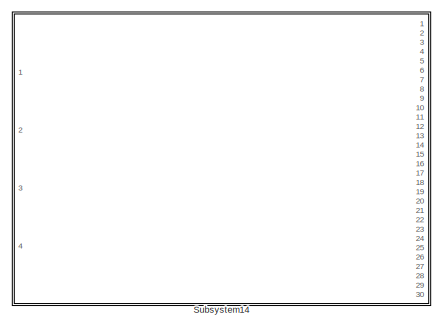
[diagram: root canvas - part 1/9, top left region]
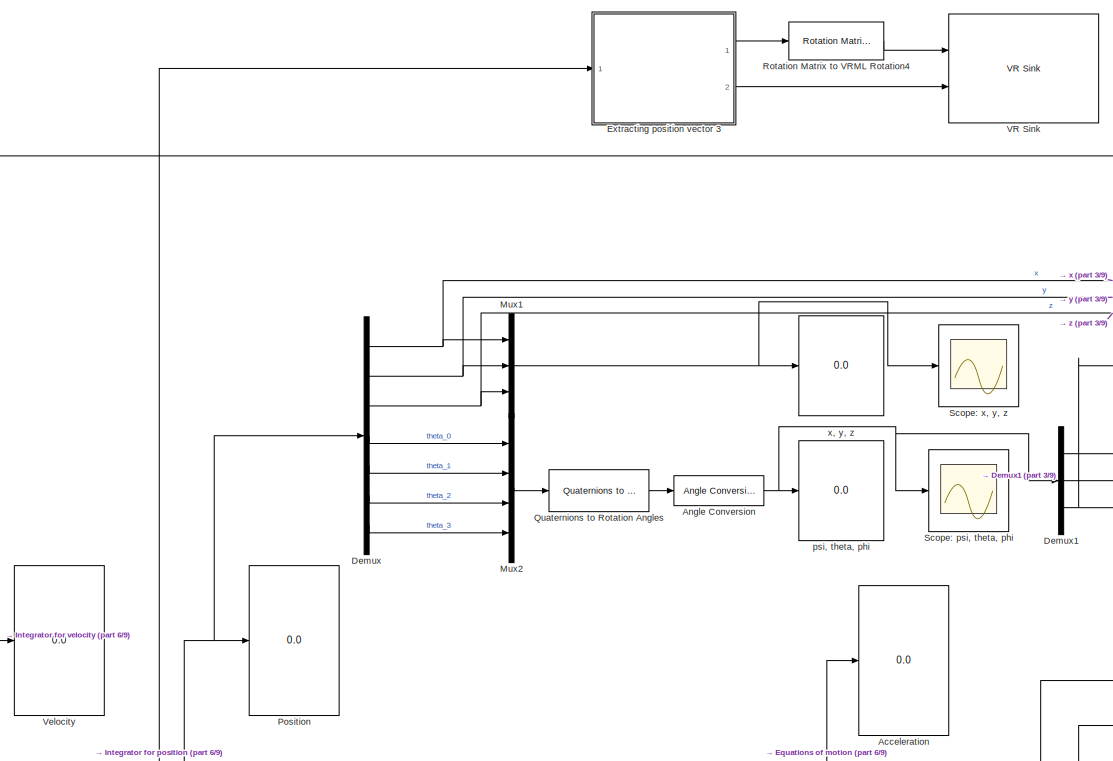
[diagram: root canvas - part 2/9, top center region]
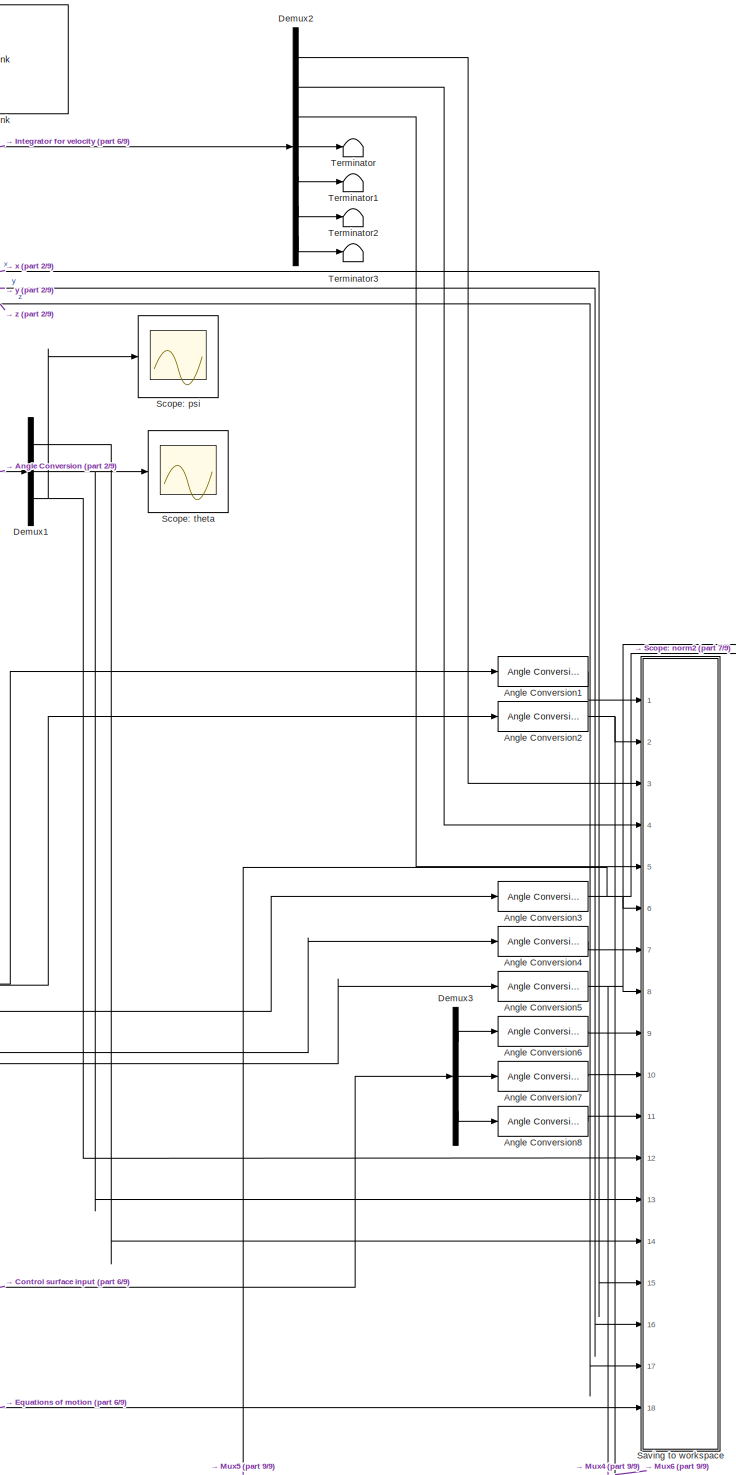
[diagram: root canvas - part 3/9, top right region]
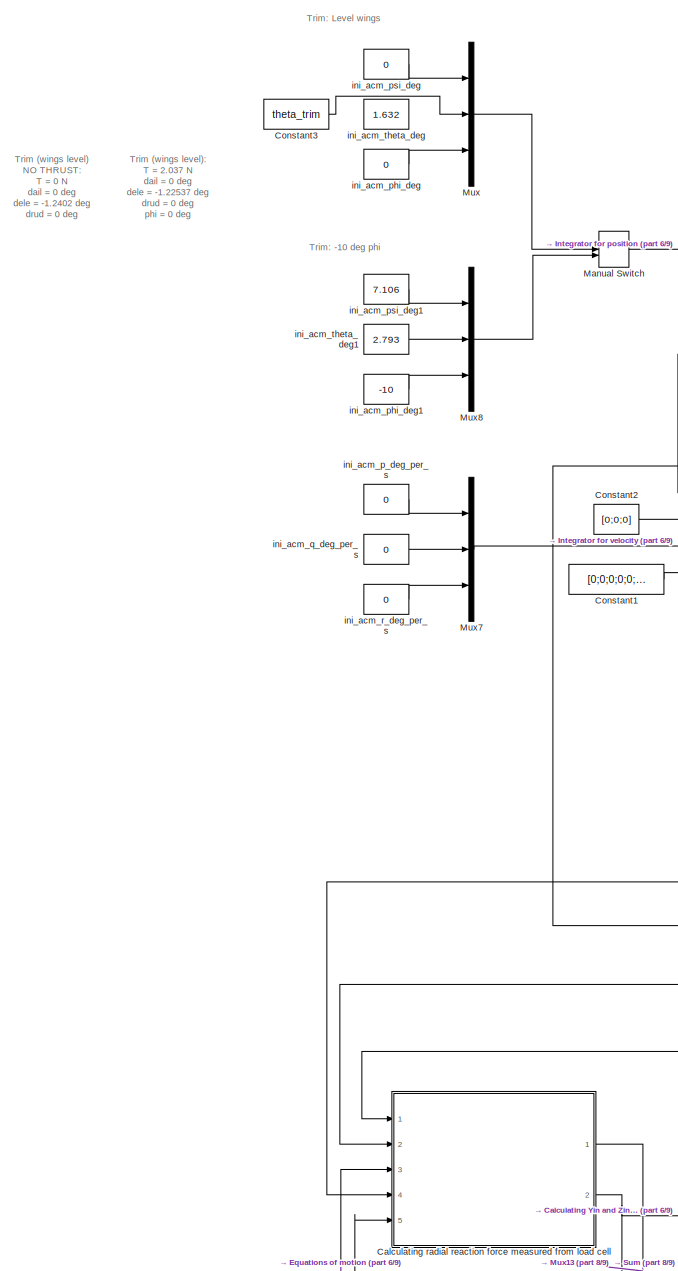
[diagram: root canvas - part 4/9, middle left region]
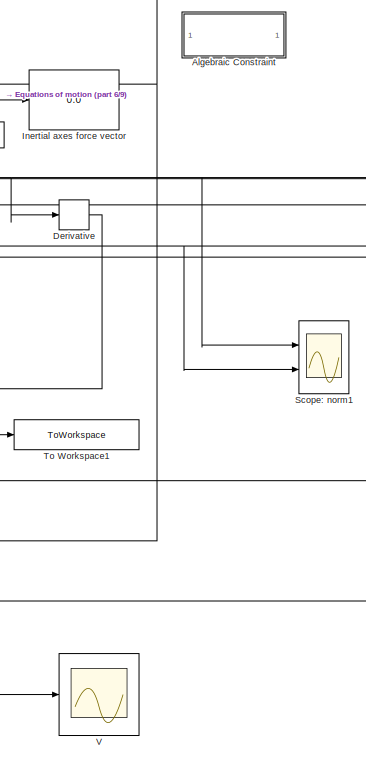
[diagram: root canvas - part 5/9, central region]
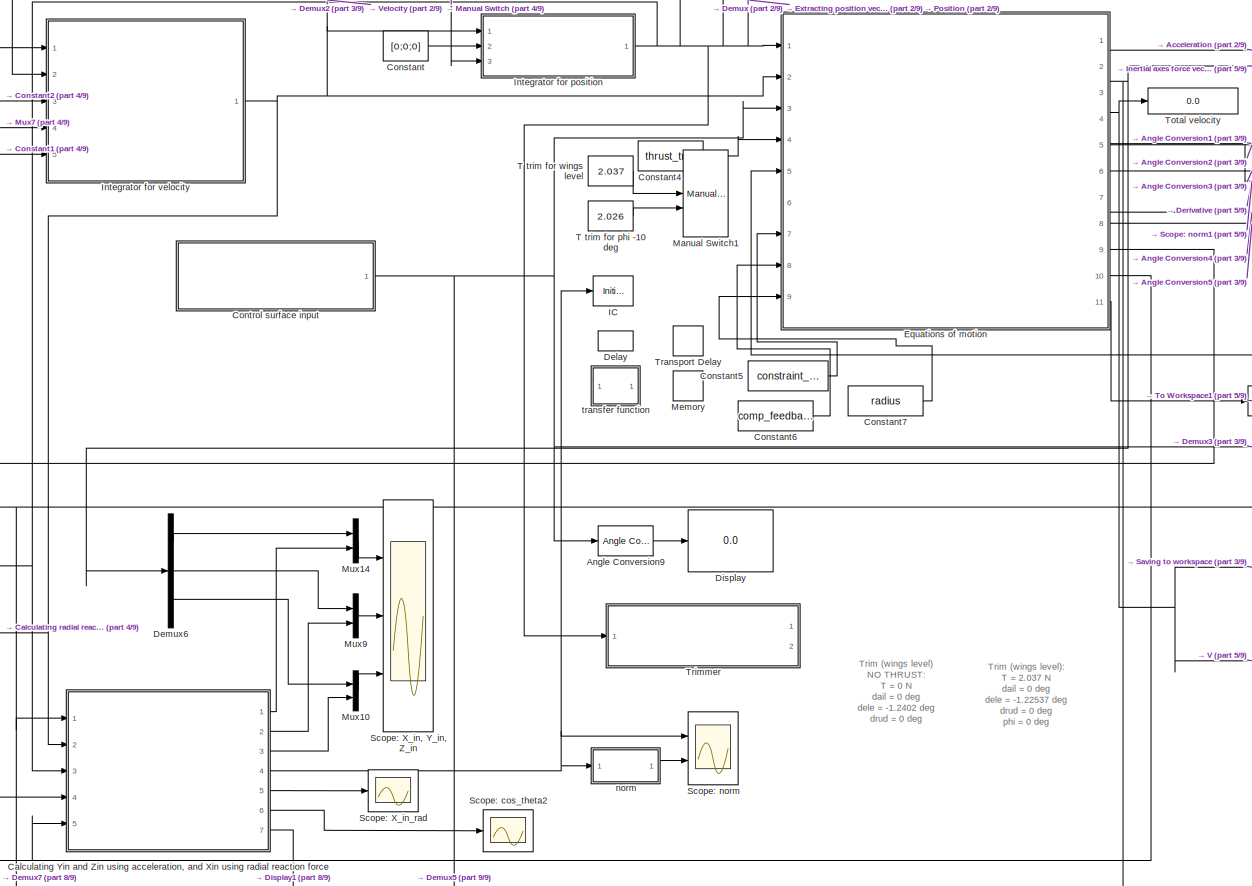
[diagram: root canvas - part 6/9, central region]
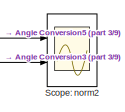
[diagram: root canvas - part 7/9, middle right region]
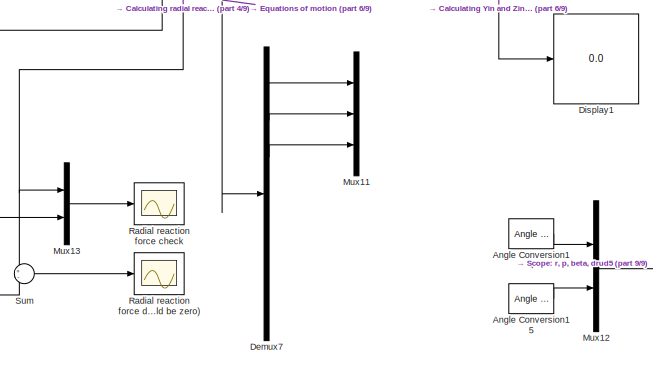
[diagram: root canvas - part 8/9, bottom left region]
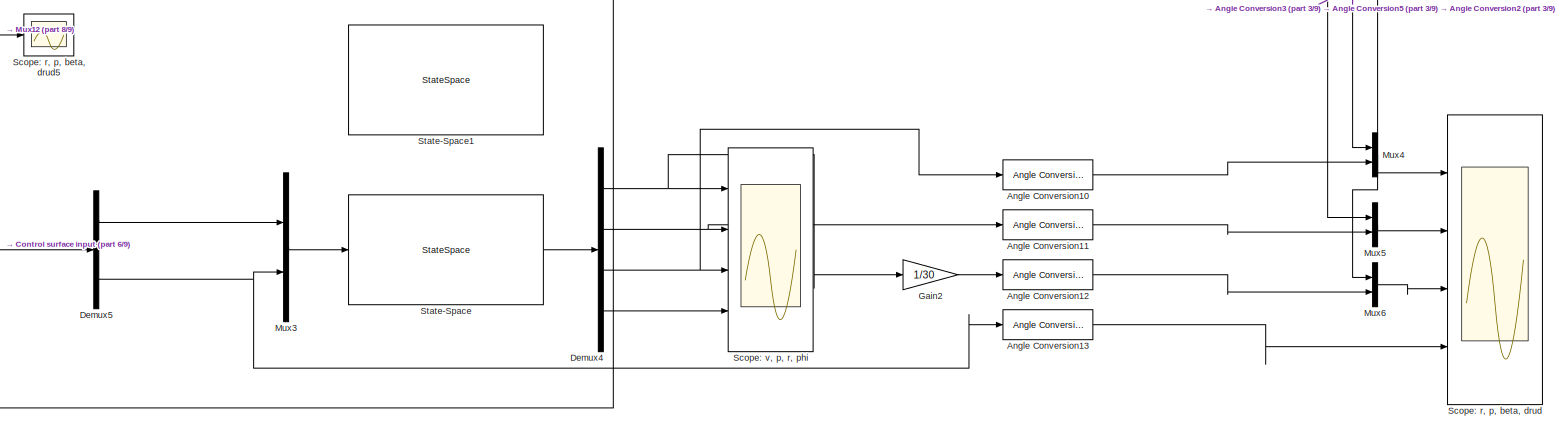
[diagram: root canvas - part 9/9, bottom center region]
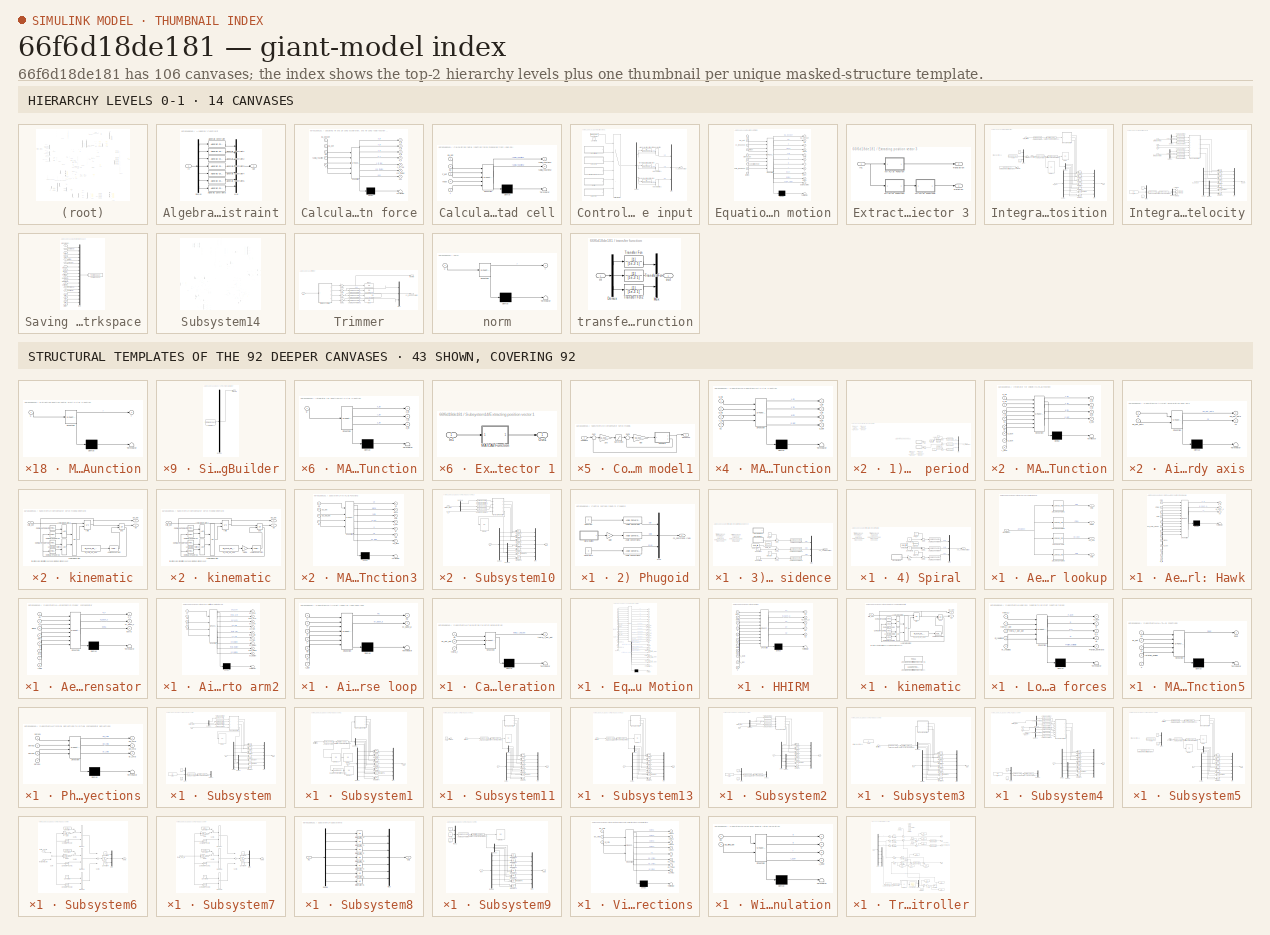
[diagram: thumbnail index - top-2 hierarchy levels (14 canvases) + 43 structural-template representatives of the remaining 92 canvases]
MODEL slx_66f6d18de181
KIND model
CONFIG AbsTol = auto
CONFIG FixedStep = 0.0001
CONFIG InitFcn = % clear\n% clc
CONFIG MaxStep = auto
CONFIG MinStep = auto
CONFIG RelTol = 1e-3
CONFIG SampleTimeConstraint = Unconstrained
CONFIG Solver = ode4
CONFIG SolverMode = Auto
CONFIG SolverName = ode4
CONFIG StartTime = 0.0
CONFIG StopTime = total_time
BLOCK [Display] Acceleration
  Decimation = 1
  Ports = [1]
BLOCK [SubSystem] Algebraic Constraint
  Commented = on
  Ports = [1, 1]
  RequestExecContextInheritance = off
  Variant = off
BLOCK [Reference] Algebraic Constraint/Algebraic Constraint  REF=simulink/Math
Operations/Algebraic Constraint
  Ports = [1, 1]
  SourceBlock = simulink/Math\nOperations/Algebraic Constraint
  SourceType = Algebraic Constraint
BLOCK [Reference] Algebraic Constraint/Algebraic Constraint1  REF=simulink/Math
Operations/Algebraic Constraint
  Ports = [1, 1]
  SourceBlock = simulink/Math\nOperations/Algebraic Constraint
  SourceType = Algebraic Constraint
BLOCK [Reference] Algebraic Constraint/Algebraic Constraint2  REF=simulink/Math
Operations/Algebraic Constraint
  Ports = [1, 1]
  SourceBlock = simulink/Math\nOperations/Algebraic Constraint
  SourceType = Algebraic Constraint
BLOCK [Reference] Algebraic Constraint/Algebraic Constraint3  REF=simulink/Math
Operations/Algebraic Constraint
  Ports = [1, 1]
  SourceBlock = simulink/Math\nOperations/Algebraic Constraint
  SourceType = Algebraic Constraint
BLOCK [Reference] Algebraic Constraint/Algebraic Constraint4  REF=simulink/Math
Operations/Algebraic Constraint
  Ports = [1, 1]
  SourceBlock = simulink/Math\nOperations/Algebraic Constraint
  SourceType = Algebraic Constraint
BLOCK [Reference] Algebraic Constraint/Algebraic Constraint5  REF=simulink/Math
Operations/Algebraic Constraint
  Ports = [1, 1]
  SourceBlock = simulink/Math\nOperations/Algebraic Constraint
  SourceType = Algebraic Constraint
BLOCK [Reference] Algebraic Constraint/Algebraic Constraint6  REF=simulink/Math
Operations/Algebraic Constraint
  Ports = [1, 1]
  SourceBlock = simulink/Math\nOperations/Algebraic Constraint
  SourceType = Algebraic Constraint
BLOCK [Demux] Algebraic Constraint/Demux
  DisplayOption = bar
  Outputs = 7
  Ports = [1, 7]
BLOCK [Inport] Algebraic Constraint/In
  IconDisplay = Port number
BLOCK [Mux] Algebraic Constraint/Mux
  DisplayOption = bar
  Inputs = 7
  Ports = [7, 1]
BLOCK [Outport] Algebraic Constraint/Out
  IconDisplay = Port number
BLOCK [Reference] Angle Conversion  REF=aerolibconvert2/Angle Conversion
  Ports = [1, 1]
  SourceBlock = aerolibconvert2/Angle Conversion
  SourceType = Angle Conversion
BLOCK [Reference] Angle Conversion1  REF=aerolibconvert2/Angle Conversion
  Ports = [1, 1]
  SourceBlock = aerolibconvert2/Angle Conversion
  SourceType = Angle Conversion
BLOCK [Reference] Angle Conversion10  REF=aerolibconvert2/Angle Conversion
  Ports = [1, 1]
  SourceBlock = aerolibconvert2/Angle Conversion
  SourceType = Angle Conversion
BLOCK [Reference] Angle Conversion11  REF=aerolibconvert2/Angle Conversion
  Ports = [1, 1]
  SourceBlock = aerolibconvert2/Angle Conversion
  SourceType = Angle Conversion
BLOCK [Reference] Angle Conversion12  REF=aerolibconvert2/Angle Conversion
  Ports = [1, 1]
  SourceBlock = aerolibconvert2/Angle Conversion
  SourceType = Angle Conversion
BLOCK [Reference] Angle Conversion13  REF=aerolibconvert2/Angle Conversion
  Ports = [1, 1]
  SourceBlock = aerolibconvert2/Angle Conversion
  SourceType = Angle Conversion
BLOCK [Reference] Angle Conversion14  REF=aerolibconvert2/Angle Conversion
  Ports = [1, 1]
  SourceBlock = aerolibconvert2/Angle Conversion
  SourceType = Angle Conversion
BLOCK [Reference] Angle Conversion15  REF=aerolibconvert2/Angle Conversion
  Ports = [1, 1]
  SourceBlock = aerolibconvert2/Angle Conversion
  SourceType = Angle Conversion
BLOCK [Reference] Angle Conversion2  REF=aerolibconvert2/Angle Conversion
  Ports = [1, 1]
  SourceBlock = aerolibconvert2/Angle Conversion
  SourceType = Angle Conversion
BLOCK [Reference] Angle Conversion3  REF=aerolibconvert2/Angle Conversion
  Ports = [1, 1]
  SourceBlock = aerolibconvert2/Angle Conversion
  SourceType = Angle Conversion
BLOCK [Reference] Angle Conversion4  REF=aerolibconvert2/Angle Conversion
  Ports = [1, 1]
  SourceBlock = aerolibconvert2/Angle Conversion
  SourceType = Angle Conversion
BLOCK [Reference] Angle Conversion5  REF=aerolibconvert2/Angle Conversion
  Ports = [1, 1]
  SourceBlock = aerolibconvert2/Angle Conversion
  SourceType = Angle Conversion
BLOCK [Reference] Angle Conversion6  REF=aerolibconvert2/Angle Conversion
  Ports = [1, 1]
  SourceBlock = aerolibconvert2/Angle Conversion
  SourceType = Angle Conversion
BLOCK [Reference] Angle Conversion7  REF=aerolibconvert2/Angle Conversion
  Ports = [1, 1]
  SourceBlock = aerolibconvert2/Angle Conversion
  SourceType = Angle Conversion
BLOCK [Reference] Angle Conversion8  REF=aerolibconvert2/Angle Conversion
  Ports = [1, 1]
  SourceBlock = aerolibconvert2/Angle Conversion
  SourceType = Angle Conversion
BLOCK [Reference] Angle Conversion9  REF=aerolibconvert2/Angle Conversion
  Ports = [1, 1]
  SourceBlock = aerolibconvert2/Angle Conversion
  SourceType = Angle Conversion
BLOCK [SubSystem] Calculating Yin and Zin using acceleration, and Xin using radial reaction force
  ErrorFcn = Stateflow.Translate.translate
  MinAlgLoopOccurrences = on
  PermitHierarchicalResolution = ExplicitOnly
  Ports = [5, 7]
  RequestExecContextInheritance = off
  SFBlockType = MATLAB Function
  TreatAsAtomicUnit = on
  Variant = off
BLOCK [Demux] Calculating Yin and Zin using acceleration, and Xin using radial reaction force/ Demux 
  Outputs = 1
  Ports = [1, 1]
BLOCK [S-Function] Calculating Yin and Zin using acceleration, and Xin using radial reaction force/ SFunction 
  EnableBusSupport = on
  FunctionName = sf_sfun
  PortCounts = [5 8]
  Ports = [5, 8]
  SFunctionDeploymentMode = off
  Tag = Stateflow S-Function constraints_comparison_A_4D_v2 30
BLOCK [Terminator] Calculating Yin and Zin using acceleration, and Xin using radial reaction force/ Terminator 
BLOCK [Outport] Calculating Yin and Zin using acceleration, and Xin using radial reaction force/F_c
  IconDisplay = Port number
  Port = 4
BLOCK [Outport] Calculating Yin and Zin using acceleration, and Xin using radial reaction force/X_in
  IconDisplay = Port number
BLOCK [Outport] Calculating Yin and Zin using acceleration, and Xin using radial reaction force/X_in_rad
  IconDisplay = Port number
  Port = 5
BLOCK [Outport] Calculating Yin and Zin using acceleration, and Xin using radial reaction force/Y_in
  IconDisplay = Port number
  Port = 2
BLOCK [Outport] Calculating Yin and Zin using acceleration, and Xin using radial reaction force/Z_in
  IconDisplay = Port number
  Port = 3
BLOCK [Outport] Calculating Yin and Zin using acceleration, and Xin using radial reaction force/cos_theta2
  IconDisplay = Port number
  Port = 6
BLOCK [Outport] Calculating Yin and Zin using acceleration, and Xin using radial reaction force/pos
  IconDisplay = Port number
  Port = 7
BLOCK [Inport] Calculating Yin and Zin using acceleration, and Xin using radial reaction force/qa
  IconDisplay = Port number
  Port = 3
BLOCK [Inport] Calculating Yin and Zin using acceleration, and Xin using radial reaction force/qa_dot
  IconDisplay = Port number
  Port = 2
BLOCK [Inport] Calculating Yin and Zin using acceleration, and Xin using radial reaction force/qa_dot_dot
  IconDisplay = Port number
BLOCK [Inport] Calculating Yin and Zin using acceleration, and Xin using radial reaction force/r
  IconDisplay = Port number
  Port = 5
BLOCK [Inport] Calculating Yin and Zin using acceleration, and Xin using radial reaction force/radial_reaction
  IconDisplay = Port number
  Port = 4
BLOCK [SubSystem] Calculating radial reaction force measured from load cell
  ErrorFcn = Stateflow.Translate.translate
  MinAlgLoopOccurrences = on
  PermitHierarchicalResolution = ExplicitOnly
  Ports = [5, 2]
  RequestExecContextInheritance = off
  SFBlockType = MATLAB Function
  TreatAsAtomicUnit = on
  Variant = off
BLOCK [Demux] Calculating radial reaction force measured from load cell/ Demux 
  Outputs = 1
  Ports = [1, 1]
BLOCK [S-Function] Calculating radial reaction force measured from load cell/ SFunction 
  EnableBusSupport = on
  FunctionName = sf_sfun
  PortCounts = [5 3]
  Ports = [5, 3]
  SFunctionDeploymentMode = off
  Tag = Stateflow S-Function constraints_comparison_A_4D_v2 31
BLOCK [Terminator] Calculating radial reaction force measured from load cell/ Terminator 
BLOCK [Inport] Calculating radial reaction force measured from load cell/F_ext
  IconDisplay = Port number
  Port = 3
BLOCK [Inport] Calculating radial reaction force measured from load cell/qa
  IconDisplay = Port number
  Port = 2
BLOCK [Inport] Calculating radial reaction force measured from load cell/qa_dot
  IconDisplay = Port number
BLOCK [Inport] Calculating radial reaction force measured from load cell/r
  IconDisplay = Port number
  Port = 5
BLOCK [Outport] Calculating radial reaction force measured from load cell/radial_reaction1
  IconDisplay = Port number
BLOCK [Outport] Calculating radial reaction force measured from load cell/radial_reaction2
  IconDisplay = Port number
  Port = 2
BLOCK [Inport] Calculating radial reaction force measured from load cell/react
  IconDisplay = Port number
  Port = 4
BLOCK [Constant] Constant
  Value = [0;0;0]
BLOCK [Constant] Constant1
  Value = [0;0;0;0;0;0;0]
BLOCK [Constant] Constant2
  Value = [0;0;0]
BLOCK [Constant] Constant3
  Value = theta_trim
BLOCK [Constant] Constant4
  Value = thrust_trim
BLOCK [Constant] Constant5
  Value = constraint_type
BLOCK [Constant] Constant6
  Value = comp_feedback
BLOCK [Constant] Constant7
  Value = radius
BLOCK [SubSystem] Control surface input
  Ports = [0, 1]
  RequestExecContextInheritance = off
  Variant = off
BLOCK [SubSystem] Control surface input/1) Short period
  Ports = [0, 1]
  RequestExecContextInheritance = off
  Variant = off
BLOCK [Reference] Control surface input/1) Short period/Angle Conversion  REF=aerolibconvert2/Angle Conversion
  Ports = [1, 1]
  SourceBlock = aerolibconvert2/Angle Conversion
  SourceType = Angle Conversion
BLOCK [Reference] Control surface input/1) Short period/Angle Conversion1  REF=aerolibconvert2/Angle Conversion
  Ports = [1, 1]
  SourceBlock = aerolibconvert2/Angle Conversion
  SourceType = Angle Conversion
BLOCK [Reference] Control surface input/1) Short period/Angle Conversion2  REF=aerolibconvert2/Angle Conversion
  Ports = [1, 1]
  SourceBlock = aerolibconvert2/Angle Conversion
  SourceType = Angle Conversion
BLOCK [Constant] Control surface input/1) Short period/Constant
  Value = 0
BLOCK [Constant] Control surface input/1) Short period/Constant1
  Value = 0
BLOCK [SubSystem] Control surface input/1) Short period/Doublet
  ClipboardFcn = sigbuilder_block('clipboard');
  CloseFcn = sigbuilder_block('close');
  ContinueFcn = sigbuilder_block('continue');
  CopyFcn = sigbuilder_block('copy');
  DeleteFcn = sigbuilder_block('delete');
  LoadFcn = sigbuilder_block('load');
  MaskHideContents = on
  ModelCloseFcn = sigbuilder_block('modelClose');
  NameChangeFcn = sigbuilder_block('namechange');
  OpenFcn = sigbuilder_block('open',[168.75 4.5 1109.25 600.75 ]);
  PauseFcn = sigbuilder_block('pause');
  Ports = [0, 1]
  PreSaveFcn = sigbuilder_block('preSave');
  RequestExecContextInheritance = off
  StartFcn = sigbuilder_block('start');
  StopFcn = sigbuilder_block('stop');
  Tag = STV Subsys
  Variant = off
BLOCK [Demux] Control surface input/1) Short period/Doublet/Demux
  Outputs = 1
  Ports = [1, 1]
  Tag = STV Demux
BLOCK [FromWorkspace] Control surface input/1) Short period/Doublet/FromWs
  SampleTime = 0
  Tag = STV FromWs
  VariableName = tuvar
  ZeroCross = on
BLOCK [Outport] Control surface input/1) Short period/Doublet/Signal 1
  IconDisplay = Port number
  Tag = STV Outport
BLOCK [Gain] Control surface input/1) Short period/Gain
  Gain = 2
  OutDataTypeStr = Inherit: Inherit via internal rule
  ParamDataTypeStr = Inherit: Inherit via internal rule
  SaturateOnIntegerOverflow = off
BLOCK [Gain] Control surface input/1) Short period/Gain1
  Gain = 2
  OutDataTypeStr = Inherit: Inherit via internal rule
  ParamDataTypeStr = Inherit: Inherit via internal rule
  SaturateOnIntegerOverflow = off
BLOCK [Mux] Control surface input/1) Short period/Mux
  DisplayOption = bar
  Inputs = 3
  Ports = [3, 1]
BLOCK [SubSystem] Control surface input/1) Short period/Signal Builder
  ClipboardFcn = sigbuilder_block('clipboard');
  CloseFcn = sigbuilder_block('close');
  ContinueFcn = sigbuilder_block('continue');
  CopyFcn = sigbuilder_block('copy');
  DeleteFcn = sigbuilder_block('delete');
  LoadFcn = sigbuilder_block('load');
  MaskHideContents = on
  ModelCloseFcn = sigbuilder_block('modelClose');
  NameChangeFcn = sigbuilder_block('namechange');
  OpenFcn = sigbuilder_block('open',[168.75 4.5 1109.25 600.75 ]);
  PauseFcn = sigbuilder_block('pause');
  Ports = [0, 1]
  PreSaveFcn = sigbuilder_block('preSave');
  RequestExecContextInheritance = off
  StartFcn = sigbuilder_block('start');
  StopFcn = sigbuilder_block('stop');
  Tag = STV Subsys
  Variant = off
BLOCK [Demux] Control surface input/1) Short period/Signal Builder/Demux
  Outputs = 1
  Ports = [1, 1]
  Tag = STV Demux
BLOCK [FromWorkspace] Control surface input/1) Short period/Signal Builder/FromWs
  SampleTime = 0
  Tag = STV FromWs
  VariableName = tuvar
  ZeroCross = on
BLOCK [Outport] Control surface input/1) Short period/Signal Builder/Signal 1
  IconDisplay = Port number
  Tag = STV Outport
BLOCK [Sum] Control surface input/1) Short period/Sum3
  IconShape = round
  InputSameDT = off
  Inputs = ++|
  OutDataTypeStr = Inherit: Inherit via internal rule
  Ports = [2, 1]
  SaturateOnIntegerOverflow = off
BLOCK [Sum] Control surface input/1) Short period/Sum4
  IconShape = round
  InputSameDT = off
  Inputs = ++|
  OutDataTypeStr = Inherit: Inherit via internal rule
  Ports = [2, 1]
  SaturateOnIntegerOverflow = off
BLOCK [Sum] Control surface input/1) Short period/Sum5
  IconShape = round
  InputSameDT = off
  Inputs = ++|
  OutDataTypeStr = Inherit: Inherit via internal rule
  Ports = [2, 1]
  SaturateOnIntegerOverflow = off
BLOCK [Outport] Control surface input/1) Short period/cs_command (rad)
  IconDisplay = Port number
BLOCK [Constant] Control surface input/1) Short period/dail_ini
  Value = 0
BLOCK [Constant] Control surface input/1) Short period/dele_ini
  Value = -1.2402
BLOCK [Constant] Control surface input/1) Short period/dele_ini1
  Value = dele_trim
BLOCK [Constant] Control surface input/1) Short period/drud_ini1
  Value = 0.0001
BLOCK [SubSystem] Control surface input/2) Phugoid
  Commented = on
  Ports = [0, 1]
  RequestExecContextInheritance = off
  Variant = off
BLOCK [Reference] Control surface input/2) Phugoid/Angle Conversion  REF=aerolibconvert2/Angle Conversion
  Ports = [1, 1]
  SourceBlock = aerolibconvert2/Angle Conversion
  SourceType = Angle Conversion
BLOCK [Reference] Control surface input/2) Phugoid/Angle Conversion1  REF=aerolibconvert2/Angle Conversion
  Ports = [1, 1]
  SourceBlock = aerolibconvert2/Angle Conversion
  SourceType = Angle Conversion
BLOCK [Reference] Control surface input/2) Phugoid/Angle Conversion2  REF=aerolibconvert2/Angle Conversion
  Ports = [1, 1]
  SourceBlock = aerolibconvert2/Angle Conversion
  SourceType = Angle Conversion
BLOCK [Constant] Control surface input/2) Phugoid/Constant
  Value = 0
BLOCK [Constant] Control surface input/2) Phugoid/Constant1
  Value = 0
BLOCK [Gain] Control surface input/2) Phugoid/Gain
  OutDataTypeStr = Inherit: Inherit via internal rule
  ParamDataTypeStr = Inherit: Inherit via internal rule
  SaturateOnIntegerOverflow = off
BLOCK [Mux] Control surface input/2) Phugoid/Mux
  DisplayOption = bar
  Inputs = 3
  Ports = [3, 1]
BLOCK [SubSystem] Control surface input/2) Phugoid/Signal Builder
  ClipboardFcn = sigbuilder_block('clipboard');
  CloseFcn = sigbuilder_block('close');
  ContinueFcn = sigbuilder_block('continue');
  CopyFcn = sigbuilder_block('copy');
  DeleteFcn = sigbuilder_block('delete');
  LoadFcn = sigbuilder_block('load');
  MaskHideContents = on
  ModelCloseFcn = sigbuilder_block('modelClose');
  NameChangeFcn = sigbuilder_block('namechange');
  OpenFcn = sigbuilder_block('open',[6 42.75 1428 641.25 ]);
  PauseFcn = sigbuilder_block('pause');
  Ports = [0, 1]
  PreSaveFcn = sigbuilder_block('preSave');
  RequestExecContextInheritance = off
  StartFcn = sigbuilder_block('start');
  StopFcn = sigbuilder_block('stop');
  Tag = STV Subsys
  Variant = off
BLOCK [Demux] Control surface input/2) Phugoid/Signal Builder/Demux
  Outputs = 1
  Ports = [1, 1]
  Tag = STV Demux
BLOCK [FromWorkspace] Control surface input/2) Phugoid/Signal Builder/FromWs
  SampleTime = 0
  Tag = STV FromWs
  VariableName = tuvar
  ZeroCross = on
BLOCK [Outport] Control surface input/2) Phugoid/Signal Builder/Signal 1
  IconDisplay = Port number
  Tag = STV Outport
BLOCK [Outport] Control surface input/2) Phugoid/cs_command (rad)
  IconDisplay = Port number
BLOCK [SubSystem] Control surface input/3) Roll subsidence
  Ports = [0, 1]
  RequestExecContextInheritance = off
  Variant = off
BLOCK [Reference] Control surface input/3) Roll subsidence/Angle Conversion  REF=aerolibconvert2/Angle Conversion
  Ports = [1, 1]
  SourceBlock = aerolibconvert2/Angle Conversion
  SourceType = Angle Conversion
BLOCK [Reference] Control surface input/3) Roll subsidence/Angle Conversion1  REF=aerolibconvert2/Angle Conversion
  Ports = [1, 1]
  SourceBlock = aerolibconvert2/Angle Conversion
  SourceType = Angle Conversion
BLOCK [Reference] Control surface input/3) Roll subsidence/Angle Conversion2  REF=aerolibconvert2/Angle Conversion
  Ports = [1, 1]
  SourceBlock = aerolibconvert2/Angle Conversion
  SourceType = Angle Conversion
BLOCK [Constant] Control surface input/3) Roll subsidence/Constant
  Value = 0
BLOCK [Constant] Control surface input/3) Roll subsidence/Constant1
  Value = 0
BLOCK [Mux] Control surface input/3) Roll subsidence/Mux
  DisplayOption = bar
  Inputs = 3
  Ports = [3, 1]
BLOCK [SubSystem] Control surface input/3) Roll subsidence/Signal Builder
  ClipboardFcn = sigbuilder_block('clipboard');
  CloseFcn = sigbuilder_block('close');
  ContinueFcn = sigbuilder_block('continue');
  CopyFcn = sigbuilder_block('copy');
  DeleteFcn = sigbuilder_block('delete');
  LoadFcn = sigbuilder_block('load');
  MaskHideContents = on
  ModelCloseFcn = sigbuilder_block('modelClose');
  NameChangeFcn = sigbuilder_block('namechange');
  OpenFcn = sigbuilder_block('open',[757.5 149.25 620.25 321 ]);
  PauseFcn = sigbuilder_block('pause');
  Ports = [0, 1]
  PreSaveFcn = sigbuilder_block('preSave');
  RequestExecContextInheritance = off
  StartFcn = sigbuilder_block('start');
  StopFcn = sigbuilder_block('stop');
  Tag = STV Subsys
  Variant = off
BLOCK [Demux] Control surface input/3) Roll subsidence/Signal Builder/Demux
  Outputs = 1
  Ports = [1, 1]
  Tag = STV Demux
BLOCK [FromWorkspace] Control surface input/3) Roll subsidence/Signal Builder/FromWs
  SampleTime = 0
  Tag = STV FromWs
  VariableName = tuvar
  ZeroCross = on
BLOCK [Outport] Control surface input/3) Roll subsidence/Signal Builder/Signal 1
  IconDisplay = Port number
  Tag = STV Outport
BLOCK [SubSystem] Control surface input/3) Roll subsidence/Signal Builder1
  ClipboardFcn = sigbuilder_block('clipboard');
  CloseFcn = sigbuilder_block('close');
  ContinueFcn = sigbuilder_block('continue');
  CopyFcn = sigbuilder_block('copy');
  DeleteFcn = sigbuilder_block('delete');
  LoadFcn = sigbuilder_block('load');
  MaskHideContents = on
  ModelCloseFcn = sigbuilder_block('modelClose');
  NameChangeFcn = sigbuilder_block('namechange');
  OpenFcn = sigbuilder_block('open',[813.75 94.5 620.25 533.25 ]);
  PauseFcn = sigbuilder_block('pause');
  Ports = [0, 1]
  PreSaveFcn = sigbuilder_block('preSave');
  RequestExecContextInheritance = off
  StartFcn = sigbuilder_block('start');
  StopFcn = sigbuilder_block('stop');
  Tag = STV Subsys
  Variant = off
BLOCK [Demux] Control surface input/3) Roll subsidence/Signal Builder1/Demux
  Outputs = 1
  Ports = [1, 1]
  Tag = STV Demux
BLOCK [FromWorkspace] Control surface input/3) Roll subsidence/Signal Builder1/FromWs
  SampleTime = 0
  Tag = STV FromWs
  VariableName = tuvar
  ZeroCross = on
BLOCK [Outport] Control surface input/3) Roll subsidence/Signal Builder1/Signal 1
  IconDisplay = Port number
  Tag = STV Outport
BLOCK [Sum] Control surface input/3) Roll subsidence/Sum
  IconShape = round
  InputSameDT = off
  Inputs = ++|
  OutDataTypeStr = Inherit: Inherit via internal rule
  Ports = [2, 1]
  SaturateOnIntegerOverflow = off
BLOCK [Sum] Control surface input/3) Roll subsidence/Sum1
  IconShape = round
  InputSameDT = off
  Inputs = ++|
  OutDataTypeStr = Inherit: Inherit via internal rule
  Ports = [2, 1]
  SaturateOnIntegerOverflow = off
BLOCK [Sum] Control surface input/3) Roll subsidence/Sum2
  IconShape = round
  InputSameDT = off
  Inputs = ++|
  OutDataTypeStr = Inherit: Inherit via internal rule
  Ports = [2, 1]
  SaturateOnIntegerOverflow = off
BLOCK [Outport] Control surface input/3) Roll subsidence/cs_command (rad)
  IconDisplay = Port number
BLOCK [Constant] Control surface input/3) Roll subsidence/dail_ini
  Value = 0
BLOCK [Constant] Control surface input/3) Roll subsidence/dele_ini
  Value = -1.2402
BLOCK [Constant] Control surface input/3) Roll subsidence/dele_ini1
  Value = dele_trim
BLOCK [Constant] Control surface input/3) Roll subsidence/drud_ini
  Value = 0
BLOCK [SubSystem] Control surface input/4) Spiral
  Ports = [0, 1]
  RequestExecContextInheritance = off
  Variant = off
BLOCK [Reference] Control surface input/4) Spiral/Angle Conversion3  REF=aerolibconvert2/Angle Conversion
  Ports = [1, 1]
  SourceBlock = aerolibconvert2/Angle Conversion
  SourceType = Angle Conversion
BLOCK [Reference] Control surface input/4) Spiral/Angle Conversion4  REF=aerolibconvert2/Angle Conversion
  Ports = [1, 1]
  SourceBlock = aerolibconvert2/Angle Conversion
  SourceType = Angle Conversion
BLOCK [Reference] Control surface input/4) Spiral/Angle Conversion5  REF=aerolibconvert2/Angle Conversion
  Ports = [1, 1]
  SourceBlock = aerolibconvert2/Angle Conversion
  SourceType = Angle Conversion
BLOCK [Constant] Control surface input/4) Spiral/Constant2
  Value = 0
BLOCK [Constant] Control surface input/4) Spiral/Constant3
  Value = 0
BLOCK [Gain] Control surface input/4) Spiral/Gain
  OutDataTypeStr = Inherit: Inherit via internal rule
  ParamDataTypeStr = Inherit: Inherit via internal rule
  SaturateOnIntegerOverflow = off
BLOCK [Mux] Control surface input/4) Spiral/Mux
  DisplayOption = bar
  Inputs = 3
  Ports = [3, 1]
BLOCK [SubSystem] Control surface input/4) Spiral/Signal Builder1
  ClipboardFcn = sigbuilder_block('clipboard');
  CloseFcn = sigbuilder_block('close');
  ContinueFcn = sigbuilder_block('continue');
  CopyFcn = sigbuilder_block('copy');
  DeleteFcn = sigbuilder_block('delete');
  LoadFcn = sigbuilder_block('load');
  MaskHideContents = on
  ModelCloseFcn = sigbuilder_block('modelClose');
  NameChangeFcn = sigbuilder_block('namechange');
  OpenFcn = sigbuilder_block('open',[1438.5 35.25 1428 681.75 ]);
  PauseFcn = sigbuilder_block('pause');
  Ports = [0, 1]
  PreSaveFcn = sigbuilder_block('preSave');
  RequestExecContextInheritance = off
  StartFcn = sigbuilder_block('start');
  StopFcn = sigbuilder_block('stop');
  Tag = STV Subsys
  Variant = off
BLOCK [Demux] Control surface input/4) Spiral/Signal Builder1/Demux
  Outputs = 1
  Ports = [1, 1]
  Tag = STV Demux
BLOCK [FromWorkspace] Control surface input/4) Spiral/Signal Builder1/FromWs
  SampleTime = 0
  Tag = STV FromWs
  VariableName = tuvar
  ZeroCross = on
BLOCK [Outport] Control surface input/4) Spiral/Signal Builder1/Signal 1
  IconDisplay = Port number
  Tag = STV Outport
BLOCK [Sum] Control surface input/4) Spiral/Sum
  IconShape = round
  InputSameDT = off
  Inputs = ++|
  OutDataTypeStr = Inherit: Inherit via internal rule
  Ports = [2, 1]
  SaturateOnIntegerOverflow = off
BLOCK [Sum] Control surface input/4) Spiral/Sum1
  IconShape = round
  InputSameDT = off
  Inputs = ++|
  OutDataTypeStr = Inherit: Inherit via internal rule
  Ports = [2, 1]
  SaturateOnIntegerOverflow = off
BLOCK [Sum] Control surface input/4) Spiral/Sum2
  IconShape = round
  InputSameDT = off
  Inputs = ++|
  OutDataTypeStr = Inherit: Inherit via internal rule
  Ports = [2, 1]
  SaturateOnIntegerOverflow = off
BLOCK [Outport] Control surface input/4) Spiral/cs_command (rad)
  IconDisplay = Port number
BLOCK [Constant] Control surface input/4) Spiral/dail_ini
  Value = 0
BLOCK [Constant] Control surface input/4) Spiral/dele_ini
  Value = -1.22537
BLOCK [Constant] Control surface input/4) Spiral/dele_ini1
  Value = dele_trim
BLOCK [Constant] Control surface input/4) Spiral/drud_ini
  Value = 0
BLOCK [SubSystem] Control surface input/5) Dutch roll
  Ports = [0, 1]
  RequestExecContextInheritance = off
  Variant = off
BLOCK [Reference] Control surface input/5) Dutch roll/Angle Conversion  REF=aerolibconvert2/Angle Conversion
  Ports = [1, 1]
  SourceBlock = aerolibconvert2/Angle Conversion
  SourceType = Angle Conversion
BLOCK [Reference] Control surface input/5) Dutch roll/Angle Conversion1  REF=aerolibconvert2/Angle Conversion
  Ports = [1, 1]
  SourceBlock = aerolibconvert2/Angle Conversion
  SourceType = Angle Conversion
BLOCK [Reference] Control surface input/5) Dutch roll/Angle Conversion2  REF=aerolibconvert2/Angle Conversion
  Ports = [1, 1]
  SourceBlock = aerolibconvert2/Angle Conversion
  SourceType = Angle Conversion
BLOCK [Constant] Control surface input/5) Dutch roll/Constant
  Value = 0
BLOCK [Constant] Control surface input/5) Dutch roll/Constant2
  Value = 0
BLOCK [Gain] Control surface input/5) Dutch roll/Gain
  Commented = on
  Gain = 0.5
  OutDataTypeStr = Inherit: Inherit via internal rule
  ParamDataTypeStr = Inherit: Inherit via internal rule
  SaturateOnIntegerOverflow = off
BLOCK [Gain] Control surface input/5) Dutch roll/Gain1
  OutDataTypeStr = Inherit: Inherit via internal rule
  ParamDataTypeStr = Inherit: Inherit via internal rule
  SaturateOnIntegerOverflow = off
BLOCK [Mux] Control surface input/5) Dutch roll/Mux
  DisplayOption = bar
  Inputs = 3
  Ports = [3, 1]
BLOCK [SubSystem] Control surface input/5) Dutch roll/Signal Builder
  ClipboardFcn = sigbuilder_block('clipboard');
  CloseFcn = sigbuilder_block('close');
  Commented = on
  ContinueFcn = sigbuilder_block('continue');
  CopyFcn = sigbuilder_block('copy');
  DeleteFcn = sigbuilder_block('delete');
  LoadFcn = sigbuilder_block('load');
  MaskHideContents = on
  ModelCloseFcn = sigbuilder_block('modelClose');
  NameChangeFcn = sigbuilder_block('namechange');
  OpenFcn = sigbuilder_block('open',[648.75 96.75 712.5 561.75 ]);
  PauseFcn = sigbuilder_block('pause');
  Ports = [0, 1]
  PreSaveFcn = sigbuilder_block('preSave');
  RequestExecContextInheritance = off
  StartFcn = sigbuilder_block('start');
  StopFcn = sigbuilder_block('stop');
  Tag = STV Subsys
  Variant = off
BLOCK [Demux] Control surface input/5) Dutch roll/Signal Builder/Demux
  Outputs = 1
  Ports = [1, 1]
  Tag = STV Demux
BLOCK [FromWorkspace] Control surface input/5) Dutch roll/Signal Builder/FromWs
  SampleTime = 0
  Tag = STV FromWs
  VariableName = tuvar
  ZeroCross = on
BLOCK [Outport] Control surface input/5) Dutch roll/Signal Builder/Signal 1
  IconDisplay = Port number
  Tag = STV Outport
BLOCK [SubSystem] Control surface input/5) Dutch roll/Signal Builder1
  ClipboardFcn = sigbuilder_block('clipboard');
  CloseFcn = sigbuilder_block('close');
  ContinueFcn = sigbuilder_block('continue');
  CopyFcn = sigbuilder_block('copy');
  DeleteFcn = sigbuilder_block('delete');
  LoadFcn = sigbuilder_block('load');
  MaskHideContents = on
  ModelCloseFcn = sigbuilder_block('modelClose');
  NameChangeFcn = sigbuilder_block('namechange');
  OpenFcn = sigbuilder_block('open',[715.5 30.75 718.5 675 ]);
  PauseFcn = sigbuilder_block('pause');
  Ports = [0, 1]
  PreSaveFcn = sigbuilder_block('preSave');
  RequestExecContextInheritance = off
  StartFcn = sigbuilder_block('start');
  StopFcn = sigbuilder_block('stop');
  Tag = STV Subsys
  Variant = off
BLOCK [Demux] Control surface input/5) Dutch roll/Signal Builder1/Demux
  Outputs = 1
  Ports = [1, 1]
  Tag = STV Demux
BLOCK [FromWorkspace] Control surface input/5) Dutch roll/Signal Builder1/FromWs
  SampleTime = 0
  Tag = STV FromWs
  VariableName = tuvar
  ZeroCross = on
BLOCK [Outport] Control surface input/5) Dutch roll/Signal Builder1/Signal 1
  IconDisplay = Port number
  Tag = STV Outport
BLOCK [Sum] Control surface input/5) Dutch roll/Sum
  IconShape = round
  InputSameDT = off
  Inputs = ++|
  OutDataTypeStr = Inherit: Inherit via internal rule
  Ports = [2, 1]
  SaturateOnIntegerOverflow = off
BLOCK [Sum] Control surface input/5) Dutch roll/Sum1
  IconShape = round
  InputSameDT = off
  Inputs = ++|
  OutDataTypeStr = Inherit: Inherit via internal rule
  Ports = [2, 1]
  SaturateOnIntegerOverflow = off
BLOCK [Sum] Control surface input/5) Dutch roll/Sum2
  IconShape = round
  InputSameDT = off
  Inputs = ++|
  OutDataTypeStr = Inherit: Inherit via internal rule
  Ports = [2, 1]
  SaturateOnIntegerOverflow = off
BLOCK [Outport] Control surface input/5) Dutch roll/cs_command (rad)
  IconDisplay = Port number
BLOCK [Constant] Control surface input/5) Dutch roll/dail_ini
  Value = 0
BLOCK [Constant] Control surface input/5) Dutch roll/dele_ini
  Value = -1.2402
BLOCK [Constant] Control surface input/5) Dutch roll/dele_ini1
  Value = dele_trim
BLOCK [Constant] Control surface input/5) Dutch roll/drud_ini
  Value = 0.000000001
BLOCK [TransferFcn] Control surface input/Aileron servo transfer function
  Denominator = [0.0025 0.08 1]
BLOCK [Constant] Control surface input/Constant1
  Value = input_type
BLOCK [Constant] Control surface input/Constant5
  Value = 5
BLOCK [Demux] Control surface input/Demux
  DisplayOption = bar
  Outputs = 3
  Ports = [1, 3]
BLOCK [TransferFcn] Control surface input/Elevator servo transfer function
  Denominator = [0.0025 0.08 1]
BLOCK [ManualSwitch] Control surface input/Manual Switch
  CurrentSetting = 0
BLOCK [ManualSwitch] Control surface input/Manual Switch1
  CurrentSetting = 0
BLOCK [ManualSwitch] Control surface input/Manual Switch2
  CurrentSetting = 0
BLOCK [MultiPortSwitch] Control surface input/Multiport Switch
  InputSameDT = off
  Inputs = 5
  Ports = [6, 1]
  SaturateOnIntegerOverflow = off
BLOCK [Mux] Control surface input/Mux
  DisplayOption = bar
  Inputs = 3
  Ports = [3, 1]
BLOCK [TransferFcn] Control surface input/Rudder servo transfer function
  Denominator = [0.0025 0.08 1]
BLOCK [Outport] Control surface input/cs_response (rad)
  IconDisplay = Port number
BLOCK [Delay] Delay
  DelayLength = 1
  InitialCondition = 0
  InputPortMap = u0
  Ports = [1, 1]
BLOCK [Demux] Demux
  DisplayOption = bar
  Outputs = 7
  Ports = [1, 7]
BLOCK [Demux] Demux1
  DisplayOption = bar
  Outputs = 3
  Ports = [1, 3]
BLOCK [Demux] Demux2
  DisplayOption = bar
  Outputs = 7
  Ports = [1, 7]
BLOCK [Demux] Demux3
  DisplayOption = bar
  Outputs = 3
  Ports = [1, 3]
BLOCK [Demux] Demux4
  DisplayOption = bar
  Ports = [1, 4]
BLOCK [Demux] Demux5
  DisplayOption = bar
  Outputs = 3
  Ports = [1, 3]
BLOCK [Demux] Demux6
  DisplayOption = bar
  Outputs = 3
  Ports = [1, 3]
BLOCK [Demux] Demux7
  DisplayOption = bar
  Outputs = 7
  Ports = [1, 7]
BLOCK [Derivative] Derivative
BLOCK [Display] Display
  Decimation = 1
  Ports = [1]
BLOCK [Display] Display1
  Decimation = 1
  Ports = [1]
BLOCK [SubSystem] Equations of motion
  ErrorFcn = Stateflow.Translate.translate
  MinAlgLoopOccurrences = on
  PermitHierarchicalResolution = ExplicitOnly
  Ports = [9, 11]
  RequestExecContextInheritance = off
  SFBlockType = MATLAB Function
  TreatAsAtomicUnit = on
  Variant = off
BLOCK [Demux] Equations of motion/ Demux 
  Outputs = 1
  Ports = [1, 1]
BLOCK [S-Function] Equations of motion/ SFunction 
  EnableBusSupport = on
  FunctionName = sf_sfun
  PortCounts = [9 12]
  Ports = [9, 12]
  SFunctionDeploymentMode = off
  Tag = Stateflow S-Function constraints_comparison_A_4D_v2 12
BLOCK [Terminator] Equations of motion/ Terminator 
BLOCK [Inport] Equations of motion/F_c
  IconDisplay = Port number
  Port = 6
BLOCK [Outport] Equations of motion/Fa
  IconDisplay = Port number
  Port = 2
BLOCK [Outport] Equations of motion/V
  IconDisplay = Port number
  Port = 3
BLOCK [Outport] Equations of motion/alpha
  IconDisplay = Port number
  Port = 4
BLOCK [Inport] Equations of motion/alpha_dot
  IconDisplay = Port number
  Port = 5
BLOCK [Outport] Equations of motion/beta
  IconDisplay = Port number
  Port = 5
BLOCK [Inport] Equations of motion/comp_feedback
  IconDisplay = Port number
  Port = 8
BLOCK [Inport] Equations of motion/constraint_type
  IconDisplay = Port number
  Port = 7
BLOCK [Inport] Equations of motion/cs_response
  IconDisplay = Port number
  Port = 3
BLOCK [Outport] Equations of motion/p
  IconDisplay = Port number
  Port = 6
BLOCK [Outport] Equations of motion/param_states
  IconDisplay = Port number
  Port = 11
BLOCK [Outport] Equations of motion/q
  IconDisplay = Port number
  Port = 7
BLOCK [Inport] Equations of motion/qa
  IconDisplay = Port number
BLOCK [Inport] Equations of motion/qa_dot
  IconDisplay = Port number
  Port = 2
BLOCK [Outport] Equations of motion/qa_dot_dot
  IconDisplay = Port number
BLOCK [Outport] Equations of motion/r
  IconDisplay = Port number
  Port = 8
BLOCK [Outport] Equations of motion/radius
  IconDisplay = Port number
  Port = 10
BLOCK [Inport] Equations of motion/radius 
  IconDisplay = Port number
  Port = 9
BLOCK [Outport] Equations of motion/react
  IconDisplay = Port number
  Port = 9
BLOCK [Inport] Equations of motion/thrust
  IconDisplay = Port number
  Port = 4
BLOCK [SubSystem] Extracting position vector 3
  Ports = [1, 2]
  RequestExecContextInheritance = off
  Variant = off
BLOCK [Inport] Extracting position vector 3/In1
  IconDisplay = Port number
BLOCK [SubSystem] Extracting position vector 3/MATLAB Function
  ErrorFcn = Stateflow.Translate.translate
  PermitHierarchicalResolution = ExplicitOnly
  Ports = [1, 1]
  RequestExecContextInheritance = off
  SFBlockType = MATLAB Function
  TreatAsAtomicUnit = on
  Variant = off
BLOCK [Demux] Extracting position vector 3/MATLAB Function/ Demux 
  Outputs = 1
  Ports = [1, 1]
BLOCK [S-Function] Extracting position vector 3/MATLAB Function/ SFunction 
  EnableBusSupport = on
  FunctionName = sf_sfun
  PortCounts = [1 2]
  Ports = [1, 2]
  SFunctionDeploymentMode = off
  Tag = Stateflow S-Function constraints_comparison_A_4D_v2 26
BLOCK [Terminator] Extracting position vector 3/MATLAB Function/ Terminator 
BLOCK [Inport] Extracting position vector 3/MATLAB Function/u
  IconDisplay = Port number
BLOCK [Outport] Extracting position vector 3/MATLAB Function/y
  IconDisplay = Port number
BLOCK [SubSystem] Extracting position vector 3/MATLAB Function1
  ErrorFcn = Stateflow.Translate.translate
  PermitHierarchicalResolution = ExplicitOnly
  Ports = [1, 1]
  RequestExecContextInheritance = off
  SFBlockType = MATLAB Function
  TreatAsAtomicUnit = on
  Variant = off
BLOCK [Demux] Extracting position vector 3/MATLAB Function1/ Demux 
  Outputs = 1
  Ports = [1, 1]
BLOCK [S-Function] Extracting position vector 3/MATLAB Function1/ SFunction 
  EnableBusSupport = on
  FunctionName = sf_sfun
  PortCounts = [1 2]
  Ports = [1, 2]
  SFunctionDeploymentMode = off
  Tag = Stateflow S-Function constraints_comparison_A_4D_v2 28
BLOCK [Terminator] Extracting position vector 3/MATLAB Function1/ Terminator 
BLOCK [Outport] Extracting position vector 3/MATLAB Function1/Aa
  IconDisplay = Port number
BLOCK [Inport] Extracting position vector 3/MATLAB Function1/qa
  IconDisplay = Port number
BLOCK [SubSystem] Extracting position vector 3/MATLAB Function6
  ErrorFcn = Stateflow.Translate.translate
  PermitHierarchicalResolution = ExplicitOnly
  Ports = [1, 1]
  RequestExecContextInheritance = off
  SFBlockType = MATLAB Function
  TreatAsAtomicUnit = on
  Variant = off
BLOCK [Demux] Extracting position vector 3/MATLAB Function6/ Demux 
  Outputs = 1
  Ports = [1, 1]
BLOCK [S-Function] Extracting position vector 3/MATLAB Function6/ SFunction 
  EnableBusSupport = on
  FunctionName = sf_sfun
  PortCounts = [1 2]
  Ports = [1, 2]
  SFunctionDeploymentMode = off
  Tag = Stateflow S-Function constraints_comparison_A_4D_v2 27
BLOCK [Terminator] Extracting position vector 3/MATLAB Function6/ Terminator 
BLOCK [Inport] Extracting position vector 3/MATLAB Function6/A3
  IconDisplay = Port number
BLOCK [Outport] Extracting position vector 3/MATLAB Function6/A33
  IconDisplay = Port number
BLOCK [Outport] Extracting position vector 3/Rotation
  IconDisplay = Port number
BLOCK [Outport] Extracting position vector 3/Translation
  IconDisplay = Port number
  Port = 2
BLOCK [Gain] Gain2
  Gain = 1/30
  OutDataTypeStr = Inherit: Inherit via internal rule
  ParamDataTypeStr = Inherit: Inherit via internal rule
  SaturateOnIntegerOverflow = off
BLOCK [InitialCondition] IC
  Value = 0
BLOCK [Display] Inertial axes force vector
  Decimation = 1
  Ports = [1]
BLOCK [SubSystem] Integrator for position
  MinAlgLoopOccurrences = on
  Ports = [3, 1]
  RequestExecContextInheritance = off
  TreatAsAtomicUnit = on
  Variant = off
BLOCK [Reference] Integrator for position/Angle Conversion  REF=aerolibconvert2/Angle Conversion
  Ports = [1, 1]
  SourceBlock = aerolibconvert2/Angle Conversion
  SourceType = Angle Conversion
BLOCK [Reference] Integrator for position/Angle Conversion1  REF=aerolibconvert2/Angle Conversion
  Ports = [1, 1]
  SourceBlock = aerolibconvert2/Angle Conversion
  SourceType = Angle Conversion
BLOCK [Demux] Integrator for position/Demux
  DisplayOption = bar
  Outputs = 7
  Ports = [1, 7]
BLOCK [Demux] Integrator for position/Demux1
  DisplayOption = bar
  Ports = [1, 4]
BLOCK [Display] Integrator for position/Display
  Decimation = 1
  Ports = [1]
BLOCK [Display] Integrator for position/Display1
  Decimation = 1
  Ports = [1]
BLOCK [Integrator] Integrator for position/Integrator70
  InitialCondition = 0.8
  InitialConditionSource = external
  Ports = [2, 1]
BLOCK [Integrator] Integrator for position/Integrator71
  InitialConditionSource = external
  Ports = [2, 1]
BLOCK [Integrator] Integrator for position/Integrator72
  InitialConditionSource = external
  Ports = [2, 1]
BLOCK [Integrator] Integrator for position/Integrator73
  InitialCondition = 1
  InitialConditionSource = external
  Ports = [2, 1]
BLOCK [Integrator] Integrator for position/Integrator74
  InitialConditionSource = external
  Ports = [2, 1]
BLOCK [Integrator] Integrator for position/Integrator75
  InitialConditionSource = external
  Ports = [2, 1]
BLOCK [Integrator] Integrator for position/Integrator76
  InitialConditionSource = external
  Ports = [2, 1]
BLOCK [SubSystem] Integrator for position/MATLAB Function
  ErrorFcn = Stateflow.Translate.translate
  PermitHierarchicalResolution = ExplicitOnly
  Ports = [1, 3]
  RequestExecContextInheritance = off
  SFBlockType = MATLAB Function
  Variant = off
BLOCK [Demux] Integrator for position/MATLAB Function/ Demux 
  Outputs = 1
  Ports = [1, 1]
BLOCK [S-Function] Integrator for position/MATLAB Function/ SFunction 
  EnableBusSupport = on
  FunctionName = sf_sfun
  PortCounts = [1 4]
  Ports = [1, 4]
  SFunctionDeploymentMode = off
  Tag = Stateflow S-Function constraints_comparison_A_4D_v2 25
BLOCK [Terminator] Integrator for position/MATLAB Function/ Terminator 
BLOCK [Inport] Integrator for position/MATLAB Function/q
  IconDisplay = Port number
BLOCK [Outport] Integrator for position/MATLAB Function/x_ini
  IconDisplay = Port number
BLOCK [Outport] Integrator for position/MATLAB Function/y_ini
  IconDisplay = Port number
  Port = 2
BLOCK [Outport] Integrator for position/MATLAB Function/z_ini
  IconDisplay = Port number
  Port = 3
BLOCK [Mux] Integrator for position/Mux
  DisplayOption = bar
  Inputs = 7
  Ports = [7, 1]
BLOCK [Mux] Integrator for position/Mux2
  Commented = on
  DisplayOption = bar
  Inputs = 3
  Ports = [3, 1]
BLOCK [Constant] Integrator for position/Nanjing aero model trim alpha (deg)
  Commented = on
  Value = 5.1293037176162
BLOCK [Constant] Integrator for position/Phi
  Commented = on
  Value = 0
BLOCK [Constant] Integrator for position/Psi
  Commented = on
  Value = 0
BLOCK [Reference] Integrator for position/Rotation Angles to Quaternions  REF=aerolibtransform2/Rotation Angles to Quaternions
  AttributesFormatString = Rotation Order: %<rotationOrder>
  Ports = [1, 1]
  SourceBlock = aerolibtransform2/Rotation Angles to Quaternions
  SourceType = Ang2Quat
BLOCK [Reference] Integrator for position/Rotation Angles to Quaternions1  REF=aerolibtransform2/Rotation Angles to Quaternions
  AttributesFormatString = Rotation Order: %<rotationOrder>
  Ports = [1, 1]
  SourceBlock = aerolibtransform2/Rotation Angles to Quaternions
  SourceType = Ang2Quat
BLOCK [Terminator] Integrator for position/Terminator
  Commented = on
BLOCK [Terminator] Integrator for position/Terminator1
  Commented = on
BLOCK [Constant] Integrator for position/Theta
  Commented = on
  Value = 2.9881840554008
BLOCK [Inport] Integrator for position/ini_acm_attitude
  IconDisplay = Port number
  Port = 3
BLOCK [Inport] Integrator for position/ini_rig_attitude
  IconDisplay = Port number
  Port = 2
BLOCK [Outport] Integrator for position/qa
  IconDisplay = Port number
BLOCK [Inport] Integrator for position/qa_dot
  IconDisplay = Port number
BLOCK [SubSystem] Integrator for velocity
  MinAlgLoopOccurrences = on
  Ports = [5, 1]
  RequestExecContextInheritance = off
  TreatAsAtomicUnit = on
  Variant = off
BLOCK [Reference] Integrator for velocity/Angle Conversion  REF=aerolibconvert2/Angle Conversion
  Commented = on
  Ports = [1, 1]
  SourceBlock = aerolibconvert2/Angle Conversion
  SourceType = Angle Conversion
BLOCK [Reference] Integrator for velocity/Angle Conversion1  REF=aerolibconvert2/Angle Conversion
  Ports = [1, 1]
  SourceBlock = aerolibconvert2/Angle Conversion
  SourceType = Angle Conversion
BLOCK [Reference] Integrator for velocity/Angle Conversion2  REF=aerolibconvert2/Angle Conversion
  Ports = [1, 1]
  SourceBlock = aerolibconvert2/Angle Conversion
  SourceType = Angle Conversion
BLOCK [Reference] Integrator for velocity/Angle Conversion3  REF=aerolibconvert2/Angle Conversion
  Ports = [1, 1]
  SourceBlock = aerolibconvert2/Angle Conversion
  SourceType = Angle Conversion
BLOCK [Reference] Integrator for velocity/Angle Conversion4  REF=aerolibconvert2/Angle Conversion
  Ports = [1, 1]
  SourceBlock = aerolibconvert2/Angle Conversion
  SourceType = Angle Conversion
BLOCK [Reference] Integrator for velocity/Angle Conversion5  REF=aerolibconvert2/Angle Conversion
  Ports = [1, 1]
  SourceBlock = aerolibconvert2/Angle Conversion
  SourceType = Angle Conversion
BLOCK [Reference] Integrator for velocity/Angle Conversion6  REF=aerolibconvert2/Angle Conversion
  Ports = [1, 1]
  SourceBlock = aerolibconvert2/Angle Conversion
  SourceType = Angle Conversion
BLOCK [Demux] Integrator for velocity/Demux
  DisplayOption = bar
  Outputs = 7
  Ports = [1, 7]
BLOCK [Demux] Integrator for velocity/Demux1
  Commented = on
  DisplayOption = bar
  Ports = [1, 4]
BLOCK [Demux] Integrator for velocity/Demux2
  DisplayOption = bar
  Ports = [1, 4]
BLOCK [Demux] Integrator for velocity/Demux3
  DisplayOption = bar
  Outputs = 3
  Ports = [1, 3]
BLOCK [Demux] Integrator for velocity/Demux5
  DisplayOption = bar
  Outputs = 3
  Ports = [1, 3]
BLOCK [Integrator] Integrator for velocity/Integrator70
  InitialConditionSource = external
  Ports = [2, 1]
BLOCK [Integrator] Integrator for velocity/Integrator71
  InitialConditionSource = external
  Ports = [2, 1]
BLOCK [Integrator] Integrator for velocity/Integrator72
  InitialConditionSource = external
  Ports = [2, 1]
BLOCK [Integrator] Integrator for velocity/Integrator73
  InitialConditionSource = external
  Ports = [2, 1]
BLOCK [Integrator] Integrator for velocity/Integrator74
  InitialConditionSource = external
  Ports = [2, 1]
BLOCK [Integrator] Integrator for velocity/Integrator75
  InitialConditionSource = external
  Ports = [2, 1]
BLOCK [Integrator] Integrator for velocity/Integrator76
  InitialConditionSource = external
  Ports = [2, 1]
BLOCK [SubSystem] Integrator for velocity/MATLAB Function
  ErrorFcn = Stateflow.Translate.translate
  PermitHierarchicalResolution = ExplicitOnly
  Ports = [8, 4]
  RequestExecContextInheritance = off
  SFBlockType = MATLAB Function
  Variant = off
BLOCK [Demux] Integrator for velocity/MATLAB Function/ Demux 
  Outputs = 1
  Ports = [1, 1]
BLOCK [S-Function] Integrator for velocity/MATLAB Function/ SFunction 
  EnableBusSupport = on
  FunctionName = sf_sfun
  PortCounts = [8 5]
  Ports = [8, 5]
  SFunctionDeploymentMode = off
  Tag = Stateflow S-Function constraints_comparison_A_4D_v2 24
BLOCK [Terminator] Integrator for velocity/MATLAB Function/ Terminator 
BLOCK [Inport] Integrator for velocity/MATLAB Function/p_acm
  IconDisplay = Port number
  Port = 6
BLOCK [Inport] Integrator for velocity/MATLAB Function/p_rig
  IconDisplay = Port number
BLOCK [Inport] Integrator for velocity/MATLAB Function/q1
  IconDisplay = Port number
  Port = 4
BLOCK [Inport] Integrator for velocity/MATLAB Function/q_acm
  IconDisplay = Port number
  Port = 7
BLOCK [Outport] Integrator for velocity/MATLAB Function/q_dot
  IconDisplay = Port number
  Port = 4
BLOCK [Inport] Integrator for velocity/MATLAB Function/q_rig
  IconDisplay = Port number
  Port = 2
BLOCK [Inport] Integrator for velocity/MATLAB Function/qr
  IconDisplay = Port number
  Port = 5
BLOCK [Inport] Integrator for velocity/MATLAB Function/r_acm
  IconDisplay = Port number
  Port = 8
BLOCK [Inport] Integrator for velocity/MATLAB Function/r_rig
  IconDisplay = Port number
  Port = 3
BLOCK [Outport] Integrator for velocity/MATLAB Function/u_ini
  IconDisplay = Port number
BLOCK [Outport] Integrator for velocity/MATLAB Function/v_ini
  IconDisplay = Port number
  Port = 2
BLOCK [Outport] Integrator for velocity/MATLAB Function/w_ini
  IconDisplay = Port number
  Port = 3
BLOCK [Mux] Integrator for velocity/Mux
  DisplayOption = bar
  Inputs = 7
  Ports = [7, 1]
BLOCK [Mux] Integrator for velocity/Mux2
  Commented = on
  DisplayOption = bar
  Inputs = 3
  Ports = [3, 1]
BLOCK [Constant] Integrator for velocity/Phi
  Commented = on
  Value = 0
BLOCK [Constant] Integrator for velocity/Psi
  Commented = on
  Value = 0
BLOCK [Reference] Integrator for velocity/Rotation Angles to Quaternions  REF=aerolibtransform2/Rotation Angles to Quaternions
  AttributesFormatString = Rotation Order: %<rotationOrder>
  Commented = on
  Ports = [1, 1]
  SourceBlock = aerolibtransform2/Rotation Angles to Quaternions
  SourceType = Ang2Quat
BLOCK [Terminator] Integrator for velocity/Terminator
  Commented = on
BLOCK [Terminator] Integrator for velocity/Terminator1
  Commented = on
BLOCK [Terminator] Integrator for velocity/Terminator2
  Commented = on
BLOCK [Terminator] Integrator for velocity/Terminator3
  Commented = on
BLOCK [Inport] Integrator for velocity/ini_acm_rotation_rates (body axis)
  IconDisplay = Port number
  Port = 4
BLOCK [Inport] Integrator for velocity/ini_rig_rotation_rates (body axis)
  IconDisplay = Port number
  Port = 3
BLOCK [Constant] Integrator for velocity/q_rig1
  Commented = on
  Value = 10
BLOCK [Inport] Integrator for velocity/qa
  IconDisplay = Port number
  Port = 2
BLOCK [Outport] Integrator for velocity/qa_dot
  IconDisplay = Port number
BLOCK [Inport] Integrator for velocity/qa_dot_dot
  IconDisplay = Port number
BLOCK [Inport] Integrator for velocity/qr
  IconDisplay = Port number
  Port = 5
BLOCK [ManualSwitch] Manual Switch
BLOCK [ManualSwitch] Manual Switch1
BLOCK [Memory] Memory
  Commented = on
BLOCK [Mux] Mux
  DisplayOption = bar
  Inputs = 3
  Ports = [3, 1]
BLOCK [Mux] Mux1
  DisplayOption = bar
  Inputs = 3
  Ports = [3, 1]
BLOCK [Mux] Mux10
  DisplayOption = bar
  Inputs = 2
  Ports = [2, 1]
BLOCK [Mux] Mux11
  DisplayOption = bar
  Inputs = 3
  Ports = [3, 1]
BLOCK [Mux] Mux12
  DisplayOption = bar
  Inputs = 2
  Ports = [2, 1]
BLOCK [Mux] Mux13
  DisplayOption = bar
  Inputs = 2
  Ports = [2, 1]
BLOCK [Mux] Mux14
  DisplayOption = bar
  Inputs = 2
  Ports = [2, 1]
BLOCK [Mux] Mux2
  DisplayOption = bar
  Ports = [4, 1]
BLOCK [Mux] Mux3
  DisplayOption = bar
  Inputs = 2
  Ports = [2, 1]
BLOCK [Mux] Mux4
  DisplayOption = bar
  Inputs = 2
  Ports = [2, 1]
BLOCK [Mux] Mux5
  DisplayOption = bar
  Inputs = 2
  Ports = [2, 1]
BLOCK [Mux] Mux6
  DisplayOption = bar
  Inputs = 2
  Ports = [2, 1]
BLOCK [Mux] Mux7
  DisplayOption = bar
  Inputs = 3
  Ports = [3, 1]
BLOCK [Mux] Mux8
  DisplayOption = bar
  Inputs = 3
  Ports = [3, 1]
BLOCK [Mux] Mux9
  DisplayOption = bar
  Inputs = 2
  Ports = [2, 1]
BLOCK [Display] Position
  Decimation = 1
  Ports = [1]
BLOCK [Reference] Quaternions to Rotation Angles  REF=aerolibtransform2/Quaternions to Rotation Angles
  AttributesFormatString = Rotation Order: %<rotationOrder>
  Ports = [1, 1]
  SourceBlock = aerolibtransform2/Quaternions to Rotation Angles
  SourceType = Quat2Ang
BLOCK [Scope] Radial reaction force check
  Ports = [1]
  ScopeSpecificationString = Simulink.scopes.TimeScopeBlockCfg('CurrentConfiguration', extmgr.ConfigurationSet(extmgr.Configuration('Core','General UI',true),extmgr.Configuration('Core','Source UI',true),extmgr.Configuration('Sources','WiredSimulink',true,'DataLoggingVariableName','ScopeData1'),extmgr.Configuration('Visuals','Time Domain',true,'SerializedDisplays',{struct('MinYLimReal','-2.68291','MaxYLimReal','1.46955','YLab...<+1858ch>
BLOCK [Scope] Radial reaction force difference (should be zero)
  Ports = [1]
  ScopeSpecificationString = Simulink.scopes.TimeScopeBlockCfg('CurrentConfiguration', extmgr.ConfigurationSet(extmgr.Configuration('Core','General UI',true),extmgr.Configuration('Core','Source UI',true),extmgr.Configuration('Sources','WiredSimulink',true,'DataLoggingVariableName','ScopeData1'),extmgr.Configuration('Visuals','Time Domain',true,'SerializedDisplays',{struct('MinYLimReal','-0.03655','MaxYLimReal','0.01835','YLab...<+1408ch>
BLOCK [Reference] Rotation Matrix to VRML Rotation4  REF=vrlib/Utilities/Rotation Matrix
to VRML Rotation
  Ports = [1, 1]
  SourceBlock = vrlib/Utilities/Rotation Matrix\nto VRML Rotation
  SourceType = Rotation Matrix to VRML Rotation
BLOCK [SubSystem] Saving to workspace
  Ports = [18]
  RequestExecContextInheritance = off
  Variant = off
BLOCK [Mux] Saving to workspace/Mux
  DisplayOption = bar
  Inputs = 18
  Ports = [18, 1]
BLOCK [ToWorkspace] Saving to workspace/To Workspace
  FixptAsFi = on
  MaxDataPoints = inf
  Ports = [1]
  SampleTime = -1
  Save2DSignal = 3-D array (concatenate along third dimension)
  SaveFormat = Timeseries
  VariableName = aircraft_response
BLOCK [Inport] Saving to workspace/V (m//s)
  IconDisplay = Port number
  Port = 18
BLOCK [Inport] Saving to workspace/alpha (deg)
  IconDisplay = Port number
BLOCK [Inport] Saving to workspace/beta (deg)
  IconDisplay = Port number
  Port = 2
BLOCK [Inport] Saving to workspace/dail (deg)
  IconDisplay = Port number
  Port = 9
BLOCK [Inport] Saving to workspace/dele (deg)
  IconDisplay = Port number
  Port = 10
BLOCK [Inport] Saving to workspace/drud (deg)
  IconDisplay = Port number
  Port = 11
BLOCK [Inport] Saving to workspace/p (deg//s)
  IconDisplay = Port number
  Port = 6
BLOCK [Inport] Saving to workspace/phi (deg)
  IconDisplay = Port number
  Port = 12
BLOCK [Inport] Saving to workspace/psi (deg)
  IconDisplay = Port number
  Port = 14
BLOCK [Inport] Saving to workspace/q (deg//s)
  IconDisplay = Port number
  Port = 7
BLOCK [Inport] Saving to workspace/r (deg//s)
  IconDisplay = Port number
  Port = 8
BLOCK [Inport] Saving to workspace/theta (deg)
  IconDisplay = Port number
  Port = 13
BLOCK [Inport] Saving to workspace/u (m//s)
  IconDisplay = Port number
  Port = 3
BLOCK [Inport] Saving to workspace/v (m//s)
  IconDisplay = Port number
  Port = 4
BLOCK [Inport] Saving to workspace/w (m//s)
  IconDisplay = Port number
  Port = 5
BLOCK [Inport] Saving to workspace/x (m)
  IconDisplay = Port number
  Port = 15
BLOCK [Inport] Saving to workspace/y (m)
  IconDisplay = Port number
  Port = 16
BLOCK [Inport] Saving to workspace/z (m)
  IconDisplay = Port number
  Port = 17
BLOCK [Scope] Scope: X_in, Y_in, Z_in
  NumInputPorts = 3
  Ports = [3]
  ScopeSpecificationString = Simulink.scopes.TimeScopeBlockCfg('CurrentConfiguration', extmgr.ConfigurationSet(extmgr.Configuration('Core','General UI',true),extmgr.Configuration('Core','Source UI',true),extmgr.Configuration('Sources','WiredSimulink',true,'DataLoggingVariableName','ScopeData1'),extmgr.Configuration('Visuals','Time Domain',true,'SerializedDisplays',{struct('MinYLimReal','-1.76064','MaxYLimReal','0.86599','YLab...<+3037ch>
BLOCK [Scope] Scope: X_in_rad
  Ports = [1]
  ScopeSpecificationString = Simulink.scopes.TimeScopeBlockCfg('CurrentConfiguration', extmgr.ConfigurationSet(extmgr.Configuration('Core','General UI',true),extmgr.Configuration('Core','Source UI',true),extmgr.Configuration('Sources','WiredSimulink',true,'DataLoggingVariableName','ScopeData1'),extmgr.Configuration('Visuals','Time Domain',true,'SerializedDisplays',{struct('MinYLimReal','-1.6805','MaxYLimReal','0.19119','YLabe...<+1515ch>
BLOCK [Scope] Scope: cos_theta2
  Ports = [1]
  ScopeSpecificationString = Simulink.scopes.TimeScopeBlockCfg('CurrentConfiguration', extmgr.ConfigurationSet(extmgr.Configuration('Core','General UI',true),extmgr.Configuration('Core','Source UI',true),extmgr.Configuration('Sources','WiredSimulink',true,'DataLoggingVariableName','ScopeData2'),extmgr.Configuration('Visuals','Time Domain',true,'SerializedDisplays',{struct('MinYLimReal','-1.25','MaxYLimReal','1.25','YLabelReal...<+1530ch>
BLOCK [Scope] Scope: norm
  NumInputPorts = 2
  Ports = [2]
  ScopeSpecificationString = Simulink.scopes.TimeScopeBlockCfg('CurrentConfiguration', extmgr.ConfigurationSet(extmgr.Configuration('Core','General UI',true),extmgr.Configuration('Core','Source UI',true),extmgr.Configuration('Sources','WiredSimulink',true,'DataLoggingVariableName','ScopeData1'),extmgr.Configuration('Visuals','Time Domain',true,'SerializedDisplays',{struct('MinYLimReal','-0.30803','MaxYLimReal','0.31479','YLab...<+2361ch>
BLOCK [Scope] Scope: norm1
  NumInputPorts = 2
  Ports = [2]
  ScopeSpecificationString = Simulink.scopes.TimeScopeBlockCfg('CurrentConfiguration', extmgr.ConfigurationSet(extmgr.Configuration('Core','General UI',true),extmgr.Configuration('Core','Source UI',true),extmgr.Configuration('Sources','WiredSimulink',true,'DataLoggingVariableName','ScopeData2'),extmgr.Configuration('Visuals','Time Domain',true,'SerializedDisplays',{struct('MinYLimReal','0.00431','MaxYLimReal','0.0902','YLabel...<+2139ch>
BLOCK [Scope] Scope: norm2
  NumInputPorts = 2
  Ports = [2]
  ScopeSpecificationString = Simulink.scopes.TimeScopeBlockCfg('CurrentConfiguration', extmgr.ConfigurationSet(extmgr.Configuration('Core','General UI',true),extmgr.Configuration('Core','Source UI',true),extmgr.Configuration('Sources','WiredSimulink',true,'DataLoggingVariableName','ScopeData1'),extmgr.Configuration('Visuals','Time Domain',true,'SerializedDisplays',{struct('MinYLimReal','-6.06984','MaxYLimReal','4.93838','YLab...<+2063ch>
BLOCK [Scope] Scope: psi
  Ports = [1]
  ScopeSpecificationString = Simulink.scopes.TimeScopeBlockCfg('CurrentConfiguration', extmgr.ConfigurationSet(extmgr.Configuration('Core','General UI',true),extmgr.Configuration('Core','Source UI',true),extmgr.Configuration('Sources','WiredSimulink',true,'DataLoggingVariableName','ScopeData1'),extmgr.Configuration('Visuals','Time Domain',true,'SerializedDisplays',{struct('MinYLimReal','-1.38893','MaxYLimReal','12.50033','YLa...<+1424ch>
BLOCK [Scope] Scope: psi, theta, phi
  Ports = [1]
  ScopeSpecificationString = Simulink.scopes.TimeScopeBlockCfg('CurrentConfiguration', extmgr.ConfigurationSet(extmgr.Configuration('Core','General UI',true),extmgr.Configuration('Core','Source UI',true),extmgr.Configuration('Sources','WiredSimulink',true,'DataLoggingVariableName','ScopeData2'),extmgr.Configuration('Visuals','Time Domain',true,'SerializedDisplays',{struct('MinYLimReal','-123.02118','MaxYLimReal','213.66902','...<+1505ch>
BLOCK [Scope] Scope: r, p, beta, drud
  NumInputPorts = 4
  Ports = [4]
  ScopeSpecificationString = Simulink.scopes.TimeScopeBlockCfg('CurrentConfiguration', extmgr.ConfigurationSet(extmgr.Configuration('Core','General UI',true),extmgr.Configuration('Core','Source UI',true),extmgr.Configuration('Sources','WiredSimulink',true,'DataLoggingVariableName','ScopeData2'),extmgr.Configuration('Visuals','Time Domain',true,'SerializedDisplays',{struct('MinYLimReal','-6.21192','MaxYLimReal','6.15685','YLab...<+3631ch>
BLOCK [Scope] Scope: r, p, beta, drud5
  Ports = [1]
  ScopeSpecificationString = Simulink.scopes.TimeScopeBlockCfg('CurrentConfiguration', extmgr.ConfigurationSet(extmgr.Configuration('Core','General UI',true),extmgr.Configuration('Core','Source UI',true),extmgr.Configuration('Sources','WiredSimulink',true,'DataLoggingVariableName','ScopeData1'),extmgr.Configuration('Visuals','Time Domain',true,'SerializedDisplays',{struct('MinYLimReal','-111.83767','MaxYLimReal','111.76907','...<+1440ch>
BLOCK [Scope] Scope: theta
  Ports = [1]
  ScopeSpecificationString = Simulink.scopes.TimeScopeBlockCfg('CurrentConfiguration', extmgr.ConfigurationSet(extmgr.Configuration('Core','General UI',true),extmgr.Configuration('Core','Source UI',true),extmgr.Configuration('Sources','WiredSimulink',true,'DataLoggingVariableName','ScopeData3'),extmgr.Configuration('Visuals','Time Domain',true,'SerializedDisplays',{struct('MinYLimReal','4.28516','MaxYLimReal','8.26979','YLabe...<+1438ch>
BLOCK [Scope] Scope: v, p, r, phi
  NumInputPorts = 4
  Ports = [4]
  ScopeSpecificationString = Simulink.scopes.TimeScopeBlockCfg('CurrentConfiguration', extmgr.ConfigurationSet(extmgr.Configuration('Core','General UI',true),extmgr.Configuration('Core','Source UI',true),extmgr.Configuration('Sources','WiredSimulink',true,'DataLoggingVariableName','ScopeData1'),extmgr.Configuration('Visuals','Time Domain',true,'SerializedDisplays',{struct('MinYLimReal','-0.16788','MaxYLimReal','0.1647','YLabe...<+3534ch>
BLOCK [Scope] Scope: x, y, z
  Ports = [1]
  ScopeSpecificationString = Simulink.scopes.TimeScopeBlockCfg('CurrentConfiguration', extmgr.ConfigurationSet(extmgr.Configuration('Core','General UI',true),extmgr.Configuration('Core','Source UI',true),extmgr.Configuration('Sources','WiredSimulink',true,'DataLoggingVariableName','ScopeData1'),extmgr.Configuration('Visuals','Time Domain',true,'SerializedDisplays',{struct('MinYLimReal','-0.12194','MaxYLimReal','0.80916','YLab...<+1465ch>
BLOCK [StateSpace] State-Space
  A = [-0.8650         0  -30.0000    9.8100; -9.3510   -5.8803    2.8245         0; 5.4903   -0.1244   -2.0599         0; 0    1.0000         0         0]
  B = [0    4.5016; -213.0227  266.8872; -52.0114  -10.7994; 0         0]
  C = [1 0 0 0; 0 1 0 0; 0 0 1 0; 0 0 0 1]
  D = [0 0; 0 0; 0 0; 0 0]
  Ports = [1, 1]
  X0 = 0
BLOCK [StateSpace] State-Space1
  A = [-0.8650         0         -30    9.8100; -10.2332   -5.8603    3.1556         0; 5.9066    0.1374   -2.1857         0; 0    1.0000         0         0]
  B = [0    4.5016; 204.6649 -268.6226; 42.5275   22.6814; 0         0]
  C = [1 0 0 0; 0 1 0 0; 0 0 1 0; 0 0 0 1]
  Commented = on
  D = [0 0; 0 0; 0 0; 0 0]
  Ports = [1, 1]
  X0 = 0
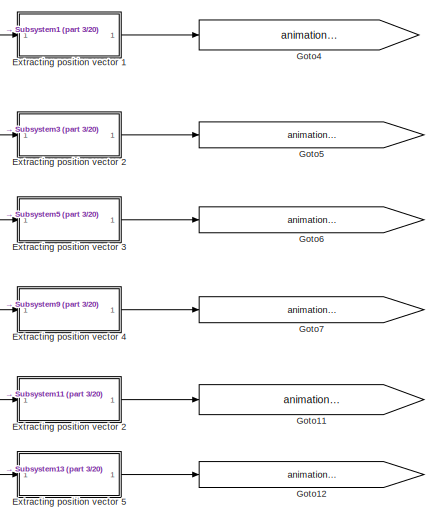
[diagram: Subsystem14 - part 1/20, top center region]
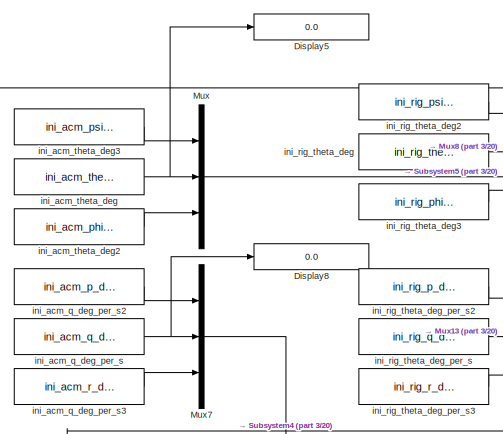
[diagram: Subsystem14 - part 2/20, top left region]
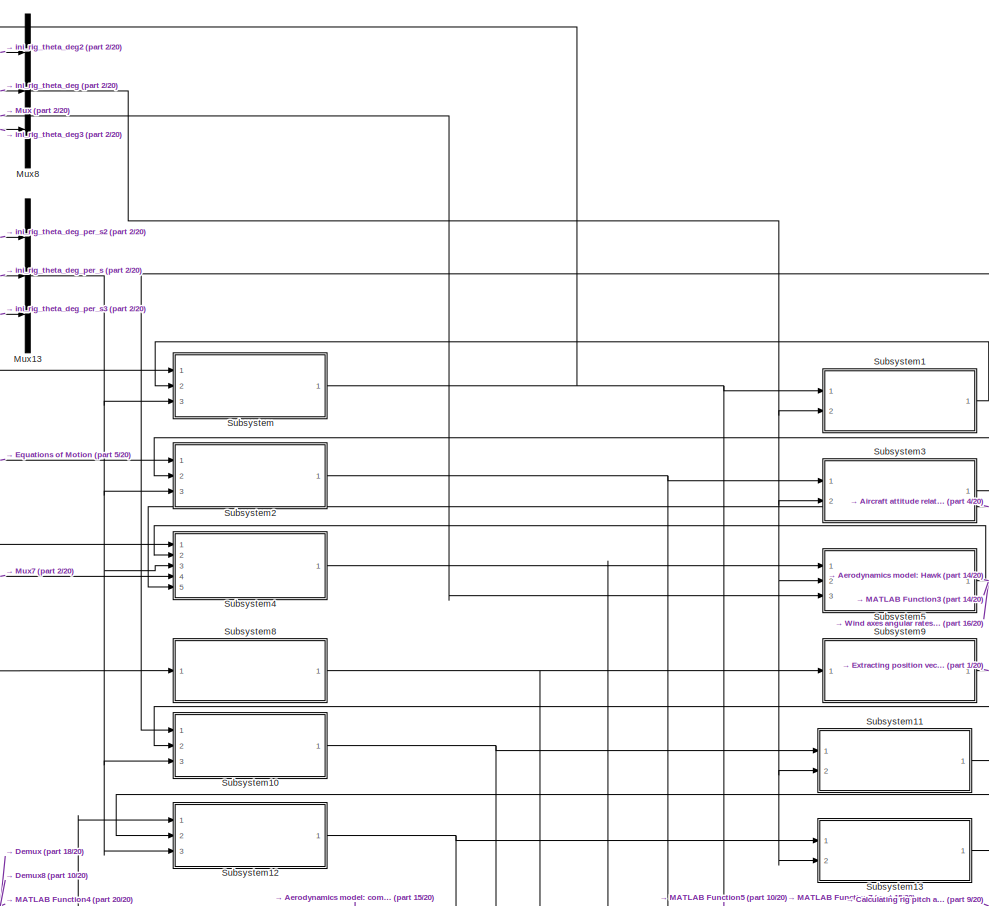
[diagram: Subsystem14 - part 3/20, top left region]
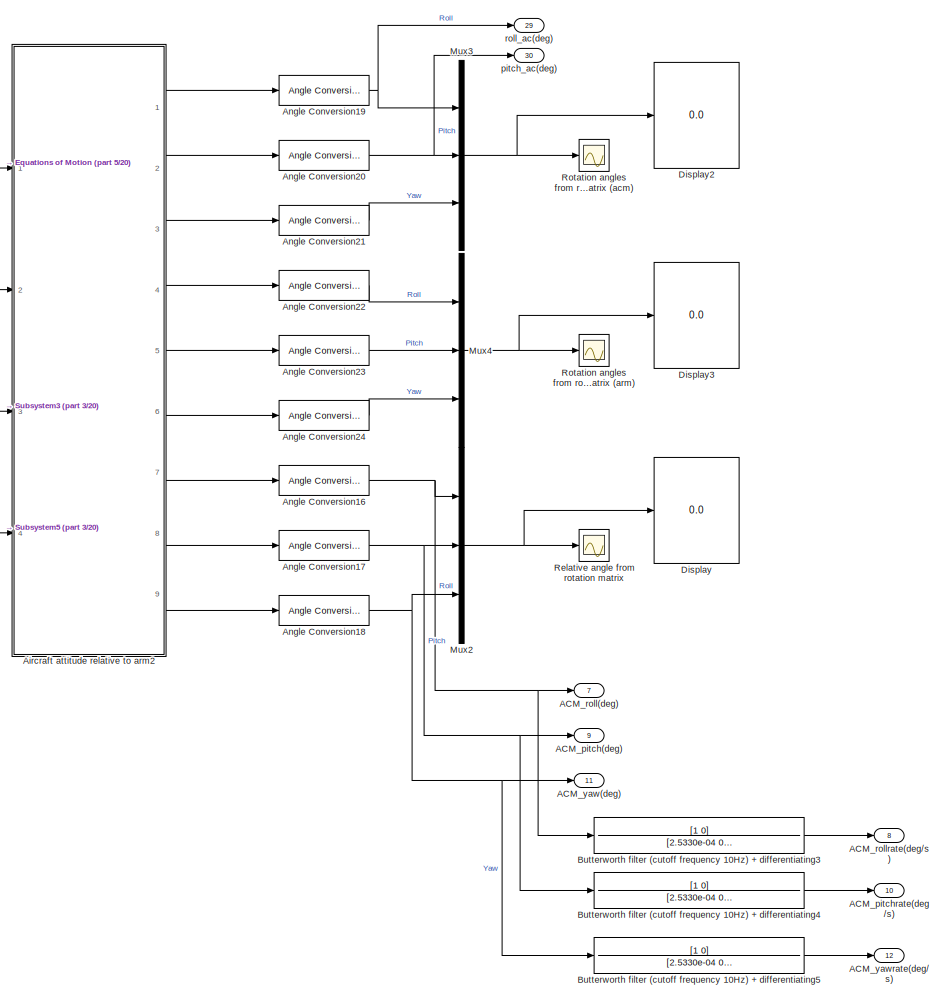
[diagram: Subsystem14 - part 4/20, top right region]
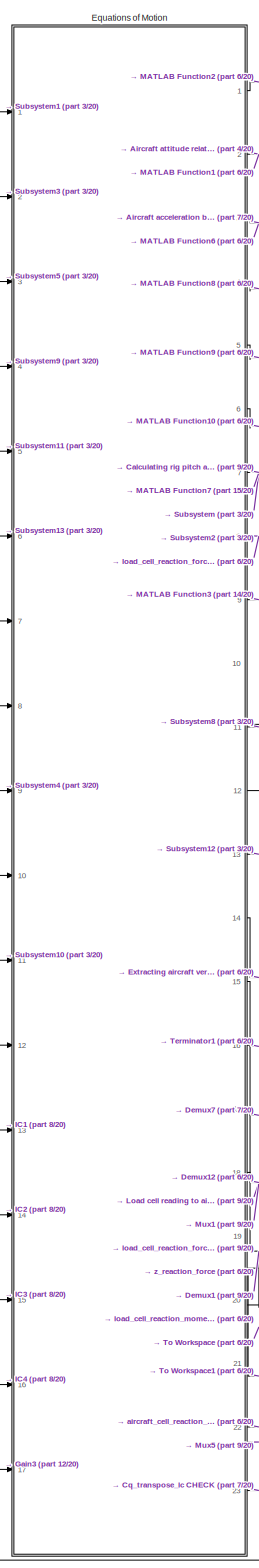
[diagram: Subsystem14 - part 5/20, top center region]
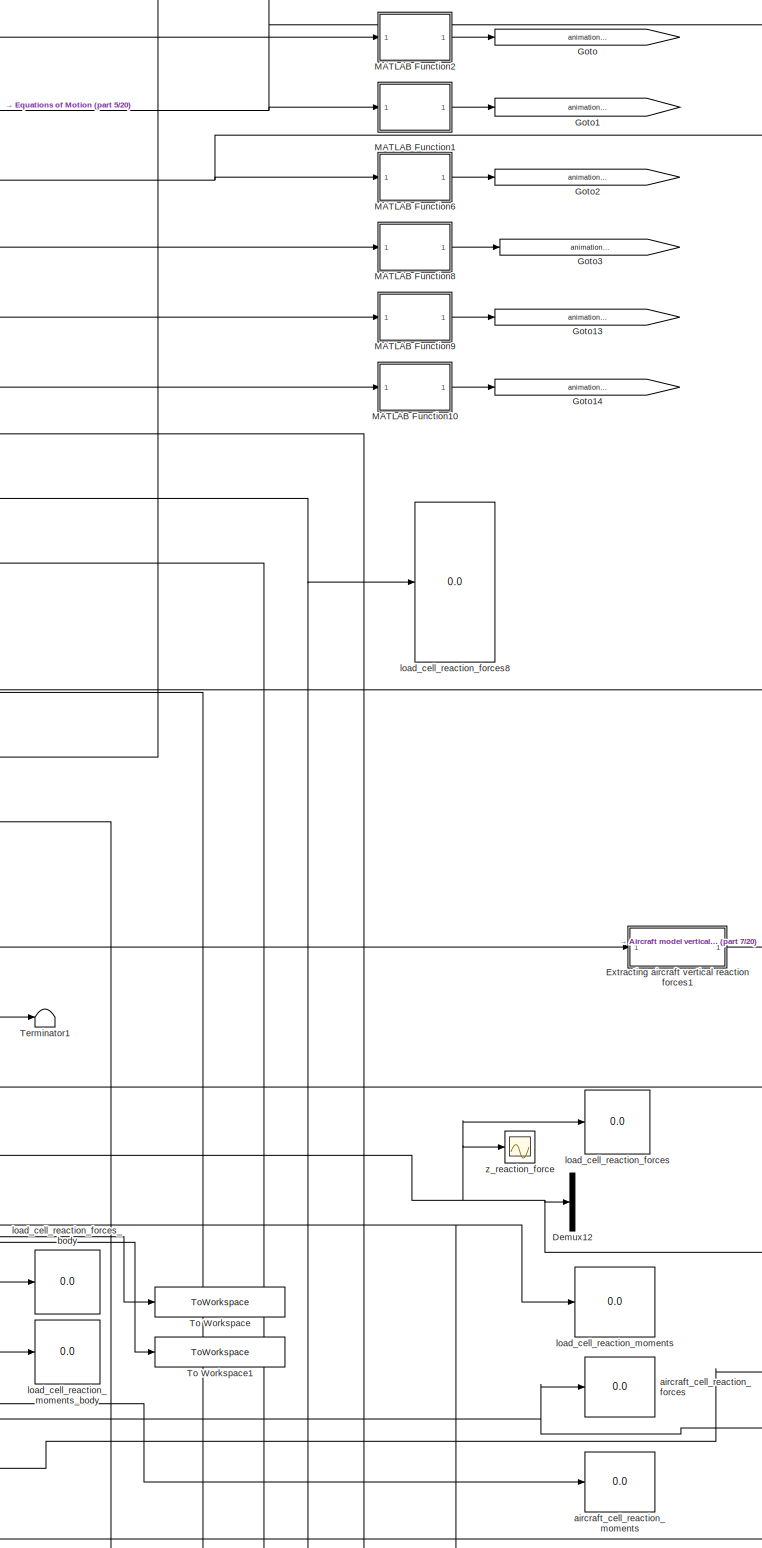
[diagram: Subsystem14 - part 6/20, top center region]
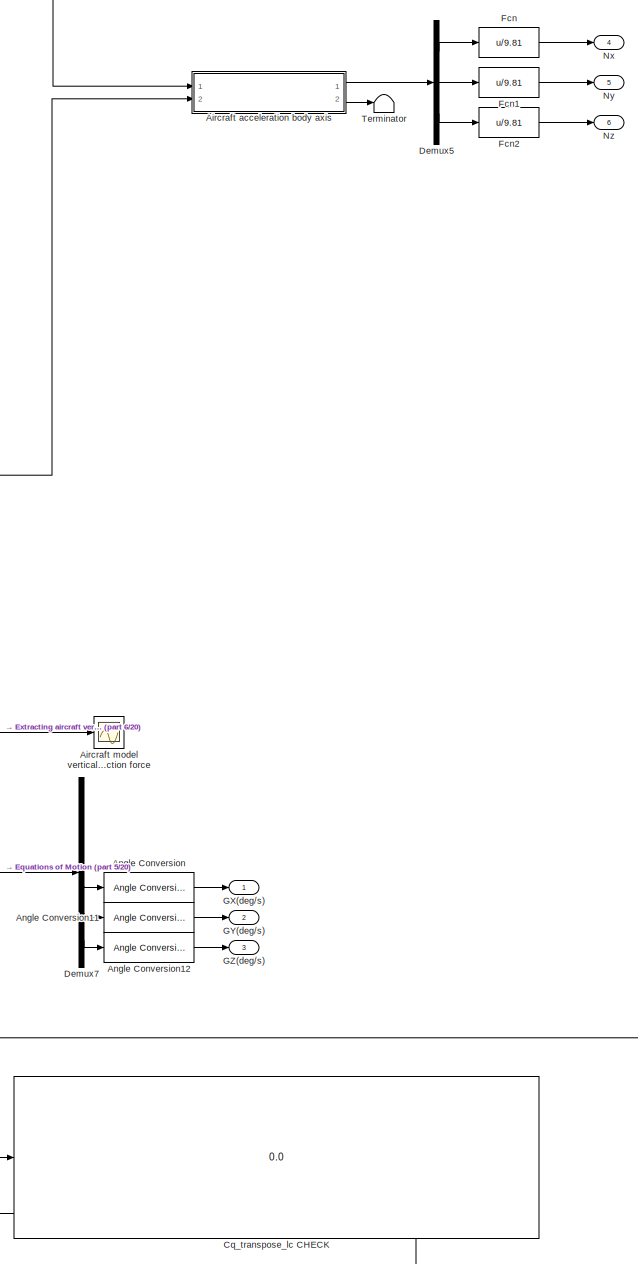
[diagram: Subsystem14 - part 7/20, top center region]
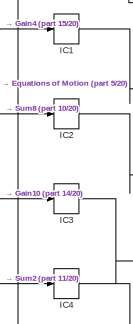
[diagram: Subsystem14 - part 8/20, central region]
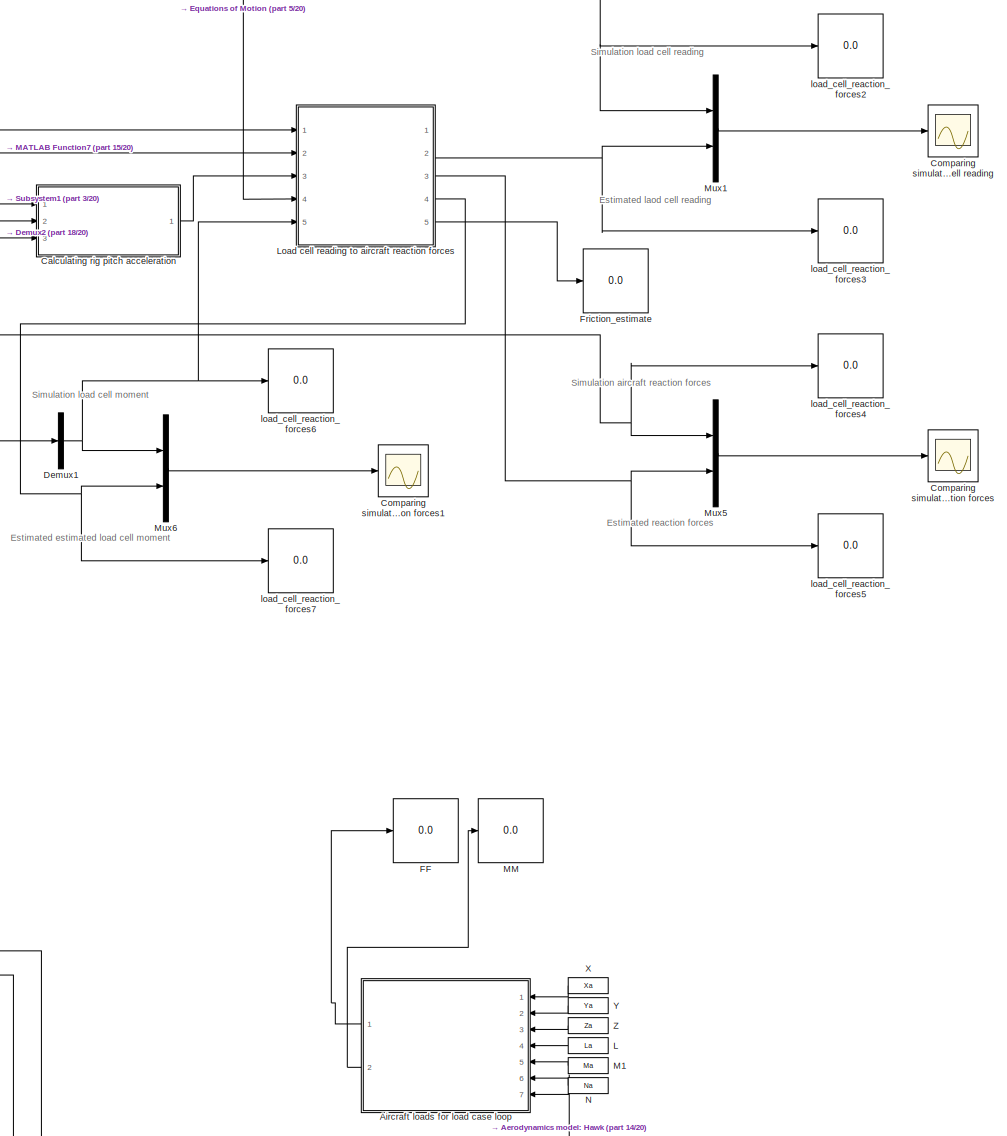
[diagram: Subsystem14 - part 9/20, middle right region]
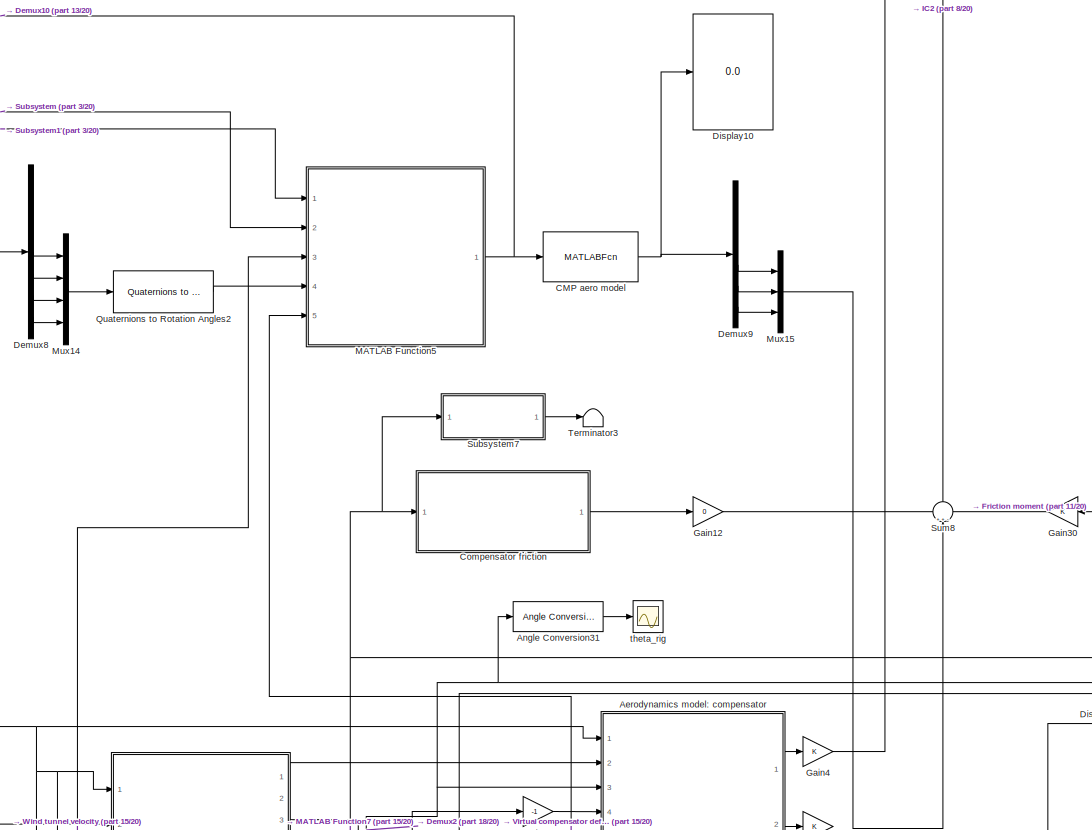
[diagram: Subsystem14 - part 10/20, middle left region]
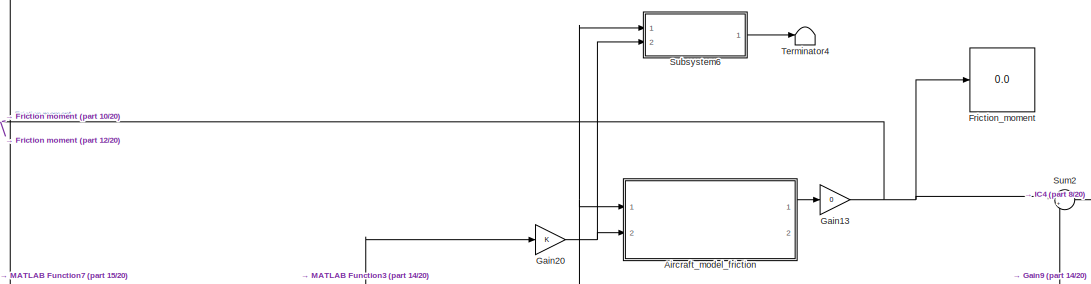
[diagram: Subsystem14 - part 11/20, central region]
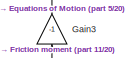
[diagram: Subsystem14 - part 12/20, central region]
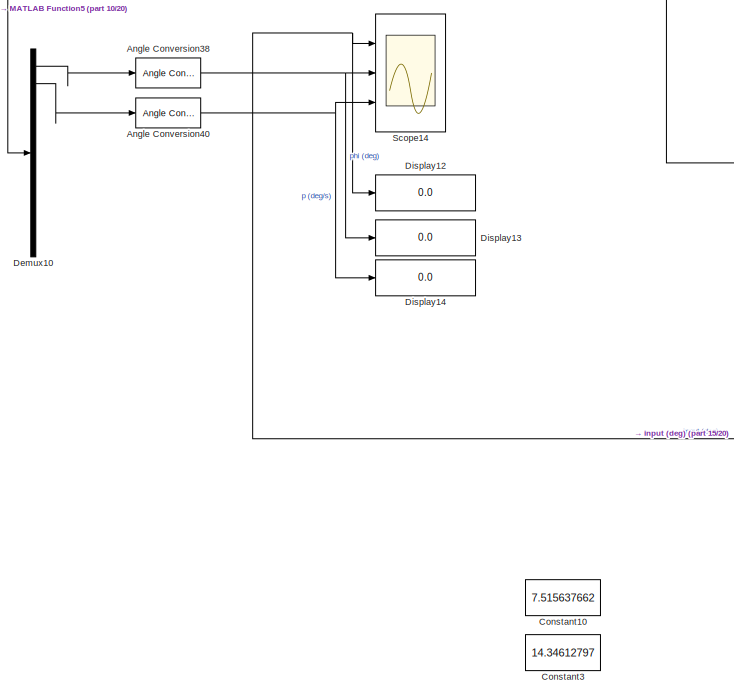
[diagram: Subsystem14 - part 13/20, bottom left region]
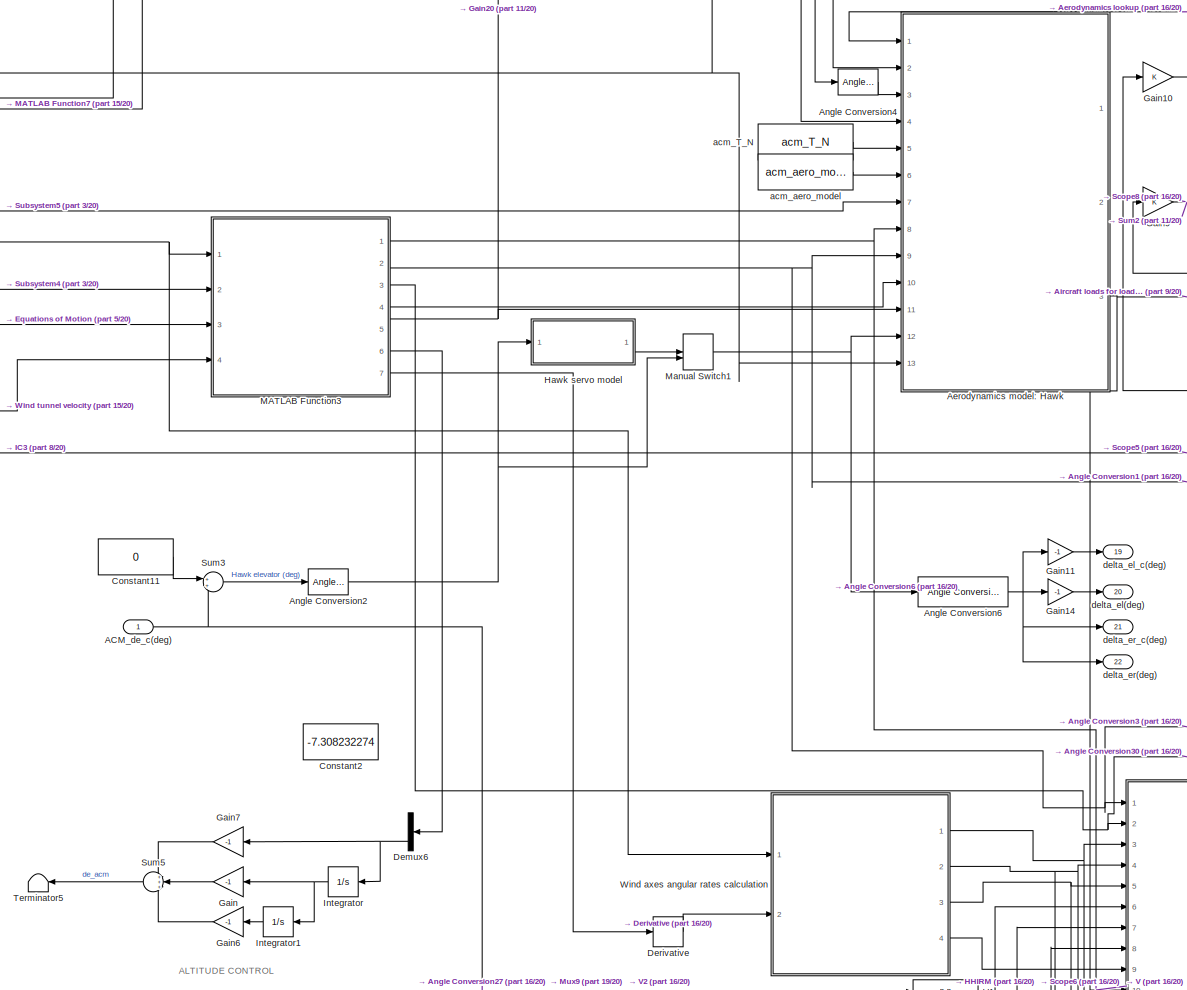
[diagram: Subsystem14 - part 14/20, bottom center region]
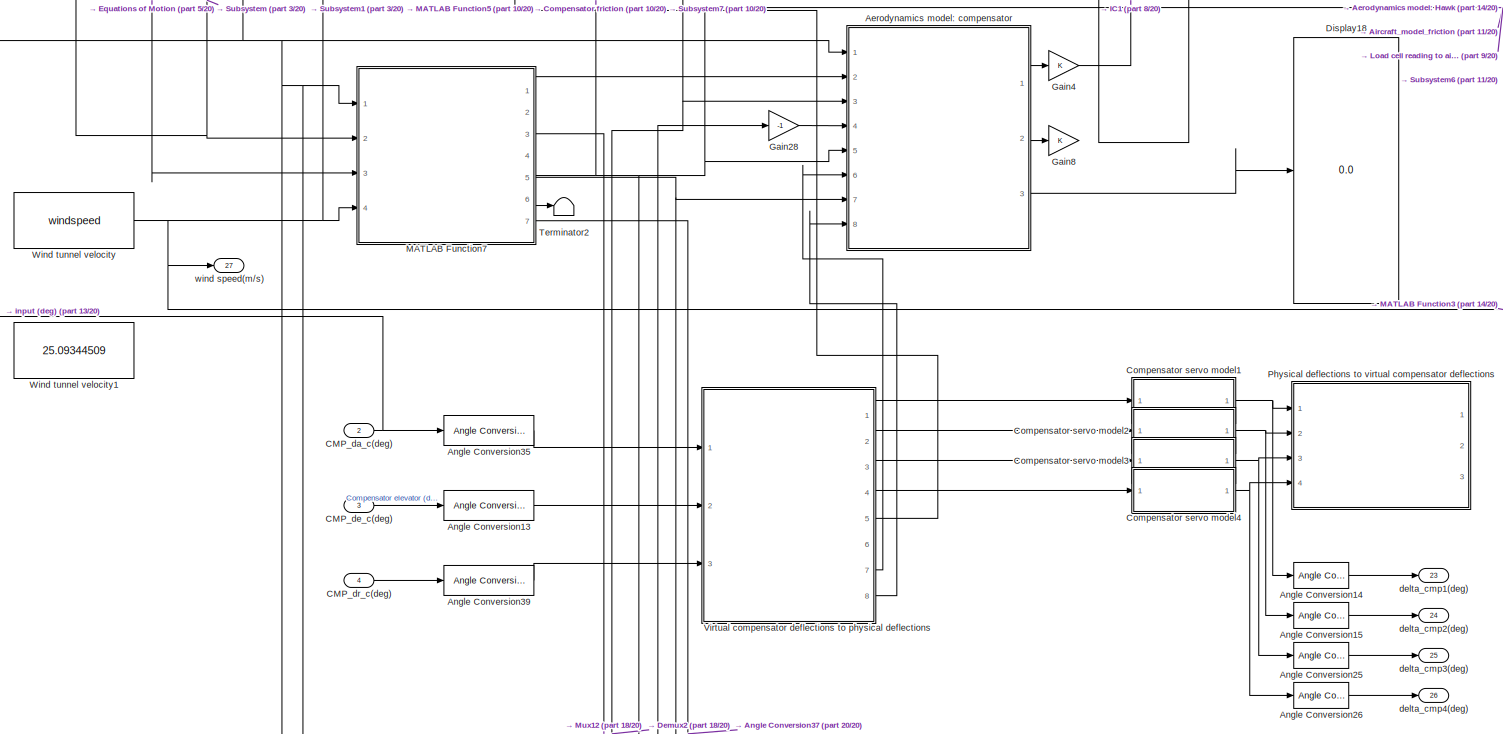
[diagram: Subsystem14 - part 15/20, bottom left region]
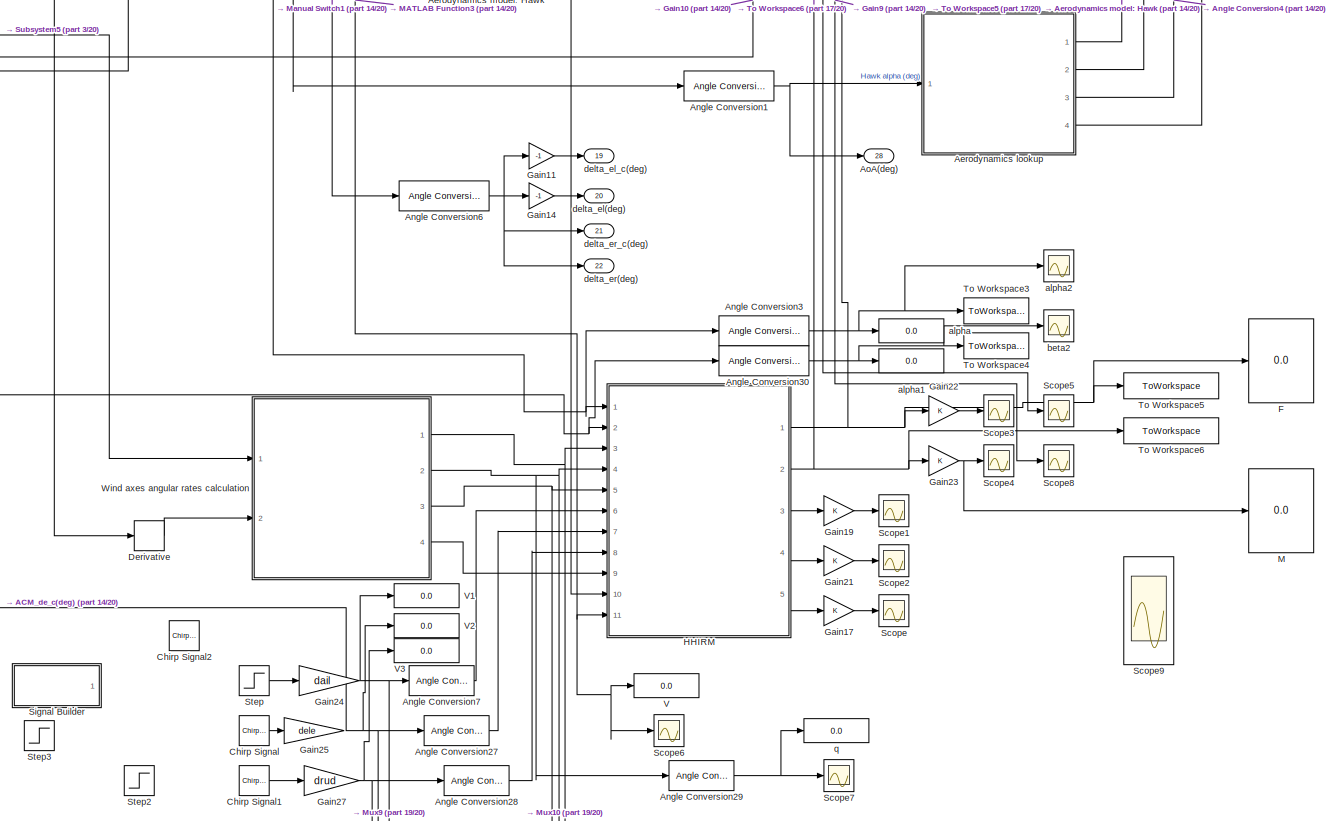
[diagram: Subsystem14 - part 16/20, bottom right region]
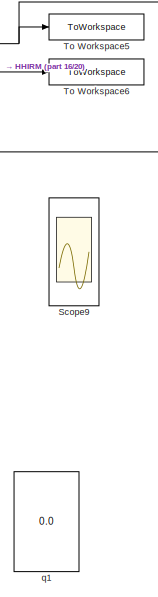
[diagram: Subsystem14 - part 17/20, bottom right region]
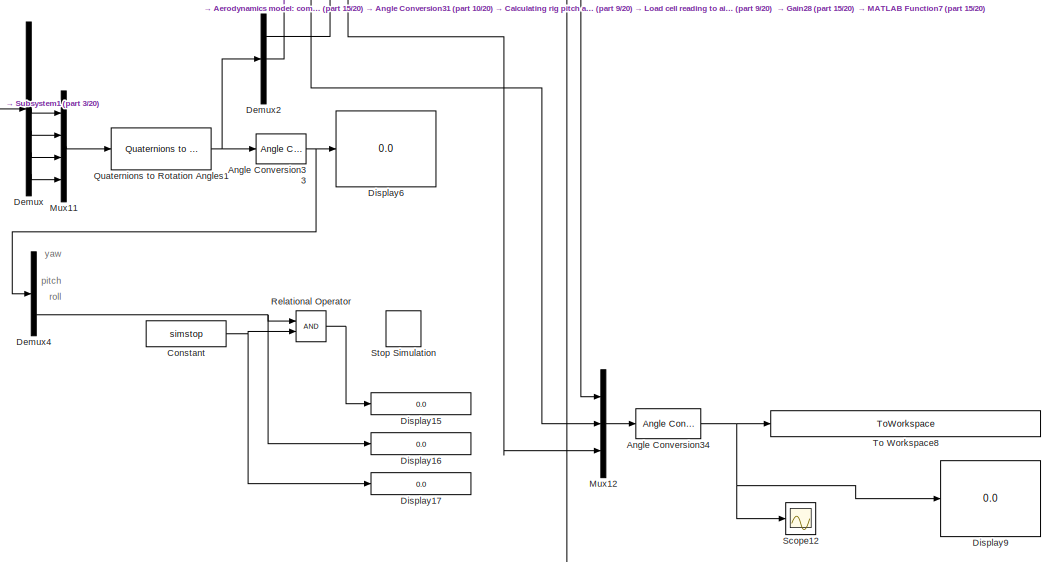
[diagram: Subsystem14 - part 18/20, bottom left region]
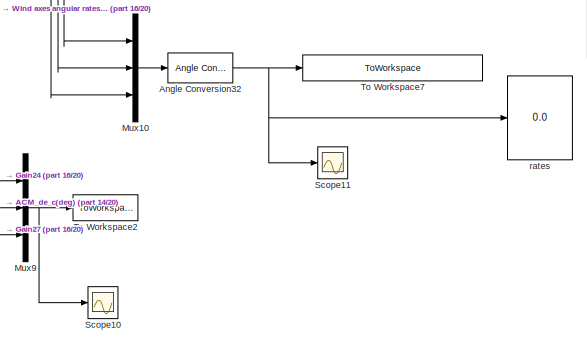
[diagram: Subsystem14 - part 19/20, bottom right region]
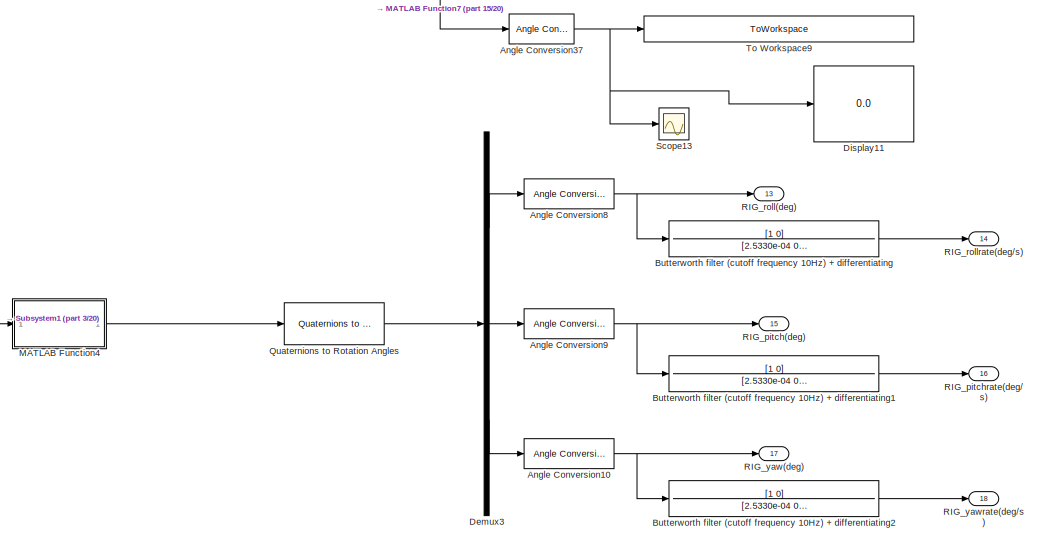
[diagram: Subsystem14 - part 20/20, bottom left region]
BLOCK [SubSystem] Subsystem14
  Commented = on
  Ports = [4, 30]
  RequestExecContextInheritance = off
  Variant = off
BLOCK [Inport] Subsystem14/ACM_de_c(deg)
  IconDisplay = Port number
BLOCK [Outport] Subsystem14/ACM_pitch(deg)
  IconDisplay = Port number
  Port = 9
BLOCK [Outport] Subsystem14/ACM_pitchrate(deg//s)
  IconDisplay = Port number
  Port = 10
BLOCK [Outport] Subsystem14/ACM_roll(deg)
  IconDisplay = Port number
  Port = 7
BLOCK [Outport] Subsystem14/ACM_rollrate(deg//s)
  IconDisplay = Port number
  Port = 8
BLOCK [Outport] Subsystem14/ACM_yaw(deg)
  IconDisplay = Port number
  Port = 11
BLOCK [Outport] Subsystem14/ACM_yawrate(deg//s)
  IconDisplay = Port number
  Port = 12
BLOCK [SubSystem] Subsystem14/Aerodynamics lookup
  Commented = on
  Ports = [1, 4]
  RequestExecContextInheritance = off
  Variant = off
BLOCK [Lookup_n-D] Subsystem14/Aerodynamics lookup/1-D Lookup Table
  BreakpointsForDimension1 = breakpoints1
  DiagnosticForOutOfRangeInput = Warning
  InternalRulePriority = Speed
  NumberOfTableDimensions = 1
  Ports = [1, 1]
  RndMeth = Simplest
  Table = de
BLOCK [Lookup_n-D] Subsystem14/Aerodynamics lookup/1-D Lookup Table1
  BreakpointsForDimension1 = breakpoints1
  DiagnosticForOutOfRangeInput = Warning
  InternalRulePriority = Speed
  NumberOfTableDimensions = 1
  Ports = [1, 1]
  RndMeth = Simplest
  Table = Cm0
BLOCK [Lookup_n-D] Subsystem14/Aerodynamics lookup/1-D Lookup Table2
  BreakpointsForDimension1 = breakpoints1
  DiagnosticForOutOfRangeInput = Warning
  InternalRulePriority = Speed
  NumberOfTableDimensions = 1
  Ports = [1, 1]
  RndMeth = Simplest
  Table = Cmde
BLOCK [Lookup_n-D] Subsystem14/Aerodynamics lookup/1-D Lookup Table3
  BreakpointsForDimension1 = breakpoints1
  DiagnosticForOutOfRangeInput = Warning
  InternalRulePriority = Speed
  NumberOfTableDimensions = 1
  Ports = [1, 1]
  RndMeth = Simplest
  Table = Cmq
BLOCK [Inport] Subsystem14/Aerodynamics lookup/Alpha (deg)
  IconDisplay = Port number
BLOCK [Outport] Subsystem14/Aerodynamics lookup/Cm0
  IconDisplay = Port number
BLOCK [Outport] Subsystem14/Aerodynamics lookup/Cmde
  IconDisplay = Port number
  Port = 2
BLOCK [Outport] Subsystem14/Aerodynamics lookup/Cmq
  IconDisplay = Port number
  Port = 4
BLOCK [Outport] Subsystem14/Aerodynamics lookup/de_deg
  IconDisplay = Port number
  Port = 3
BLOCK [SubSystem] Subsystem14/Aerodynamics model: Hawk
  ErrorFcn = Stateflow.Translate.translate
  MinAlgLoopOccurrences = on
  PermitHierarchicalResolution = ExplicitOnly
  Ports = [13, 3]
  RequestExecContextInheritance = off
  SFBlockType = MATLAB Function
  Variant = off
BLOCK [Demux] Subsystem14/Aerodynamics model: Hawk/ Demux 
  Outputs = 1
  Ports = [1, 1]
BLOCK [S-Function] Subsystem14/Aerodynamics model: Hawk/ SFunction 
  EnableBusSupport = on
  FunctionName = sf_sfun
  PortCounts = [13 4]
  Ports = [13, 4]
  SFunctionDeploymentMode = off
  Tag = Stateflow S-Function constraints_comparison_A_4D_v2 17
BLOCK [Terminator] Subsystem14/Aerodynamics model: Hawk/ Terminator 
BLOCK [Outport] Subsystem14/Aerodynamics model: Hawk/Aa
  IconDisplay = Port number
  Port = 3
BLOCK [Inport] Subsystem14/Aerodynamics model: Hawk/Cm0
  IconDisplay = Port number
BLOCK [Inport] Subsystem14/Aerodynamics model: Hawk/Cmde
  IconDisplay = Port number
  Port = 2
BLOCK [Inport] Subsystem14/Aerodynamics model: Hawk/Cmq
  IconDisplay = Port number
  Port = 4
BLOCK [Outport] Subsystem14/Aerodynamics model: Hawk/F_a
  IconDisplay = Port number
BLOCK [Outport] Subsystem14/Aerodynamics model: Hawk/M_dash_a
  IconDisplay = Port number
  Port = 2
BLOCK [Inport] Subsystem14/Aerodynamics model: Hawk/T
  IconDisplay = Port number
  Port = 5
BLOCK [Inport] Subsystem14/Aerodynamics model: Hawk/V0
  IconDisplay = Port number
  Port = 8
BLOCK [Inport] Subsystem14/Aerodynamics model: Hawk/acm_aero_model
  IconDisplay = Port number
  Port = 6
BLOCK [Inport] Subsystem14/Aerodynamics model: Hawk/alpha
  IconDisplay = Port number
  Port = 9
BLOCK [Inport] Subsystem14/Aerodynamics model: Hawk/de
  IconDisplay = Port number
  Port = 3
BLOCK [Inport] Subsystem14/Aerodynamics model: Hawk/eta
  IconDisplay = Port number
  Port = 12
BLOCK [Inport] Subsystem14/Aerodynamics model: Hawk/q
  IconDisplay = Port number
  Port = 11
BLOCK [Inport] Subsystem14/Aerodynamics model: Hawk/q_rig
  IconDisplay = Port number
  Port = 13
BLOCK [Inport] Subsystem14/Aerodynamics model: Hawk/qa
  IconDisplay = Port number
  Port = 7
BLOCK [Inport] Subsystem14/Aerodynamics model: Hawk/w_dot
  IconDisplay = Port number
  Port = 10
BLOCK [SubSystem] Subsystem14/Aerodynamics model: compensator
  ErrorFcn = Stateflow.Translate.translate
  MinAlgLoopOccurrences = on
  PermitHierarchicalResolution = ExplicitOnly
  Ports = [8, 3]
  RequestExecContextInheritance = off
  SFBlockType = MATLAB Function
  Variant = off
BLOCK [Demux] Subsystem14/Aerodynamics model: compensator/ Demux 
  Outputs = 1
  Ports = [1, 1]
BLOCK [S-Function] Subsystem14/Aerodynamics model: compensator/ SFunction 
  EnableBusSupport = on
  FunctionName = sf_sfun
  PortCounts = [8 4]
  Ports = [8, 4]
  SFunctionDeploymentMode = off
  Tag = Stateflow S-Function constraints_comparison_A_4D_v2 15
BLOCK [Terminator] Subsystem14/Aerodynamics model: compensator/ Terminator 
BLOCK [Outport] Subsystem14/Aerodynamics model: compensator/F_c
  IconDisplay = Port number
BLOCK [Outport] Subsystem14/Aerodynamics model: compensator/M_dash_c
  IconDisplay = Port number
  Port = 2
BLOCK [Inport] Subsystem14/Aerodynamics model: compensator/V_t
  IconDisplay = Port number
  Port = 2
BLOCK [Inport] Subsystem14/Aerodynamics model: compensator/alpha
  IconDisplay = Port number
  Port = 3
BLOCK [Inport] Subsystem14/Aerodynamics model: compensator/beta
  IconDisplay = Port number
  Port = 4
BLOCK [Inport] Subsystem14/Aerodynamics model: compensator/eta
  IconDisplay = Port number
  Port = 6
BLOCK [Outport] Subsystem14/Aerodynamics model: compensator/extra
  IconDisplay = Port number
  Port = 3
BLOCK [Inport] Subsystem14/Aerodynamics model: compensator/q
  IconDisplay = Port number
  Port = 5
BLOCK [Inport] Subsystem14/Aerodynamics model: compensator/qc
  IconDisplay = Port number
BLOCK [Inport] Subsystem14/Aerodynamics model: compensator/r
  IconDisplay = Port number
  Port = 7
BLOCK [Inport] Subsystem14/Aerodynamics model: compensator/rudd
  IconDisplay = Port number
  Port = 8
BLOCK [SubSystem] Subsystem14/Aircraft acceleration body axis
  Commented = on
  ErrorFcn = Stateflow.Translate.translate
  PermitHierarchicalResolution = ExplicitOnly
  Ports = [2, 2]
  RequestExecContextInheritance = off
  SFBlockType = MATLAB Function
  TreatAsAtomicUnit = on
  Variant = off
BLOCK [Demux] Subsystem14/Aircraft acceleration body axis/ Demux 
  Outputs = 1
  Ports = [1, 1]
BLOCK [S-Function] Subsystem14/Aircraft acceleration body axis/ SFunction 
  EnableBusSupport = on
  FunctionName = sf_sfun
  PortCounts = [2 3]
  Ports = [2, 3]
  SFunctionDeploymentMode = off
  Tag = Stateflow S-Function constraints_comparison_A_4D_v2 14
BLOCK [Terminator] Subsystem14/Aircraft acceleration body axis/ Terminator 
BLOCK [Inport] Subsystem14/Aircraft acceleration body axis/Aa
  IconDisplay = Port number
BLOCK [Outport] Subsystem14/Aircraft acceleration body axis/nz
  IconDisplay = Port number
  Port = 2
BLOCK [Inport] Subsystem14/Aircraft acceleration body axis/qa_dot_dot2
  IconDisplay = Port number
  Port = 2
BLOCK [Outport] Subsystem14/Aircraft acceleration body axis/qa_dot_dot3
  IconDisplay = Port number
BLOCK [SubSystem] Subsystem14/Aircraft attitude relative to arm2
  Commented = on
  ErrorFcn = Stateflow.Translate.translate
  PermitHierarchicalResolution = ExplicitOnly
  Ports = [4, 9]
  RequestExecContextInheritance = off
  SFBlockType = MATLAB Function
  TreatAsAtomicUnit = on
  Variant = off
BLOCK [Demux] Subsystem14/Aircraft attitude relative to arm2/ Demux 
  Outputs = 1
  Ports = [1, 1]
BLOCK [S-Function] Subsystem14/Aircraft attitude relative to arm2/ SFunction 
  EnableBusSupport = on
  FunctionName = sf_sfun
  PortCounts = [4 10]
  Ports = [4, 10]
  SFunctionDeploymentMode = off
  Tag = Stateflow S-Function constraints_comparison_A_4D_v2 22
BLOCK [Terminator] Subsystem14/Aircraft attitude relative to arm2/ Terminator 
BLOCK [Inport] Subsystem14/Aircraft attitude relative to arm2/Aa
  IconDisplay = Port number
  Port = 2
BLOCK [Inport] Subsystem14/Aircraft attitude relative to arm2/Ar
  IconDisplay = Port number
BLOCK [Outport] Subsystem14/Aircraft attitude relative to arm2/phi_acm
  IconDisplay = Port number
BLOCK [Outport] Subsystem14/Aircraft attitude relative to arm2/phi_arm
  IconDisplay = Port number
  Port = 4
BLOCK [Outport] Subsystem14/Aircraft attitude relative to arm2/phi_relative
  IconDisplay = Port number
  Port = 7
BLOCK [Outport] Subsystem14/Aircraft attitude relative to arm2/psi_acm
  IconDisplay = Port number
  Port = 3
BLOCK [Outport] Subsystem14/Aircraft attitude relative to arm2/psi_arm
  IconDisplay = Port number
  Port = 6
BLOCK [Outport] Subsystem14/Aircraft attitude relative to arm2/psi_relative
  IconDisplay = Port number
  Port = 9
BLOCK [Inport] Subsystem14/Aircraft attitude relative to arm2/qa
  IconDisplay = Port number
  Port = 4
BLOCK [Inport] Subsystem14/Aircraft attitude relative to arm2/qr
  IconDisplay = Port number
  Port = 3
BLOCK [Outport] Subsystem14/Aircraft attitude relative to arm2/theta_acm
  IconDisplay = Port number
  Port = 2
BLOCK [Outport] Subsystem14/Aircraft attitude relative to arm2/theta_arm
  IconDisplay = Port number
  Port = 5
BLOCK [Outport] Subsystem14/Aircraft attitude relative to arm2/theta_relative
  IconDisplay = Port number
  Port = 8
BLOCK [SubSystem] Subsystem14/Aircraft loads for load case loop
  Commented = on
  ErrorFcn = Stateflow.Translate.translate
  MinAlgLoopOccurrences = on
  PermitHierarchicalResolution = ExplicitOnly
  Ports = [7, 2]
  RequestExecContextInheritance = off
  SFBlockType = MATLAB Function
  Variant = off
BLOCK [Demux] Subsystem14/Aircraft loads for load case loop/ Demux 
  Outputs = 1
  Ports = [1, 1]
BLOCK [S-Function] Subsystem14/Aircraft loads for load case loop/ SFunction 
  EnableBusSupport = on
  FunctionName = sf_sfun
  PortCounts = [7 3]
  Ports = [7, 3]
  SFunctionDeploymentMode = off
  Tag = Stateflow S-Function constraints_comparison_A_4D_v2 65
BLOCK [Terminator] Subsystem14/Aircraft loads for load case loop/ Terminator 
BLOCK [Inport] Subsystem14/Aircraft loads for load case loop/A_b2i
  IconDisplay = Port number
  Port = 7
BLOCK [Outport] Subsystem14/Aircraft loads for load case loop/Fa
  IconDisplay = Port number
BLOCK [Inport] Subsystem14/Aircraft loads for load case loop/L
  IconDisplay = Port number
  Port = 4
BLOCK [Inport] Subsystem14/Aircraft loads for load case loop/M
  IconDisplay = Port number
  Port = 5
BLOCK [Outport] Subsystem14/Aircraft loads for load case loop/M_dash_a
  IconDisplay = Port number
  Port = 2
BLOCK [Inport] Subsystem14/Aircraft loads for load case loop/N
  IconDisplay = Port number
  Port = 6
BLOCK [Inport] Subsystem14/Aircraft loads for load case loop/X
  IconDisplay = Port number
BLOCK [Inport] Subsystem14/Aircraft loads for load case loop/Y
  IconDisplay = Port number
  Port = 2
BLOCK [Inport] Subsystem14/Aircraft loads for load case loop/Z
  IconDisplay = Port number
  Port = 3
BLOCK [Scope] Subsystem14/Aircraft model vertical reaction force
  Ports = [1]
  ScopeSpecificationString = C++SS(StrPVP('Location','[198, 580, 936, 924]'),StrPVP('Open','off'),StrPVP('ZoomMode','yonly'),MxPVP('AxesTitles',24,'struct(''axes1'',''%<SignalLabel>'')'),MxPVP('ScopeGraphics',28,'struct(''FigureColor'',''[0.5 0.5 0.5]'',''AxesColor'',''[0 0 0]'',''AxesTickColor'',''[1 1 1]'',''LineColors'',''[1 1 0;1 0 1;0 1 1;1 0 0;0 1 0;0 0 1]'',''LineStyles'',''-|-|-|-|-|-'',''LineWidths'',''[0.5 0.5 0.5 0...<+263ch>
BLOCK [SubSystem] Subsystem14/Aircraft_model_friction
  ErrorFcn = Stateflow.Translate.translate
  MinAlgLoopOccurrences = on
  PermitHierarchicalResolution = ExplicitOnly
  Ports = [2, 2]
  RequestExecContextInheritance = off
  SFBlockType = MATLAB Function
  Variant = off
BLOCK [Demux] Subsystem14/Aircraft_model_friction/ Demux 
  Outputs = 1
  Ports = [1, 1]
BLOCK [S-Function] Subsystem14/Aircraft_model_friction/ SFunction 
  EnableBusSupport = on
  FunctionName = sf_sfun
  PortCounts = [2 3]
  Ports = [2, 3]
  SFunctionDeploymentMode = off
  Tag = Stateflow S-Function constraints_comparison_A_4D_v2 19
BLOCK [Terminator] Subsystem14/Aircraft_model_friction/ Terminator 
BLOCK [Outport] Subsystem14/Aircraft_model_friction/Fr_mp
  IconDisplay = Port number
BLOCK [Inport] Subsystem14/Aircraft_model_friction/theta_dot_mp
  IconDisplay = Port number
  Port = 2
BLOCK [Outport] Subsystem14/Aircraft_model_friction/theta_dot_relative
  IconDisplay = Port number
  Port = 2
BLOCK [Inport] Subsystem14/Aircraft_model_friction/theta_dot_rp
  IconDisplay = Port number
BLOCK [Reference] Subsystem14/Angle Conversion  REF=aerolibconvert2/Angle Conversion
  Ports = [1, 1]
  SourceBlock = aerolibconvert2/Angle Conversion
  SourceType = Angle Conversion
BLOCK [Reference] Subsystem14/Angle Conversion1  REF=aerolibconvert2/Angle Conversion
  Ports = [1, 1]
  SourceBlock = aerolibconvert2/Angle Conversion
  SourceType = Angle Conversion
BLOCK [Reference] Subsystem14/Angle Conversion10  REF=aerolibconvert2/Angle Conversion
  Ports = [1, 1]
  SourceBlock = aerolibconvert2/Angle Conversion
  SourceType = Angle Conversion
BLOCK [Reference] Subsystem14/Angle Conversion11  REF=aerolibconvert2/Angle Conversion
  Ports = [1, 1]
  SourceBlock = aerolibconvert2/Angle Conversion
  SourceType = Angle Conversion
BLOCK [Reference] Subsystem14/Angle Conversion12  REF=aerolibconvert2/Angle Conversion
  Ports = [1, 1]
  SourceBlock = aerolibconvert2/Angle Conversion
  SourceType = Angle Conversion
BLOCK [Reference] Subsystem14/Angle Conversion13  REF=aerolibconvert2/Angle Conversion
  Ports = [1, 1]
  SourceBlock = aerolibconvert2/Angle Conversion
  SourceType = Angle Conversion
BLOCK [Reference] Subsystem14/Angle Conversion14  REF=aerolibconvert2/Angle Conversion
  Ports = [1, 1]
  SourceBlock = aerolibconvert2/Angle Conversion
  SourceType = Angle Conversion
BLOCK [Reference] Subsystem14/Angle Conversion15  REF=aerolibconvert2/Angle Conversion
  Ports = [1, 1]
  SourceBlock = aerolibconvert2/Angle Conversion
  SourceType = Angle Conversion
BLOCK [Reference] Subsystem14/Angle Conversion16  REF=aerolibconvert2/Angle Conversion
  Ports = [1, 1]
  SourceBlock = aerolibconvert2/Angle Conversion
  SourceType = Angle Conversion
BLOCK [Reference] Subsystem14/Angle Conversion17  REF=aerolibconvert2/Angle Conversion
  Ports = [1, 1]
  SourceBlock = aerolibconvert2/Angle Conversion
  SourceType = Angle Conversion
BLOCK [Reference] Subsystem14/Angle Conversion18  REF=aerolibconvert2/Angle Conversion
  Ports = [1, 1]
  SourceBlock = aerolibconvert2/Angle Conversion
  SourceType = Angle Conversion
BLOCK [Reference] Subsystem14/Angle Conversion19  REF=aerolibconvert2/Angle Conversion
  Ports = [1, 1]
  SourceBlock = aerolibconvert2/Angle Conversion
  SourceType = Angle Conversion
BLOCK [Reference] Subsystem14/Angle Conversion2  REF=aerolibconvert2/Angle Conversion
  Ports = [1, 1]
  SourceBlock = aerolibconvert2/Angle Conversion
  SourceType = Angle Conversion
BLOCK [Reference] Subsystem14/Angle Conversion20  REF=aerolibconvert2/Angle Conversion
  Ports = [1, 1]
  SourceBlock = aerolibconvert2/Angle Conversion
  SourceType = Angle Conversion
BLOCK [Reference] Subsystem14/Angle Conversion21  REF=aerolibconvert2/Angle Conversion
  Ports = [1, 1]
  SourceBlock = aerolibconvert2/Angle Conversion
  SourceType = Angle Conversion
BLOCK [Reference] Subsystem14/Angle Conversion22  REF=aerolibconvert2/Angle Conversion
  Ports = [1, 1]
  SourceBlock = aerolibconvert2/Angle Conversion
  SourceType = Angle Conversion
BLOCK [Reference] Subsystem14/Angle Conversion23  REF=aerolibconvert2/Angle Conversion
  Ports = [1, 1]
  SourceBlock = aerolibconvert2/Angle Conversion
  SourceType = Angle Conversion
BLOCK [Reference] Subsystem14/Angle Conversion24  REF=aerolibconvert2/Angle Conversion
  Ports = [1, 1]
  SourceBlock = aerolibconvert2/Angle Conversion
  SourceType = Angle Conversion
BLOCK [Reference] Subsystem14/Angle Conversion25  REF=aerolibconvert2/Angle Conversion
  Ports = [1, 1]
  SourceBlock = aerolibconvert2/Angle Conversion
  SourceType = Angle Conversion
BLOCK [Reference] Subsystem14/Angle Conversion26  REF=aerolibconvert2/Angle Conversion
  Ports = [1, 1]
  SourceBlock = aerolibconvert2/Angle Conversion
  SourceType = Angle Conversion
BLOCK [Reference] Subsystem14/Angle Conversion27  REF=aerolibconvert2/Angle Conversion
  Ports = [1, 1]
  SourceBlock = aerolibconvert2/Angle Conversion
  SourceType = Angle Conversion
BLOCK [Reference] Subsystem14/Angle Conversion28  REF=aerolibconvert2/Angle Conversion
  Ports = [1, 1]
  SourceBlock = aerolibconvert2/Angle Conversion
  SourceType = Angle Conversion
BLOCK [Reference] Subsystem14/Angle Conversion29  REF=aerolibconvert2/Angle Conversion
  Ports = [1, 1]
  SourceBlock = aerolibconvert2/Angle Conversion
  SourceType = Angle Conversion
BLOCK [Reference] Subsystem14/Angle Conversion3  REF=aerolibconvert2/Angle Conversion
  Ports = [1, 1]
  SourceBlock = aerolibconvert2/Angle Conversion
  SourceType = Angle Conversion
BLOCK [Reference] Subsystem14/Angle Conversion30  REF=aerolibconvert2/Angle Conversion
  Ports = [1, 1]
  SourceBlock = aerolibconvert2/Angle Conversion
  SourceType = Angle Conversion
BLOCK [Reference] Subsystem14/Angle Conversion31  REF=aerolibconvert2/Angle Conversion
  Ports = [1, 1]
  SourceBlock = aerolibconvert2/Angle Conversion
  SourceType = Angle Conversion
BLOCK [Reference] Subsystem14/Angle Conversion32  REF=aerolibconvert2/Angle Conversion
  Ports = [1, 1]
  SourceBlock = aerolibconvert2/Angle Conversion
  SourceType = Angle Conversion
BLOCK [Reference] Subsystem14/Angle Conversion33  REF=aerolibconvert2/Angle Conversion
  Ports = [1, 1]
  SourceBlock = aerolibconvert2/Angle Conversion
  SourceType = Angle Conversion
BLOCK [Reference] Subsystem14/Angle Conversion34  REF=aerolibconvert2/Angle Conversion
  Ports = [1, 1]
  SourceBlock = aerolibconvert2/Angle Conversion
  SourceType = Angle Conversion
BLOCK [Reference] Subsystem14/Angle Conversion35  REF=aerolibconvert2/Angle Conversion
  Ports = [1, 1]
  SourceBlock = aerolibconvert2/Angle Conversion
  SourceType = Angle Conversion
BLOCK [Reference] Subsystem14/Angle Conversion37  REF=aerolibconvert2/Angle Conversion
  Ports = [1, 1]
  SourceBlock = aerolibconvert2/Angle Conversion
  SourceType = Angle Conversion
BLOCK [Reference] Subsystem14/Angle Conversion38  REF=aerolibconvert2/Angle Conversion
  Ports = [1, 1]
  SourceBlock = aerolibconvert2/Angle Conversion
  SourceType = Angle Conversion
BLOCK [Reference] Subsystem14/Angle Conversion39  REF=aerolibconvert2/Angle Conversion
  Ports = [1, 1]
  SourceBlock = aerolibconvert2/Angle Conversion
  SourceType = Angle Conversion
BLOCK [Reference] Subsystem14/Angle Conversion4  REF=aerolibconvert2/Angle Conversion
  Ports = [1, 1]
  SourceBlock = aerolibconvert2/Angle Conversion
  SourceType = Angle Conversion
BLOCK [Reference] Subsystem14/Angle Conversion40  REF=aerolibconvert2/Angle Conversion
  Ports = [1, 1]
  SourceBlock = aerolibconvert2/Angle Conversion
  SourceType = Angle Conversion
BLOCK [Reference] Subsystem14/Angle Conversion6  REF=aerolibconvert2/Angle Conversion
  Ports = [1, 1]
  SourceBlock = aerolibconvert2/Angle Conversion
  SourceType = Angle Conversion
BLOCK [Reference] Subsystem14/Angle Conversion7  REF=aerolibconvert2/Angle Conversion
  Ports = [1, 1]
  SourceBlock = aerolibconvert2/Angle Conversion
  SourceType = Angle Conversion
BLOCK [Reference] Subsystem14/Angle Conversion8  REF=aerolibconvert2/Angle Conversion
  Ports = [1, 1]
  SourceBlock = aerolibconvert2/Angle Conversion
  SourceType = Angle Conversion
BLOCK [Reference] Subsystem14/Angle Conversion9  REF=aerolibconvert2/Angle Conversion
  Ports = [1, 1]
  SourceBlock = aerolibconvert2/Angle Conversion
  SourceType = Angle Conversion
BLOCK [Outport] Subsystem14/AoA(deg)
  IconDisplay = Port number
  Port = 28
BLOCK [TransferFcn] Subsystem14/Butterworth filter (cutoff frequency 10Hz) + differentiating
  Denominator = [2.5330e-04 0.0225 1]
  Numerator = [1 0]
BLOCK [TransferFcn] Subsystem14/Butterworth filter (cutoff frequency 10Hz) + differentiating1
  Denominator = [2.5330e-04 0.0225 1]
  Numerator = [1 0]
BLOCK [TransferFcn] Subsystem14/Butterworth filter (cutoff frequency 10Hz) + differentiating2
  Denominator = [2.5330e-04 0.0225 1]
  Numerator = [1 0]
BLOCK [TransferFcn] Subsystem14/Butterworth filter (cutoff frequency 10Hz) + differentiating3
  Denominator = [2.5330e-04 0.0225 1]
  Numerator = [1 0]
BLOCK [TransferFcn] Subsystem14/Butterworth filter (cutoff frequency 10Hz) + differentiating4
  Denominator = [2.5330e-04 0.0225 1]
  Numerator = [1 0]
BLOCK [TransferFcn] Subsystem14/Butterworth filter (cutoff frequency 10Hz) + differentiating5
  Denominator = [2.5330e-04 0.0225 1]
  Numerator = [1 0]
BLOCK [MATLABFcn] Subsystem14/CMP aero model
  MATLABFcn = Cmp_aero_model
  Ports = [1, 1]
BLOCK [Inport] Subsystem14/CMP_da_c(deg)
  IconDisplay = Port number
  Port = 2
BLOCK [Inport] Subsystem14/CMP_de_c(deg)
  IconDisplay = Port number
  Port = 3
BLOCK [Inport] Subsystem14/CMP_dr_c(deg)
  IconDisplay = Port number
  Port = 4
BLOCK [SubSystem] Subsystem14/Calculating rig pitch acceleration
  ErrorFcn = Stateflow.Translate.translate
  PermitHierarchicalResolution = ExplicitOnly
  Ports = [3, 1]
  RequestExecContextInheritance = off
  SFBlockType = MATLAB Function
  TreatAsAtomicUnit = on
  Variant = off
BLOCK [Demux] Subsystem14/Calculating rig pitch acceleration/ Demux 
  Outputs = 1
  Ports = [1, 1]
BLOCK [S-Function] Subsystem14/Calculating rig pitch acceleration/ SFunction 
  EnableBusSupport = on
  FunctionName = sf_sfun
  PortCounts = [3 2]
  Ports = [3, 2]
  SFunctionDeploymentMode = off
  Tag = Stateflow S-Function constraints_comparison_A_4D_v2 57
BLOCK [Terminator] Subsystem14/Calculating rig pitch acceleration/ Terminator 
BLOCK [Inport] Subsystem14/Calculating rig pitch acceleration/qc
  IconDisplay = Port number
BLOCK [Inport] Subsystem14/Calculating rig pitch acceleration/qc_dot_dot
  IconDisplay = Port number
  Port = 2
BLOCK [Inport] Subsystem14/Calculating rig pitch acceleration/theta_r
  IconDisplay = Port number
  Port = 3
BLOCK [Outport] Subsystem14/Calculating rig pitch acceleration/theta_r_dot_dot
  IconDisplay = Port number
BLOCK [Reference] Subsystem14/Chirp Signal  REF=simulink/Sources/Chirp Signal
  Commented = on
  Ports = [0, 1]
  SourceBlock = simulink/Sources/Chirp Signal
  SourceType = chirp
BLOCK [Reference] Subsystem14/Chirp Signal1  REF=simulink/Sources/Chirp Signal
  Commented = on
  Ports = [0, 1]
  SourceBlock = simulink/Sources/Chirp Signal
  SourceType = chirp
BLOCK [Reference] Subsystem14/Chirp Signal2  REF=simulink/Sources/Chirp Signal
  Ports = [0, 1]
  SourceBlock = simulink/Sources/Chirp Signal
  SourceType = chirp
BLOCK [Scope] Subsystem14/Comparing simulation aircraft reaction forces and estimated reaction forces
  Ports = [1]
  ScopeSpecificationString = C++SS(StrPVP('Location','[10, 60, 1926, 1050]'),StrPVP('Open','off'),MxPVP('AxesTitles',24,'struct(''axes1'',''%<SignalLabel>'')'),MxPVP('ScopeGraphics',28,'struct(''FigureColor'',''[0.5 0.5 0.5]'',''AxesColor'',''[0 0 0]'',''AxesTickColor'',''[1 1 1]'',''LineColors'',''[1 1 0;1 0 1;0 1 1;1 0 0;0 1 0;0 0 1]'',''LineStyles'',''-|-|-|-|-|-'',''LineWidths'',''[0.5 0.5 0.5 0.5 0.5 0.5]'',''MarkerStyle...<+237ch>
BLOCK [Scope] Subsystem14/Comparing simulation aircraft reaction forces and estimated reaction forces1
  Ports = [1]
  ScopeSpecificationString = C++SS(StrPVP('Location','[10, 60, 1926, 1050]'),StrPVP('Open','off'),MxPVP('AxesTitles',24,'struct(''axes1'',''%<SignalLabel>'')'),MxPVP('ScopeGraphics',28,'struct(''FigureColor'',''[0.5 0.5 0.5]'',''AxesColor'',''[0 0 0]'',''AxesTickColor'',''[1 1 1]'',''LineColors'',''[1 1 0;1 0 1;0 1 1;1 0 0;0 1 0;0 0 1]'',''LineStyles'',''-|-|-|-|-|-'',''LineWidths'',''[0.5 0.5 0.5 0.5 0.5 0.5]'',''MarkerStyle...<+237ch>
BLOCK [Scope] Subsystem14/Comparing simulation load cell reading and estimated load cell reading
  Ports = [1]
  ScopeSpecificationString = C++SS(StrPVP('Location','[1, 49, 1921, 1039]'),StrPVP('Open','off'),MxPVP('AxesTitles',24,'struct(''axes1'',''%<SignalLabel>'')'),MxPVP('ScopeGraphics',28,'struct(''FigureColor'',''[0.5 0.5 0.5]'',''AxesColor'',''[0 0 0]'',''AxesTickColor'',''[1 1 1]'',''LineColors'',''[1 1 0;1 0 1;0 1 1;1 0 0;0 1 0;0 0 1]'',''LineStyles'',''-|-|-|-|-|-'',''LineWidths'',''[0.5 0.5 0.5 0.5 0.5 0.5]'',''MarkerStyles...<+240ch>
BLOCK [SubSystem] Subsystem14/Compensator friction
  ErrorFcn = Stateflow.Translate.translate
  MinAlgLoopOccurrences = on
  PermitHierarchicalResolution = ExplicitOnly
  Ports = [1, 1]
  RequestExecContextInheritance = off
  SFBlockType = MATLAB Function
  Variant = off
BLOCK [Demux] Subsystem14/Compensator friction/ Demux 
  Outputs = 1
  Ports = [1, 1]
BLOCK [S-Function] Subsystem14/Compensator friction/ SFunction 
  EnableBusSupport = on
  FunctionName = sf_sfun
  PortCounts = [1 2]
  Ports = [1, 2]
  SFunctionDeploymentMode = off
  Tag = Stateflow S-Function constraints_comparison_A_4D_v2 20
BLOCK [Terminator] Subsystem14/Compensator friction/ Terminator 
BLOCK [Outport] Subsystem14/Compensator friction/Fr_rp
  IconDisplay = Port number
BLOCK [Inport] Subsystem14/Compensator friction/theta_dot_rp
  IconDisplay = Port number
BLOCK [SubSystem] Subsystem14/Compensator servo model1
  Commented = on
  Ports = [1, 1]
  RequestExecContextInheritance = off
  Variant = off
BLOCK [Inport] Subsystem14/Compensator servo model1/Command
  IconDisplay = Port number
BLOCK [Gain] Subsystem14/Compensator servo model1/Mot
  Gain = K2_svo_cmp
  OutDataTypeStr = Inherit: Inherit via internal rule
  ParamDataTypeStr = Inherit: Inherit via internal rule
  SaturateOnIntegerOverflow = off
BLOCK [Outport] Subsystem14/Compensator servo model1/Response
  IconDisplay = Port number
BLOCK [Saturate] Subsystem14/Compensator servo model1/Saturation
  InputPortMap = u0
  LowerLimit = -max_rate_sat_cmp
  Ports = [1, 1]
  UpperLimit = max_rate_sat_cmp
BLOCK [Sum] Subsystem14/Compensator servo model1/Sum
  IconShape = round
  InputSameDT = off
  Inputs = |+-
  OutDataTypeStr = Inherit: Inherit via internal rule
  Ports = [2, 1]
  SaturateOnIntegerOverflow = off
BLOCK [Sum] Subsystem14/Compensator servo model1/Sum1
  IconShape = round
  InputSameDT = off
  Inputs = |+-
  OutDataTypeStr = Inherit: Inherit via internal rule
  Ports = [2, 1]
  SaturateOnIntegerOverflow = off
BLOCK [Gain] Subsystem14/Compensator servo model1/Svo
  Gain = K1_svo_cmp
  OutDataTypeStr = Inherit: Inherit via internal rule
  ParamDataTypeStr = Inherit: Inherit via internal rule
  SaturateOnIntegerOverflow = off
BLOCK [SubSystem] Subsystem14/Compensator servo model1/kinematic
  Ports = [1, 2]
  RequestExecContextInheritance = off
  Variant = off
BLOCK [Reference] Subsystem14/Compensator servo model1/kinematic/Angle Conversion  REF=aerolibconvert2/Angle Conversion
  Ports = [1, 1]
  SourceBlock = aerolibconvert2/Angle Conversion
  SourceType = Angle Conversion
BLOCK [Reference] Subsystem14/Compensator servo model1/kinematic/Compare To Zero  REF=simulink/Logic and Bit
Operations/Compare
To Zero
  Ports = [1, 1]
  SourceBlock = simulink/Logic and Bit\nOperations/Compare\nTo Zero
  SourceType = Compare To Zero
BLOCK [Reference] Subsystem14/Compensator servo model1/kinematic/Compare To Zero1  REF=simulink/Logic and Bit
Operations/Compare
To Zero
  Ports = [1, 1]
  SourceBlock = simulink/Logic and Bit\nOperations/Compare\nTo Zero
  SourceType = Compare To Zero
BLOCK [Reference] Subsystem14/Compensator servo model1/kinematic/Compare To Zero2  REF=simulink/Logic and Bit
Operations/Compare
To Zero
  Ports = [1, 1]
  SourceBlock = simulink/Logic and Bit\nOperations/Compare\nTo Zero
  SourceType = Compare To Zero
BLOCK [Reference] Subsystem14/Compensator servo model1/kinematic/Compare To Zero3  REF=simulink/Logic and Bit
Operations/Compare
To Zero
  Ports = [1, 1]
  SourceBlock = simulink/Logic and Bit\nOperations/Compare\nTo Zero
  SourceType = Compare To Zero
BLOCK [Logic] Subsystem14/Compensator servo model1/kinematic/Logical Operator
  AllPortsSameDT = off
  Operator = OR
  OutDataTypeStr = boolean
  Ports = [2, 1]
BLOCK [Logic] Subsystem14/Compensator servo model1/kinematic/Logical Operator1
  AllPortsSameDT = off
  OutDataTypeStr = boolean
  Ports = [2, 1]
BLOCK [Logic] Subsystem14/Compensator servo model1/kinematic/Logical Operator2
  AllPortsSameDT = off
  OutDataTypeStr = boolean
  Ports = [2, 1]
BLOCK [Outport] Subsystem14/Compensator servo model1/kinematic/de
  IconDisplay = Port number
BLOCK [Outport] Subsystem14/Compensator servo model1/kinematic/de_dot
  IconDisplay = Port number
  Port = 2
BLOCK [Constant] Subsystem14/Compensator servo model1/kinematic/ini_cmp_de_deg
  Value = ini_cmp_de_deg
BLOCK [Integrator] Subsystem14/Compensator servo model1/kinematic/pos
  InitialConditionSource = external
  LimitOutput = on
  LowerSaturationLimit = -max_defl_sat_cmp
  Ports = [2, 2]
  ShowSaturationPort = on
  UpperSaturationLimit = max_defl_sat_cmp
  ZeroCross = off
BLOCK [Integrator] Subsystem14/Compensator servo model1/kinematic/rate
  ExternalReset = level hold
  LowerSaturationLimit = -max_rate_sat
  Ports = [2, 1]
  UpperSaturationLimit = max_rate_sat
  ZeroCross = off
BLOCK [Inport] Subsystem14/Compensator servo model1/kinematic/rate_dot
  IconDisplay = Port number
BLOCK [SubSystem] Subsystem14/Compensator servo model2
  Commented = on
  Ports = [1, 1]
  RequestExecContextInheritance = off
  Variant = off
BLOCK [Inport] Subsystem14/Compensator servo model2/Command
  IconDisplay = Port number
BLOCK [Gain] Subsystem14/Compensator servo model2/Mot
  Gain = K2_svo_cmp
  OutDataTypeStr = Inherit: Inherit via internal rule
  ParamDataTypeStr = Inherit: Inherit via internal rule
  SaturateOnIntegerOverflow = off
BLOCK [Outport] Subsystem14/Compensator servo model2/Response
  IconDisplay = Port number
BLOCK [Saturate] Subsystem14/Compensator servo model2/Saturation
  InputPortMap = u0
  LowerLimit = -max_rate_sat_cmp
  Ports = [1, 1]
  UpperLimit = max_rate_sat_cmp
BLOCK [Sum] Subsystem14/Compensator servo model2/Sum
  IconShape = round
  InputSameDT = off
  Inputs = |+-
  OutDataTypeStr = Inherit: Inherit via internal rule
  Ports = [2, 1]
  SaturateOnIntegerOverflow = off
BLOCK [Sum] Subsystem14/Compensator servo model2/Sum1
  IconShape = round
  InputSameDT = off
  Inputs = |+-
  OutDataTypeStr = Inherit: Inherit via internal rule
  Ports = [2, 1]
  SaturateOnIntegerOverflow = off
BLOCK [Gain] Subsystem14/Compensator servo model2/Svo
  Gain = K1_svo_cmp
  OutDataTypeStr = Inherit: Inherit via internal rule
  ParamDataTypeStr = Inherit: Inherit via internal rule
  SaturateOnIntegerOverflow = off
BLOCK [SubSystem] Subsystem14/Compensator servo model2/kinematic
  Ports = [1, 2]
  RequestExecContextInheritance = off
  Variant = off
BLOCK [Reference] Subsystem14/Compensator servo model2/kinematic/Angle Conversion  REF=aerolibconvert2/Angle Conversion
  Ports = [1, 1]
  SourceBlock = aerolibconvert2/Angle Conversion
  SourceType = Angle Conversion
BLOCK [Reference] Subsystem14/Compensator servo model2/kinematic/Compare To Zero  REF=simulink/Logic and Bit
Operations/Compare
To Zero
  Ports = [1, 1]
  SourceBlock = simulink/Logic and Bit\nOperations/Compare\nTo Zero
  SourceType = Compare To Zero
BLOCK [Reference] Subsystem14/Compensator servo model2/kinematic/Compare To Zero1  REF=simulink/Logic and Bit
Operations/Compare
To Zero
  Ports = [1, 1]
  SourceBlock = simulink/Logic and Bit\nOperations/Compare\nTo Zero
  SourceType = Compare To Zero
BLOCK [Reference] Subsystem14/Compensator servo model2/kinematic/Compare To Zero2  REF=simulink/Logic and Bit
Operations/Compare
To Zero
  Ports = [1, 1]
  SourceBlock = simulink/Logic and Bit\nOperations/Compare\nTo Zero
  SourceType = Compare To Zero
BLOCK [Reference] Subsystem14/Compensator servo model2/kinematic/Compare To Zero3  REF=simulink/Logic and Bit
Operations/Compare
To Zero
  Ports = [1, 1]
  SourceBlock = simulink/Logic and Bit\nOperations/Compare\nTo Zero
  SourceType = Compare To Zero
BLOCK [Gain] Subsystem14/Compensator servo model2/kinematic/Gain8
  Gain = -1
  OutDataTypeStr = Inherit: Inherit via internal rule
  ParamDataTypeStr = Inherit: Inherit via internal rule
  SaturateOnIntegerOverflow = off
BLOCK [Logic] Subsystem14/Compensator servo model2/kinematic/Logical Operator
  AllPortsSameDT = off
  Operator = OR
  OutDataTypeStr = boolean
  Ports = [2, 1]
BLOCK [Logic] Subsystem14/Compensator servo model2/kinematic/Logical Operator1
  AllPortsSameDT = off
  OutDataTypeStr = boolean
  Ports = [2, 1]
BLOCK [Logic] Subsystem14/Compensator servo model2/kinematic/Logical Operator2
  AllPortsSameDT = off
  OutDataTypeStr = boolean
  Ports = [2, 1]
BLOCK [Outport] Subsystem14/Compensator servo model2/kinematic/de
  IconDisplay = Port number
BLOCK [Outport] Subsystem14/Compensator servo model2/kinematic/de_dot
  IconDisplay = Port number
  Port = 2
BLOCK [Constant] Subsystem14/Compensator servo model2/kinematic/ini_cmp_de_deg
  Value = ini_cmp_de_deg
BLOCK [Integrator] Subsystem14/Compensator servo model2/kinematic/pos
  InitialConditionSource = external
  LimitOutput = on
  LowerSaturationLimit = -max_defl_sat_cmp
  Ports = [2, 2]
  ShowSaturationPort = on
  UpperSaturationLimit = max_defl_sat_cmp
  ZeroCross = off
BLOCK [Integrator] Subsystem14/Compensator servo model2/kinematic/rate
  ExternalReset = level hold
  LowerSaturationLimit = -max_rate_sat
  Ports = [2, 1]
  UpperSaturationLimit = max_rate_sat
  ZeroCross = off
BLOCK [Inport] Subsystem14/Compensator servo model2/kinematic/rate_dot
  IconDisplay = Port number
BLOCK [SubSystem] Subsystem14/Compensator servo model3
  Commented = on
  Ports = [1, 1]
  RequestExecContextInheritance = off
  Variant = off
BLOCK [Inport] Subsystem14/Compensator servo model3/Command
  IconDisplay = Port number
BLOCK [Gain] Subsystem14/Compensator servo model3/Mot
  Gain = K2_svo_cmp
  OutDataTypeStr = Inherit: Inherit via internal rule
  ParamDataTypeStr = Inherit: Inherit via internal rule
  SaturateOnIntegerOverflow = off
BLOCK [Outport] Subsystem14/Compensator servo model3/Response
  IconDisplay = Port number
BLOCK [Saturate] Subsystem14/Compensator servo model3/Saturation
  InputPortMap = u0
  LowerLimit = -max_rate_sat_cmp
  Ports = [1, 1]
  UpperLimit = max_rate_sat_cmp
BLOCK [Sum] Subsystem14/Compensator servo model3/Sum
  IconShape = round
  InputSameDT = off
  Inputs = |+-
  OutDataTypeStr = Inherit: Inherit via internal rule
  Ports = [2, 1]
  SaturateOnIntegerOverflow = off
BLOCK [Sum] Subsystem14/Compensator servo model3/Sum1
  IconShape = round
  InputSameDT = off
  Inputs = |+-
  OutDataTypeStr = Inherit: Inherit via internal rule
  Ports = [2, 1]
  SaturateOnIntegerOverflow = off
BLOCK [Gain] Subsystem14/Compensator servo model3/Svo
  Gain = K1_svo_cmp
  OutDataTypeStr = Inherit: Inherit via internal rule
  ParamDataTypeStr = Inherit: Inherit via internal rule
  SaturateOnIntegerOverflow = off
BLOCK [SubSystem] Subsystem14/Compensator servo model3/kinematic
  Ports = [1, 2]
  RequestExecContextInheritance = off
  Variant = off
BLOCK [Reference] Subsystem14/Compensator servo model3/kinematic/Angle Conversion  REF=aerolibconvert2/Angle Conversion
  Ports = [1, 1]
  SourceBlock = aerolibconvert2/Angle Conversion
  SourceType = Angle Conversion
BLOCK [Reference] Subsystem14/Compensator servo model3/kinematic/Compare To Zero  REF=simulink/Logic and Bit
Operations/Compare
To Zero
  Ports = [1, 1]
  SourceBlock = simulink/Logic and Bit\nOperations/Compare\nTo Zero
  SourceType = Compare To Zero
BLOCK [Reference] Subsystem14/Compensator servo model3/kinematic/Compare To Zero1  REF=simulink/Logic and Bit
Operations/Compare
To Zero
  Ports = [1, 1]
  SourceBlock = simulink/Logic and Bit\nOperations/Compare\nTo Zero
  SourceType = Compare To Zero
BLOCK [Reference] Subsystem14/Compensator servo model3/kinematic/Compare To Zero2  REF=simulink/Logic and Bit
Operations/Compare
To Zero
  Ports = [1, 1]
  SourceBlock = simulink/Logic and Bit\nOperations/Compare\nTo Zero
  SourceType = Compare To Zero
BLOCK [Reference] Subsystem14/Compensator servo model3/kinematic/Compare To Zero3  REF=simulink/Logic and Bit
Operations/Compare
To Zero
  Ports = [1, 1]
  SourceBlock = simulink/Logic and Bit\nOperations/Compare\nTo Zero
  SourceType = Compare To Zero
BLOCK [Gain] Subsystem14/Compensator servo model3/kinematic/Gain8
  Gain = -1
  OutDataTypeStr = Inherit: Inherit via internal rule
  ParamDataTypeStr = Inherit: Inherit via internal rule
  SaturateOnIntegerOverflow = off
BLOCK [Logic] Subsystem14/Compensator servo model3/kinematic/Logical Operator
  AllPortsSameDT = off
  Operator = OR
  OutDataTypeStr = boolean
  Ports = [2, 1]
BLOCK [Logic] Subsystem14/Compensator servo model3/kinematic/Logical Operator1
  AllPortsSameDT = off
  OutDataTypeStr = boolean
  Ports = [2, 1]
BLOCK [Logic] Subsystem14/Compensator servo model3/kinematic/Logical Operator2
  AllPortsSameDT = off
  OutDataTypeStr = boolean
  Ports = [2, 1]
BLOCK [Outport] Subsystem14/Compensator servo model3/kinematic/de
  IconDisplay = Port number
BLOCK [Outport] Subsystem14/Compensator servo model3/kinematic/de_dot
  IconDisplay = Port number
  Port = 2
BLOCK [Constant] Subsystem14/Compensator servo model3/kinematic/ini_cmp_de_deg
  Value = ini_cmp_de_deg
BLOCK [Integrator] Subsystem14/Compensator servo model3/kinematic/pos
  InitialConditionSource = external
  LimitOutput = on
  LowerSaturationLimit = -max_defl_sat_cmp
  Ports = [2, 2]
  ShowSaturationPort = on
  UpperSaturationLimit = max_defl_sat_cmp
  ZeroCross = off
BLOCK [Integrator] Subsystem14/Compensator servo model3/kinematic/rate
  ExternalReset = level hold
  LowerSaturationLimit = -max_rate_sat
  Ports = [2, 1]
  UpperSaturationLimit = max_rate_sat
  ZeroCross = off
BLOCK [Inport] Subsystem14/Compensator servo model3/kinematic/rate_dot
  IconDisplay = Port number
BLOCK [SubSystem] Subsystem14/Compensator servo model4
  Commented = on
  Ports = [1, 1]
  RequestExecContextInheritance = off
  Variant = off
BLOCK [Inport] Subsystem14/Compensator servo model4/Command
  IconDisplay = Port number
BLOCK [Gain] Subsystem14/Compensator servo model4/Mot
  Gain = K2_svo_cmp
  OutDataTypeStr = Inherit: Inherit via internal rule
  ParamDataTypeStr = Inherit: Inherit via internal rule
  SaturateOnIntegerOverflow = off
BLOCK [Outport] Subsystem14/Compensator servo model4/Response
  IconDisplay = Port number
BLOCK [Saturate] Subsystem14/Compensator servo model4/Saturation
  InputPortMap = u0
  LowerLimit = -max_rate_sat_cmp
  Ports = [1, 1]
  UpperLimit = max_rate_sat_cmp
BLOCK [Sum] Subsystem14/Compensator servo model4/Sum
  IconShape = round
  InputSameDT = off
  Inputs = |+-
  OutDataTypeStr = Inherit: Inherit via internal rule
  Ports = [2, 1]
  SaturateOnIntegerOverflow = off
BLOCK [Sum] Subsystem14/Compensator servo model4/Sum1
  IconShape = round
  InputSameDT = off
  Inputs = |+-
  OutDataTypeStr = Inherit: Inherit via internal rule
  Ports = [2, 1]
  SaturateOnIntegerOverflow = off
BLOCK [Gain] Subsystem14/Compensator servo model4/Svo
  Gain = K1_svo_cmp
  OutDataTypeStr = Inherit: Inherit via internal rule
  ParamDataTypeStr = Inherit: Inherit via internal rule
  SaturateOnIntegerOverflow = off
BLOCK [SubSystem] Subsystem14/Compensator servo model4/kinematic
  Ports = [1, 2]
  RequestExecContextInheritance = off
  Variant = off
BLOCK [Reference] Subsystem14/Compensator servo model4/kinematic/Angle Conversion  REF=aerolibconvert2/Angle Conversion
  Ports = [1, 1]
  SourceBlock = aerolibconvert2/Angle Conversion
  SourceType = Angle Conversion
BLOCK [Reference] Subsystem14/Compensator servo model4/kinematic/Compare To Zero  REF=simulink/Logic and Bit
Operations/Compare
To Zero
  Ports = [1, 1]
  SourceBlock = simulink/Logic and Bit\nOperations/Compare\nTo Zero
  SourceType = Compare To Zero
BLOCK [Reference] Subsystem14/Compensator servo model4/kinematic/Compare To Zero1  REF=simulink/Logic and Bit
Operations/Compare
To Zero
  Ports = [1, 1]
  SourceBlock = simulink/Logic and Bit\nOperations/Compare\nTo Zero
  SourceType = Compare To Zero
BLOCK [Reference] Subsystem14/Compensator servo model4/kinematic/Compare To Zero2  REF=simulink/Logic and Bit
Operations/Compare
To Zero
  Ports = [1, 1]
  SourceBlock = simulink/Logic and Bit\nOperations/Compare\nTo Zero
  SourceType = Compare To Zero
BLOCK [Reference] Subsystem14/Compensator servo model4/kinematic/Compare To Zero3  REF=simulink/Logic and Bit
Operations/Compare
To Zero
  Ports = [1, 1]
  SourceBlock = simulink/Logic and Bit\nOperations/Compare\nTo Zero
  SourceType = Compare To Zero
BLOCK [Logic] Subsystem14/Compensator servo model4/kinematic/Logical Operator
  AllPortsSameDT = off
  Operator = OR
  OutDataTypeStr = boolean
  Ports = [2, 1]
BLOCK [Logic] Subsystem14/Compensator servo model4/kinematic/Logical Operator1
  AllPortsSameDT = off
  OutDataTypeStr = boolean
  Ports = [2, 1]
BLOCK [Logic] Subsystem14/Compensator servo model4/kinematic/Logical Operator2
  AllPortsSameDT = off
  OutDataTypeStr = boolean
  Ports = [2, 1]
BLOCK [Outport] Subsystem14/Compensator servo model4/kinematic/de
  IconDisplay = Port number
BLOCK [Outport] Subsystem14/Compensator servo model4/kinematic/de_dot
  IconDisplay = Port number
  Port = 2
BLOCK [Constant] Subsystem14/Compensator servo model4/kinematic/ini_cmp_de_deg
  Value = ini_cmp_de_deg
BLOCK [Integrator] Subsystem14/Compensator servo model4/kinematic/pos
  InitialConditionSource = external
  LimitOutput = on
  LowerSaturationLimit = -max_defl_sat_cmp
  Ports = [2, 2]
  ShowSaturationPort = on
  UpperSaturationLimit = max_defl_sat_cmp
  ZeroCross = off
BLOCK [Integrator] Subsystem14/Compensator servo model4/kinematic/rate
  ExternalReset = level hold
  LowerSaturationLimit = -max_rate_sat
  Ports = [2, 1]
  UpperSaturationLimit = max_rate_sat
  ZeroCross = off
BLOCK [Inport] Subsystem14/Compensator servo model4/kinematic/rate_dot
  IconDisplay = Port number
BLOCK [Constant] Subsystem14/Constant
  Commented = on
  Value = simstop
BLOCK [Constant] Subsystem14/Constant10
  Value = 7.515637662
BLOCK [Constant] Subsystem14/Constant11
  Value = 0
BLOCK [Constant] Subsystem14/Constant2
  Value = -7.308232274
BLOCK [Constant] Subsystem14/Constant3
  Value = 14.34612797
BLOCK [Display] Subsystem14/Cq_transpose_lc CHECK
  Decimation = 1
  Ports = [1]
BLOCK [Demux] Subsystem14/Demux
  DisplayOption = bar
  Outputs = 7
  Ports = [1, 7]
BLOCK [Demux] Subsystem14/Demux1
  DisplayOption = bar
  Outputs = 3
  Ports = [1, 3]
BLOCK [Demux] Subsystem14/Demux10
  DisplayOption = bar
  Outputs = 11
  Ports = [1, 11]
BLOCK [Demux] Subsystem14/Demux12
  DisplayOption = bar
  Outputs = 3
  Ports = [1, 3]
BLOCK [Demux] Subsystem14/Demux2
  DisplayOption = bar
  Outputs = 3
  Ports = [1, 3]
BLOCK [Demux] Subsystem14/Demux3
  DisplayOption = bar
  Outputs = 3
  Ports = [1, 3]
BLOCK [Demux] Subsystem14/Demux4
  Commented = on
  DisplayOption = bar
  Outputs = 3
  Ports = [1, 3]
BLOCK [Demux] Subsystem14/Demux5
  DisplayOption = bar
  Outputs = 3
  Ports = [1, 3]
BLOCK [Demux] Subsystem14/Demux6
  DisplayOption = bar
  Outputs = 3
  Ports = [1, 3]
BLOCK [Demux] Subsystem14/Demux7
  DisplayOption = bar
  Outputs = 6
  Ports = [1, 6]
BLOCK [Demux] Subsystem14/Demux8
  DisplayOption = bar
  Outputs = 7
  Ports = [1, 7]
BLOCK [Demux] Subsystem14/Demux9
  DisplayOption = bar
  Outputs = 6
  Ports = [1, 6]
BLOCK [Derivative] Subsystem14/Derivative
BLOCK [Display] Subsystem14/Display
  Decimation = 1
  Ports = [1]
BLOCK [Display] Subsystem14/Display10
  Decimation = 1
  Ports = [1]
BLOCK [Display] Subsystem14/Display11
  Decimation = 1
  Ports = [1]
BLOCK [Display] Subsystem14/Display12
  Decimation = 1
  Ports = [1]
BLOCK [Display] Subsystem14/Display13
  Decimation = 1
  Ports = [1]
BLOCK [Display] Subsystem14/Display14
  Decimation = 1
  Ports = [1]
BLOCK [Display] Subsystem14/Display15
  Commented = on
  Decimation = 1
  Ports = [1]
BLOCK [Display] Subsystem14/Display16
  Commented = on
  Decimation = 1
  Ports = [1]
BLOCK [Display] Subsystem14/Display17
  Commented = on
  Decimation = 1
  Ports = [1]
BLOCK [Display] Subsystem14/Display18
  Decimation = 1
  Ports = [1]
BLOCK [Display] Subsystem14/Display2
  Decimation = 1
  Ports = [1]
BLOCK [Display] Subsystem14/Display3
  Decimation = 1
  Ports = [1]
BLOCK [Display] Subsystem14/Display5
  Decimation = 1
  Format = long
  Ports = [1]
BLOCK [Display] Subsystem14/Display6
  Decimation = 1
  Ports = [1]
BLOCK [Display] Subsystem14/Display8
  Decimation = 1
  Format = long
  Ports = [1]
BLOCK [Display] Subsystem14/Display9
  Decimation = 1
  Ports = [1]
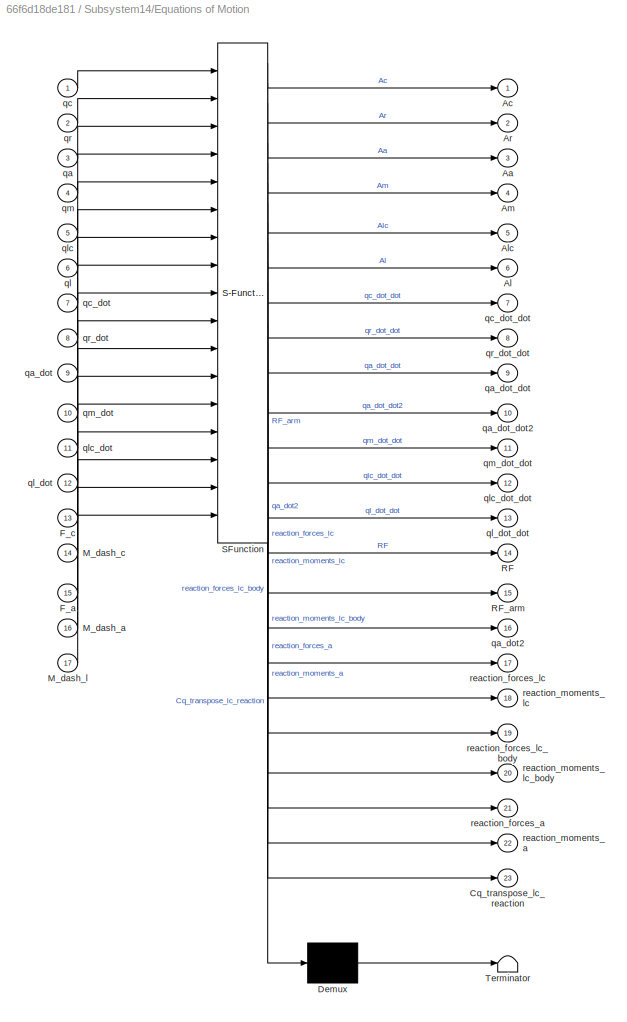
BLOCK [SubSystem] Subsystem14/Equations of Motion
  ErrorFcn = Stateflow.Translate.translate
  MinAlgLoopOccurrences = on
  PermitHierarchicalResolution = ExplicitOnly
  Ports = [17, 23]
  RequestExecContextInheritance = off
  SFBlockType = MATLAB Function
  Variant = off
BLOCK [Demux] Subsystem14/Equations of Motion/ Demux 
  Outputs = 1
  Ports = [1, 1]
BLOCK [S-Function] Subsystem14/Equations of Motion/ SFunction 
  EnableBusSupport = on
  FunctionName = sf_sfun
  PortCounts = [17 24]
  Ports = [17, 24]
  SFunctionDeploymentMode = off
  Tag = Stateflow S-Function constraints_comparison_A_4D_v2 2
BLOCK [Terminator] Subsystem14/Equations of Motion/ Terminator 
BLOCK [Outport] Subsystem14/Equations of Motion/Aa
  IconDisplay = Port number
  Port = 3
BLOCK [Outport] Subsystem14/Equations of Motion/Ac
  IconDisplay = Port number
BLOCK [Outport] Subsystem14/Equations of Motion/Al
  IconDisplay = Port number
  Port = 6
BLOCK [Outport] Subsystem14/Equations of Motion/Alc
  IconDisplay = Port number
  Port = 5
BLOCK [Outport] Subsystem14/Equations of Motion/Am
  IconDisplay = Port number
  Port = 4
BLOCK [Outport] Subsystem14/Equations of Motion/Ar
  IconDisplay = Port number
  Port = 2
BLOCK [Outport] Subsystem14/Equations of Motion/Cq_transpose_lc_reaction
  IconDisplay = Port number
  Port = 23
BLOCK [Inport] Subsystem14/Equations of Motion/F_a
  IconDisplay = Port number
  Port = 15
BLOCK [Inport] Subsystem14/Equations of Motion/F_c
  IconDisplay = Port number
  Port = 13
BLOCK [Inport] Subsystem14/Equations of Motion/M_dash_a
  IconDisplay = Port number
  Port = 16
BLOCK [Inport] Subsystem14/Equations of Motion/M_dash_c
  IconDisplay = Port number
  Port = 14
BLOCK [Inport] Subsystem14/Equations of Motion/M_dash_l
  IconDisplay = Port number
  Port = 17
BLOCK [Outport] Subsystem14/Equations of Motion/RF
  IconDisplay = Port number
  Port = 14
BLOCK [Outport] Subsystem14/Equations of Motion/RF_arm
  IconDisplay = Port number
  Port = 15
BLOCK [Inport] Subsystem14/Equations of Motion/qa
  IconDisplay = Port number
  Port = 3
BLOCK [Inport] Subsystem14/Equations of Motion/qa_dot
  IconDisplay = Port number
  Port = 9
BLOCK [Outport] Subsystem14/Equations of Motion/qa_dot2
  IconDisplay = Port number
  Port = 16
BLOCK [Outport] Subsystem14/Equations of Motion/qa_dot_dot
  IconDisplay = Port number
  Port = 9
BLOCK [Outport] Subsystem14/Equations of Motion/qa_dot_dot2
  IconDisplay = Port number
  Port = 10
BLOCK [Inport] Subsystem14/Equations of Motion/qc
  IconDisplay = Port number
BLOCK [Inport] Subsystem14/Equations of Motion/qc_dot
  IconDisplay = Port number
  Port = 7
BLOCK [Outport] Subsystem14/Equations of Motion/qc_dot_dot
  IconDisplay = Port number
  Port = 7
BLOCK [Inport] Subsystem14/Equations of Motion/ql
  IconDisplay = Port number
  Port = 6
BLOCK [Inport] Subsystem14/Equations of Motion/ql_dot
  IconDisplay = Port number
  Port = 12
BLOCK [Outport] Subsystem14/Equations of Motion/ql_dot_dot
  IconDisplay = Port number
  Port = 13
BLOCK [Inport] Subsystem14/Equations of Motion/qlc
  IconDisplay = Port number
  Port = 5
BLOCK [Inport] Subsystem14/Equations of Motion/qlc_dot
  IconDisplay = Port number
  Port = 11
BLOCK [Outport] Subsystem14/Equations of Motion/qlc_dot_dot
  IconDisplay = Port number
  Port = 12
BLOCK [Inport] Subsystem14/Equations of Motion/qm
  IconDisplay = Port number
  Port = 4
BLOCK [Inport] Subsystem14/Equations of Motion/qm_dot
  IconDisplay = Port number
  Port = 10
BLOCK [Outport] Subsystem14/Equations of Motion/qm_dot_dot
  IconDisplay = Port number
  Port = 11
BLOCK [Inport] Subsystem14/Equations of Motion/qr
  IconDisplay = Port number
  Port = 2
BLOCK [Inport] Subsystem14/Equations of Motion/qr_dot
  IconDisplay = Port number
  Port = 8
BLOCK [Outport] Subsystem14/Equations of Motion/qr_dot_dot
  IconDisplay = Port number
  Port = 8
BLOCK [Outport] Subsystem14/Equations of Motion/reaction_forces_a
  IconDisplay = Port number
  Port = 21
BLOCK [Outport] Subsystem14/Equations of Motion/reaction_forces_lc
  IconDisplay = Port number
  Port = 17
BLOCK [Outport] Subsystem14/Equations of Motion/reaction_forces_lc_body
  IconDisplay = Port number
  Port = 19
BLOCK [Outport] Subsystem14/Equations of Motion/reaction_moments_a
  IconDisplay = Port number
  Port = 22
BLOCK [Outport] Subsystem14/Equations of Motion/reaction_moments_lc
  IconDisplay = Port number
  Port = 18
BLOCK [Outport] Subsystem14/Equations of Motion/reaction_moments_lc_body
  IconDisplay = Port number
  Port = 20
BLOCK [SubSystem] Subsystem14/Extracting aircraft vertical reaction forces1
  ErrorFcn = Stateflow.Translate.translate
  PermitHierarchicalResolution = ExplicitOnly
  Ports = [1, 1]
  RequestExecContextInheritance = off
  SFBlockType = MATLAB Function
  TreatAsAtomicUnit = on
  Variant = off
BLOCK [Demux] Subsystem14/Extracting aircraft vertical reaction forces1/ Demux 
  Outputs = 1
  Ports = [1, 1]
BLOCK [S-Function] Subsystem14/Extracting aircraft vertical reaction forces1/ SFunction 
  EnableBusSupport = on
  FunctionName = sf_sfun
  PortCounts = [1 2]
  Ports = [1, 2]
  SFunctionDeploymentMode = off
  Tag = Stateflow S-Function constraints_comparison_A_4D_v2 43
BLOCK [Terminator] Subsystem14/Extracting aircraft vertical reaction forces1/ Terminator 
BLOCK [Inport] Subsystem14/Extracting aircraft vertical reaction forces1/RF
  IconDisplay = Port number
BLOCK [Outport] Subsystem14/Extracting aircraft vertical reaction forces1/RF_a
  IconDisplay = Port number
BLOCK [SubSystem] Subsystem14/Extracting position vector 1
  Ports = [1, 1]
  RequestExecContextInheritance = off
  Variant = off
BLOCK [Inport] Subsystem14/Extracting position vector 1/In1
  IconDisplay = Port number
BLOCK [SubSystem] Subsystem14/Extracting position vector 1/MATLAB Function
  ErrorFcn = Stateflow.Translate.translate
  PermitHierarchicalResolution = ExplicitOnly
  Ports = [1, 1]
  RequestExecContextInheritance = off
  SFBlockType = MATLAB Function
  TreatAsAtomicUnit = on
  Variant = off
BLOCK [Demux] Subsystem14/Extracting position vector 1/MATLAB Function/ Demux 
  Outputs = 1
  Ports = [1, 1]
BLOCK [S-Function] Subsystem14/Extracting position vector 1/MATLAB Function/ SFunction 
  EnableBusSupport = on
  FunctionName = sf_sfun
  PortCounts = [1 2]
  Ports = [1, 2]
  SFunctionDeploymentMode = off
  Tag = Stateflow S-Function constraints_comparison_A_4D_v2 8
BLOCK [Terminator] Subsystem14/Extracting position vector 1/MATLAB Function/ Terminator 
BLOCK [Inport] Subsystem14/Extracting position vector 1/MATLAB Function/u
  IconDisplay = Port number
BLOCK [Outport] Subsystem14/Extracting position vector 1/MATLAB Function/y
  IconDisplay = Port number
BLOCK [Outport] Subsystem14/Extracting position vector 1/Out1
  IconDisplay = Port number
BLOCK [SubSystem] Subsystem14/Extracting position vector 2
  Ports = [1, 1]
  RequestExecContextInheritance = off
  Variant = off
BLOCK [SubSystem] Subsystem14/Extracting position vector 2 
  Ports = [1, 1]
  RequestExecContextInheritance = off
  Variant = off
BLOCK [Inport] Subsystem14/Extracting position vector 2 /In1
  IconDisplay = Port number
BLOCK [SubSystem] Subsystem14/Extracting position vector 2 /MATLAB Function
  ErrorFcn = Stateflow.Translate.translate
  PermitHierarchicalResolution = ExplicitOnly
  Ports = [1, 1]
  RequestExecContextInheritance = off
  SFBlockType = MATLAB Function
  TreatAsAtomicUnit = on
  Variant = off
BLOCK [Demux] Subsystem14/Extracting position vector 2 /MATLAB Function/ Demux 
  Outputs = 1
  Ports = [1, 1]
BLOCK [S-Function] Subsystem14/Extracting position vector 2 /MATLAB Function/ SFunction 
  EnableBusSupport = on
  FunctionName = sf_sfun
  PortCounts = [1 2]
  Ports = [1, 2]
  SFunctionDeploymentMode = off
  Tag = Stateflow S-Function constraints_comparison_A_4D_v2 9
BLOCK [Terminator] Subsystem14/Extracting position vector 2 /MATLAB Function/ Terminator 
BLOCK [Inport] Subsystem14/Extracting position vector 2 /MATLAB Function/u
  IconDisplay = Port number
BLOCK [Outport] Subsystem14/Extracting position vector 2 /MATLAB Function/y
  IconDisplay = Port number
BLOCK [Outport] Subsystem14/Extracting position vector 2 /Out1
  IconDisplay = Port number
BLOCK [Inport] Subsystem14/Extracting position vector 2/In1
  IconDisplay = Port number
BLOCK [SubSystem] Subsystem14/Extracting position vector 2/MATLAB Function
  ErrorFcn = Stateflow.Translate.translate
  PermitHierarchicalResolution = ExplicitOnly
  Ports = [1, 1]
  RequestExecContextInheritance = off
  SFBlockType = MATLAB Function
  TreatAsAtomicUnit = on
  Variant = off
BLOCK [Demux] Subsystem14/Extracting position vector 2/MATLAB Function/ Demux 
  Outputs = 1
  Ports = [1, 1]
BLOCK [S-Function] Subsystem14/Extracting position vector 2/MATLAB Function/ SFunction 
  EnableBusSupport = on
  FunctionName = sf_sfun
  PortCounts = [1 2]
  Ports = [1, 2]
  SFunctionDeploymentMode = off
  Tag = Stateflow S-Function constraints_comparison_A_4D_v2 50
BLOCK [Terminator] Subsystem14/Extracting position vector 2/MATLAB Function/ Terminator 
BLOCK [Inport] Subsystem14/Extracting position vector 2/MATLAB Function/u
  IconDisplay = Port number
BLOCK [Outport] Subsystem14/Extracting position vector 2/MATLAB Function/y
  IconDisplay = Port number
BLOCK [Outport] Subsystem14/Extracting position vector 2/Out1
  IconDisplay = Port number
BLOCK [SubSystem] Subsystem14/Extracting position vector 3
  Ports = [1, 1]
  RequestExecContextInheritance = off
  Variant = off
BLOCK [Inport] Subsystem14/Extracting position vector 3/In1
  IconDisplay = Port number
BLOCK [SubSystem] Subsystem14/Extracting position vector 3/MATLAB Function
  ErrorFcn = Stateflow.Translate.translate
  PermitHierarchicalResolution = ExplicitOnly
  Ports = [1, 1]
  RequestExecContextInheritance = off
  SFBlockType = MATLAB Function
  TreatAsAtomicUnit = on
  Variant = off
BLOCK [Demux] Subsystem14/Extracting position vector 3/MATLAB Function/ Demux 
  Outputs = 1
  Ports = [1, 1]
BLOCK [S-Function] Subsystem14/Extracting position vector 3/MATLAB Function/ SFunction 
  EnableBusSupport = on
  FunctionName = sf_sfun
  PortCounts = [1 2]
  Ports = [1, 2]
  SFunctionDeploymentMode = off
  Tag = Stateflow S-Function constraints_comparison_A_4D_v2 10
BLOCK [Terminator] Subsystem14/Extracting position vector 3/MATLAB Function/ Terminator 
BLOCK [Inport] Subsystem14/Extracting position vector 3/MATLAB Function/u
  IconDisplay = Port number
BLOCK [Outport] Subsystem14/Extracting position vector 3/MATLAB Function/y
  IconDisplay = Port number
BLOCK [Outport] Subsystem14/Extracting position vector 3/Out1
  IconDisplay = Port number
BLOCK [SubSystem] Subsystem14/Extracting position vector 4
  Ports = [1, 1]
  RequestExecContextInheritance = off
  Variant = off
BLOCK [Inport] Subsystem14/Extracting position vector 4/In1
  IconDisplay = Port number
BLOCK [SubSystem] Subsystem14/Extracting position vector 4/MATLAB Function
  ErrorFcn = Stateflow.Translate.translate
  PermitHierarchicalResolution = ExplicitOnly
  Ports = [1, 1]
  RequestExecContextInheritance = off
  SFBlockType = MATLAB Function
  TreatAsAtomicUnit = on
  Variant = off
BLOCK [Demux] Subsystem14/Extracting position vector 4/MATLAB Function/ Demux 
  Outputs = 1
  Ports = [1, 1]
BLOCK [S-Function] Subsystem14/Extracting position vector 4/MATLAB Function/ SFunction 
  EnableBusSupport = on
  FunctionName = sf_sfun
  PortCounts = [1 2]
  Ports = [1, 2]
  SFunctionDeploymentMode = off
  Tag = Stateflow S-Function constraints_comparison_A_4D_v2 5
BLOCK [Terminator] Subsystem14/Extracting position vector 4/MATLAB Function/ Terminator 
BLOCK [Inport] Subsystem14/Extracting position vector 4/MATLAB Function/u
  IconDisplay = Port number
BLOCK [Outport] Subsystem14/Extracting position vector 4/MATLAB Function/y
  IconDisplay = Port number
BLOCK [Outport] Subsystem14/Extracting position vector 4/Out1
  IconDisplay = Port number
BLOCK [SubSystem] Subsystem14/Extracting position vector 5
  Ports = [1, 1]
  RequestExecContextInheritance = off
  Variant = off
BLOCK [Inport] Subsystem14/Extracting position vector 5/In1
  IconDisplay = Port number
BLOCK [SubSystem] Subsystem14/Extracting position vector 5/MATLAB Function
  ErrorFcn = Stateflow.Translate.translate
  PermitHierarchicalResolution = ExplicitOnly
  Ports = [1, 1]
  RequestExecContextInheritance = off
  SFBlockType = MATLAB Function
  TreatAsAtomicUnit = on
  Variant = off
BLOCK [Demux] Subsystem14/Extracting position vector 5/MATLAB Function/ Demux 
  Outputs = 1
  Ports = [1, 1]
BLOCK [S-Function] Subsystem14/Extracting position vector 5/MATLAB Function/ SFunction 
  EnableBusSupport = on
  FunctionName = sf_sfun
  PortCounts = [1 2]
  Ports = [1, 2]
  SFunctionDeploymentMode = off
  Tag = Stateflow S-Function constraints_comparison_A_4D_v2 51
BLOCK [Terminator] Subsystem14/Extracting position vector 5/MATLAB Function/ Terminator 
BLOCK [Inport] Subsystem14/Extracting position vector 5/MATLAB Function/u
  IconDisplay = Port number
BLOCK [Outport] Subsystem14/Extracting position vector 5/MATLAB Function/y
  IconDisplay = Port number
BLOCK [Outport] Subsystem14/Extracting position vector 5/Out1
  IconDisplay = Port number
BLOCK [Display] Subsystem14/F
  Decimation = 1
  Ports = [1]
BLOCK [Display] Subsystem14/FF
  Decimation = 1
  Ports = [1]
BLOCK [Fcn] Subsystem14/Fcn
  Expr = u/9.81
BLOCK [Fcn] Subsystem14/Fcn1
  Expr = u/9.81
BLOCK [Fcn] Subsystem14/Fcn2
  Expr = u/9.81
BLOCK [Display] Subsystem14/Friction_estimate
  Decimation = 1
  Ports = [1]
BLOCK [Display] Subsystem14/Friction_moment
  Decimation = 1
  Ports = [1]
BLOCK [Outport] Subsystem14/GX(deg//s)
  IconDisplay = Port number
BLOCK [Outport] Subsystem14/GY(deg//s)
  IconDisplay = Port number
  Port = 2
BLOCK [Outport] Subsystem14/GZ(deg//s)
  IconDisplay = Port number
  Port = 3
BLOCK [Gain] Subsystem14/Gain
  Gain = -1
  OutDataTypeStr = Inherit: Inherit via internal rule
  ParamDataTypeStr = Inherit: Inherit via internal rule
  SaturateOnIntegerOverflow = off
BLOCK [Gain] Subsystem14/Gain10
  OutDataTypeStr = Inherit: Inherit via internal rule
  ParamDataTypeStr = Inherit: Inherit via internal rule
  SaturateOnIntegerOverflow = off
BLOCK [Gain] Subsystem14/Gain11
  Gain = -1
  OutDataTypeStr = Inherit: Inherit via internal rule
  ParamDataTypeStr = Inherit: Inherit via internal rule
  SaturateOnIntegerOverflow = off
BLOCK [Gain] Subsystem14/Gain12
  Gain = 0
  OutDataTypeStr = Inherit: Inherit via internal rule
  ParamDataTypeStr = Inherit: Inherit via internal rule
  SaturateOnIntegerOverflow = off
BLOCK [Gain] Subsystem14/Gain13
  Gain = 0
  OutDataTypeStr = Inherit: Inherit via internal rule
  ParamDataTypeStr = Inherit: Inherit via internal rule
  SaturateOnIntegerOverflow = off
BLOCK [Gain] Subsystem14/Gain14
  Gain = -1
  OutDataTypeStr = Inherit: Inherit via internal rule
  ParamDataTypeStr = Inherit: Inherit via internal rule
  SaturateOnIntegerOverflow = off
BLOCK [Gain] Subsystem14/Gain17
  OutDataTypeStr = Inherit: Inherit via internal rule
  ParamDataTypeStr = Inherit: Inherit via internal rule
  SaturateOnIntegerOverflow = off
BLOCK [Gain] Subsystem14/Gain19
  OutDataTypeStr = Inherit: Inherit via internal rule
  ParamDataTypeStr = Inherit: Inherit via internal rule
  SaturateOnIntegerOverflow = off
BLOCK [Gain] Subsystem14/Gain20
  OutDataTypeStr = Inherit: Inherit via internal rule
  ParamDataTypeStr = Inherit: Inherit via internal rule
  SaturateOnIntegerOverflow = off
BLOCK [Gain] Subsystem14/Gain21
  OutDataTypeStr = Inherit: Inherit via internal rule
  ParamDataTypeStr = Inherit: Inherit via internal rule
  SaturateOnIntegerOverflow = off
BLOCK [Gain] Subsystem14/Gain22
  OutDataTypeStr = Inherit: Inherit via internal rule
  ParamDataTypeStr = Inherit: Inherit via internal rule
  SaturateOnIntegerOverflow = off
BLOCK [Gain] Subsystem14/Gain23
  OutDataTypeStr = Inherit: Inherit via internal rule
  ParamDataTypeStr = Inherit: Inherit via internal rule
  SaturateOnIntegerOverflow = off
BLOCK [Gain] Subsystem14/Gain24
  Commented = on
  Gain = dail
  OutDataTypeStr = Inherit: Inherit via internal rule
  ParamDataTypeStr = Inherit: Inherit via internal rule
  SaturateOnIntegerOverflow = off
BLOCK [Gain] Subsystem14/Gain25
  Commented = on
  Gain = dele
  OutDataTypeStr = Inherit: Inherit via internal rule
  ParamDataTypeStr = Inherit: Inherit via internal rule
  SaturateOnIntegerOverflow = off
BLOCK [Gain] Subsystem14/Gain27
  Commented = on
  Gain = drud
  OutDataTypeStr = Inherit: Inherit via internal rule
  ParamDataTypeStr = Inherit: Inherit via internal rule
  SaturateOnIntegerOverflow = off
BLOCK [Gain] Subsystem14/Gain28
  Gain = -1
  OutDataTypeStr = Inherit: Inherit via internal rule
  ParamDataTypeStr = Inherit: Inherit via internal rule
  SaturateOnIntegerOverflow = off
BLOCK [Gain] Subsystem14/Gain3
  Gain = -1
  OutDataTypeStr = Inherit: Inherit via internal rule
  ParamDataTypeStr = Inherit: Inherit via internal rule
  SaturateOnIntegerOverflow = off
BLOCK [Gain] Subsystem14/Gain30
  OutDataTypeStr = Inherit: Inherit via internal rule
  ParamDataTypeStr = Inherit: Inherit via internal rule
  SaturateOnIntegerOverflow = off
BLOCK [Gain] Subsystem14/Gain4
  OutDataTypeStr = Inherit: Inherit via internal rule
  ParamDataTypeStr = Inherit: Inherit via internal rule
  SaturateOnIntegerOverflow = off
BLOCK [Gain] Subsystem14/Gain6
  Gain = -1
  OutDataTypeStr = Inherit: Inherit via internal rule
  ParamDataTypeStr = Inherit: Inherit via internal rule
  SaturateOnIntegerOverflow = off
BLOCK [Gain] Subsystem14/Gain7
  Gain = -1
  OutDataTypeStr = Inherit: Inherit via internal rule
  ParamDataTypeStr = Inherit: Inherit via internal rule
  SaturateOnIntegerOverflow = off
BLOCK [Gain] Subsystem14/Gain8
  OutDataTypeStr = Inherit: Inherit via internal rule
  ParamDataTypeStr = Inherit: Inherit via internal rule
  SaturateOnIntegerOverflow = off
BLOCK [Gain] Subsystem14/Gain9
  OutDataTypeStr = Inherit: Inherit via internal rule
  ParamDataTypeStr = Inherit: Inherit via internal rule
  SaturateOnIntegerOverflow = off
BLOCK [Goto] Subsystem14/Goto
  GotoTag = animation_cmp_rotation
  TagVisibility = global
BLOCK [Goto] Subsystem14/Goto1
  GotoTag = animation_arm_rotation
  TagVisibility = global
BLOCK [Goto] Subsystem14/Goto11
  GotoTag = animation_load_cell_translation
  TagVisibility = global
BLOCK [Goto] Subsystem14/Goto12
  GotoTag = animation_link_translation
  TagVisibility = global
BLOCK [Goto] Subsystem14/Goto13
  GotoTag = animation_load_cell_rotation
  TagVisibility = global
BLOCK [Goto] Subsystem14/Goto14
  GotoTag = animation_link_rotation
  TagVisibility = global
BLOCK [Goto] Subsystem14/Goto2
  GotoTag = animation_acm_rotation
  TagVisibility = global
BLOCK [Goto] Subsystem14/Goto3
  GotoTag = animation_mass_rotation
  TagVisibility = global
BLOCK [Goto] Subsystem14/Goto4
  GotoTag = animation_cmp_translation
  TagVisibility = global
BLOCK [Goto] Subsystem14/Goto5
  GotoTag = animation_arm_translation
  TagVisibility = global
BLOCK [Goto] Subsystem14/Goto6
  GotoTag = animation_acm_translation
  TagVisibility = global
BLOCK [Goto] Subsystem14/Goto7
  GotoTag = animation_mass_translation
  TagVisibility = global
BLOCK [SubSystem] Subsystem14/HHIRM
  ErrorFcn = Stateflow.Translate.translate
  MinAlgLoopOccurrences = on
  PermitHierarchicalResolution = ExplicitOnly
  Ports = [11, 5]
  RequestExecContextInheritance = off
  SFBlockType = MATLAB Function
  Variant = off
BLOCK [Demux] Subsystem14/HHIRM/ Demux 
  Outputs = 1
  Ports = [1, 1]
BLOCK [S-Function] Subsystem14/HHIRM/ SFunction 
  EnableBusSupport = on
  FunctionName = sf_sfun
  PortCounts = [11 6]
  Ports = [11, 6]
  SFunctionDeploymentMode = off
  Tag = Stateflow S-Function constraints_comparison_A_4D_v2 60
BLOCK [Terminator] Subsystem14/HHIRM/ Terminator 
BLOCK [Inport] Subsystem14/HHIRM/A_b2i
  IconDisplay = Port number
  Port = 10
BLOCK [Inport] Subsystem14/HHIRM/A_b2w
  IconDisplay = Port number
  Port = 9
BLOCK [Outport] Subsystem14/HHIRM/CX
  IconDisplay = Port number
  Port = 3
BLOCK [Outport] Subsystem14/HHIRM/CY
  IconDisplay = Port number
  Port = 4
BLOCK [Outport] Subsystem14/HHIRM/CZ
  IconDisplay = Port number
  Port = 5
BLOCK [Outport] Subsystem14/HHIRM/Fa
  IconDisplay = Port number
BLOCK [Outport] Subsystem14/HHIRM/M_dash_a
  IconDisplay = Port number
  Port = 2
BLOCK [Inport] Subsystem14/HHIRM/V
  IconDisplay = Port number
  Port = 11
BLOCK [Inport] Subsystem14/HHIRM/alpha
  IconDisplay = Port number
BLOCK [Inport] Subsystem14/HHIRM/beta
  IconDisplay = Port number
  Port = 2
BLOCK [Inport] Subsystem14/HHIRM/dail
  IconDisplay = Port number
  Port = 6
BLOCK [Inport] Subsystem14/HHIRM/dele
  IconDisplay = Port number
  Port = 7
BLOCK [Inport] Subsystem14/HHIRM/drud
  IconDisplay = Port number
  Port = 8
BLOCK [Inport] Subsystem14/HHIRM/p
  IconDisplay = Port number
  Port = 3
BLOCK [Inport] Subsystem14/HHIRM/q
  IconDisplay = Port number
  Port = 4
BLOCK [Inport] Subsystem14/HHIRM/r
  IconDisplay = Port number
  Port = 5
BLOCK [SubSystem] Subsystem14/Hawk servo model
  Ports = [1, 1]
  RequestExecContextInheritance = off
  Variant = off
BLOCK [Inport] Subsystem14/Hawk servo model/Command
  IconDisplay = Port number
BLOCK [Gain] Subsystem14/Hawk servo model/Mot
  Gain = K2_svo_acm
  OutDataTypeStr = Inherit: Inherit via internal rule
  ParamDataTypeStr = Inherit: Inherit via internal rule
  SaturateOnIntegerOverflow = off
BLOCK [Outport] Subsystem14/Hawk servo model/Response
  IconDisplay = Port number
BLOCK [Saturate] Subsystem14/Hawk servo model/Saturation
  InputPortMap = u0
  LowerLimit = -max_rate_sat_acm
  Ports = [1, 1]
  UpperLimit = max_rate_sat_acm
BLOCK [Sum] Subsystem14/Hawk servo model/Sum
  IconShape = round
  InputSameDT = off
  Inputs = |+-
  OutDataTypeStr = Inherit: Inherit via internal rule
  Ports = [2, 1]
  SaturateOnIntegerOverflow = off
BLOCK [Sum] Subsystem14/Hawk servo model/Sum1
  IconShape = round
  InputSameDT = off
  Inputs = |+-
  OutDataTypeStr = Inherit: Inherit via internal rule
  Ports = [2, 1]
  SaturateOnIntegerOverflow = off
BLOCK [Gain] Subsystem14/Hawk servo model/Svo
  Gain = K1_svo_acm
  OutDataTypeStr = Inherit: Inherit via internal rule
  ParamDataTypeStr = Inherit: Inherit via internal rule
  SaturateOnIntegerOverflow = off
BLOCK [SubSystem] Subsystem14/Hawk servo model/kinematic
  Ports = [1, 2]
  RequestExecContextInheritance = off
  Variant = off
BLOCK [Reference] Subsystem14/Hawk servo model/kinematic/Angle Conversion  REF=aerolibconvert2/Angle Conversion
  Ports = [1, 1]
  SourceBlock = aerolibconvert2/Angle Conversion
  SourceType = Angle Conversion
BLOCK [Reference] Subsystem14/Hawk servo model/kinematic/Compare To Zero  REF=simulink/Logic and Bit
Operations/Compare
To Zero
  Ports = [1, 1]
  SourceBlock = simulink/Logic and Bit\nOperations/Compare\nTo Zero
  SourceType = Compare To Zero
BLOCK [Reference] Subsystem14/Hawk servo model/kinematic/Compare To Zero1  REF=simulink/Logic and Bit
Operations/Compare
To Zero
  Ports = [1, 1]
  SourceBlock = simulink/Logic and Bit\nOperations/Compare\nTo Zero
  SourceType = Compare To Zero
BLOCK [Reference] Subsystem14/Hawk servo model/kinematic/Compare To Zero2  REF=simulink/Logic and Bit
Operations/Compare
To Zero
  Ports = [1, 1]
  SourceBlock = simulink/Logic and Bit\nOperations/Compare\nTo Zero
  SourceType = Compare To Zero
BLOCK [Reference] Subsystem14/Hawk servo model/kinematic/Compare To Zero3  REF=simulink/Logic and Bit
Operations/Compare
To Zero
  Ports = [1, 1]
  SourceBlock = simulink/Logic and Bit\nOperations/Compare\nTo Zero
  SourceType = Compare To Zero
BLOCK [Constant] Subsystem14/Hawk servo model/kinematic/Linear aero model trim (higher accuracy)
  Value = 1.1658924813874*pi/180
BLOCK [Constant] Subsystem14/Hawk servo model/kinematic/Linear aero model trim (higher accuracy)1
  Value = 4.4011
BLOCK [Logic] Subsystem14/Hawk servo model/kinematic/Logical Operator
  AllPortsSameDT = off
  Operator = OR
  OutDataTypeStr = boolean
  Ports = [2, 1]
BLOCK [Logic] Subsystem14/Hawk servo model/kinematic/Logical Operator1
  AllPortsSameDT = off
  OutDataTypeStr = boolean
  Ports = [2, 1]
BLOCK [Logic] Subsystem14/Hawk servo model/kinematic/Logical Operator2
  AllPortsSameDT = off
  OutDataTypeStr = boolean
  Ports = [2, 1]
BLOCK [Outport] Subsystem14/Hawk servo model/kinematic/de
  IconDisplay = Port number
BLOCK [Outport] Subsystem14/Hawk servo model/kinematic/de_dot
  IconDisplay = Port number
  Port = 2
BLOCK [Constant] Subsystem14/Hawk servo model/kinematic/ini_acm_de_deg
  Value = ini_acm_de_deg
BLOCK [Integrator] Subsystem14/Hawk servo model/kinematic/pos
  InitialConditionSource = external
  LimitOutput = on
  LowerSaturationLimit = -max_defl_sat_acm
  Ports = [2, 2]
  ShowSaturationPort = on
  UpperSaturationLimit = max_defl_sat_acm
  ZeroCross = off
BLOCK [Integrator] Subsystem14/Hawk servo model/kinematic/rate
  ExternalReset = level hold
  LowerSaturationLimit = -max_rate_sat
  Ports = [2, 1]
  UpperSaturationLimit = max_rate_sat
  ZeroCross = off
BLOCK [Inport] Subsystem14/Hawk servo model/kinematic/rate_dot
  IconDisplay = Port number
BLOCK [InitialCondition] Subsystem14/IC1
  Value = 0
BLOCK [InitialCondition] Subsystem14/IC2
  Value = 0
BLOCK [InitialCondition] Subsystem14/IC3
  Value = 0
BLOCK [InitialCondition] Subsystem14/IC4
  Value = 0
BLOCK [Integrator] Subsystem14/Integrator
  Ports = [1, 1]
BLOCK [Integrator] Subsystem14/Integrator1
  Ports = [1, 1]
BLOCK [Constant] Subsystem14/L
  Commented = on
  Value = La
BLOCK [SubSystem] Subsystem14/Load cell reading to aircraft reaction forces
  ErrorFcn = Stateflow.Translate.translate
  PermitHierarchicalResolution = ExplicitOnly
  Ports = [5, 5]
  RequestExecContextInheritance = off
  SFBlockType = MATLAB Function
  TreatAsAtomicUnit = on
  Variant = off
BLOCK [Demux] Subsystem14/Load cell reading to aircraft reaction forces/ Demux 
  Outputs = 1
  Ports = [1, 1]
BLOCK [S-Function] Subsystem14/Load cell reading to aircraft reaction forces/ SFunction 
  EnableBusSupport = on
  FunctionName = sf_sfun
  PortCounts = [5 6]
  Ports = [5, 6]
  SFunctionDeploymentMode = off
  Tag = Stateflow S-Function constraints_comparison_A_4D_v2 56
BLOCK [Terminator] Subsystem14/Load cell reading to aircraft reaction forces/ Terminator 
BLOCK [Outport] Subsystem14/Load cell reading to aircraft reaction forces/F_acm
  IconDisplay = Port number
BLOCK [Outport] Subsystem14/Load cell reading to aircraft reaction forces/Friction_estimate
  IconDisplay = Port number
  Port = 5
BLOCK [Outport] Subsystem14/Load cell reading to aircraft reaction forces/M
  IconDisplay = Port number
  Port = 4
BLOCK [Inport] Subsystem14/Load cell reading to aircraft reaction forces/M_reading
  IconDisplay = Port number
  Port = 5
BLOCK [Outport] Subsystem14/Load cell reading to aircraft reaction forces/R
  IconDisplay = Port number
  Port = 2
BLOCK [Outport] Subsystem14/Load cell reading to aircraft reaction forces/R_a
  IconDisplay = Port number
  Port = 3
BLOCK [Inport] Subsystem14/Load cell reading to aircraft reaction forces/R_reading
  IconDisplay = Port number
  Port = 4
BLOCK [Inport] Subsystem14/Load cell reading to aircraft reaction forces/theta_r
  IconDisplay = Port number
BLOCK [Inport] Subsystem14/Load cell reading to aircraft reaction forces/theta_r_dot
  IconDisplay = Port number
  Port = 2
BLOCK [Inport] Subsystem14/Load cell reading to aircraft reaction forces/theta_r_dot_dot
  IconDisplay = Port number
  Port = 3
BLOCK [Display] Subsystem14/M
  Decimation = 1
  Ports = [1]
BLOCK [Constant] Subsystem14/M1
  Commented = on
  Value = Ma
BLOCK [SubSystem] Subsystem14/MATLAB Function1
  ErrorFcn = Stateflow.Translate.translate
  PermitHierarchicalResolution = ExplicitOnly
  Ports = [1, 1]
  RequestExecContextInheritance = off
  SFBlockType = MATLAB Function
  TreatAsAtomicUnit = on
  Variant = off
BLOCK [Demux] Subsystem14/MATLAB Function1/ Demux 
  Outputs = 1
  Ports = [1, 1]
BLOCK [S-Function] Subsystem14/MATLAB Function1/ SFunction 
  EnableBusSupport = on
  FunctionName = sf_sfun
  PortCounts = [1 2]
  Ports = [1, 2]
  SFunctionDeploymentMode = off
  Tag = Stateflow S-Function constraints_comparison_A_4D_v2 1
BLOCK [Terminator] Subsystem14/MATLAB Function1/ Terminator 
BLOCK [Inport] Subsystem14/MATLAB Function1/A2
  IconDisplay = Port number
BLOCK [Outport] Subsystem14/MATLAB Function1/A22
  IconDisplay = Port number
BLOCK [SubSystem] Subsystem14/MATLAB Function10
  ErrorFcn = Stateflow.Translate.translate
  PermitHierarchicalResolution = ExplicitOnly
  Ports = [1, 1]
  RequestExecContextInheritance = off
  SFBlockType = MATLAB Function
  TreatAsAtomicUnit = on
  Variant = off
BLOCK [Demux] Subsystem14/MATLAB Function10/ Demux 
  Outputs = 1
  Ports = [1, 1]
BLOCK [S-Function] Subsystem14/MATLAB Function10/ SFunction 
  EnableBusSupport = on
  FunctionName = sf_sfun
  PortCounts = [1 2]
  Ports = [1, 2]
  SFunctionDeploymentMode = off
  Tag = Stateflow S-Function constraints_comparison_A_4D_v2 53
BLOCK [Terminator] Subsystem14/MATLAB Function10/ Terminator 
BLOCK [Inport] Subsystem14/MATLAB Function10/A3
  IconDisplay = Port number
BLOCK [Outport] Subsystem14/MATLAB Function10/A33
  IconDisplay = Port number
BLOCK [SubSystem] Subsystem14/MATLAB Function2
  ErrorFcn = Stateflow.Translate.translate
  PermitHierarchicalResolution = ExplicitOnly
  Ports = [1, 1]
  RequestExecContextInheritance = off
  SFBlockType = MATLAB Function
  TreatAsAtomicUnit = on
  Variant = off
BLOCK [Demux] Subsystem14/MATLAB Function2/ Demux 
  Outputs = 1
  Ports = [1, 1]
BLOCK [S-Function] Subsystem14/MATLAB Function2/ SFunction 
  EnableBusSupport = on
  FunctionName = sf_sfun
  PortCounts = [1 2]
  Ports = [1, 2]
  SFunctionDeploymentMode = off
  Tag = Stateflow S-Function constraints_comparison_A_4D_v2 3
BLOCK [Terminator] Subsystem14/MATLAB Function2/ Terminator 
BLOCK [Inport] Subsystem14/MATLAB Function2/A1
  IconDisplay = Port number
BLOCK [Outport] Subsystem14/MATLAB Function2/A11
  IconDisplay = Port number
BLOCK [SubSystem] Subsystem14/MATLAB Function3
  ErrorFcn = Stateflow.Translate.translate
  MinAlgLoopOccurrences = on
  PermitHierarchicalResolution = ExplicitOnly
  Ports = [4, 7]
  RequestExecContextInheritance = off
  SFBlockType = MATLAB Function
  Variant = off
BLOCK [Demux] Subsystem14/MATLAB Function3/ Demux 
  Outputs = 1
  Ports = [1, 1]
BLOCK [S-Function] Subsystem14/MATLAB Function3/ SFunction 
  EnableBusSupport = on
  FunctionName = sf_sfun
  PortCounts = [4 8]
  Ports = [4, 8]
  SFunctionDeploymentMode = off
  Tag = Stateflow S-Function constraints_comparison_A_4D_v2 4
BLOCK [Terminator] Subsystem14/MATLAB Function3/ Terminator 
BLOCK [Outport] Subsystem14/MATLAB Function3/V0
  IconDisplay = Port number
BLOCK [Outport] Subsystem14/MATLAB Function3/Va
  IconDisplay = Port number
  Port = 6
BLOCK [Inport] Subsystem14/MATLAB Function3/Vt
  IconDisplay = Port number
  Port = 4
BLOCK [Outport] Subsystem14/MATLAB Function3/alpha
  IconDisplay = Port number
  Port = 2
BLOCK [Outport] Subsystem14/MATLAB Function3/beta
  IconDisplay = Port number
  Port = 3
BLOCK [Outport] Subsystem14/MATLAB Function3/q
  IconDisplay = Port number
  Port = 5
BLOCK [Inport] Subsystem14/MATLAB Function3/qa
  IconDisplay = Port number
BLOCK [Inport] Subsystem14/MATLAB Function3/qa_dot
  IconDisplay = Port number
  Port = 2
BLOCK [Inport] Subsystem14/MATLAB Function3/qa_dot_dot
  IconDisplay = Port number
  Port = 3
BLOCK [Outport] Subsystem14/MATLAB Function3/qa_wind
  IconDisplay = Port number
  Port = 7
BLOCK [Outport] Subsystem14/MATLAB Function3/w_dot
  IconDisplay = Port number
  Port = 4
BLOCK [SubSystem] Subsystem14/MATLAB Function4
  ErrorFcn = Stateflow.Translate.translate
  PermitHierarchicalResolution = ExplicitOnly
  Ports = [1, 1]
  RequestExecContextInheritance = off
  SFBlockType = MATLAB Function
  TreatAsAtomicUnit = on
  Variant = off
BLOCK [Demux] Subsystem14/MATLAB Function4/ Demux 
  Outputs = 1
  Ports = [1, 1]
BLOCK [S-Function] Subsystem14/MATLAB Function4/ SFunction 
  EnableBusSupport = on
  FunctionName = sf_sfun
  PortCounts = [1 2]
  Ports = [1, 2]
  SFunctionDeploymentMode = off
  Tag = Stateflow S-Function constraints_comparison_A_4D_v2 11
BLOCK [Terminator] Subsystem14/MATLAB Function4/ Terminator 
BLOCK [Inport] Subsystem14/MATLAB Function4/q1
  IconDisplay = Port number
BLOCK [Outport] Subsystem14/MATLAB Function4/q2
  IconDisplay = Port number
BLOCK [SubSystem] Subsystem14/MATLAB Function5
  ErrorFcn = Stateflow.Translate.translate
  MinAlgLoopOccurrences = on
  PermitHierarchicalResolution = ExplicitOnly
  Ports = [5, 1]
  RequestExecContextInheritance = off
  SFBlockType = MATLAB Function
  Variant = off
BLOCK [Demux] Subsystem14/MATLAB Function5/ Demux 
  Outputs = 1
  Ports = [1, 1]
BLOCK [S-Function] Subsystem14/MATLAB Function5/ SFunction 
  EnableBusSupport = on
  FunctionName = sf_sfun
  PortCounts = [5 2]
  Ports = [5, 2]
  SFunctionDeploymentMode = off
  Tag = Stateflow S-Function constraints_comparison_A_4D_v2 64
BLOCK [Terminator] Subsystem14/MATLAB Function5/ Terminator 
BLOCK [Inport] Subsystem14/MATLAB Function5/Vt
  IconDisplay = Port number
  Port = 3
BLOCK [Outport] Subsystem14/MATLAB Function5/input
  IconDisplay = Port number
BLOCK [Inport] Subsystem14/MATLAB Function5/qc
  IconDisplay = Port number
BLOCK [Inport] Subsystem14/MATLAB Function5/qc_dot
  IconDisplay = Port number
  Port = 2
BLOCK [Inport] Subsystem14/MATLAB Function5/rotation_angles
  IconDisplay = Port number
  Port = 4
BLOCK [Inport] Subsystem14/MATLAB Function5/s
  IconDisplay = Port number
  Port = 5
BLOCK [SubSystem] Subsystem14/MATLAB Function6
  ErrorFcn = Stateflow.Translate.translate
  PermitHierarchicalResolution = ExplicitOnly
  Ports = [1, 1]
  RequestExecContextInheritance = off
  SFBlockType = MATLAB Function
  TreatAsAtomicUnit = on
  Variant = off
BLOCK [Demux] Subsystem14/MATLAB Function6/ Demux 
  Outputs = 1
  Ports = [1, 1]
BLOCK [S-Function] Subsystem14/MATLAB Function6/ SFunction 
  EnableBusSupport = on
  FunctionName = sf_sfun
  PortCounts = [1 2]
  Ports = [1, 2]
  SFunctionDeploymentMode = off
  Tag = Stateflow S-Function constraints_comparison_A_4D_v2 7
BLOCK [Terminator] Subsystem14/MATLAB Function6/ Terminator 
BLOCK [Inport] Subsystem14/MATLAB Function6/A3
  IconDisplay = Port number
BLOCK [Outport] Subsystem14/MATLAB Function6/A33
  IconDisplay = Port number
BLOCK [SubSystem] Subsystem14/MATLAB Function7
  ErrorFcn = Stateflow.Translate.translate
  MinAlgLoopOccurrences = on
  PermitHierarchicalResolution = ExplicitOnly
  Ports = [4, 7]
  RequestExecContextInheritance = off
  SFBlockType = MATLAB Function
  Variant = off
BLOCK [Demux] Subsystem14/MATLAB Function7/ Demux 
  Outputs = 1
  Ports = [1, 1]
BLOCK [S-Function] Subsystem14/MATLAB Function7/ SFunction 
  EnableBusSupport = on
  FunctionName = sf_sfun
  PortCounts = [4 8]
  Ports = [4, 8]
  SFunctionDeploymentMode = off
  Tag = Stateflow S-Function constraints_comparison_A_4D_v2 16
BLOCK [Terminator] Subsystem14/MATLAB Function7/ Terminator 
BLOCK [Outport] Subsystem14/MATLAB Function7/V_t
  IconDisplay = Port number
BLOCK [Outport] Subsystem14/MATLAB Function7/Vc
  IconDisplay = Port number
  Port = 6
BLOCK [Inport] Subsystem14/MATLAB Function7/Vt
  IconDisplay = Port number
  Port = 4
BLOCK [Outport] Subsystem14/MATLAB Function7/omega_dashc_dot
  IconDisplay = Port number
  Port = 7
BLOCK [Outport] Subsystem14/MATLAB Function7/p
  IconDisplay = Port number
  Port = 3
BLOCK [Outport] Subsystem14/MATLAB Function7/q
  IconDisplay = Port number
  Port = 4
BLOCK [Inport] Subsystem14/MATLAB Function7/qc
  IconDisplay = Port number
BLOCK [Inport] Subsystem14/MATLAB Function7/qc_dot
  IconDisplay = Port number
  Port = 2
BLOCK [Inport] Subsystem14/MATLAB Function7/qc_dot_dot
  IconDisplay = Port number
  Port = 3
BLOCK [Outport] Subsystem14/MATLAB Function7/r
  IconDisplay = Port number
  Port = 5
BLOCK [Outport] Subsystem14/MATLAB Function7/theta_rig
  IconDisplay = Port number
  Port = 2
BLOCK [SubSystem] Subsystem14/MATLAB Function8
  ErrorFcn = Stateflow.Translate.translate
  PermitHierarchicalResolution = ExplicitOnly
  Ports = [1, 1]
  RequestExecContextInheritance = off
  SFBlockType = MATLAB Function
  TreatAsAtomicUnit = on
  Variant = off
BLOCK [Demux] Subsystem14/MATLAB Function8/ Demux 
  Outputs = 1
  Ports = [1, 1]
BLOCK [S-Function] Subsystem14/MATLAB Function8/ SFunction 
  EnableBusSupport = on
  FunctionName = sf_sfun
  PortCounts = [1 2]
  Ports = [1, 2]
  SFunctionDeploymentMode = off
  Tag = Stateflow S-Function constraints_comparison_A_4D_v2 18
BLOCK [Terminator] Subsystem14/MATLAB Function8/ Terminator 
BLOCK [Inport] Subsystem14/MATLAB Function8/A3
  IconDisplay = Port number
BLOCK [Outport] Subsystem14/MATLAB Function8/A33
  IconDisplay = Port number
BLOCK [SubSystem] Subsystem14/MATLAB Function9
  ErrorFcn = Stateflow.Translate.translate
  PermitHierarchicalResolution = ExplicitOnly
  Ports = [1, 1]
  RequestExecContextInheritance = off
  SFBlockType = MATLAB Function
  TreatAsAtomicUnit = on
  Variant = off
BLOCK [Demux] Subsystem14/MATLAB Function9/ Demux 
  Outputs = 1
  Ports = [1, 1]
BLOCK [S-Function] Subsystem14/MATLAB Function9/ SFunction 
  EnableBusSupport = on
  FunctionName = sf_sfun
  PortCounts = [1 2]
  Ports = [1, 2]
  SFunctionDeploymentMode = off
  Tag = Stateflow S-Function constraints_comparison_A_4D_v2 52
BLOCK [Terminator] Subsystem14/MATLAB Function9/ Terminator 
BLOCK [Inport] Subsystem14/MATLAB Function9/A3
  IconDisplay = Port number
BLOCK [Outport] Subsystem14/MATLAB Function9/A33
  IconDisplay = Port number
BLOCK [Display] Subsystem14/MM
  Decimation = 1
  Ports = [1]
BLOCK [ManualSwitch] Subsystem14/Manual Switch1
  CurrentSetting = 0
BLOCK [Mux] Subsystem14/Mux
  DisplayOption = bar
  Inputs = 3
  Ports = [3, 1]
BLOCK [Mux] Subsystem14/Mux1
  DisplayOption = bar
  Inputs = 2
  Ports = [2, 1]
BLOCK [Mux] Subsystem14/Mux10
  DisplayOption = bar
  Inputs = 3
  Ports = [3, 1]
BLOCK [Mux] Subsystem14/Mux11
  DisplayOption = bar
  Ports = [4, 1]
BLOCK [Mux] Subsystem14/Mux12
  DisplayOption = bar
  Inputs = 3
  Ports = [3, 1]
BLOCK [Mux] Subsystem14/Mux13
  DisplayOption = bar
  Inputs = 3
  Ports = [3, 1]
BLOCK [Mux] Subsystem14/Mux14
  DisplayOption = bar
  Ports = [4, 1]
BLOCK [Mux] Subsystem14/Mux15
  DisplayOption = bar
  Inputs = 3
  Ports = [3, 1]
BLOCK [Mux] Subsystem14/Mux2
  DisplayOption = bar
  Inputs = 3
  Ports = [3, 1]
BLOCK [Mux] Subsystem14/Mux3
  DisplayOption = bar
  Inputs = 3
  Ports = [3, 1]
BLOCK [Mux] Subsystem14/Mux4
  DisplayOption = bar
  Inputs = 3
  Ports = [3, 1]
BLOCK [Mux] Subsystem14/Mux5
  DisplayOption = bar
  Inputs = 2
  Ports = [2, 1]
BLOCK [Mux] Subsystem14/Mux6
  DisplayOption = bar
  Inputs = 2
  Ports = [2, 1]
BLOCK [Mux] Subsystem14/Mux7
  DisplayOption = bar
  Inputs = 3
  Ports = [3, 1]
BLOCK [Mux] Subsystem14/Mux8
  DisplayOption = bar
  Inputs = 3
  Ports = [3, 1]
BLOCK [Mux] Subsystem14/Mux9
  DisplayOption = bar
  Inputs = 3
  Ports = [3, 1]
BLOCK [Constant] Subsystem14/N
  Commented = on
  Value = Na
BLOCK [Outport] Subsystem14/Nx
  IconDisplay = Port number
  Port = 4
BLOCK [Outport] Subsystem14/Ny
  IconDisplay = Port number
  Port = 5
BLOCK [Outport] Subsystem14/Nz
  IconDisplay = Port number
  Port = 6
BLOCK [SubSystem] Subsystem14/Physical deflections to virtual compensator deflections
  Commented = on
  ErrorFcn = Stateflow.Translate.translate
  PermitHierarchicalResolution = ExplicitOnly
  Ports = [4, 3]
  RequestExecContextInheritance = off
  SFBlockType = MATLAB Function
  TreatAsAtomicUnit = on
  Variant = off
BLOCK [Demux] Subsystem14/Physical deflections to virtual compensator deflections/ Demux 
  Outputs = 1
  Ports = [1, 1]
BLOCK [S-Function] Subsystem14/Physical deflections to virtual compensator deflections/ SFunction 
  EnableBusSupport = on
  FunctionName = sf_sfun
  PortCounts = [4 4]
  Ports = [4, 4]
  SFunctionDeploymentMode = off
  Tag = Stateflow S-Function constraints_comparison_A_4D_v2 23
BLOCK [Terminator] Subsystem14/Physical deflections to virtual compensator deflections/ Terminator 
BLOCK [Outport] Subsystem14/Physical deflections to virtual compensator deflections/da_cmp
  IconDisplay = Port number
BLOCK [Outport] Subsystem14/Physical deflections to virtual compensator deflections/de_cmp
  IconDisplay = Port number
  Port = 2
BLOCK [Outport] Subsystem14/Physical deflections to virtual compensator deflections/dr_cmp
  IconDisplay = Port number
  Port = 3
BLOCK [Inport] Subsystem14/Physical deflections to virtual compensator deflections/servo1
  IconDisplay = Port number
BLOCK [Inport] Subsystem14/Physical deflections to virtual compensator deflections/servo2
  IconDisplay = Port number
  Port = 2
BLOCK [Inport] Subsystem14/Physical deflections to virtual compensator deflections/servo3
  IconDisplay = Port number
  Port = 3
BLOCK [Inport] Subsystem14/Physical deflections to virtual compensator deflections/servo4
  IconDisplay = Port number
  Port = 4
BLOCK [Reference] Subsystem14/Quaternions to Rotation Angles  REF=aerolibtransform2/Quaternions to Rotation Angles
  AttributesFormatString = Rotation Order: %<rotationOrder>
  Ports = [1, 1]
  SourceBlock = aerolibtransform2/Quaternions to Rotation Angles
  SourceType = Quat2Ang
BLOCK [Reference] Subsystem14/Quaternions to Rotation Angles1  REF=aerolibtransform2/Quaternions to Rotation Angles
  AttributesFormatString = Rotation Order: %<rotationOrder>
  Ports = [1, 1]
  SourceBlock = aerolibtransform2/Quaternions to Rotation Angles
  SourceType = Quat2Ang
BLOCK [Reference] Subsystem14/Quaternions to Rotation Angles2  REF=aerolibtransform2/Quaternions to Rotation Angles
  AttributesFormatString = Rotation Order: %<rotationOrder>
  Ports = [1, 1]
  SourceBlock = aerolibtransform2/Quaternions to Rotation Angles
  SourceType = Quat2Ang
BLOCK [Outport] Subsystem14/RIG_pitch(deg)
  IconDisplay = Port number
  Port = 15
BLOCK [Outport] Subsystem14/RIG_pitchrate(deg//s)
  IconDisplay = Port number
  Port = 16
BLOCK [Outport] Subsystem14/RIG_roll(deg)
  IconDisplay = Port number
  Port = 13
BLOCK [Outport] Subsystem14/RIG_rollrate(deg//s)
  IconDisplay = Port number
  Port = 14
BLOCK [Outport] Subsystem14/RIG_yaw(deg)
  IconDisplay = Port number
  Port = 17
BLOCK [Outport] Subsystem14/RIG_yawrate(deg//s)
  IconDisplay = Port number
  Port = 18
BLOCK [RelationalOperator] Subsystem14/Relational Operator
  Commented = on
  InputSameDT = off
  OutDataTypeStr = boolean
  Ports = [2, 1]
BLOCK [Scope] Subsystem14/Relative angle from rotation matrix
  Ports = [1]
  ScopeSpecificationString = C++SS(StrPVP('Location','[477, 729, 941, 925]'),StrPVP('Open','off'),StrPVP('ZoomMode','yonly'),MxPVP('AxesTitles',24,'struct(''axes1'',''%<SignalLabel>'')'),MxPVP('ScopeGraphics',28,'struct(''FigureColor'',''[0.5 0.5 0.5]'',''AxesColor'',''[0 0 0]'',''AxesTickColor'',''[1 1 1]'',''LineColors'',''[1 1 0;1 0 1;0 1 1;1 0 0;0 1 0;0 0 1]'',''LineStyles'',''-|-|-|-|-|-'',''LineWidths'',''[0.5 0.5 0.5 0...<+320ch>
BLOCK [Scope] Subsystem14/Rotation angles from rotation matrix (acm)
  Ports = [1]
  ScopeSpecificationString = C++SS(StrPVP('Location','[492, 128, 937, 327]'),StrPVP('Open','off'),StrPVP('ZoomMode','yonly'),MxPVP('AxesTitles',24,'struct(''axes1'',''%<SignalLabel>'')'),MxPVP('ScopeGraphics',28,'struct(''FigureColor'',''[0.5 0.5 0.5]'',''AxesColor'',''[0 0 0]'',''AxesTickColor'',''[1 1 1]'',''LineColors'',''[1 1 0;1 0 1;0 1 1;1 0 0;0 1 0;0 0 1]'',''LineStyles'',''-|-|-|-|-|-'',''LineWidths'',''[0.5 0.5 0.5 0...<+320ch>
BLOCK [Scope] Subsystem14/Rotation angles from rotation matrix (arm)
  Ports = [1]
  ScopeSpecificationString = C++SS(StrPVP('Location','[502, 408, 947, 607]'),StrPVP('Open','off'),StrPVP('ZoomMode','yonly'),MxPVP('AxesTitles',24,'struct(''axes1'',''%<SignalLabel>'')'),MxPVP('ScopeGraphics',28,'struct(''FigureColor'',''[0.5 0.5 0.5]'',''AxesColor'',''[0 0 0]'',''AxesTickColor'',''[1 1 1]'',''LineColors'',''[1 1 0;1 0 1;0 1 1;1 0 0;0 1 0;0 0 1]'',''LineStyles'',''-|-|-|-|-|-'',''LineWidths'',''[0.5 0.5 0.5 0...<+320ch>
BLOCK [Scope] Subsystem14/Scope
  Ports = [1]
  ScopeSpecificationString = C++SS(StrPVP('Location','[1167, 535, 1858, 998]'),StrPVP('Open','off'),StrPVP('ZoomMode','yonly'),MxPVP('AxesTitles',24,'struct(''axes1'',''%<SignalLabel>'')'),MxPVP('ScopeGraphics',28,'struct(''FigureColor'',''[0.5 0.5 0.5]'',''AxesColor'',''[0 0 0]'',''AxesTickColor'',''[1 1 1]'',''LineColors'',''[1 1 0;1 0 1;0 1 1;1 0 0;0 1 0;0 0 1]'',''LineStyles'',''-|-|-|-|-|-'',''LineWidths'',''[0.5 0.5 0.5...<+269ch>
BLOCK [Scope] Subsystem14/Scope1
  Ports = [1]
  ScopeSpecificationString = C++SS(StrPVP('Location','[990, 357, 1681, 916]'),StrPVP('Open','off'),MxPVP('AxesTitles',24,'struct(''axes1'',''%<SignalLabel>'')'),MxPVP('ScopeGraphics',28,'struct(''FigureColor'',''[0.5 0.5 0.5]'',''AxesColor'',''[0 0 0]'',''AxesTickColor'',''[1 1 1]'',''LineColors'',''[1 1 0;1 0 1;0 1 1;1 0 0;0 1 0;0 0 1]'',''LineStyles'',''-|-|-|-|-|-'',''LineWidths'',''[0.5 0.5 0.5 0.5 0.5 0.5]'',''MarkerStyl...<+244ch>
BLOCK [Scope] Subsystem14/Scope10
  Ports = [1]
  ScopeSpecificationString = C++SS(StrPVP('Location','[204, 296, 895, 739]'),StrPVP('Open','off'),MxPVP('AxesTitles',24,'struct(''axes1'',''%<SignalLabel>'')'),MxPVP('ScopeGraphics',28,'struct(''FigureColor'',''[0.5 0.5 0.5]'',''AxesColor'',''[0 0 0]'',''AxesTickColor'',''[1 1 1]'',''LineColors'',''[1 1 0;1 0 1;0 1 1;1 0 0;0 1 0;0 0 1]'',''LineStyles'',''-|-|-|-|-|-'',''LineWidths'',''[0.5 0.5 0.5 0.5 0.5 0.5]'',''MarkerStyle...<+239ch>
BLOCK [Scope] Subsystem14/Scope11
  Ports = [1]
  ScopeSpecificationString = C++SS(StrPVP('Location','[204, 296, 895, 739]'),StrPVP('Open','off'),MxPVP('AxesTitles',24,'struct(''axes1'',''%<SignalLabel>'')'),MxPVP('ScopeGraphics',28,'struct(''FigureColor'',''[0.5 0.5 0.5]'',''AxesColor'',''[0 0 0]'',''AxesTickColor'',''[1 1 1]'',''LineColors'',''[1 1 0;1 0 1;0 1 1;1 0 0;0 1 0;0 0 1]'',''LineStyles'',''-|-|-|-|-|-'',''LineWidths'',''[0.5 0.5 0.5 0.5 0.5 0.5]'',''MarkerStyle...<+240ch>
BLOCK [Scope] Subsystem14/Scope12
  Ports = [1]
  ScopeSpecificationString = C++SS(StrPVP('Location','[1135, 266, 1826, 709]'),StrPVP('Open','off'),MxPVP('AxesTitles',24,'struct(''axes1'',''%<SignalLabel>'')'),MxPVP('ScopeGraphics',28,'struct(''FigureColor'',''[0.5 0.5 0.5]'',''AxesColor'',''[0 0 0]'',''AxesTickColor'',''[1 1 1]'',''LineColors'',''[1 1 0;1 0 1;0 1 1;1 0 0;0 1 0;0 0 1]'',''LineStyles'',''-|-|-|-|-|-'',''LineWidths'',''[0.5 0.5 0.5 0.5 0.5 0.5]'',''MarkerSty...<+241ch>
BLOCK [Scope] Subsystem14/Scope13
  Ports = [1]
  ScopeSpecificationString = C++SS(StrPVP('Location','[2971, 210, 3662, 653]'),StrPVP('Open','off'),MxPVP('AxesTitles',24,'struct(''axes1'',''%<SignalLabel>'')'),MxPVP('ScopeGraphics',28,'struct(''FigureColor'',''[0.5 0.5 0.5]'',''AxesColor'',''[0 0 0]'',''AxesTickColor'',''[1 1 1]'',''LineColors'',''[1 1 0;1 0 1;0 1 1;1 0 0;0 1 0;0 0 1]'',''LineStyles'',''-|-|-|-|-|-'',''LineWidths'',''[0.5 0.5 0.5 0.5 0.5 0.5]'',''MarkerSty...<+243ch>
BLOCK [Scope] Subsystem14/Scope14
  NumInputPorts = 3
  Ports = [3]
  ScopeSpecificationString = C++SS(StrPVP('Location','[11, 60, 969, 1041]'),StrPVP('Open','off'),StrPVP('ZoomMode','yonly'),MxPVP('AxesTitles',24,'struct(''axes1'',''%<SignalLabel>'',''axes2'',''%<SignalLabel>'',''axes3'',''%<SignalLabel>'')'),MxPVP('ScopeGraphics',28,'struct(''FigureColor'',''[0.501960784313725 0.501960784313725 0.501960784313725]'',''AxesColor'',''[0 0 0]'',''AxesTickColor'',''[1 1 1]'',''LineColors'',''[1 ...<+388ch>
BLOCK [Scope] Subsystem14/Scope2
  Ports = [1]
  ScopeSpecificationString = C++SS(StrPVP('Location','[171, 347, 862, 906]'),StrPVP('Open','off'),MxPVP('AxesTitles',24,'struct(''axes1'',''%<SignalLabel>'')'),MxPVP('ScopeGraphics',28,'struct(''FigureColor'',''[0.5 0.5 0.5]'',''AxesColor'',''[0 0 0]'',''AxesTickColor'',''[1 1 1]'',''LineColors'',''[1 1 0;1 0 1;0 1 1;1 0 0;0 1 0;0 0 1]'',''LineStyles'',''-|-|-|-|-|-'',''LineWidths'',''[0.5 0.5 0.5 0.5 0.5 0.5]'',''MarkerStyle...<+236ch>
BLOCK [Scope] Subsystem14/Scope3
  Ports = [1]
  ScopeSpecificationString = C++SS(StrPVP('Location','[2244, 457, 3202, 918]'),StrPVP('Open','off'),StrPVP('ZoomMode','xonly'),MxPVP('AxesTitles',24,'struct(''axes1'',''%<SignalLabel>'')'),MxPVP('ScopeGraphics',28,'struct(''FigureColor'',''[0.5 0.5 0.5]'',''AxesColor'',''[0 0 0]'',''AxesTickColor'',''[1 1 1]'',''LineColors'',''[1 1 0;1 0 1;0 1 1;1 0 0;0 1 0;0 0 1]'',''LineStyles'',''-|-|-|-|-|-'',''LineWidths'',''[0.5 0.5 0.5...<+270ch>
BLOCK [Scope] Subsystem14/Scope4
  Ports = [1]
  ScopeSpecificationString = C++SS(StrPVP('Location','[158, 542, 1758, 902]'),StrPVP('Open','off'),MxPVP('AxesTitles',24,'struct(''axes1'',''%<SignalLabel>'')'),MxPVP('ScopeGraphics',28,'struct(''FigureColor'',''[0.5 0.5 0.5]'',''AxesColor'',''[0 0 0]'',''AxesTickColor'',''[1 1 1]'',''LineColors'',''[1 1 0;1 0 1;0 1 1;1 0 0;0 1 0;0 0 1]'',''LineStyles'',''-|-|-|-|-|-'',''LineWidths'',''[0.5 0.5 0.5 0.5 0.5 0.5]'',''MarkerStyl...<+238ch>
BLOCK [Scope] Subsystem14/Scope5
  Ports = [1]
  ScopeSpecificationString = C++SS(StrPVP('Location','[821, 97, 1512, 513]'),StrPVP('Open','off'),StrPVP('ZoomMode','yonly'),MxPVP('AxesTitles',24,'struct(''axes1'',''%<SignalLabel>'')'),MxPVP('ScopeGraphics',28,'struct(''FigureColor'',''[0.5 0.5 0.5]'',''AxesColor'',''[0 0 0]'',''AxesTickColor'',''[1 1 1]'',''LineColors'',''[1 1 0;1 0 1;0 1 1;1 0 0;0 1 0;0 0 1]'',''LineStyles'',''-|-|-|-|-|-'',''LineWidths'',''[0.5 0.5 0.5 0...<+265ch>
BLOCK [Scope] Subsystem14/Scope6
  Ports = [1]
  ScopeSpecificationString = C++SS(StrPVP('Location','[171, 347, 862, 906]'),StrPVP('Open','off'),MxPVP('AxesTitles',24,'struct(''axes1'',''%<SignalLabel>'')'),MxPVP('ScopeGraphics',28,'struct(''FigureColor'',''[0.5 0.5 0.5]'',''AxesColor'',''[0 0 0]'',''AxesTickColor'',''[1 1 1]'',''LineColors'',''[1 1 0;1 0 1;0 1 1;1 0 0;0 1 0;0 0 1]'',''LineStyles'',''-|-|-|-|-|-'',''LineWidths'',''[0.5 0.5 0.5 0.5 0.5 0.5]'',''MarkerStyle...<+236ch>
BLOCK [Scope] Subsystem14/Scope7
  Ports = [1]
  ScopeSpecificationString = C++SS(StrPVP('Location','[495, 185, 1186, 628]'),StrPVP('Open','off'),MxPVP('AxesTitles',24,'struct(''axes1'',''%<SignalLabel>'')'),MxPVP('ScopeGraphics',28,'struct(''FigureColor'',''[0.5 0.5 0.5]'',''AxesColor'',''[0 0 0]'',''AxesTickColor'',''[1 1 1]'',''LineColors'',''[1 1 0;1 0 1;0 1 1;1 0 0;0 1 0;0 0 1]'',''LineStyles'',''-|-|-|-|-|-'',''LineWidths'',''[0.5 0.5 0.5 0.5 0.5 0.5]'',''MarkerStyl...<+237ch>
BLOCK [Scope] Subsystem14/Scope8
  Ports = [1]
  ScopeSpecificationString = C++SS(StrPVP('Location','[836, 609, 1527, 1043]'),StrPVP('Open','off'),MxPVP('AxesTitles',24,'struct(''axes1'',''%<SignalLabel>'')'),MxPVP('ScopeGraphics',28,'struct(''FigureColor'',''[0.5 0.5 0.5]'',''AxesColor'',''[0 0 0]'',''AxesTickColor'',''[1 1 1]'',''LineColors'',''[1 1 0;1 0 1;0 1 1;1 0 0;0 1 0;0 0 1]'',''LineStyles'',''-|-|-|-|-|-'',''LineWidths'',''[0.5 0.5 0.5 0.5 0.5 0.5]'',''MarkerSty...<+247ch>
BLOCK [Scope] Subsystem14/Scope9
  NumInputPorts = 5
  Ports = [5]
  ScopeSpecificationString = Simulink.scopes.TimeScopeBlockCfg('CurrentConfiguration', extmgr.ConfigurationSet(extmgr.Configuration('Core','General UI',true),extmgr.Configuration('Core','Source UI',true),extmgr.Configuration('Sources','WiredSimulink',true,'DataLoggingLimitDataPoints',true,'DataLoggingVariableName','ScopeData','DataLoggingDecimation','1','DataLoggingDecimateData',true,'DataLoggingSaveFormat','Array'),extmgr.Co...<+3775ch>
BLOCK [SubSystem] Subsystem14/Signal Builder
  ClipboardFcn = sigbuilder_block('clipboard');
  CloseFcn = sigbuilder_block('close');
  ContinueFcn = sigbuilder_block('continue');
  CopyFcn = sigbuilder_block('copy');
  DeleteFcn = sigbuilder_block('delete');
  LoadFcn = sigbuilder_block('load');
  MaskHideContents = on
  ModelCloseFcn = sigbuilder_block('modelClose');
  NameChangeFcn = sigbuilder_block('namechange');
  OpenFcn = sigbuilder_block('open',[437.6 199.2 550.4 400 ]);
  PauseFcn = sigbuilder_block('pause');
  Ports = [0, 1]
  PreSaveFcn = sigbuilder_block('preSave');
  RequestExecContextInheritance = off
  StartFcn = sigbuilder_block('start');
  StopFcn = sigbuilder_block('stop');
  Tag = STV Subsys
  Variant = off
BLOCK [Demux] Subsystem14/Signal Builder/Demux
  Outputs = 1
  Ports = [1, 1]
  Tag = STV Demux
BLOCK [FromWorkspace] Subsystem14/Signal Builder/FromWs
  SampleTime = 0
  Tag = STV FromWs
  VariableName = tuvar
  ZeroCross = on
BLOCK [Outport] Subsystem14/Signal Builder/Signal 1
  IconDisplay = Port number
  Tag = STV Outport
BLOCK [Step] Subsystem14/Step
  Commented = on
  SampleTime = 0
  Time = 0.01
BLOCK [Step] Subsystem14/Step2
  SampleTime = 0
BLOCK [Step] Subsystem14/Step3
  SampleTime = 0
BLOCK [Stop] Subsystem14/Stop Simulation
  Commented = on
BLOCK [SubSystem] Subsystem14/Subsystem
  Ports = [3, 1]
  RequestExecContextInheritance = off
  Variant = off
BLOCK [Reference] Subsystem14/Subsystem/Angle Conversion  REF=aerolibconvert2/Angle Conversion
  Ports = [1, 1]
  SourceBlock = aerolibconvert2/Angle Conversion
  SourceType = Angle Conversion
BLOCK [Reference] Subsystem14/Subsystem/Angle Conversion1  REF=aerolibconvert2/Angle Conversion
  Ports = [1, 1]
  SourceBlock = aerolibconvert2/Angle Conversion
  SourceType = Angle Conversion
BLOCK [Reference] Subsystem14/Subsystem/Angle Conversion2  REF=aerolibconvert2/Angle Conversion
  Ports = [1, 1]
  SourceBlock = aerolibconvert2/Angle Conversion
  SourceType = Angle Conversion
BLOCK [Reference] Subsystem14/Subsystem/Angle Conversion3  REF=aerolibconvert2/Angle Conversion
  Ports = [1, 1]
  SourceBlock = aerolibconvert2/Angle Conversion
  SourceType = Angle Conversion
BLOCK [Demux] Subsystem14/Subsystem/Demux
  DisplayOption = bar
  Outputs = 7
  Ports = [1, 7]
BLOCK [Demux] Subsystem14/Subsystem/Demux1
  DisplayOption = bar
  Ports = [1, 4]
BLOCK [Demux] Subsystem14/Subsystem/Demux2
  DisplayOption = bar
  Ports = [1, 4]
BLOCK [Demux] Subsystem14/Subsystem/Demux3
  DisplayOption = bar
  Outputs = 3
  Ports = [1, 3]
BLOCK [Display] Subsystem14/Subsystem/Display
  Decimation = 1
  Ports = [1]
BLOCK [Inport] Subsystem14/Subsystem/In1
  IconDisplay = Port number
BLOCK [Integrator] Subsystem14/Subsystem/Integrator70
  InitialConditionSource = external
  Ports = [2, 1]
BLOCK [Integrator] Subsystem14/Subsystem/Integrator71
  InitialConditionSource = external
  Ports = [2, 1]
BLOCK [Integrator] Subsystem14/Subsystem/Integrator72
  InitialConditionSource = external
  Ports = [2, 1]
BLOCK [Integrator] Subsystem14/Subsystem/Integrator73
  InitialConditionSource = external
  Ports = [2, 1]
BLOCK [Integrator] Subsystem14/Subsystem/Integrator74
  InitialConditionSource = external
  Ports = [2, 1]
BLOCK [Integrator] Subsystem14/Subsystem/Integrator75
  InitialConditionSource = external
  Ports = [2, 1]
BLOCK [Integrator] Subsystem14/Subsystem/Integrator76
  InitialConditionSource = external
  Ports = [2, 1]
BLOCK [SubSystem] Subsystem14/Subsystem/MATLAB Function
  ErrorFcn = Stateflow.Translate.translate
  PermitHierarchicalResolution = ExplicitOnly
  Ports = [4, 4]
  RequestExecContextInheritance = off
  SFBlockType = MATLAB Function
  Variant = off
BLOCK [Demux] Subsystem14/Subsystem/MATLAB Function/ Demux 
  Outputs = 1
  Ports = [1, 1]
BLOCK [S-Function] Subsystem14/Subsystem/MATLAB Function/ SFunction 
  EnableBusSupport = on
  FunctionName = sf_sfun
  PortCounts = [4 5]
  Ports = [4, 5]
  SFunctionDeploymentMode = off
  Tag = Stateflow S-Function constraints_comparison_A_4D_v2 38
BLOCK [Terminator] Subsystem14/Subsystem/MATLAB Function/ Terminator 
BLOCK [Inport] Subsystem14/Subsystem/MATLAB Function/p_rig
  IconDisplay = Port number
BLOCK [Inport] Subsystem14/Subsystem/MATLAB Function/q1
  IconDisplay = Port number
  Port = 4
BLOCK [Outport] Subsystem14/Subsystem/MATLAB Function/q_dot
  IconDisplay = Port number
  Port = 4
BLOCK [Inport] Subsystem14/Subsystem/MATLAB Function/q_rig
  IconDisplay = Port number
  Port = 2
BLOCK [Inport] Subsystem14/Subsystem/MATLAB Function/r_rig
  IconDisplay = Port number
  Port = 3
BLOCK [Outport] Subsystem14/Subsystem/MATLAB Function/u_ini
  IconDisplay = Port number
BLOCK [Outport] Subsystem14/Subsystem/MATLAB Function/v_ini
  IconDisplay = Port number
  Port = 2
BLOCK [Outport] Subsystem14/Subsystem/MATLAB Function/w_ini
  IconDisplay = Port number
  Port = 3
BLOCK [Mux] Subsystem14/Subsystem/Mux
  DisplayOption = bar
  Inputs = 7
  Ports = [7, 1]
BLOCK [Mux] Subsystem14/Subsystem/Mux2
  DisplayOption = bar
  Inputs = 3
  Ports = [3, 1]
BLOCK [Outport] Subsystem14/Subsystem/Out1
  IconDisplay = Port number
BLOCK [Constant] Subsystem14/Subsystem/Phi
  Value = 0
BLOCK [Constant] Subsystem14/Subsystem/Psi
  Value = 0
BLOCK [Reference] Subsystem14/Subsystem/Rotation Angles to Quaternions  REF=aerolibtransform2/Rotation Angles to Quaternions
  AttributesFormatString = Rotation Order: %<rotationOrder>
  Ports = [1, 1]
  SourceBlock = aerolibtransform2/Rotation Angles to Quaternions
  SourceType = Ang2Quat
BLOCK [Inport] Subsystem14/Subsystem/q
  IconDisplay = Port number
  Port = 2
BLOCK [Constant] Subsystem14/Subsystem/q_rig1
  Value = 10
BLOCK [Inport] Subsystem14/Subsystem/rotation_rates
  IconDisplay = Port number
  Port = 3
BLOCK [SubSystem] Subsystem14/Subsystem1
  Ports = [2, 1]
  RequestExecContextInheritance = off
  Variant = off
BLOCK [Reference] Subsystem14/Subsystem1/Angle Conversion  REF=aerolibconvert2/Angle Conversion
  Ports = [1, 1]
  SourceBlock = aerolibconvert2/Angle Conversion
  SourceType = Angle Conversion
BLOCK [Demux] Subsystem14/Subsystem1/Demux
  DisplayOption = bar
  Outputs = 7
  Ports = [1, 7]
BLOCK [Demux] Subsystem14/Subsystem1/Demux1
  DisplayOption = bar
  Ports = [1, 4]
BLOCK [Display] Subsystem14/Subsystem1/Display
  Decimation = 1
  Ports = [1]
BLOCK [Display] Subsystem14/Subsystem1/Display1
  Decimation = 1
  Ports = [1]
BLOCK [Display] Subsystem14/Subsystem1/Display2
  Decimation = 1
  Ports = [1]
BLOCK [Inport] Subsystem14/Subsystem1/In1
  IconDisplay = Port number
BLOCK [Integrator] Subsystem14/Subsystem1/Integrator70
  InitialCondition = -0.38
  InitialConditionSource = external
  Ports = [2, 1]
BLOCK [Integrator] Subsystem14/Subsystem1/Integrator71
  InitialConditionSource = external
  Ports = [2, 1]
BLOCK [Integrator] Subsystem14/Subsystem1/Integrator72
  InitialConditionSource = external
  Ports = [2, 1]
BLOCK [Integrator] Subsystem14/Subsystem1/Integrator73
  InitialCondition = 1
  InitialConditionSource = external
  Ports = [2, 1]
BLOCK [Integrator] Subsystem14/Subsystem1/Integrator74
  InitialConditionSource = external
  Ports = [2, 1]
BLOCK [Integrator] Subsystem14/Subsystem1/Integrator75
  InitialConditionSource = external
  Ports = [2, 1]
BLOCK [Integrator] Subsystem14/Subsystem1/Integrator76
  InitialConditionSource = external
  Ports = [2, 1]
BLOCK [SubSystem] Subsystem14/Subsystem1/MATLAB Function
  ErrorFcn = Stateflow.Translate.translate
  PermitHierarchicalResolution = ExplicitOnly
  Ports = [1, 3]
  RequestExecContextInheritance = off
  SFBlockType = MATLAB Function
  Variant = off
BLOCK [Demux] Subsystem14/Subsystem1/MATLAB Function/ Demux 
  Outputs = 1
  Ports = [1, 1]
BLOCK [S-Function] Subsystem14/Subsystem1/MATLAB Function/ SFunction 
  EnableBusSupport = on
  FunctionName = sf_sfun
  PortCounts = [1 4]
  Ports = [1, 4]
  SFunctionDeploymentMode = off
  Tag = Stateflow S-Function constraints_comparison_A_4D_v2 35
BLOCK [Terminator] Subsystem14/Subsystem1/MATLAB Function/ Terminator 
BLOCK [Inport] Subsystem14/Subsystem1/MATLAB Function/q
  IconDisplay = Port number
BLOCK [Outport] Subsystem14/Subsystem1/MATLAB Function/x_ini
  IconDisplay = Port number
BLOCK [Outport] Subsystem14/Subsystem1/MATLAB Function/y_ini
  IconDisplay = Port number
  Port = 2
BLOCK [Outport] Subsystem14/Subsystem1/MATLAB Function/z_ini
  IconDisplay = Port number
  Port = 3
BLOCK [Mux] Subsystem14/Subsystem1/Mux
  DisplayOption = bar
  Inputs = 7
  Ports = [7, 1]
BLOCK [Outport] Subsystem14/Subsystem1/Out1
  IconDisplay = Port number
BLOCK [Reference] Subsystem14/Subsystem1/Quaternions to Rotation Angles  REF=aerolibtransform2/Quaternions to Rotation Angles
  AttributesFormatString = Rotation Order: %<rotationOrder>
  Ports = [1, 1]
  SourceBlock = aerolibtransform2/Quaternions to Rotation Angles
  SourceType = Quat2Ang
BLOCK [Reference] Subsystem14/Subsystem1/Rotation Angles to Quaternions  REF=aerolibtransform2/Rotation Angles to Quaternions
  AttributesFormatString = Rotation Order: %<rotationOrder>
  Ports = [1, 1]
  SourceBlock = aerolibtransform2/Rotation Angles to Quaternions
  SourceType = Ang2Quat
BLOCK [Inport] Subsystem14/Subsystem1/rig attitude
  IconDisplay = Port number
  Port = 2
BLOCK [SubSystem] Subsystem14/Subsystem10
  Ports = [3, 1]
  RequestExecContextInheritance = off
  Variant = off
BLOCK [Reference] Subsystem14/Subsystem10/Angle Conversion1  REF=aerolibconvert2/Angle Conversion
  Ports = [1, 1]
  SourceBlock = aerolibconvert2/Angle Conversion
  SourceType = Angle Conversion
BLOCK [Reference] Subsystem14/Subsystem10/Angle Conversion2  REF=aerolibconvert2/Angle Conversion
  Ports = [1, 1]
  SourceBlock = aerolibconvert2/Angle Conversion
  SourceType = Angle Conversion
BLOCK [Reference] Subsystem14/Subsystem10/Angle Conversion3  REF=aerolibconvert2/Angle Conversion
  Ports = [1, 1]
  SourceBlock = aerolibconvert2/Angle Conversion
  SourceType = Angle Conversion
BLOCK [Demux] Subsystem14/Subsystem10/Demux
  DisplayOption = bar
  Outputs = 7
  Ports = [1, 7]
BLOCK [Demux] Subsystem14/Subsystem10/Demux1
  DisplayOption = bar
  Ports = [1, 4]
BLOCK [Demux] Subsystem14/Subsystem10/Demux3
  DisplayOption = bar
  Outputs = 3
  Ports = [1, 3]
BLOCK [Display] Subsystem14/Subsystem10/Display
  Decimation = 1
  Ports = [1]
BLOCK [Inport] Subsystem14/Subsystem10/In1
  IconDisplay = Port number
BLOCK [Integrator] Subsystem14/Subsystem10/Integrator70
  InitialConditionSource = external
  Ports = [2, 1]
BLOCK [Integrator] Subsystem14/Subsystem10/Integrator71
  InitialConditionSource = external
  Ports = [2, 1]
BLOCK [Integrator] Subsystem14/Subsystem10/Integrator72
  InitialConditionSource = external
  Ports = [2, 1]
BLOCK [Integrator] Subsystem14/Subsystem10/Integrator73
  InitialConditionSource = external
  Ports = [2, 1]
BLOCK [Integrator] Subsystem14/Subsystem10/Integrator74
  InitialConditionSource = external
  Ports = [2, 1]
BLOCK [Integrator] Subsystem14/Subsystem10/Integrator75
  InitialConditionSource = external
  Ports = [2, 1]
BLOCK [Integrator] Subsystem14/Subsystem10/Integrator76
  InitialConditionSource = external
  Ports = [2, 1]
BLOCK [SubSystem] Subsystem14/Subsystem10/MATLAB Function
  ErrorFcn = Stateflow.Translate.translate
  PermitHierarchicalResolution = ExplicitOnly
  Ports = [4, 4]
  RequestExecContextInheritance = off
  SFBlockType = MATLAB Function
  Variant = off
BLOCK [Demux] Subsystem14/Subsystem10/MATLAB Function/ Demux 
  Outputs = 1
  Ports = [1, 1]
BLOCK [S-Function] Subsystem14/Subsystem10/MATLAB Function/ SFunction 
  EnableBusSupport = on
  FunctionName = sf_sfun
  PortCounts = [4 5]
  Ports = [4, 5]
  SFunctionDeploymentMode = off
  Tag = Stateflow S-Function constraints_comparison_A_4D_v2 29
BLOCK [Terminator] Subsystem14/Subsystem10/MATLAB Function/ Terminator 
BLOCK [Inport] Subsystem14/Subsystem10/MATLAB Function/p_rig
  IconDisplay = Port number
BLOCK [Inport] Subsystem14/Subsystem10/MATLAB Function/q1
  IconDisplay = Port number
  Port = 4
BLOCK [Outport] Subsystem14/Subsystem10/MATLAB Function/q_dot
  IconDisplay = Port number
  Port = 4
BLOCK [Inport] Subsystem14/Subsystem10/MATLAB Function/q_rig
  IconDisplay = Port number
  Port = 2
BLOCK [Inport] Subsystem14/Subsystem10/MATLAB Function/r_rig
  IconDisplay = Port number
  Port = 3
BLOCK [Outport] Subsystem14/Subsystem10/MATLAB Function/u_ini
  IconDisplay = Port number
BLOCK [Outport] Subsystem14/Subsystem10/MATLAB Function/v_ini
  IconDisplay = Port number
  Port = 2
BLOCK [Outport] Subsystem14/Subsystem10/MATLAB Function/w_ini
  IconDisplay = Port number
  Port = 3
BLOCK [Mux] Subsystem14/Subsystem10/Mux
  DisplayOption = bar
  Inputs = 7
  Ports = [7, 1]
BLOCK [Outport] Subsystem14/Subsystem10/Out1
  IconDisplay = Port number
BLOCK [Inport] Subsystem14/Subsystem10/q
  IconDisplay = Port number
  Port = 2
BLOCK [Inport] Subsystem14/Subsystem10/rotation_rates
  IconDisplay = Port number
  Port = 3
BLOCK [SubSystem] Subsystem14/Subsystem11
  Ports = [2, 1]
  RequestExecContextInheritance = off
  Variant = off
BLOCK [Reference] Subsystem14/Subsystem11/Angle Conversion  REF=aerolibconvert2/Angle Conversion
  Ports = [1, 1]
  SourceBlock = aerolibconvert2/Angle Conversion
  SourceType = Angle Conversion
BLOCK [Demux] Subsystem14/Subsystem11/Demux
  DisplayOption = bar
  Outputs = 7
  Ports = [1, 7]
BLOCK [Demux] Subsystem14/Subsystem11/Demux1
  DisplayOption = bar
  Ports = [1, 4]
BLOCK [Display] Subsystem14/Subsystem11/Display
  Decimation = 1
  Ports = [1]
BLOCK [Inport] Subsystem14/Subsystem11/In1
  IconDisplay = Port number
BLOCK [Integrator] Subsystem14/Subsystem11/Integrator70
  InitialCondition = 0.8
  InitialConditionSource = external
  Ports = [2, 1]
BLOCK [Integrator] Subsystem14/Subsystem11/Integrator71
  InitialConditionSource = external
  Ports = [2, 1]
BLOCK [Integrator] Subsystem14/Subsystem11/Integrator72
  InitialCondition = 0.3183
  InitialConditionSource = external
  Ports = [2, 1]
BLOCK [Integrator] Subsystem14/Subsystem11/Integrator73
  InitialCondition = 1
  InitialConditionSource = external
  Ports = [2, 1]
BLOCK [Integrator] Subsystem14/Subsystem11/Integrator74
  InitialConditionSource = external
  Ports = [2, 1]
BLOCK [Integrator] Subsystem14/Subsystem11/Integrator75
  InitialConditionSource = external
  Ports = [2, 1]
BLOCK [Integrator] Subsystem14/Subsystem11/Integrator76
  InitialConditionSource = external
  Ports = [2, 1]
BLOCK [SubSystem] Subsystem14/Subsystem11/MATLAB Function
  ErrorFcn = Stateflow.Translate.translate
  PermitHierarchicalResolution = ExplicitOnly
  Ports = [1, 3]
  RequestExecContextInheritance = off
  SFBlockType = MATLAB Function
  Variant = off
BLOCK [Demux] Subsystem14/Subsystem11/MATLAB Function/ Demux 
  Outputs = 1
  Ports = [1, 1]
BLOCK [S-Function] Subsystem14/Subsystem11/MATLAB Function/ SFunction 
  EnableBusSupport = on
  FunctionName = sf_sfun
  PortCounts = [1 4]
  Ports = [1, 4]
  SFunctionDeploymentMode = off
  Tag = Stateflow S-Function constraints_comparison_A_4D_v2 6
BLOCK [Terminator] Subsystem14/Subsystem11/MATLAB Function/ Terminator 
BLOCK [Inport] Subsystem14/Subsystem11/MATLAB Function/q
  IconDisplay = Port number
BLOCK [Outport] Subsystem14/Subsystem11/MATLAB Function/x_ini
  IconDisplay = Port number
BLOCK [Outport] Subsystem14/Subsystem11/MATLAB Function/y_ini
  IconDisplay = Port number
  Port = 2
BLOCK [Outport] Subsystem14/Subsystem11/MATLAB Function/z_ini
  IconDisplay = Port number
  Port = 3
BLOCK [Mux] Subsystem14/Subsystem11/Mux
  DisplayOption = bar
  Inputs = 7
  Ports = [7, 1]
BLOCK [Outport] Subsystem14/Subsystem11/Out1
  IconDisplay = Port number
BLOCK [Reference] Subsystem14/Subsystem11/Rotation Angles to Quaternions  REF=aerolibtransform2/Rotation Angles to Quaternions
  AttributesFormatString = Rotation Order: %<rotationOrder>
  Ports = [1, 1]
  SourceBlock = aerolibtransform2/Rotation Angles to Quaternions
  SourceType = Ang2Quat
BLOCK [Terminator] Subsystem14/Subsystem11/Terminator
BLOCK [Constant] Subsystem14/Subsystem11/Theta
  Value = 0
BLOCK [Inport] Subsystem14/Subsystem11/rig attitude
  IconDisplay = Port number
  Port = 2
BLOCK [SubSystem] Subsystem14/Subsystem12
  Ports = [3, 1]
  RequestExecContextInheritance = off
  Variant = off
BLOCK [Reference] Subsystem14/Subsystem12/Angle Conversion1  REF=aerolibconvert2/Angle Conversion
  Ports = [1, 1]
  SourceBlock = aerolibconvert2/Angle Conversion
  SourceType = Angle Conversion
BLOCK [Reference] Subsystem14/Subsystem12/Angle Conversion2  REF=aerolibconvert2/Angle Conversion
  Ports = [1, 1]
  SourceBlock = aerolibconvert2/Angle Conversion
  SourceType = Angle Conversion
BLOCK [Reference] Subsystem14/Subsystem12/Angle Conversion3  REF=aerolibconvert2/Angle Conversion
  Ports = [1, 1]
  SourceBlock = aerolibconvert2/Angle Conversion
  SourceType = Angle Conversion
BLOCK [Demux] Subsystem14/Subsystem12/Demux
  DisplayOption = bar
  Outputs = 7
  Ports = [1, 7]
BLOCK [Demux] Subsystem14/Subsystem12/Demux1
  DisplayOption = bar
  Ports = [1, 4]
BLOCK [Demux] Subsystem14/Subsystem12/Demux3
  DisplayOption = bar
  Outputs = 3
  Ports = [1, 3]
BLOCK [Display] Subsystem14/Subsystem12/Display
  Decimation = 1
  Ports = [1]
BLOCK [Inport] Subsystem14/Subsystem12/In1
  IconDisplay = Port number
BLOCK [Integrator] Subsystem14/Subsystem12/Integrator70
  InitialConditionSource = external
  Ports = [2, 1]
BLOCK [Integrator] Subsystem14/Subsystem12/Integrator71
  InitialConditionSource = external
  Ports = [2, 1]
BLOCK [Integrator] Subsystem14/Subsystem12/Integrator72
  InitialConditionSource = external
  Ports = [2, 1]
BLOCK [Integrator] Subsystem14/Subsystem12/Integrator73
  InitialConditionSource = external
  Ports = [2, 1]
BLOCK [Integrator] Subsystem14/Subsystem12/Integrator74
  InitialConditionSource = external
  Ports = [2, 1]
BLOCK [Integrator] Subsystem14/Subsystem12/Integrator75
  InitialConditionSource = external
  Ports = [2, 1]
BLOCK [Integrator] Subsystem14/Subsystem12/Integrator76
  InitialConditionSource = external
  Ports = [2, 1]
BLOCK [SubSystem] Subsystem14/Subsystem12/MATLAB Function
  ErrorFcn = Stateflow.Translate.translate
  PermitHierarchicalResolution = ExplicitOnly
  Ports = [4, 4]
  RequestExecContextInheritance = off
  SFBlockType = MATLAB Function
  Variant = off
BLOCK [Demux] Subsystem14/Subsystem12/MATLAB Function/ Demux 
  Outputs = 1
  Ports = [1, 1]
BLOCK [S-Function] Subsystem14/Subsystem12/MATLAB Function/ SFunction 
  EnableBusSupport = on
  FunctionName = sf_sfun
  PortCounts = [4 5]
  Ports = [4, 5]
  SFunctionDeploymentMode = off
  Tag = Stateflow S-Function constraints_comparison_A_4D_v2 54
BLOCK [Terminator] Subsystem14/Subsystem12/MATLAB Function/ Terminator 
BLOCK [Inport] Subsystem14/Subsystem12/MATLAB Function/p_rig
  IconDisplay = Port number
BLOCK [Inport] Subsystem14/Subsystem12/MATLAB Function/q1
  IconDisplay = Port number
  Port = 4
BLOCK [Outport] Subsystem14/Subsystem12/MATLAB Function/q_dot
  IconDisplay = Port number
  Port = 4
BLOCK [Inport] Subsystem14/Subsystem12/MATLAB Function/q_rig
  IconDisplay = Port number
  Port = 2
BLOCK [Inport] Subsystem14/Subsystem12/MATLAB Function/r_rig
  IconDisplay = Port number
  Port = 3
BLOCK [Outport] Subsystem14/Subsystem12/MATLAB Function/u_ini
  IconDisplay = Port number
BLOCK [Outport] Subsystem14/Subsystem12/MATLAB Function/v_ini
  IconDisplay = Port number
  Port = 2
BLOCK [Outport] Subsystem14/Subsystem12/MATLAB Function/w_ini
  IconDisplay = Port number
  Port = 3
BLOCK [Mux] Subsystem14/Subsystem12/Mux
  DisplayOption = bar
  Inputs = 7
  Ports = [7, 1]
BLOCK [Outport] Subsystem14/Subsystem12/Out1
  IconDisplay = Port number
BLOCK [Inport] Subsystem14/Subsystem12/q
  IconDisplay = Port number
  Port = 2
BLOCK [Inport] Subsystem14/Subsystem12/rotation_rates
  IconDisplay = Port number
  Port = 3
BLOCK [SubSystem] Subsystem14/Subsystem13
  Ports = [2, 1]
  RequestExecContextInheritance = off
  Variant = off
BLOCK [Reference] Subsystem14/Subsystem13/Angle Conversion  REF=aerolibconvert2/Angle Conversion
  Ports = [1, 1]
  SourceBlock = aerolibconvert2/Angle Conversion
  SourceType = Angle Conversion
BLOCK [Demux] Subsystem14/Subsystem13/Demux
  DisplayOption = bar
  Outputs = 7
  Ports = [1, 7]
BLOCK [Demux] Subsystem14/Subsystem13/Demux1
  DisplayOption = bar
  Ports = [1, 4]
BLOCK [Display] Subsystem14/Subsystem13/Display
  Decimation = 1
  Ports = [1]
BLOCK [Inport] Subsystem14/Subsystem13/In1
  IconDisplay = Port number
BLOCK [Integrator] Subsystem14/Subsystem13/Integrator70
  InitialCondition = 0.8
  InitialConditionSource = external
  Ports = [2, 1]
BLOCK [Integrator] Subsystem14/Subsystem13/Integrator71
  InitialConditionSource = external
  Ports = [2, 1]
BLOCK [Integrator] Subsystem14/Subsystem13/Integrator72
  InitialCondition = 0.1433
  InitialConditionSource = external
  Ports = [2, 1]
BLOCK [Integrator] Subsystem14/Subsystem13/Integrator73
  InitialCondition = 1
  InitialConditionSource = external
  Ports = [2, 1]
BLOCK [Integrator] Subsystem14/Subsystem13/Integrator74
  InitialConditionSource = external
  Ports = [2, 1]
BLOCK [Integrator] Subsystem14/Subsystem13/Integrator75
  InitialConditionSource = external
  Ports = [2, 1]
BLOCK [Integrator] Subsystem14/Subsystem13/Integrator76
  InitialConditionSource = external
  Ports = [2, 1]
BLOCK [SubSystem] Subsystem14/Subsystem13/MATLAB Function
  ErrorFcn = Stateflow.Translate.translate
  PermitHierarchicalResolution = ExplicitOnly
  Ports = [1, 3]
  RequestExecContextInheritance = off
  SFBlockType = MATLAB Function
  Variant = off
BLOCK [Demux] Subsystem14/Subsystem13/MATLAB Function/ Demux 
  Outputs = 1
  Ports = [1, 1]
BLOCK [S-Function] Subsystem14/Subsystem13/MATLAB Function/ SFunction 
  EnableBusSupport = on
  FunctionName = sf_sfun
  PortCounts = [1 4]
  Ports = [1, 4]
  SFunctionDeploymentMode = off
  Tag = Stateflow S-Function constraints_comparison_A_4D_v2 13
BLOCK [Terminator] Subsystem14/Subsystem13/MATLAB Function/ Terminator 
BLOCK [Inport] Subsystem14/Subsystem13/MATLAB Function/q
  IconDisplay = Port number
BLOCK [Outport] Subsystem14/Subsystem13/MATLAB Function/x_ini
  IconDisplay = Port number
BLOCK [Outport] Subsystem14/Subsystem13/MATLAB Function/y_ini
  IconDisplay = Port number
  Port = 2
BLOCK [Outport] Subsystem14/Subsystem13/MATLAB Function/z_ini
  IconDisplay = Port number
  Port = 3
BLOCK [Mux] Subsystem14/Subsystem13/Mux
  DisplayOption = bar
  Inputs = 7
  Ports = [7, 1]
BLOCK [Outport] Subsystem14/Subsystem13/Out1
  IconDisplay = Port number
BLOCK [Reference] Subsystem14/Subsystem13/Rotation Angles to Quaternions  REF=aerolibtransform2/Rotation Angles to Quaternions
  AttributesFormatString = Rotation Order: %<rotationOrder>
  Ports = [1, 1]
  SourceBlock = aerolibtransform2/Rotation Angles to Quaternions
  SourceType = Ang2Quat
BLOCK [Inport] Subsystem14/Subsystem13/rig attitude
  IconDisplay = Port number
  Port = 2
BLOCK [SubSystem] Subsystem14/Subsystem2
  Ports = [3, 1]
  RequestExecContextInheritance = off
  Variant = off
BLOCK [Reference] Subsystem14/Subsystem2/Angle Conversion  REF=aerolibconvert2/Angle Conversion
  Ports = [1, 1]
  SourceBlock = aerolibconvert2/Angle Conversion
  SourceType = Angle Conversion
BLOCK [Reference] Subsystem14/Subsystem2/Angle Conversion1  REF=aerolibconvert2/Angle Conversion
  Ports = [1, 1]
  SourceBlock = aerolibconvert2/Angle Conversion
  SourceType = Angle Conversion
BLOCK [Reference] Subsystem14/Subsystem2/Angle Conversion2  REF=aerolibconvert2/Angle Conversion
  Ports = [1, 1]
  SourceBlock = aerolibconvert2/Angle Conversion
  SourceType = Angle Conversion
BLOCK [Reference] Subsystem14/Subsystem2/Angle Conversion3  REF=aerolibconvert2/Angle Conversion
  Ports = [1, 1]
  SourceBlock = aerolibconvert2/Angle Conversion
  SourceType = Angle Conversion
BLOCK [Demux] Subsystem14/Subsystem2/Demux
  DisplayOption = bar
  Outputs = 7
  Ports = [1, 7]
BLOCK [Demux] Subsystem14/Subsystem2/Demux1
  DisplayOption = bar
  Ports = [1, 4]
BLOCK [Demux] Subsystem14/Subsystem2/Demux2
  DisplayOption = bar
  Ports = [1, 4]
BLOCK [Demux] Subsystem14/Subsystem2/Demux3
  DisplayOption = bar
  Outputs = 3
  Ports = [1, 3]
BLOCK [Inport] Subsystem14/Subsystem2/In1
  IconDisplay = Port number
BLOCK [Integrator] Subsystem14/Subsystem2/Integrator70
  InitialConditionSource = external
  Ports = [2, 1]
BLOCK [Integrator] Subsystem14/Subsystem2/Integrator71
  InitialConditionSource = external
  Ports = [2, 1]
BLOCK [Integrator] Subsystem14/Subsystem2/Integrator72
  InitialConditionSource = external
  Ports = [2, 1]
BLOCK [Integrator] Subsystem14/Subsystem2/Integrator73
  InitialConditionSource = external
  Ports = [2, 1]
BLOCK [Integrator] Subsystem14/Subsystem2/Integrator74
  InitialConditionSource = external
  Ports = [2, 1]
BLOCK [Integrator] Subsystem14/Subsystem2/Integrator75
  InitialConditionSource = external
  Ports = [2, 1]
BLOCK [Integrator] Subsystem14/Subsystem2/Integrator76
  InitialConditionSource = external
  Ports = [2, 1]
BLOCK [SubSystem] Subsystem14/Subsystem2/MATLAB Function
  ErrorFcn = Stateflow.Translate.translate
  PermitHierarchicalResolution = ExplicitOnly
  Ports = [4, 4]
  RequestExecContextInheritance = off
  SFBlockType = MATLAB Function
  Variant = off
BLOCK [Demux] Subsystem14/Subsystem2/MATLAB Function/ Demux 
  Outputs = 1
  Ports = [1, 1]
BLOCK [S-Function] Subsystem14/Subsystem2/MATLAB Function/ SFunction 
  EnableBusSupport = on
  FunctionName = sf_sfun
  PortCounts = [4 5]
  Ports = [4, 5]
  SFunctionDeploymentMode = off
  Tag = Stateflow S-Function constraints_comparison_A_4D_v2 39
BLOCK [Terminator] Subsystem14/Subsystem2/MATLAB Function/ Terminator 
BLOCK [Inport] Subsystem14/Subsystem2/MATLAB Function/p_rig
  IconDisplay = Port number
BLOCK [Inport] Subsystem14/Subsystem2/MATLAB Function/q1
  IconDisplay = Port number
  Port = 4
BLOCK [Outport] Subsystem14/Subsystem2/MATLAB Function/q_dot
  IconDisplay = Port number
  Port = 4
BLOCK [Inport] Subsystem14/Subsystem2/MATLAB Function/q_rig
  IconDisplay = Port number
  Port = 2
BLOCK [Inport] Subsystem14/Subsystem2/MATLAB Function/r_rig
  IconDisplay = Port number
  Port = 3
BLOCK [Outport] Subsystem14/Subsystem2/MATLAB Function/u_ini
  IconDisplay = Port number
BLOCK [Outport] Subsystem14/Subsystem2/MATLAB Function/v_ini
  IconDisplay = Port number
  Port = 2
BLOCK [Outport] Subsystem14/Subsystem2/MATLAB Function/w_ini
  IconDisplay = Port number
  Port = 3
BLOCK [Mux] Subsystem14/Subsystem2/Mux
  DisplayOption = bar
  Inputs = 7
  Ports = [7, 1]
BLOCK [Mux] Subsystem14/Subsystem2/Mux2
  DisplayOption = bar
  Inputs = 3
  Ports = [3, 1]
BLOCK [Outport] Subsystem14/Subsystem2/Out1
  IconDisplay = Port number
BLOCK [Constant] Subsystem14/Subsystem2/Phi
  Value = 0
BLOCK [Constant] Subsystem14/Subsystem2/Psi
  Value = 0
BLOCK [Reference] Subsystem14/Subsystem2/Rotation Angles to Quaternions  REF=aerolibtransform2/Rotation Angles to Quaternions
  AttributesFormatString = Rotation Order: %<rotationOrder>
  Ports = [1, 1]
  SourceBlock = aerolibtransform2/Rotation Angles to Quaternions
  SourceType = Ang2Quat
BLOCK [Inport] Subsystem14/Subsystem2/q
  IconDisplay = Port number
  Port = 2
BLOCK [Constant] Subsystem14/Subsystem2/q_rig1
  Value = 10
BLOCK [Inport] Subsystem14/Subsystem2/rotation_rates
  IconDisplay = Port number
  Port = 3
BLOCK [SubSystem] Subsystem14/Subsystem3
  Ports = [2, 1]
  RequestExecContextInheritance = off
  Variant = off
BLOCK [Reference] Subsystem14/Subsystem3/Angle Conversion  REF=aerolibconvert2/Angle Conversion
  Ports = [1, 1]
  SourceBlock = aerolibconvert2/Angle Conversion
  SourceType = Angle Conversion
BLOCK [Demux] Subsystem14/Subsystem3/Demux
  DisplayOption = bar
  Outputs = 7
  Ports = [1, 7]
BLOCK [Demux] Subsystem14/Subsystem3/Demux1
  DisplayOption = bar
  Ports = [1, 4]
BLOCK [Inport] Subsystem14/Subsystem3/In1
  IconDisplay = Port number
BLOCK [Integrator] Subsystem14/Subsystem3/Integrator70
  InitialCondition = 0.2615
  InitialConditionSource = external
  Ports = [2, 1]
BLOCK [Integrator] Subsystem14/Subsystem3/Integrator71
  InitialConditionSource = external
  Ports = [2, 1]
BLOCK [Integrator] Subsystem14/Subsystem3/Integrator72
  InitialCondition = 0.109
  InitialConditionSource = external
  Ports = [2, 1]
BLOCK [Integrator] Subsystem14/Subsystem3/Integrator73
  InitialCondition = 1
  InitialConditionSource = external
  Ports = [2, 1]
BLOCK [Integrator] Subsystem14/Subsystem3/Integrator74
  InitialConditionSource = external
  Ports = [2, 1]
BLOCK [Integrator] Subsystem14/Subsystem3/Integrator75
  InitialConditionSource = external
  Ports = [2, 1]
BLOCK [Integrator] Subsystem14/Subsystem3/Integrator76
  InitialConditionSource = external
  Ports = [2, 1]
BLOCK [SubSystem] Subsystem14/Subsystem3/MATLAB Function
  ErrorFcn = Stateflow.Translate.translate
  PermitHierarchicalResolution = ExplicitOnly
  Ports = [1, 3]
  RequestExecContextInheritance = off
  SFBlockType = MATLAB Function
  Variant = off
BLOCK [Demux] Subsystem14/Subsystem3/MATLAB Function/ Demux 
  Outputs = 1
  Ports = [1, 1]
BLOCK [S-Function] Subsystem14/Subsystem3/MATLAB Function/ SFunction 
  EnableBusSupport = on
  FunctionName = sf_sfun
  PortCounts = [1 4]
  Ports = [1, 4]
  SFunctionDeploymentMode = off
  Tag = Stateflow S-Function constraints_comparison_A_4D_v2 36
BLOCK [Terminator] Subsystem14/Subsystem3/MATLAB Function/ Terminator 
BLOCK [Inport] Subsystem14/Subsystem3/MATLAB Function/q
  IconDisplay = Port number
BLOCK [Outport] Subsystem14/Subsystem3/MATLAB Function/x_ini
  IconDisplay = Port number
BLOCK [Outport] Subsystem14/Subsystem3/MATLAB Function/y_ini
  IconDisplay = Port number
  Port = 2
BLOCK [Outport] Subsystem14/Subsystem3/MATLAB Function/z_ini
  IconDisplay = Port number
  Port = 3
BLOCK [Mux] Subsystem14/Subsystem3/Mux
  DisplayOption = bar
  Inputs = 7
  Ports = [7, 1]
BLOCK [Outport] Subsystem14/Subsystem3/Out1
  IconDisplay = Port number
BLOCK [Reference] Subsystem14/Subsystem3/Rotation Angles to Quaternions  REF=aerolibtransform2/Rotation Angles to Quaternions
  AttributesFormatString = Rotation Order: %<rotationOrder>
  Ports = [1, 1]
  SourceBlock = aerolibtransform2/Rotation Angles to Quaternions
  SourceType = Ang2Quat
BLOCK [Constant] Subsystem14/Subsystem3/Theta
  Value = 0
BLOCK [Inport] Subsystem14/Subsystem3/rig attitude
  IconDisplay = Port number
  Port = 2
BLOCK [SubSystem] Subsystem14/Subsystem4
  Ports = [5, 1]
  RequestExecContextInheritance = off
  Variant = off
BLOCK [Reference] Subsystem14/Subsystem4/Angle Conversion  REF=aerolibconvert2/Angle Conversion
  Ports = [1, 1]
  SourceBlock = aerolibconvert2/Angle Conversion
  SourceType = Angle Conversion
BLOCK [Reference] Subsystem14/Subsystem4/Angle Conversion1  REF=aerolibconvert2/Angle Conversion
  Ports = [1, 1]
  SourceBlock = aerolibconvert2/Angle Conversion
  SourceType = Angle Conversion
BLOCK [Reference] Subsystem14/Subsystem4/Angle Conversion2  REF=aerolibconvert2/Angle Conversion
  Ports = [1, 1]
  SourceBlock = aerolibconvert2/Angle Conversion
  SourceType = Angle Conversion
BLOCK [Reference] Subsystem14/Subsystem4/Angle Conversion3  REF=aerolibconvert2/Angle Conversion
  Ports = [1, 1]
  SourceBlock = aerolibconvert2/Angle Conversion
  SourceType = Angle Conversion
BLOCK [Reference] Subsystem14/Subsystem4/Angle Conversion4  REF=aerolibconvert2/Angle Conversion
  Ports = [1, 1]
  SourceBlock = aerolibconvert2/Angle Conversion
  SourceType = Angle Conversion
BLOCK [Reference] Subsystem14/Subsystem4/Angle Conversion5  REF=aerolibconvert2/Angle Conversion
  Ports = [1, 1]
  SourceBlock = aerolibconvert2/Angle Conversion
  SourceType = Angle Conversion
BLOCK [Reference] Subsystem14/Subsystem4/Angle Conversion6  REF=aerolibconvert2/Angle Conversion
  Ports = [1, 1]
  SourceBlock = aerolibconvert2/Angle Conversion
  SourceType = Angle Conversion
BLOCK [Demux] Subsystem14/Subsystem4/Demux
  DisplayOption = bar
  Outputs = 7
  Ports = [1, 7]
BLOCK [Demux] Subsystem14/Subsystem4/Demux1
  DisplayOption = bar
  Ports = [1, 4]
BLOCK [Demux] Subsystem14/Subsystem4/Demux2
  DisplayOption = bar
  Ports = [1, 4]
BLOCK [Demux] Subsystem14/Subsystem4/Demux3
  DisplayOption = bar
  Outputs = 3
  Ports = [1, 3]
BLOCK [Demux] Subsystem14/Subsystem4/Demux5
  DisplayOption = bar
  Outputs = 3
  Ports = [1, 3]
BLOCK [Inport] Subsystem14/Subsystem4/In1
  IconDisplay = Port number
BLOCK [Integrator] Subsystem14/Subsystem4/Integrator70
  InitialConditionSource = external
  Ports = [2, 1]
BLOCK [Integrator] Subsystem14/Subsystem4/Integrator71
  InitialConditionSource = external
  Ports = [2, 1]
BLOCK [Integrator] Subsystem14/Subsystem4/Integrator72
  InitialConditionSource = external
  Ports = [2, 1]
BLOCK [Integrator] Subsystem14/Subsystem4/Integrator73
  InitialConditionSource = external
  Ports = [2, 1]
BLOCK [Integrator] Subsystem14/Subsystem4/Integrator74
  InitialConditionSource = external
  Ports = [2, 1]
BLOCK [Integrator] Subsystem14/Subsystem4/Integrator75
  InitialConditionSource = external
  Ports = [2, 1]
BLOCK [Integrator] Subsystem14/Subsystem4/Integrator76
  InitialConditionSource = external
  Ports = [2, 1]
BLOCK [SubSystem] Subsystem14/Subsystem4/MATLAB Function
  ErrorFcn = Stateflow.Translate.translate
  PermitHierarchicalResolution = ExplicitOnly
  Ports = [8, 4]
  RequestExecContextInheritance = off
  SFBlockType = MATLAB Function
  Variant = off
BLOCK [Demux] Subsystem14/Subsystem4/MATLAB Function/ Demux 
  Outputs = 1
  Ports = [1, 1]
BLOCK [S-Function] Subsystem14/Subsystem4/MATLAB Function/ SFunction 
  EnableBusSupport = on
  FunctionName = sf_sfun
  PortCounts = [8 5]
  Ports = [8, 5]
  SFunctionDeploymentMode = off
  Tag = Stateflow S-Function constraints_comparison_A_4D_v2 40
BLOCK [Terminator] Subsystem14/Subsystem4/MATLAB Function/ Terminator 
BLOCK [Inport] Subsystem14/Subsystem4/MATLAB Function/p_acm
  IconDisplay = Port number
  Port = 6
BLOCK [Inport] Subsystem14/Subsystem4/MATLAB Function/p_rig
  IconDisplay = Port number
BLOCK [Inport] Subsystem14/Subsystem4/MATLAB Function/q1
  IconDisplay = Port number
  Port = 4
BLOCK [Inport] Subsystem14/Subsystem4/MATLAB Function/q_acm
  IconDisplay = Port number
  Port = 7
BLOCK [Outport] Subsystem14/Subsystem4/MATLAB Function/q_dot
  IconDisplay = Port number
  Port = 4
BLOCK [Inport] Subsystem14/Subsystem4/MATLAB Function/q_rig
  IconDisplay = Port number
  Port = 2
BLOCK [Inport] Subsystem14/Subsystem4/MATLAB Function/qr
  IconDisplay = Port number
  Port = 5
BLOCK [Inport] Subsystem14/Subsystem4/MATLAB Function/r_acm
  IconDisplay = Port number
  Port = 8
BLOCK [Inport] Subsystem14/Subsystem4/MATLAB Function/r_rig
  IconDisplay = Port number
  Port = 3
BLOCK [Outport] Subsystem14/Subsystem4/MATLAB Function/u_ini
  IconDisplay = Port number
BLOCK [Outport] Subsystem14/Subsystem4/MATLAB Function/v_ini
  IconDisplay = Port number
  Port = 2
BLOCK [Outport] Subsystem14/Subsystem4/MATLAB Function/w_ini
  IconDisplay = Port number
  Port = 3
BLOCK [Mux] Subsystem14/Subsystem4/Mux
  DisplayOption = bar
  Inputs = 7
  Ports = [7, 1]
BLOCK [Mux] Subsystem14/Subsystem4/Mux2
  DisplayOption = bar
  Inputs = 3
  Ports = [3, 1]
BLOCK [Outport] Subsystem14/Subsystem4/Out1
  IconDisplay = Port number
BLOCK [Constant] Subsystem14/Subsystem4/Phi
  Value = 0
BLOCK [Constant] Subsystem14/Subsystem4/Psi
  Value = 0
BLOCK [Reference] Subsystem14/Subsystem4/Rotation Angles to Quaternions  REF=aerolibtransform2/Rotation Angles to Quaternions
  AttributesFormatString = Rotation Order: %<rotationOrder>
  Ports = [1, 1]
  SourceBlock = aerolibtransform2/Rotation Angles to Quaternions
  SourceType = Ang2Quat
BLOCK [Inport] Subsystem14/Subsystem4/angular rates (body)
  IconDisplay = Port number
  Port = 4
BLOCK [Constant] Subsystem14/Subsystem4/q_rig1
  Value = 10
BLOCK [Inport] Subsystem14/Subsystem4/qa
  IconDisplay = Port number
  Port = 2
BLOCK [Inport] Subsystem14/Subsystem4/qr
  IconDisplay = Port number
  Port = 5
BLOCK [Inport] Subsystem14/Subsystem4/rotation_rates
  IconDisplay = Port number
  Port = 3
BLOCK [SubSystem] Subsystem14/Subsystem5
  Ports = [3, 1]
  RequestExecContextInheritance = off
  Variant = off
BLOCK [Reference] Subsystem14/Subsystem5/Angle Conversion  REF=aerolibconvert2/Angle Conversion
  Ports = [1, 1]
  SourceBlock = aerolibconvert2/Angle Conversion
  SourceType = Angle Conversion
BLOCK [Reference] Subsystem14/Subsystem5/Angle Conversion1  REF=aerolibconvert2/Angle Conversion
  Ports = [1, 1]
  SourceBlock = aerolibconvert2/Angle Conversion
  SourceType = Angle Conversion
BLOCK [Demux] Subsystem14/Subsystem5/Demux
  DisplayOption = bar
  Outputs = 7
  Ports = [1, 7]
BLOCK [Demux] Subsystem14/Subsystem5/Demux1
  DisplayOption = bar
  Ports = [1, 4]
BLOCK [Display] Subsystem14/Subsystem5/Display
  Decimation = 1
  Ports = [1]
BLOCK [Display] Subsystem14/Subsystem5/Display1
  Decimation = 1
  Ports = [1]
BLOCK [Inport] Subsystem14/Subsystem5/In1
  IconDisplay = Port number
BLOCK [Integrator] Subsystem14/Subsystem5/Integrator70
  InitialCondition = 0.8
  InitialConditionSource = external
  Ports = [2, 1]
BLOCK [Integrator] Subsystem14/Subsystem5/Integrator71
  InitialConditionSource = external
  Ports = [2, 1]
BLOCK [Integrator] Subsystem14/Subsystem5/Integrator72
  InitialConditionSource = external
  Ports = [2, 1]
BLOCK [Integrator] Subsystem14/Subsystem5/Integrator73
  InitialCondition = 1
  InitialConditionSource = external
  Ports = [2, 1]
BLOCK [Integrator] Subsystem14/Subsystem5/Integrator74
  InitialConditionSource = external
  Ports = [2, 1]
BLOCK [Integrator] Subsystem14/Subsystem5/Integrator75
  InitialConditionSource = external
  Ports = [2, 1]
BLOCK [Integrator] Subsystem14/Subsystem5/Integrator76
  InitialConditionSource = external
  Ports = [2, 1]
BLOCK [SubSystem] Subsystem14/Subsystem5/MATLAB Function
  ErrorFcn = Stateflow.Translate.translate
  PermitHierarchicalResolution = ExplicitOnly
  Ports = [1, 3]
  RequestExecContextInheritance = off
  SFBlockType = MATLAB Function
  Variant = off
BLOCK [Demux] Subsystem14/Subsystem5/MATLAB Function/ Demux 
  Outputs = 1
  Ports = [1, 1]
BLOCK [S-Function] Subsystem14/Subsystem5/MATLAB Function/ SFunction 
  EnableBusSupport = on
  FunctionName = sf_sfun
  PortCounts = [1 4]
  Ports = [1, 4]
  SFunctionDeploymentMode = off
  Tag = Stateflow S-Function constraints_comparison_A_4D_v2 37
BLOCK [Terminator] Subsystem14/Subsystem5/MATLAB Function/ Terminator 
BLOCK [Inport] Subsystem14/Subsystem5/MATLAB Function/q
  IconDisplay = Port number
BLOCK [Outport] Subsystem14/Subsystem5/MATLAB Function/x_ini
  IconDisplay = Port number
BLOCK [Outport] Subsystem14/Subsystem5/MATLAB Function/y_ini
  IconDisplay = Port number
  Port = 2
BLOCK [Outport] Subsystem14/Subsystem5/MATLAB Function/z_ini
  IconDisplay = Port number
  Port = 3
BLOCK [Mux] Subsystem14/Subsystem5/Mux
  DisplayOption = bar
  Inputs = 7
  Ports = [7, 1]
BLOCK [Mux] Subsystem14/Subsystem5/Mux2
  DisplayOption = bar
  Inputs = 3
  Ports = [3, 1]
BLOCK [Constant] Subsystem14/Subsystem5/Nanjing aero model trim alpha (deg)
  Value = 5.1293037176162
BLOCK [Outport] Subsystem14/Subsystem5/Out1
  IconDisplay = Port number
BLOCK [Constant] Subsystem14/Subsystem5/Phi
  Value = 0
BLOCK [Constant] Subsystem14/Subsystem5/Psi
  Value = 0
BLOCK [Reference] Subsystem14/Subsystem5/Rotation Angles to Quaternions  REF=aerolibtransform2/Rotation Angles to Quaternions
  AttributesFormatString = Rotation Order: %<rotationOrder>
  Ports = [1, 1]
  SourceBlock = aerolibtransform2/Rotation Angles to Quaternions
  SourceType = Ang2Quat
BLOCK [Reference] Subsystem14/Subsystem5/Rotation Angles to Quaternions1  REF=aerolibtransform2/Rotation Angles to Quaternions
  AttributesFormatString = Rotation Order: %<rotationOrder>
  Ports = [1, 1]
  SourceBlock = aerolibtransform2/Rotation Angles to Quaternions
  SourceType = Ang2Quat
BLOCK [Constant] Subsystem14/Subsystem5/Theta
  Value = 2.9881840554008
BLOCK [Inport] Subsystem14/Subsystem5/acm attitude
  IconDisplay = Port number
  Port = 3
BLOCK [Inport] Subsystem14/Subsystem5/rig attitude
  IconDisplay = Port number
  Port = 2
BLOCK [SubSystem] Subsystem14/Subsystem6
  Ports = [2, 1]
  RequestExecContextInheritance = off
  Variant = off
BLOCK [Reference] Subsystem14/Subsystem6/Compare To Zero  REF=simulink/Logic and Bit
Operations/Compare
To Zero
  Ports = [1, 1]
  SourceBlock = simulink/Logic and Bit\nOperations/Compare\nTo Zero
  SourceType = Compare To Zero
BLOCK [Reference] Subsystem14/Subsystem6/Compare To Zero1  REF=simulink/Logic and Bit
Operations/Compare
To Zero
  Ports = [1, 1]
  SourceBlock = simulink/Logic and Bit\nOperations/Compare\nTo Zero
  SourceType = Compare To Zero
BLOCK [Reference] Subsystem14/Subsystem6/Compare To Zero2  REF=simulink/Logic and Bit
Operations/Compare
To Zero
  Ports = [1, 1]
  SourceBlock = simulink/Logic and Bit\nOperations/Compare\nTo Zero
  SourceType = Compare To Zero
BLOCK [Constant] Subsystem14/Subsystem6/Constant
  Value = -Fr_mp_1
BLOCK [Constant] Subsystem14/Subsystem6/Constant1
  Value = +Fr_mp_1
BLOCK [Constant] Subsystem14/Subsystem6/Constant2
  Value = 0
BLOCK [Constant] Subsystem14/Subsystem6/Constant3
  Value = 0
BLOCK [Constant] Subsystem14/Subsystem6/Constant4
  Value = 0
BLOCK [Outport] Subsystem14/Subsystem6/Fr_mp
  IconDisplay = Port number
BLOCK [Gain] Subsystem14/Subsystem6/Gain
  Gain = Fr_mp_2
  OutDataTypeStr = Inherit: Inherit via internal rule
  ParamDataTypeStr = Inherit: Inherit via internal rule
  SaturateOnIntegerOverflow = off
BLOCK [Gain] Subsystem14/Subsystem6/Gain1
  Gain = Fr_mp_2
  OutDataTypeStr = Inherit: Inherit via internal rule
  ParamDataTypeStr = Inherit: Inherit via internal rule
  SaturateOnIntegerOverflow = off
BLOCK [Gain] Subsystem14/Subsystem6/Gain2
  Gain = -1
  OutDataTypeStr = Inherit: Inherit via internal rule
  ParamDataTypeStr = Inherit: Inherit via internal rule
  SaturateOnIntegerOverflow = off
BLOCK [Mux] Subsystem14/Subsystem6/Mux
  DisplayOption = bar
  Inputs = 3
  Ports = [3, 1]
BLOCK [Product] Subsystem14/Subsystem6/Product
  InputSameDT = off
  OutDataTypeStr = Inherit: Inherit via internal rule
  Ports = [2, 1]
  RndMeth = Floor
  SaturateOnIntegerOverflow = off
BLOCK [Product] Subsystem14/Subsystem6/Product1
  InputSameDT = off
  OutDataTypeStr = Inherit: Inherit via internal rule
  Ports = [2, 1]
  RndMeth = Floor
  SaturateOnIntegerOverflow = off
BLOCK [Product] Subsystem14/Subsystem6/Product2
  InputSameDT = off
  OutDataTypeStr = Inherit: Inherit via internal rule
  Ports = [2, 1]
  RndMeth = Floor
  SaturateOnIntegerOverflow = off
BLOCK [Sum] Subsystem14/Subsystem6/Sum
  InputSameDT = off
  Inputs = -+
  OutDataTypeStr = Inherit: Inherit via internal rule
  Ports = [2, 1]
  SaturateOnIntegerOverflow = off
BLOCK [Sum] Subsystem14/Subsystem6/Sum1
  InputSameDT = off
  OutDataTypeStr = Inherit: Inherit via internal rule
  Ports = [2, 1]
  SaturateOnIntegerOverflow = off
BLOCK [Sum] Subsystem14/Subsystem6/Sum2
  InputSameDT = off
  OutDataTypeStr = Inherit: Inherit via internal rule
  Ports = [2, 1]
  SaturateOnIntegerOverflow = off
BLOCK [Sum] Subsystem14/Subsystem6/Sum3
  InputSameDT = off
  Inputs = +++
  OutDataTypeStr = Inherit: Inherit via internal rule
  Ports = [3, 1]
  SaturateOnIntegerOverflow = off
BLOCK [Inport] Subsystem14/Subsystem6/theta_dot_mp
  IconDisplay = Port number
  Port = 2
BLOCK [Inport] Subsystem14/Subsystem6/theta_dot_rp
  IconDisplay = Port number
BLOCK [SubSystem] Subsystem14/Subsystem7
  Ports = [1, 1]
  RequestExecContextInheritance = off
  Variant = off
BLOCK [Reference] Subsystem14/Subsystem7/Compare To Zero  REF=simulink/Logic and Bit
Operations/Compare
To Zero
  Ports = [1, 1]
  SourceBlock = simulink/Logic and Bit\nOperations/Compare\nTo Zero
  SourceType = Compare To Zero
BLOCK [Reference] Subsystem14/Subsystem7/Compare To Zero1  REF=simulink/Logic and Bit
Operations/Compare
To Zero
  Ports = [1, 1]
  SourceBlock = simulink/Logic and Bit\nOperations/Compare\nTo Zero
  SourceType = Compare To Zero
BLOCK [Reference] Subsystem14/Subsystem7/Compare To Zero2  REF=simulink/Logic and Bit
Operations/Compare
To Zero
  Ports = [1, 1]
  SourceBlock = simulink/Logic and Bit\nOperations/Compare\nTo Zero
  SourceType = Compare To Zero
BLOCK [Constant] Subsystem14/Subsystem7/Constant
  Value = -Fr_rp_1
BLOCK [Constant] Subsystem14/Subsystem7/Constant1
  Value = +Fr_rp_1
BLOCK [Constant] Subsystem14/Subsystem7/Constant2
  Value = 0
BLOCK [Constant] Subsystem14/Subsystem7/Constant3
  Value = 0
BLOCK [Constant] Subsystem14/Subsystem7/Constant4
  Value = 0
BLOCK [Outport] Subsystem14/Subsystem7/Fr_mp
  IconDisplay = Port number
BLOCK [Gain] Subsystem14/Subsystem7/Gain
  Gain = Fr_rp_2
  OutDataTypeStr = Inherit: Inherit via internal rule
  ParamDataTypeStr = Inherit: Inherit via internal rule
  SaturateOnIntegerOverflow = off
BLOCK [Gain] Subsystem14/Subsystem7/Gain1
  Gain = Fr_rp_2
  OutDataTypeStr = Inherit: Inherit via internal rule
  ParamDataTypeStr = Inherit: Inherit via internal rule
  SaturateOnIntegerOverflow = off
BLOCK [Gain] Subsystem14/Subsystem7/Gain2
  Gain = -1
  OutDataTypeStr = Inherit: Inherit via internal rule
  ParamDataTypeStr = Inherit: Inherit via internal rule
  SaturateOnIntegerOverflow = off
BLOCK [Mux] Subsystem14/Subsystem7/Mux
  DisplayOption = bar
  Inputs = 3
  Ports = [3, 1]
BLOCK [Product] Subsystem14/Subsystem7/Product
  InputSameDT = off
  OutDataTypeStr = Inherit: Inherit via internal rule
  Ports = [2, 1]
  RndMeth = Floor
  SaturateOnIntegerOverflow = off
BLOCK [Product] Subsystem14/Subsystem7/Product1
  InputSameDT = off
  OutDataTypeStr = Inherit: Inherit via internal rule
  Ports = [2, 1]
  RndMeth = Floor
  SaturateOnIntegerOverflow = off
BLOCK [Product] Subsystem14/Subsystem7/Product2
  InputSameDT = off
  OutDataTypeStr = Inherit: Inherit via internal rule
  Ports = [2, 1]
  RndMeth = Floor
  SaturateOnIntegerOverflow = off
BLOCK [Sum] Subsystem14/Subsystem7/Sum1
  InputSameDT = off
  OutDataTypeStr = Inherit: Inherit via internal rule
  Ports = [2, 1]
  SaturateOnIntegerOverflow = off
BLOCK [Sum] Subsystem14/Subsystem7/Sum2
  InputSameDT = off
  OutDataTypeStr = Inherit: Inherit via internal rule
  Ports = [2, 1]
  SaturateOnIntegerOverflow = off
BLOCK [Sum] Subsystem14/Subsystem7/Sum3
  InputSameDT = off
  Inputs = +++
  OutDataTypeStr = Inherit: Inherit via internal rule
  Ports = [3, 1]
  SaturateOnIntegerOverflow = off
BLOCK [Inport] Subsystem14/Subsystem7/theta_dot_rp
  IconDisplay = Port number
BLOCK [SubSystem] Subsystem14/Subsystem8
  Ports = [1, 1]
  RequestExecContextInheritance = off
  Variant = off
BLOCK [Demux] Subsystem14/Subsystem8/Demux
  DisplayOption = bar
  Outputs = 7
  Ports = [1, 7]
BLOCK [Inport] Subsystem14/Subsystem8/In1
  IconDisplay = Port number
BLOCK [Integrator] Subsystem14/Subsystem8/Integrator70
  Ports = [1, 1]
BLOCK [Integrator] Subsystem14/Subsystem8/Integrator71
  Ports = [1, 1]
BLOCK [Integrator] Subsystem14/Subsystem8/Integrator72
  Ports = [1, 1]
BLOCK [Integrator] Subsystem14/Subsystem8/Integrator73
  Ports = [1, 1]
BLOCK [Integrator] Subsystem14/Subsystem8/Integrator74
  Ports = [1, 1]
BLOCK [Integrator] Subsystem14/Subsystem8/Integrator75
  Ports = [1, 1]
BLOCK [Integrator] Subsystem14/Subsystem8/Integrator76
  Ports = [1, 1]
BLOCK [Mux] Subsystem14/Subsystem8/Mux
  DisplayOption = bar
  Inputs = 7
  Ports = [7, 1]
BLOCK [Outport] Subsystem14/Subsystem8/Out1
  IconDisplay = Port number
BLOCK [SubSystem] Subsystem14/Subsystem9
  Ports = [1, 1]
  RequestExecContextInheritance = off
  Variant = off
BLOCK [Reference] Subsystem14/Subsystem9/Angle Conversion  REF=aerolibconvert2/Angle Conversion
  Ports = [1, 1]
  SourceBlock = aerolibconvert2/Angle Conversion
  SourceType = Angle Conversion
BLOCK [Demux] Subsystem14/Subsystem9/Demux
  DisplayOption = bar
  Outputs = 7
  Ports = [1, 7]
BLOCK [Demux] Subsystem14/Subsystem9/Demux1
  DisplayOption = bar
  Ports = [1, 4]
BLOCK [Display] Subsystem14/Subsystem9/Display
  Decimation = 1
  Ports = [1]
BLOCK [Inport] Subsystem14/Subsystem9/In1
  IconDisplay = Port number
BLOCK [Integrator] Subsystem14/Subsystem9/Integrator70
  InitialCondition = -0.672
  Ports = [1, 1]
BLOCK [Integrator] Subsystem14/Subsystem9/Integrator71
  Ports = [1, 1]
BLOCK [Integrator] Subsystem14/Subsystem9/Integrator72
  Ports = [1, 1]
BLOCK [Integrator] Subsystem14/Subsystem9/Integrator73
  InitialCondition = 1
  InitialConditionSource = external
  Ports = [2, 1]
BLOCK [Integrator] Subsystem14/Subsystem9/Integrator74
  InitialConditionSource = external
  Ports = [2, 1]
BLOCK [Integrator] Subsystem14/Subsystem9/Integrator75
  InitialConditionSource = external
  Ports = [2, 1]
BLOCK [Integrator] Subsystem14/Subsystem9/Integrator76
  InitialConditionSource = external
  Ports = [2, 1]
BLOCK [Mux] Subsystem14/Subsystem9/Mux
  DisplayOption = bar
  Inputs = 7
  Ports = [7, 1]
BLOCK [Mux] Subsystem14/Subsystem9/Mux2
  DisplayOption = bar
  Inputs = 3
  Ports = [3, 1]
BLOCK [Outport] Subsystem14/Subsystem9/Out1
  IconDisplay = Port number
BLOCK [Constant] Subsystem14/Subsystem9/Phi
  Value = 0
BLOCK [Constant] Subsystem14/Subsystem9/Psi
  Value = 0
BLOCK [Reference] Subsystem14/Subsystem9/Rotation Angles to Quaternions  REF=aerolibtransform2/Rotation Angles to Quaternions
  AttributesFormatString = Rotation Order: %<rotationOrder>
  Ports = [1, 1]
  SourceBlock = aerolibtransform2/Rotation Angles to Quaternions
  SourceType = Ang2Quat
BLOCK [Constant] Subsystem14/Subsystem9/Theta
  Value = 0
BLOCK [Sum] Subsystem14/Sum2
  IconShape = round
  InputSameDT = off
  Inputs = |++
  OutDataTypeStr = Inherit: Inherit via internal rule
  Ports = [2, 1]
  SaturateOnIntegerOverflow = off
BLOCK [Sum] Subsystem14/Sum3
  IconShape = round
  InputSameDT = off
  OutDataTypeStr = Inherit: Inherit via internal rule
  Ports = [2, 1]
  SaturateOnIntegerOverflow = off
BLOCK [Sum] Subsystem14/Sum5
  IconShape = round
  InputSameDT = off
  Inputs = +++
  OutDataTypeStr = Inherit: Inherit via internal rule
  Ports = [3, 1]
  SaturateOnIntegerOverflow = off
BLOCK [Sum] Subsystem14/Sum8
  IconShape = round
  InputSameDT = off
  Inputs = ++-
  OutDataTypeStr = Inherit: Inherit via internal rule
  Ports = [3, 1]
  SaturateOnIntegerOverflow = off
BLOCK [Terminator] Subsystem14/Terminator
BLOCK [Terminator] Subsystem14/Terminator1
BLOCK [Terminator] Subsystem14/Terminator2
BLOCK [Terminator] Subsystem14/Terminator3
BLOCK [Terminator] Subsystem14/Terminator4
BLOCK [Terminator] Subsystem14/Terminator5
BLOCK [ToWorkspace] Subsystem14/To Workspace
  FixptAsFi = on
  MaxDataPoints = inf
  Ports = [1]
  SampleTime = -1
  Save2DSignal = 3-D array (concatenate along third dimension)
  SaveFormat = Timeseries
  VariableName = reaction_forces_lc_body_N
BLOCK [ToWorkspace] Subsystem14/To Workspace1
  FixptAsFi = on
  MaxDataPoints = inf
  Ports = [1]
  SampleTime = -1
  Save2DSignal = 3-D array (concatenate along third dimension)
  SaveFormat = Timeseries
  VariableName = reaction_moments_lc_body_Nm
BLOCK [ToWorkspace] Subsystem14/To Workspace2
  FixptAsFi = on
  MaxDataPoints = inf
  Ports = [1]
  SampleTime = -1
  Save2DSignal = 3-D array (concatenate along third dimension)
  SaveFormat = Timeseries
  VariableName = cs_deg
BLOCK [ToWorkspace] Subsystem14/To Workspace3
  FixptAsFi = on
  MaxDataPoints = inf
  Ports = [1]
  SampleTime = -1
  Save2DSignal = 3-D array (concatenate along third dimension)
  SaveFormat = Timeseries
  VariableName = alpha_deg
BLOCK [ToWorkspace] Subsystem14/To Workspace4
  FixptAsFi = on
  MaxDataPoints = inf
  Ports = [1]
  SampleTime = -1
  Save2DSignal = 3-D array (concatenate along third dimension)
  SaveFormat = Timeseries
  VariableName = beta_deg
BLOCK [ToWorkspace] Subsystem14/To Workspace5
  FixptAsFi = on
  MaxDataPoints = inf
  Ports = [1]
  SampleTime = -1
  Save2DSignal = 3-D array (concatenate along third dimension)
  SaveFormat = Timeseries
  VariableName = aero_forces_N
BLOCK [ToWorkspace] Subsystem14/To Workspace6
  FixptAsFi = on
  MaxDataPoints = inf
  Ports = [1]
  SampleTime = -1
  Save2DSignal = 3-D array (concatenate along third dimension)
  SaveFormat = Timeseries
  VariableName = aero_moments_Nm
BLOCK [ToWorkspace] Subsystem14/To Workspace7
  FixptAsFi = on
  MaxDataPoints = inf
  Ports = [1]
  SampleTime = -1
  Save2DSignal = 3-D array (concatenate along third dimension)
  SaveFormat = Timeseries
  VariableName = wind_axes_rotation_rates_degpers
BLOCK [ToWorkspace] Subsystem14/To Workspace8
  FixptAsFi = on
  MaxDataPoints = inf
  Ports = [1]
  SampleTime = -1
  Save2DSignal = 3-D array (concatenate along third dimension)
  SaveFormat = Timeseries
  VariableName = inertial_axes_CMP_rotation_rates_degpers
BLOCK [ToWorkspace] Subsystem14/To Workspace9
  FixptAsFi = on
  MaxDataPoints = inf
  Ports = [1]
  SampleTime = -1
  Save2DSignal = 3-D array (concatenate along third dimension)
  SaveFormat = Timeseries
  VariableName = inertial_axes_CMP_rotation_accelerations_degperspers
BLOCK [Display] Subsystem14/V
  Decimation = 1
  Ports = [1]
BLOCK [Display] Subsystem14/V1
  Decimation = 1
  Ports = [1]
BLOCK [Display] Subsystem14/V2
  Decimation = 1
  Ports = [1]
BLOCK [Display] Subsystem14/V3
  Decimation = 1
  Ports = [1]
BLOCK [SubSystem] Subsystem14/Virtual compensator deflections to physical deflections
  ErrorFcn = Stateflow.Translate.translate
  PermitHierarchicalResolution = ExplicitOnly
  Ports = [3, 8]
  RequestExecContextInheritance = off
  SFBlockType = MATLAB Function
  TreatAsAtomicUnit = on
  Variant = off
BLOCK [Demux] Subsystem14/Virtual compensator deflections to physical deflections/ Demux 
  Outputs = 1
  Ports = [1, 1]
BLOCK [S-Function] Subsystem14/Virtual compensator deflections to physical deflections/ SFunction 
  EnableBusSupport = on
  FunctionName = sf_sfun
  PortCounts = [3 9]
  Ports = [3, 9]
  SFunctionDeploymentMode = off
  Tag = Stateflow S-Function constraints_comparison_A_4D_v2 21
BLOCK [Terminator] Subsystem14/Virtual compensator deflections to physical deflections/ Terminator 
BLOCK [Inport] Subsystem14/Virtual compensator deflections to physical deflections/da_cmp
  IconDisplay = Port number
BLOCK [Outport] Subsystem14/Virtual compensator deflections to physical deflections/da_cmp2
  IconDisplay = Port number
  Port = 6
BLOCK [Inport] Subsystem14/Virtual compensator deflections to physical deflections/de_cmp
  IconDisplay = Port number
  Port = 2
BLOCK [Outport] Subsystem14/Virtual compensator deflections to physical deflections/de_cmp2
  IconDisplay = Port number
  Port = 7
BLOCK [Inport] Subsystem14/Virtual compensator deflections to physical deflections/dr_cmp
  IconDisplay = Port number
  Port = 3
BLOCK [Outport] Subsystem14/Virtual compensator deflections to physical deflections/dr_cmp2
  IconDisplay = Port number
  Port = 8
BLOCK [Outport] Subsystem14/Virtual compensator deflections to physical deflections/s2
  IconDisplay = Port number
  Port = 5
BLOCK [Outport] Subsystem14/Virtual compensator deflections to physical deflections/servo1
  IconDisplay = Port number
BLOCK [Outport] Subsystem14/Virtual compensator deflections to physical deflections/servo2
  IconDisplay = Port number
  Port = 2
BLOCK [Outport] Subsystem14/Virtual compensator deflections to physical deflections/servo3
  IconDisplay = Port number
  Port = 3
BLOCK [Outport] Subsystem14/Virtual compensator deflections to physical deflections/servo4
  IconDisplay = Port number
  Port = 4
BLOCK [SubSystem] Subsystem14/Wind axes angular rates calculation
  ErrorFcn = Stateflow.Translate.translate
  MinAlgLoopOccurrences = on
  PermitHierarchicalResolution = ExplicitOnly
  Ports = [2, 4]
  RequestExecContextInheritance = off
  SFBlockType = MATLAB Function
  Variant = off
BLOCK [Demux] Subsystem14/Wind axes angular rates calculation/ Demux 
  Outputs = 1
  Ports = [1, 1]
BLOCK [S-Function] Subsystem14/Wind axes angular rates calculation/ SFunction 
  EnableBusSupport = on
  FunctionName = sf_sfun
  PortCounts = [2 5]
  Ports = [2, 5]
  SFunctionDeploymentMode = off
  Tag = Stateflow S-Function constraints_comparison_A_4D_v2 58
BLOCK [Terminator] Subsystem14/Wind axes angular rates calculation/ Terminator 
BLOCK [Outport] Subsystem14/Wind axes angular rates calculation/A_b2w
  IconDisplay = Port number
  Port = 4
BLOCK [Outport] Subsystem14/Wind axes angular rates calculation/p
  IconDisplay = Port number
BLOCK [Outport] Subsystem14/Wind axes angular rates calculation/q
  IconDisplay = Port number
  Port = 2
BLOCK [Inport] Subsystem14/Wind axes angular rates calculation/qa
  IconDisplay = Port number
BLOCK [Inport] Subsystem14/Wind axes angular rates calculation/qa_wind_dot
  IconDisplay = Port number
  Port = 2
BLOCK [Outport] Subsystem14/Wind axes angular rates calculation/r
  IconDisplay = Port number
  Port = 3
BLOCK [Constant] Subsystem14/Wind tunnel velocity
  Value = windspeed
BLOCK [Constant] Subsystem14/Wind tunnel velocity1
  Value = 25.09344509
BLOCK [Constant] Subsystem14/X
  Commented = on
  Value = Xa
BLOCK [Constant] Subsystem14/Y
  Commented = on
  Value = Ya
BLOCK [Constant] Subsystem14/Z
  Commented = on
  Value = Za
BLOCK [Constant] Subsystem14/acm_T_N
  Value = acm_T_N
BLOCK [Constant] Subsystem14/acm_aero_model
  Value = acm_aero_model
BLOCK [Display] Subsystem14/aircraft_cell_reaction_forces
  Decimation = 1
  Ports = [1]
BLOCK [Display] Subsystem14/aircraft_cell_reaction_moments
  Decimation = 1
  Ports = [1]
BLOCK [Display] Subsystem14/alpha
  Decimation = 1
  Ports = [1]
BLOCK [Display] Subsystem14/alpha1
  Decimation = 1
  Ports = [1]
BLOCK [Scope] Subsystem14/alpha2
  Ports = [1]
  ScopeSpecificationString = C++SS(StrPVP('Location','[624, 126, 1315, 542]'),StrPVP('Open','off'),StrPVP('ZoomMode','yonly'),MxPVP('AxesTitles',24,'struct(''axes1'',''%<SignalLabel>'')'),MxPVP('ScopeGraphics',28,'struct(''FigureColor'',''[0.5 0.5 0.5]'',''AxesColor'',''[0 0 0]'',''AxesTickColor'',''[1 1 1]'',''LineColors'',''[1 1 0;1 0 1;0 1 1;1 0 0;0 1 0;0 0 1]'',''LineStyles'',''-|-|-|-|-|-'',''LineWidths'',''[0.5 0.5 0.5 ...<+267ch>
BLOCK [Scope] Subsystem14/beta2
  Ports = [1]
  ScopeSpecificationString = C++SS(StrPVP('Location','[1022, 510, 1713, 926]'),StrPVP('Open','off'),StrPVP('ZoomMode','yonly'),MxPVP('AxesTitles',24,'struct(''axes1'',''%<SignalLabel>'')'),MxPVP('ScopeGraphics',28,'struct(''FigureColor'',''[0.5 0.5 0.5]'',''AxesColor'',''[0 0 0]'',''AxesTickColor'',''[1 1 1]'',''LineColors'',''[1 1 0;1 0 1;0 1 1;1 0 0;0 1 0;0 0 1]'',''LineStyles'',''-|-|-|-|-|-'',''LineWidths'',''[0.5 0.5 0.5...<+274ch>
BLOCK [Outport] Subsystem14/delta_cmp1(deg)
  IconDisplay = Port number
  Port = 23
BLOCK [Outport] Subsystem14/delta_cmp2(deg)
  IconDisplay = Port number
  Port = 24
BLOCK [Outport] Subsystem14/delta_cmp3(deg)
  IconDisplay = Port number
  Port = 25
BLOCK [Outport] Subsystem14/delta_cmp4(deg)
  IconDisplay = Port number
  Port = 26
BLOCK [Outport] Subsystem14/delta_el(deg)
  IconDisplay = Port number
  Port = 20
BLOCK [Outport] Subsystem14/delta_el_c(deg)
  IconDisplay = Port number
  Port = 19
BLOCK [Outport] Subsystem14/delta_er(deg)
  IconDisplay = Port number
  Port = 22
BLOCK [Outport] Subsystem14/delta_er_c(deg)
  IconDisplay = Port number
  Port = 21
BLOCK [Constant] Subsystem14/ini_acm_q_deg_per_s
  Value = ini_acm_q_deg_per_s
BLOCK [Constant] Subsystem14/ini_acm_q_deg_per_s2
  Value = ini_acm_p_deg_per_s
BLOCK [Constant] Subsystem14/ini_acm_q_deg_per_s3
  Value = ini_acm_r_deg_per_s
BLOCK [Constant] Subsystem14/ini_acm_theta_deg
  Value = ini_acm_theta_deg
BLOCK [Constant] Subsystem14/ini_acm_theta_deg2
  Value = ini_acm_phi_deg
BLOCK [Constant] Subsystem14/ini_acm_theta_deg3
  Value = ini_acm_psi_deg
BLOCK [Constant] Subsystem14/ini_rig_theta_deg
  Value = ini_rig_theta_deg
BLOCK [Constant] Subsystem14/ini_rig_theta_deg2
  Value = ini_rig_psi_deg
BLOCK [Constant] Subsystem14/ini_rig_theta_deg3
  Value = ini_rig_phi_deg
BLOCK [Constant] Subsystem14/ini_rig_theta_deg_per_s
  Value = ini_rig_q_deg_per_s
BLOCK [Constant] Subsystem14/ini_rig_theta_deg_per_s2
  Value = ini_rig_p_deg_per_s
BLOCK [Constant] Subsystem14/ini_rig_theta_deg_per_s3
  Value = ini_rig_r_deg_per_s
BLOCK [Display] Subsystem14/load_cell_reaction_forces
  Decimation = 1
  Ports = [1]
BLOCK [Display] Subsystem14/load_cell_reaction_forces2
  Decimation = 1
  Ports = [1]
BLOCK [Display] Subsystem14/load_cell_reaction_forces3
  Decimation = 1
  Ports = [1]
BLOCK [Display] Subsystem14/load_cell_reaction_forces4
  Decimation = 1
  Ports = [1]
BLOCK [Display] Subsystem14/load_cell_reaction_forces5
  Decimation = 1
  Ports = [1]
BLOCK [Display] Subsystem14/load_cell_reaction_forces6
  Decimation = 1
  Ports = [1]
BLOCK [Display] Subsystem14/load_cell_reaction_forces7
  Decimation = 1
  Ports = [1]
BLOCK [Display] Subsystem14/load_cell_reaction_forces8
  Decimation = 1
  Ports = [1]
BLOCK [Display] Subsystem14/load_cell_reaction_forces_body
  Decimation = 1
  Ports = [1]
BLOCK [Display] Subsystem14/load_cell_reaction_moments
  Decimation = 1
  Ports = [1]
BLOCK [Display] Subsystem14/load_cell_reaction_moments_body
  Decimation = 1
  Ports = [1]
BLOCK [Outport] Subsystem14/pitch_ac(deg)
  IconDisplay = Port number
  Port = 30
BLOCK [Display] Subsystem14/q
  Decimation = 1
  Ports = [1]
BLOCK [Display] Subsystem14/q1
  Decimation = 1
  Ports = [1]
BLOCK [Display] Subsystem14/rates
  Decimation = 1
  Ports = [1]
BLOCK [Outport] Subsystem14/roll_ac(deg)
  IconDisplay = Port number
  Port = 29
BLOCK [Scope] Subsystem14/theta_rig
  Ports = [1]
  ScopeSpecificationString = C++SS(StrPVP('Location','[11, 577, 969, 1038]'),StrPVP('Open','off'),MxPVP('AxesTitles',24,'struct(''axes1'',''%<SignalLabel>'')'),MxPVP('ScopeGraphics',28,'struct(''FigureColor'',''[0.5 0.5 0.5]'',''AxesColor'',''[0 0 0]'',''AxesTickColor'',''[1 1 1]'',''LineColors'',''[1 1 0;1 0 1;0 1 1;1 0 0;0 1 0;0 0 1]'',''LineStyles'',''-|-|-|-|-|-'',''LineWidths'',''[0.5 0.5 0.5 0.5 0.5 0.5]'',''MarkerStyle...<+242ch>
BLOCK [Outport] Subsystem14/wind speed(m//s)
  IconDisplay = Port number
  Port = 27
BLOCK [Scope] Subsystem14/z_reaction_force
  Ports = [1]
  ScopeSpecificationString = C++SS(StrPVP('Location','[11, 60, 969, 521]'),StrPVP('Open','off'),StrPVP('ZoomMode','yonly'),MxPVP('AxesTitles',24,'struct(''axes1'',''%<SignalLabel>'')'),MxPVP('ScopeGraphics',28,'struct(''FigureColor'',''[0.5 0.5 0.5]'',''AxesColor'',''[0 0 0]'',''AxesTickColor'',''[1 1 1]'',''LineColors'',''[1 1 0;1 0 1;0 1 1;1 0 0;0 1 0;0 0 1]'',''LineStyles'',''-|-|-|-|-|-'',''LineWidths'',''[0.5 0.5 0.5 0.5...<+265ch>
BLOCK [Sum] Sum
  IconShape = round
  InputSameDT = off
  Inputs = +-
  OutDataTypeStr = Inherit: Inherit via internal rule
  Ports = [2, 1]
  SaturateOnIntegerOverflow = off
BLOCK [Constant] T trim for phi -10 deg
  Value = 2.026
BLOCK [Constant] T trim for wings level
  Value = 2.037
BLOCK [Terminator] Terminator
BLOCK [Terminator] Terminator1
BLOCK [Terminator] Terminator2
BLOCK [Terminator] Terminator3
BLOCK [ToWorkspace] To Workspace1
  FixptAsFi = on
  MaxDataPoints = inf
  Ports = [1]
  SampleTime = -1
  Save2DSignal = 3-D array (concatenate along third dimension)
  SaveFormat = Timeseries
  VariableName = param_states
BLOCK [Display] Total velocity
  Decimation = 1
  Ports = [1]
BLOCK [TransportDelay] Transport Delay
  DelayTime = 0.1
  Ports = [1, 1]
BLOCK [SubSystem] Trimmer
  Ports = [1, 2]
  RequestExecContextInheritance = off
  Variant = off
BLOCK [Reference] Trimmer/Angle Conversion1  REF=aerolibconvert2/Angle Conversion
  Ports = [1, 1]
  SourceBlock = aerolibconvert2/Angle Conversion
  SourceType = Angle Conversion
BLOCK [Reference] Trimmer/Angle Conversion2  REF=aerolibconvert2/Angle Conversion
  Ports = [1, 1]
  SourceBlock = aerolibconvert2/Angle Conversion
  SourceType = Angle Conversion
BLOCK [Reference] Trimmer/Angle Conversion3  REF=aerolibconvert2/Angle Conversion
  Ports = [1, 1]
  SourceBlock = aerolibconvert2/Angle Conversion
  SourceType = Angle Conversion
BLOCK [Gain] Trimmer/Gain
  OutDataTypeStr = Inherit: Inherit via internal rule
  ParamDataTypeStr = Inherit: Inherit via internal rule
  SaturateOnIntegerOverflow = off
BLOCK [Gain] Trimmer/Gain1
  OutDataTypeStr = Inherit: Inherit via internal rule
  ParamDataTypeStr = Inherit: Inherit via internal rule
  SaturateOnIntegerOverflow = off
BLOCK [Gain] Trimmer/Gain2
  OutDataTypeStr = Inherit: Inherit via internal rule
  ParamDataTypeStr = Inherit: Inherit via internal rule
  SaturateOnIntegerOverflow = off
BLOCK [Gain] Trimmer/Gain3
  OutDataTypeStr = Inherit: Inherit via internal rule
  ParamDataTypeStr = Inherit: Inherit via internal rule
  SaturateOnIntegerOverflow = off
BLOCK [Mux] Trimmer/Mux
  DisplayOption = bar
  Inputs = 3
  Ports = [3, 1]
BLOCK [SubSystem] Trimmer/Trimming controller
  Ports = [1, 4]
  RequestExecContextInheritance = off
  Variant = off
BLOCK [Reference] Trimmer/Trimming controller/Angle Conversion  REF=aerolibconvert2/Angle Conversion
  Ports = [1, 1]
  SourceBlock = aerolibconvert2/Angle Conversion
  SourceType = Angle Conversion
BLOCK [Reference] Trimmer/Trimming controller/Angle Conversion1  REF=aerolibconvert2/Angle Conversion
  Ports = [1, 1]
  SourceBlock = aerolibconvert2/Angle Conversion
  SourceType = Angle Conversion
BLOCK [Reference] Trimmer/Trimming controller/Angle Conversion2  REF=aerolibconvert2/Angle Conversion
  Ports = [1, 1]
  SourceBlock = aerolibconvert2/Angle Conversion
  SourceType = Angle Conversion
BLOCK [Reference] Trimmer/Trimming controller/Angle Conversion4  REF=aerolibconvert2/Angle Conversion
  Ports = [1, 1]
  SourceBlock = aerolibconvert2/Angle Conversion
  SourceType = Angle Conversion
BLOCK [Constant] Trimmer/Trimming controller/Constant1
  Value = 2.026
BLOCK [Constant] Trimmer/Trimming controller/Constant2
  Value = -1.148
BLOCK [Constant] Trimmer/Trimming controller/Constant3
  Value = -18.93
BLOCK [Constant] Trimmer/Trimming controller/Constant4
  Value = -22.97
BLOCK [Demux] Trimmer/Trimming controller/Demux
  DisplayOption = bar
  Outputs = 7
  Ports = [1, 7]
BLOCK [Demux] Trimmer/Trimming controller/Demux1
  DisplayOption = bar
  Outputs = 3
  Ports = [1, 3]
BLOCK [Gain] Trimmer/Trimming controller/Gain
  Gain = -1
  OutDataTypeStr = Inherit: Inherit via internal rule
  ParamDataTypeStr = Inherit: Inherit via internal rule
  SaturateOnIntegerOverflow = off
BLOCK [Gain] Trimmer/Trimming controller/Gain1
  Gain = -1
  OutDataTypeStr = Inherit: Inherit via internal rule
  ParamDataTypeStr = Inherit: Inherit via internal rule
  SaturateOnIntegerOverflow = off
BLOCK [Gain] Trimmer/Trimming controller/Gain2
  Gain = 0.5
  OutDataTypeStr = Inherit: Inherit via internal rule
  ParamDataTypeStr = Inherit: Inherit via internal rule
  SaturateOnIntegerOverflow = off
BLOCK [Gain] Trimmer/Trimming controller/Gain3
  OutDataTypeStr = Inherit: Inherit via internal rule
  ParamDataTypeStr = Inherit: Inherit via internal rule
  SaturateOnIntegerOverflow = off
BLOCK [Gain] Trimmer/Trimming controller/Gain4
  OutDataTypeStr = Inherit: Inherit via internal rule
  ParamDataTypeStr = Inherit: Inherit via internal rule
  SaturateOnIntegerOverflow = off
BLOCK [Gain] Trimmer/Trimming controller/Gain5
  OutDataTypeStr = Inherit: Inherit via internal rule
  ParamDataTypeStr = Inherit: Inherit via internal rule
  SaturateOnIntegerOverflow = off
BLOCK [Mux] Trimmer/Trimming controller/Mux2
  DisplayOption = bar
  Ports = [4, 1]
BLOCK [Reference] Trimmer/Trimming controller/PID Controller  REF=simulink/Continuous/PID Controller
  Ports = [1, 1]
  SourceBlock = simulink/Continuous/PID Controller
  SourceType = PID 1dof
BLOCK [Reference] Trimmer/Trimming controller/PID Controller1  REF=simulink/Continuous/PID Controller
  Ports = [1, 1]
  SourceBlock = simulink/Continuous/PID Controller
  SourceType = PID 1dof
BLOCK [Reference] Trimmer/Trimming controller/PID Controller2  REF=simulink/Continuous/PID Controller
  Ports = [1, 1]
  SourceBlock = simulink/Continuous/PID Controller
  SourceType = PID 1dof
BLOCK [Reference] Trimmer/Trimming controller/PID Controller3  REF=simulink/Continuous/PID Controller
  Ports = [1, 1]
  SourceBlock = simulink/Continuous/PID Controller
  SourceType = PID 1dof
BLOCK [Reference] Trimmer/Trimming controller/PID Controller4  REF=simulink/Continuous/PID Controller
  Ports = [1, 1]
  SourceBlock = simulink/Continuous/PID Controller
  SourceType = PID 1dof
BLOCK [Reference] Trimmer/Trimming controller/PID Controller5  REF=simulink/Continuous/PID Controller
  Ports = [1, 1]
  SourceBlock = simulink/Continuous/PID Controller
  SourceType = PID 1dof
BLOCK [Reference] Trimmer/Trimming controller/Quaternions to Rotation Angles  REF=aerolibtransform2/Quaternions to Rotation Angles
  AttributesFormatString = Rotation Order: %<rotationOrder>
  Ports = [1, 1]
  SourceBlock = aerolibtransform2/Quaternions to Rotation Angles
  SourceType = Quat2Ang
BLOCK [Saturate] Trimmer/Trimming controller/Saturation
  InputPortMap = u0
  LowerLimit = -30*pi/180
  Ports = [1, 1]
  UpperLimit = 30*pi/180
BLOCK [Saturate] Trimmer/Trimming controller/Saturation1
  InputPortMap = u0
  LowerLimit = -30*pi/180
  Ports = [1, 1]
  UpperLimit = 30*pi/180
BLOCK [Saturate] Trimmer/Trimming controller/Saturation2
  InputPortMap = u0
  LowerLimit = -20*pi/180
  Ports = [1, 1]
  UpperLimit = 20*pi/180
BLOCK [Scope] Trimmer/Trimming controller/Scope: psi, theta, phi
  Ports = [1]
  ScopeSpecificationString = C++SS(StrPVP('SaveName','ScopeData2'),StrPVP('LimitDataPoints','on'),StrPVP('DataFormat','Array'),StrPVP('Decimation','1'),StrPVP('BlockParamSampleInput','off'))
BLOCK [Sum] Trimmer/Trimming controller/Sum
  IconShape = round
  InputSameDT = off
  Inputs = ++|
  OutDataTypeStr = Inherit: Inherit via internal rule
  Ports = [2, 1]
  SaturateOnIntegerOverflow = off
BLOCK [Sum] Trimmer/Trimming controller/Sum1
  IconShape = round
  InputSameDT = off
  Inputs = ++|
  OutDataTypeStr = Inherit: Inherit via internal rule
  Ports = [2, 1]
  SaturateOnIntegerOverflow = off
BLOCK [Sum] Trimmer/Trimming controller/Sum2
  IconShape = round
  InputSameDT = off
  Inputs = |+-
  OutDataTypeStr = Inherit: Inherit via internal rule
  Ports = [2, 1]
  SaturateOnIntegerOverflow = off
BLOCK [Sum] Trimmer/Trimming controller/Sum3
  IconShape = round
  InputSameDT = off
  Inputs = |-+
  OutDataTypeStr = Inherit: Inherit via internal rule
  Ports = [2, 1]
  SaturateOnIntegerOverflow = off
BLOCK [Sum] Trimmer/Trimming controller/Sum4
  IconShape = round
  InputSameDT = off
  Inputs = ++|
  OutDataTypeStr = Inherit: Inherit via internal rule
  Ports = [2, 1]
  SaturateOnIntegerOverflow = off
BLOCK [Sum] Trimmer/Trimming controller/Sum5
  IconShape = round
  InputSameDT = off
  Inputs = ++|
  OutDataTypeStr = Inherit: Inherit via internal rule
  Ports = [2, 1]
  SaturateOnIntegerOverflow = off
BLOCK [Sum] Trimmer/Trimming controller/Sum6
  IconShape = round
  InputSameDT = off
  Inputs = ++|
  OutDataTypeStr = Inherit: Inherit via internal rule
  Ports = [2, 1]
  SaturateOnIntegerOverflow = off
BLOCK [Outport] Trimmer/Trimming controller/dail
  IconDisplay = Port number
  Port = 2
BLOCK [Outport] Trimmer/Trimming controller/dele
  IconDisplay = Port number
  Port = 3
BLOCK [Display] Trimmer/Trimming controller/display
  Decimation = 1
  Ports = [1]
BLOCK [Display] Trimmer/Trimming controller/display1
  Decimation = 1
  Ports = [1]
BLOCK [Display] Trimmer/Trimming controller/display2
  Decimation = 1
  Ports = [1]
BLOCK [Display] Trimmer/Trimming controller/display3
  Decimation = 1
  Ports = [1]
BLOCK [Display] Trimmer/Trimming controller/display4
  Decimation = 1
  Ports = [1]
BLOCK [Display] Trimmer/Trimming controller/display5
  Decimation = 1
  Ports = [1]
BLOCK [Display] Trimmer/Trimming controller/display6
  Decimation = 1
  Ports = [1]
BLOCK [Display] Trimmer/Trimming controller/display7
  Decimation = 1
  Ports = [1]
BLOCK [Display] Trimmer/Trimming controller/display8
  Decimation = 1
  Ports = [1]
BLOCK [Display] Trimmer/Trimming controller/display9
  Decimation = 1
  Ports = [1]
BLOCK [Outport] Trimmer/Trimming controller/drud
  IconDisplay = Port number
  Port = 4
BLOCK [Constant] Trimmer/Trimming controller/phi demand
  Value = -10*0
BLOCK [Display] Trimmer/Trimming controller/psi, theta, phi
  Decimation = 1
  Ports = [1]
BLOCK [Inport] Trimmer/Trimming controller/qa
  IconDisplay = Port number
BLOCK [Outport] Trimmer/Trimming controller/thrust
  IconDisplay = Port number
BLOCK [Outport] Trimmer/cs_response (rad)
  IconDisplay = Port number
BLOCK [Display] Trimmer/dail
  Decimation = 1
  Ports = [1]
BLOCK [Display] Trimmer/dele
  Decimation = 1
  Format = long
  Ports = [1]
BLOCK [Display] Trimmer/drud
  Decimation = 1
  Ports = [1]
BLOCK [Inport] Trimmer/qa
  IconDisplay = Port number
BLOCK [Display] Trimmer/thrust
  Decimation = 1
  Ports = [1]
BLOCK [Outport] Trimmer/thrust (N)
  IconDisplay = Port number
  Port = 2
BLOCK [Scope] V
  Ports = [1]
  ScopeSpecificationString = Simulink.scopes.TimeScopeBlockCfg('CurrentConfiguration', extmgr.ConfigurationSet(extmgr.Configuration('Core','General UI',true),extmgr.Configuration('Core','Source UI',true),extmgr.Configuration('Sources','WiredSimulink',true,'DataLoggingVariableName','ScopeData1'),extmgr.Configuration('Visuals','Time Domain',true,'SerializedDisplays',{struct('MinYLimReal','29.07929','MaxYLimReal','30.84412','YLa...<+1460ch>
BLOCK [Reference] VR Sink  REF=vrlib/VR Sink
  InstantiateOnLoad = on
  Ports = [2]
  SourceBlock = vrlib/VR Sink
  SourceType = Virtual Reality Sink
BLOCK [Display] Velocity
  Decimation = 1
  Ports = [1]
BLOCK [Constant] ini_acm_p_deg_per_s
  Value = 0
BLOCK [Constant] ini_acm_phi_deg
  Value = 0
BLOCK [Constant] ini_acm_phi_deg1
  Value = -10
BLOCK [Constant] ini_acm_psi_deg
  Value = 0
BLOCK [Constant] ini_acm_psi_deg1
  Value = 7.106
BLOCK [Constant] ini_acm_q_deg_per_s
  Value = 0
BLOCK [Constant] ini_acm_r_deg_per_s
  Value = 0
BLOCK [Constant] ini_acm_theta_deg
  Value = 1.632
BLOCK [Constant] ini_acm_theta_deg1
  Value = 2.793
BLOCK [SubSystem] norm
  ErrorFcn = Stateflow.Translate.translate
  PermitHierarchicalResolution = ExplicitOnly
  Ports = [1, 1]
  RequestExecContextInheritance = off
  SFBlockType = MATLAB Function
  TreatAsAtomicUnit = on
  Variant = off
BLOCK [Demux] norm/ Demux 
  Outputs = 1
  Ports = [1, 1]
BLOCK [S-Function] norm/ SFunction 
  EnableBusSupport = on
  FunctionName = sf_sfun
  PortCounts = [1 2]
  Ports = [1, 2]
  SFunctionDeploymentMode = off
  Tag = Stateflow S-Function constraints_comparison_A_4D_v2 32
BLOCK [Terminator] norm/ Terminator 
BLOCK [Inport] norm/u
  IconDisplay = Port number
BLOCK [Outport] norm/y
  IconDisplay = Port number
BLOCK [Display] psi, theta, phi
  Decimation = 1
  Ports = [1]
BLOCK [SubSystem] transfer function
  MinAlgLoopOccurrences = on
  Ports = [1, 1]
  RequestExecContextInheritance = off
  TreatAsAtomicUnit = on
  Variant = off
BLOCK [Demux] transfer function/Demux
  DisplayOption = bar
  Outputs = 3
  Ports = [1, 3]
BLOCK [Mux] transfer function/Mux
  DisplayOption = bar
  Inputs = 3
  Ports = [3, 1]
BLOCK [TransferFcn] transfer function/Transfer Fcn
  Denominator = [1e-3 1]
BLOCK [TransferFcn] transfer function/Transfer Fcn1
  Denominator = [1e-3 1]
BLOCK [TransferFcn] transfer function/Transfer Fcn2
  Denominator = [1e-3 1]
BLOCK [Inport] transfer function/in
  IconDisplay = Port number
BLOCK [Outport] transfer function/out
  IconDisplay = Port number
BLOCK [Display] x, y, z
  Decimation = 1
  Ports = [1]
ANNOTATION (root): Trim (wings level): T = 2.037 N dail = 0 deg dele = -1.22537 deg drud = 0 deg phi = 0 deg theta = 1.612 deg psi = 0 deg Trim (phi = -15 deg): T = 2.225 N dail = -30.39 deg dele = -1.382 deg drud = -36.89 deg phi = -15.01 deg theta = 5.134 deg psi = 11.95 deg Trim (phi = -10 deg): T = 2.026 N dail = -18.93 deg dele = -1.148 deg drud = -22.97 deg phi = -10 deg theta = 2.793 deg psi = 7.106 deg
ANNOTATION (root): Trim (wings level) NO THRUST: T = 0 N dail = 0 deg dele = -1.2402 deg drud = 0 deg phi = 0 deg theta = 1.632 deg psi = 0 deg
ANNOTATION (root): Trim: -10 deg phi
ANNOTATION (root): Trim: Level wings
ANNOTATION Control surface input/1) Short period: Trim (wings level): T = 2.037 N dail = 0 deg dele = -1.225 deg drud = 0 deg phi = 0 deg theta = 1.612 deg psi = 0 deg Trim (phi = -15 deg): T = 2.225 N dail = -30.39 deg dele = -1.382 deg drud = -36.89 deg phi = -15.01 deg theta = 5.134 deg psi = 11.95 deg Trim (phi = -10 deg): T = 2.026 N dail = -18.93 deg dele = -1.148 deg drud = -22.97 deg phi = -10 deg theta = 2.793 deg psi = 7.106 deg
ANNOTATION Control surface input/1) Short period: Trim (wings level): T = 2.037 N dail = 0 deg dele = -1.22537 deg drud = 0 deg phi = 0 deg theta = 1.612 deg psi = 0 deg Trim (phi = -15 deg): T = 2.225 N dail = -30.39 deg dele = -1.382 deg drud = -36.89 deg phi = -15.01 deg theta = 5.134 deg psi = 11.95 deg Trim (phi = -10 deg): T = 2.026 N dail = -18.93 deg dele = -1.148 deg drud = -22.97 deg phi = -10 deg theta = 2.793 deg psi = 7.106 deg
ANNOTATION Control surface input/1) Short period: Trim (wings level) NO THRUST: T = 0 N dail = 0 deg dele = -1.240 deg drud = 0 deg phi = 0 deg theta = 1.632 deg psi = 0 deg
ANNOTATION Control surface input/1) Short period: Trim (wings level) NO THRUST: T = 0 N dail = 0 deg dele = -1.2402 deg drud = 0 deg phi = 0 deg theta = 1.632 deg psi = 0 deg
ANNOTATION Control surface input/1) Short period: Pulse width: 0.25s 0.1s 0.1s 0.05s Amplitude: 0.5deg 1.0deg 5.0deg 5.0deg
ANNOTATION Control surface input/3) Roll subsidence: Trim (wings level): T = 2.037 N dail = 0 deg dele = -1.22537 deg drud = 0 deg phi = 0 deg theta = 1.612 deg psi = 0 deg Trim (phi = -15 deg): T = 2.225 N dail = -30.39 deg dele = -1.382 deg drud = -36.89 deg phi = -15.01 deg theta = 5.134 deg psi = 11.95 deg Trim (phi = -10 deg): T = 2.026 N dail = -18.93 deg dele = -1.148 deg drud = -22.97 deg phi = -10 deg theta = 2.793 deg psi = 7.106 deg
ANNOTATION Control surface input/3) Roll subsidence: Trim (wings level) NO THRUST: T = 0 N dail = 0 deg dele = -1.2402 deg drud = 0 deg phi = 0 deg theta = 1.632 deg psi = 0 deg
ANNOTATION Control surface input/4) Spiral: Trim (wings level): T = 2.037 N dail = 0 deg dele = -1.22537 deg drud = 0 deg phi = 0 deg theta = 1.612 deg psi = 0 deg Trim (phi = -15 deg): T = 2.225 N dail = -30.39 deg dele = -1.382 deg drud = -36.89 deg phi = -15.01 deg theta = 5.134 deg psi = 11.95 deg Trim (phi = -10 deg): T = 2.026 N dail = -18.93 deg dele = -1.148 deg drud = -22.97 deg phi = -10 deg theta = 2.793 deg psi = 7.106 deg
ANNOTATION Control surface input/4) Spiral: Trim (wings level) NO THRUST: T = 0 N dail = 0 deg dele = -1.2402 deg drud = 0 deg phi = 0 deg theta = 1.632 deg psi = 0 deg
ANNOTATION Control surface input/5) Dutch roll: Trim (wings level): T = 2.037 N dail = 0 deg dele = -1.22537 deg drud = 0 deg phi = 0 deg theta = 1.612 deg psi = 0 deg Trim (phi = -15 deg): T = 2.225 N dail = -30.39 deg dele = -1.382 deg drud = -36.89 deg phi = -15.01 deg theta = 5.134 deg psi = 11.95 deg Trim (phi = -10 deg): T = 2.026 N dail = -18.93 deg dele = -1.148 deg drud = -22.97 deg phi = -10 deg theta = 2.793 deg psi = 7.106 deg
ANNOTATION Control surface input/5) Dutch roll: Trim (wings level) NO THRUST: T = 0 N dail = 0 deg dele = -1.2402 deg drud = 0 deg phi = 0 deg theta = 1.632 deg psi = 0 deg
ANNOTATION Control surface input/5) Dutch roll: From the lateral_linear_model.m script: The Dutch roll has a damped natural frequency of 12.9511 rad/s (2.0612 Hz) So the period of the mode is: T = 1/2.0612 = 0.4852 seconds From simulation results: T = 0.4825 seconds f = 2.0725 Hz
ANNOTATION Integrator for position: Initial angle of attack -->
ANNOTATION Subsystem14: ALTITUDE CONTROL
ANNOTATION Subsystem14: Estimated estimated load cell moment
ANNOTATION Subsystem14: Estimated laod cell reading
ANNOTATION Subsystem14: Estimated reaction forces
ANNOTATION Subsystem14: Simulation aircraft reaction forces
ANNOTATION Subsystem14: Simulation load cell moment
ANNOTATION Subsystem14: Simulation load cell reading
ANNOTATION Subsystem14: pitch
ANNOTATION Subsystem14: roll
ANNOTATION Subsystem14: yaw
ANNOTATION Subsystem14/Compensator servo model1/kinematic: If position saturation limit is reached, rate integration is reset
ANNOTATION Subsystem14/Compensator servo model2/kinematic: If position saturation limit is reached, rate integration is reset
ANNOTATION Subsystem14/Compensator servo model3/kinematic: If position saturation limit is reached, rate integration is reset
ANNOTATION Subsystem14/Compensator servo model4/kinematic: If position saturation limit is reached, rate integration is reset
ANNOTATION Subsystem14/Hawk servo model: Above saturation represents voltage saturation
ANNOTATION Subsystem14/Hawk servo model/kinematic: If position saturation limit is reached, rate integration is reset
ANNOTATION Subsystem14/Subsystem3: Initial angle of attack -->
ANNOTATION Subsystem14/Subsystem5: Initial angle of attack -->
ANNOTATION Trimmer/Trimming controller: +ve x, -ve thrust +ve y, -ve roll, +ve dail +ve z, +ve pitch, -ve dele
LINE Algebraic Constraint/Algebraic Constraint1:1 -> Algebraic Constraint/Mux:2
LINE Algebraic Constraint/Algebraic Constraint2:1 -> Algebraic Constraint/Mux:3
LINE Algebraic Constraint/Algebraic Constraint3:1 -> Algebraic Constraint/Mux:4
LINE Algebraic Constraint/Algebraic Constraint4:1 -> Algebraic Constraint/Mux:5
LINE Algebraic Constraint/Algebraic Constraint5:1 -> Algebraic Constraint/Mux:6
LINE Algebraic Constraint/Algebraic Constraint6:1 -> Algebraic Constraint/Mux:7
LINE Algebraic Constraint/Algebraic Constraint:1 -> Algebraic Constraint/Mux:1
LINE Algebraic Constraint/Demux:1 -> Algebraic Constraint/Algebraic Constraint:1
LINE Algebraic Constraint/Demux:2 -> Algebraic Constraint/Algebraic Constraint1:1
LINE Algebraic Constraint/Demux:3 -> Algebraic Constraint/Algebraic Constraint2:1
LINE Algebraic Constraint/Demux:4 -> Algebraic Constraint/Algebraic Constraint3:1
LINE Algebraic Constraint/Demux:5 -> Algebraic Constraint/Algebraic Constraint4:1
LINE Algebraic Constraint/Demux:6 -> Algebraic Constraint/Algebraic Constraint5:1
LINE Algebraic Constraint/Demux:7 -> Algebraic Constraint/Algebraic Constraint6:1
LINE Algebraic Constraint/In:1 -> Algebraic Constraint/Demux:1
LINE Algebraic Constraint/Mux:1 -> Algebraic Constraint/Out:1
LINE Angle Conversion10:1 -> Mux4:2
LINE Angle Conversion11:1 -> Mux5:2
LINE Angle Conversion12:1 -> Mux6:2
LINE Angle Conversion13:1 -> Scope: r, p, beta, drud:4
LINE Angle Conversion14:1 -> Mux12:1
LINE Angle Conversion15:1 -> Mux12:2
LINE Angle Conversion1:1 -> Saving to workspace:1
NET Angle Conversion2:1 -> Mux6:1, Saving to workspace:2
NET Angle Conversion3:1 -> Mux5:1, Saving to workspace:6, Scope: norm2:2
LINE Angle Conversion4:1 -> Saving to workspace:7
NET Angle Conversion5:1 -> Mux4:1, Saving to workspace:8, Scope: norm2:1
LINE Angle Conversion6:1 -> Saving to workspace:9
LINE Angle Conversion7:1 -> Saving to workspace:10
LINE Angle Conversion8:1 -> Saving to workspace:11
LINE Angle Conversion9:1 -> Display:1
NET Angle Conversion:1 -> Demux1:1, Scope: psi, theta, phi:1, psi, theta, phi:1
LINE Calculating Yin and Zin using acceleration, and Xin using radial reaction force:1 -> Mux14:2
LINE Calculating Yin and Zin using acceleration, and Xin using radial reaction force:2 -> Mux9:2
LINE Calculating Yin and Zin using acceleration, and Xin using radial reaction force:3 -> Mux10:2
NET Calculating Yin and Zin using acceleration, and Xin using radial reaction force:4 -> IC:1, Scope: norm:1, norm:1
LINE Calculating Yin and Zin using acceleration, and Xin using radial reaction force:5 -> Scope: X_in_rad:1
LINE Calculating Yin and Zin using acceleration, and Xin using radial reaction force:6 -> Scope: cos_theta2:1
LINE Calculating Yin and Zin using acceleration, and Xin using radial reaction force:7 -> Display1:1
NET Calculating radial reaction force measured from load cell:1 -> Mux13:1, Sum:1
NET Calculating radial reaction force measured from load cell:2 -> Calculating Yin and Zin using acceleration, and Xin using radial reaction force:4, Mux13:2, Sum:2
LINE Constant1:1 -> Integrator for velocity:5
LINE Constant2:1 -> Integrator for velocity:3
LINE Constant3:1 -> Mux:2
LINE Constant4:1 -> Equations of motion:4
LINE Constant5:1 -> Equations of motion:7
LINE Constant6:1 -> Equations of motion:8
LINE Constant7:1 -> Equations of motion:9
LINE Constant:1 -> Integrator for position:2
LINE Control surface input/1) Short period/Angle Conversion1:1 -> Control surface input/1) Short period/Mux:2
LINE Control surface input/1) Short period/Angle Conversion2:1 -> Control surface input/1) Short period/Mux:3
LINE Control surface input/1) Short period/Angle Conversion:1 -> Control surface input/1) Short period/Mux:1
LINE Control surface input/1) Short period/Constant1:1 -> Control surface input/1) Short period/Sum5:2
LINE Control surface input/1) Short period/Constant:1 -> Control surface input/1) Short period/Sum3:2
LINE Control surface input/1) Short period/Doublet:1 -> Control surface input/1) Short period/Gain1:1
LINE Control surface input/1) Short period/Gain1:1 -> Control surface input/1) Short period/Sum4:2
LINE Control surface input/1) Short period/Mux:1 -> Control surface input/1) Short period/cs_command (rad):1
LINE Control surface input/1) Short period/Signal Builder:1 -> Control surface input/1) Short period/Gain:1
LINE Control surface input/1) Short period/Sum3:1 -> Control surface input/1) Short period/Angle Conversion:1
LINE Control surface input/1) Short period/Sum4:1 -> Control surface input/1) Short period/Angle Conversion1:1
LINE Control surface input/1) Short period/Sum5:1 -> Control surface input/1) Short period/Angle Conversion2:1
LINE Control surface input/1) Short period/dail_ini:1 -> Control surface input/1) Short period/Sum3:1
LINE Control surface input/1) Short period/dele_ini1:1 -> Control surface input/1) Short period/Sum4:1
LINE Control surface input/1) Short period/drud_ini1:1 -> Control surface input/1) Short period/Sum5:1
LINE Control surface input/1) Short period:1 -> Control surface input/Multiport Switch:2
LINE Control surface input/2) Phugoid/Angle Conversion1:1 -> Control surface input/2) Phugoid/Mux:2
LINE Control surface input/2) Phugoid/Angle Conversion2:1 -> Control surface input/2) Phugoid/Mux:3
LINE Control surface input/2) Phugoid/Angle Conversion:1 -> Control surface input/2) Phugoid/Mux:1
LINE Control surface input/2) Phugoid/Constant1:1 -> Control surface input/2) Phugoid/Angle Conversion2:1
LINE Control surface input/2) Phugoid/Constant:1 -> Control surface input/2) Phugoid/Angle Conversion:1
LINE Control surface input/2) Phugoid/Gain:1 -> Control surface input/2) Phugoid/Angle Conversion1:1
LINE Control surface input/2) Phugoid/Mux:1 -> Control surface input/2) Phugoid/cs_command (rad):1
LINE Control surface input/2) Phugoid/Signal Builder:1 -> Control surface input/2) Phugoid/Gain:1
LINE Control surface input/2) Phugoid:1 -> Control surface input/Multiport Switch:3
LINE Control surface input/3) Roll subsidence/Angle Conversion1:1 -> Control surface input/3) Roll subsidence/Mux:2
LINE Control surface input/3) Roll subsidence/Angle Conversion2:1 -> Control surface input/3) Roll subsidence/Mux:3
LINE Control surface input/3) Roll subsidence/Angle Conversion:1 -> Control surface input/3) Roll subsidence/Mux:1
LINE Control surface input/3) Roll subsidence/Constant1:1 -> Control surface input/3) Roll subsidence/Sum2:2
LINE Control surface input/3) Roll subsidence/Constant:1 -> Control surface input/3) Roll subsidence/Sum1:2
LINE Control surface input/3) Roll subsidence/Mux:1 -> Control surface input/3) Roll subsidence/cs_command (rad):1
LINE Control surface input/3) Roll subsidence/Signal Builder:1 -> Control surface input/3) Roll subsidence/Sum:2
LINE Control surface input/3) Roll subsidence/Sum1:1 -> Control surface input/3) Roll subsidence/Angle Conversion1:1
LINE Control surface input/3) Roll subsidence/Sum2:1 -> Control surface input/3) Roll subsidence/Angle Conversion2:1
LINE Control surface input/3) Roll subsidence/Sum:1 -> Control surface input/3) Roll subsidence/Angle Conversion:1
LINE Control surface input/3) Roll subsidence/dail_ini:1 -> Control surface input/3) Roll subsidence/Sum:1
LINE Control surface input/3) Roll subsidence/dele_ini1:1 -> Control surface input/3) Roll subsidence/Sum1:1
LINE Control surface input/3) Roll subsidence/drud_ini:1 -> Control surface input/3) Roll subsidence/Sum2:1
LINE Control surface input/3) Roll subsidence:1 -> Control surface input/Multiport Switch:4
LINE Control surface input/4) Spiral/Angle Conversion3:1 -> Control surface input/4) Spiral/Mux:1
LINE Control surface input/4) Spiral/Angle Conversion4:1 -> Control surface input/4) Spiral/Mux:2
LINE Control surface input/4) Spiral/Angle Conversion5:1 -> Control surface input/4) Spiral/Mux:3
LINE Control surface input/4) Spiral/Constant2:1 -> Control surface input/4) Spiral/Sum:2
LINE Control surface input/4) Spiral/Constant3:1 -> Control surface input/4) Spiral/Sum1:2
LINE Control surface input/4) Spiral/Gain:1 -> Control surface input/4) Spiral/Sum2:2
LINE Control surface input/4) Spiral/Mux:1 -> Control surface input/4) Spiral/cs_command (rad):1
LINE Control surface input/4) Spiral/Signal Builder1:1 -> Control surface input/4) Spiral/Gain:1
LINE Control surface input/4) Spiral/Sum1:1 -> Control surface input/4) Spiral/Angle Conversion4:1
LINE Control surface input/4) Spiral/Sum2:1 -> Control surface input/4) Spiral/Angle Conversion5:1
LINE Control surface input/4) Spiral/Sum:1 -> Control surface input/4) Spiral/Angle Conversion3:1
LINE Control surface input/4) Spiral/dail_ini:1 -> Control surface input/4) Spiral/Sum:1
LINE Control surface input/4) Spiral/dele_ini1:1 -> Control surface input/4) Spiral/Sum1:1
LINE Control surface input/4) Spiral/drud_ini:1 -> Control surface input/4) Spiral/Sum2:1
LINE Control surface input/4) Spiral:1 -> Control surface input/Multiport Switch:5
LINE Control surface input/5) Dutch roll/Angle Conversion1:1 -> Control surface input/5) Dutch roll/Mux:2
LINE Control surface input/5) Dutch roll/Angle Conversion2:1 -> Control surface input/5) Dutch roll/Mux:3
LINE Control surface input/5) Dutch roll/Angle Conversion:1 -> Control surface input/5) Dutch roll/Mux:1
LINE Control surface input/5) Dutch roll/Constant2:1 -> Control surface input/5) Dutch roll/Sum1:2
LINE Control surface input/5) Dutch roll/Constant:1 -> Control surface input/5) Dutch roll/Sum:2
LINE Control surface input/5) Dutch roll/Gain1:1 -> Control surface input/5) Dutch roll/Sum2:2
LINE Control surface input/5) Dutch roll/Mux:1 -> Control surface input/5) Dutch roll/cs_command (rad):1
LINE Control surface input/5) Dutch roll/Signal Builder1:1 -> Control surface input/5) Dutch roll/Gain1:1
LINE Control surface input/5) Dutch roll/Signal Builder:1 -> Control surface input/5) Dutch roll/Gain:1
LINE Control surface input/5) Dutch roll/Sum1:1 -> Control surface input/5) Dutch roll/Angle Conversion1:1
LINE Control surface input/5) Dutch roll/Sum2:1 -> Control surface input/5) Dutch roll/Angle Conversion2:1
LINE Control surface input/5) Dutch roll/Sum:1 -> Control surface input/5) Dutch roll/Angle Conversion:1
LINE Control surface input/5) Dutch roll/dail_ini:1 -> Control surface input/5) Dutch roll/Sum:1
LINE Control surface input/5) Dutch roll/dele_ini1:1 -> Control surface input/5) Dutch roll/Sum1:1
LINE Control surface input/5) Dutch roll/drud_ini:1 -> Control surface input/5) Dutch roll/Sum2:1
LINE Control surface input/5) Dutch roll:1 -> Control surface input/Multiport Switch:6
LINE Control surface input/Aileron servo transfer function:1 -> Control surface input/Manual Switch:1
LINE Control surface input/Constant1:1 -> Control surface input/Multiport Switch:1
NET Control surface input/Demux:1 -> Control surface input/Aileron servo transfer function:1, Control surface input/Manual Switch:2
NET Control surface input/Demux:2 -> Control surface input/Elevator servo transfer function:1, Control surface input/Manual Switch1:2
NET Control surface input/Demux:3 -> Control surface input/Manual Switch2:2, Control surface input/Rudder servo transfer function:1
LINE Control surface input/Elevator servo transfer function:1 -> Control surface input/Manual Switch1:1
LINE Control surface input/Manual Switch1:1 -> Control surface input/Mux:2
LINE Control surface input/Manual Switch2:1 -> Control surface input/Mux:3
LINE Control surface input/Manual Switch:1 -> Control surface input/Mux:1
LINE Control surface input/Multiport Switch:1 -> Control surface input/Demux:1
LINE Control surface input/Mux:1 -> Control surface input/cs_response (rad):1
LINE Control surface input/Rudder servo transfer function:1 -> Control surface input/Manual Switch2:1
NET Control surface input:1 -> Angle Conversion9:1, Demux3:1, Demux5:1, Equations of motion:3
LINE Demux1:1 -> Saving to workspace:14
NET Demux1:2 -> Saving to workspace:13, Scope: theta:1
NET Demux1:3 -> Saving to workspace:12, Scope: psi:1
LINE Demux2:1 -> Saving to workspace:3
LINE Demux2:2 -> Saving to workspace:4
LINE Demux2:3 -> Saving to workspace:5
LINE Demux2:4 -> Terminator:1
LINE Demux2:5 -> Terminator1:1
LINE Demux2:6 -> Terminator2:1
LINE Demux2:7 -> Terminator3:1
LINE Demux3:1 -> Angle Conversion6:1
LINE Demux3:2 -> Angle Conversion7:1
LINE Demux3:3 -> Angle Conversion8:1
NET Demux4:1 -> Gain2:1, Scope: v, p, r, phi:1
NET Demux4:2 -> Angle Conversion11:1, Scope: v, p, r, phi:2
NET Demux4:3 -> Angle Conversion10:1, Scope: v, p, r, phi:3
LINE Demux4:4 -> Scope: v, p, r, phi:4
LINE Demux5:1 -> Mux3:1
NET Demux5:3 -> Angle Conversion13:1, Mux3:2
LINE Demux6:1 -> Mux14:1
LINE Demux6:2 -> Mux9:1
LINE Demux6:3 -> Mux10:1
LINE Demux7:1 -> Mux11:1
LINE Demux7:2 -> Mux11:2
LINE Demux7:3 -> Mux11:3
NET Demux:1 -> Mux1:1, Saving to workspace:15
NET Demux:2 -> Mux1:2, Saving to workspace:16
NET Demux:3 -> Mux1:3, Saving to workspace:17
LINE Demux:4 -> Mux2:1
LINE Demux:5 -> Mux2:2
LINE Demux:6 -> Mux2:3
LINE Demux:7 -> Mux2:4
LINE Derivative:1 -> Equations of motion:5
NET Equations of motion:1 -> Acceleration:1, Calculating Yin and Zin using acceleration, and Xin using radial reaction force:1, Demux7:1, Integrator for velocity:1
NET Equations of motion:10 -> Calculating Yin and Zin using acceleration, and Xin using radial reaction force:5, Calculating radial reaction force measured from load cell:5
LINE Equations of motion:11 -> To Workspace1:1
NET Equations of motion:2 -> Calculating radial reaction force measured from load cell:3, Demux6:1, Inertial axes force vector:1
NET Equations of motion:3 -> Saving to workspace:18, Total velocity:1, V:1
NET Equations of motion:4 -> Angle Conversion1:1, Derivative:1, Scope: norm1:1
LINE Equations of motion:5 -> Angle Conversion2:1
LINE Equations of motion:6 -> Angle Conversion3:1
NET Equations of motion:7 -> Angle Conversion4:1, Scope: norm1:2
LINE Equations of motion:8 -> Angle Conversion5:1
LINE Equations of motion:9 -> Calculating radial reaction force measured from load cell:4
NET Extracting position vector 3/In1:1 -> Extracting position vector 3/MATLAB Function1:1, Extracting position vector 3/MATLAB Function:1
LINE Extracting position vector 3/MATLAB Function1:1 -> Extracting position vector 3/MATLAB Function6:1
LINE Extracting position vector 3/MATLAB Function6:1 -> Extracting position vector 3/Rotation:1
LINE Extracting position vector 3/MATLAB Function:1 -> Extracting position vector 3/Translation:1
LINE Extracting position vector 3:1 -> Rotation Matrix to VRML Rotation4:1
LINE Extracting position vector 3:2 -> VR Sink:2
LINE Gain2:1 -> Angle Conversion12:1
LINE Integrator for position/Angle Conversion1:1 -> Integrator for position/Rotation Angles to Quaternions1:1
NET Integrator for position/Angle Conversion:1 -> Integrator for position/Display1:1, Integrator for position/Rotation Angles to Quaternions:1
LINE Integrator for position/Demux1:1 -> Integrator for position/Integrator73:2
LINE Integrator for position/Demux1:2 -> Integrator for position/Integrator74:2
LINE Integrator for position/Demux1:3 -> Integrator for position/Integrator75:2
LINE Integrator for position/Demux1:4 -> Integrator for position/Integrator76:2
LINE Integrator for position/Demux:1 -> Integrator for position/Integrator70:1
LINE Integrator for position/Demux:2 -> Integrator for position/Integrator71:1
LINE Integrator for position/Demux:3 -> Integrator for position/Integrator72:1
LINE Integrator for position/Demux:4 -> Integrator for position/Integrator73:1
LINE Integrator for position/Demux:5 -> Integrator for position/Integrator74:1
LINE Integrator for position/Demux:6 -> Integrator for position/Integrator75:1
LINE Integrator for position/Demux:7 -> Integrator for position/Integrator76:1
LINE Integrator for position/Integrator70:1 -> Integrator for position/Mux:1
LINE Integrator for position/Integrator71:1 -> Integrator for position/Mux:2
LINE Integrator for position/Integrator72:1 -> Integrator for position/Mux:3
LINE Integrator for position/Integrator73:1 -> Integrator for position/Mux:4
LINE Integrator for position/Integrator74:1 -> Integrator for position/Mux:5
LINE Integrator for position/Integrator75:1 -> Integrator for position/Mux:6
LINE Integrator for position/Integrator76:1 -> Integrator for position/Mux:7
LINE Integrator for position/MATLAB Function:1 -> Integrator for position/Integrator70:2
LINE Integrator for position/MATLAB Function:2 -> Integrator for position/Integrator71:2
LINE Integrator for position/MATLAB Function:3 -> Integrator for position/Integrator72:2
LINE Integrator for position/Mux2:1 -> Integrator for position/Terminator:1
LINE Integrator for position/Mux:1 -> Integrator for position/qa:1
LINE Integrator for position/Nanjing aero model trim alpha (deg):1 -> Integrator for position/Terminator1:1
LINE Integrator for position/Phi:1 -> Integrator for position/Mux2:3
LINE Integrator for position/Psi:1 -> Integrator for position/Mux2:1
LINE Integrator for position/Rotation Angles to Quaternions1:1 -> Integrator for position/MATLAB Function:1
NET Integrator for position/Rotation Angles to Quaternions:1 -> Integrator for position/Demux1:1, Integrator for position/Display:1
LINE Integrator for position/Theta:1 -> Integrator for position/Mux2:2
LINE Integrator for position/ini_acm_attitude:1 -> Integrator for position/Angle Conversion:1
LINE Integrator for position/ini_rig_attitude:1 -> Integrator for position/Angle Conversion1:1
LINE Integrator for position/qa_dot:1 -> Integrator for position/Demux:1
NET Integrator for position:1 -> Calculating Yin and Zin using acceleration, and Xin using radial reaction force:3, Calculating radial reaction force measured from load cell:2, Demux:1, Equations of motion:1, Extracting position vector 3:1, Integrator for velocity:2, Position:1, Trimmer:1
LINE Integrator for velocity/Angle Conversion1:1 -> Integrator for velocity/MATLAB Function:1
LINE Integrator for velocity/Angle Conversion2:1 -> Integrator for velocity/MATLAB Function:2
LINE Integrator for velocity/Angle Conversion3:1 -> Integrator for velocity/MATLAB Function:7
LINE Integrator for velocity/Angle Conversion4:1 -> Integrator for velocity/MATLAB Function:6
LINE Integrator for velocity/Angle Conversion5:1 -> Integrator for velocity/MATLAB Function:8
LINE Integrator for velocity/Angle Conversion6:1 -> Integrator for velocity/MATLAB Function:3
LINE Integrator for velocity/Angle Conversion:1 -> Integrator for velocity/Rotation Angles to Quaternions:1
LINE Integrator for velocity/Demux1:1 -> Integrator for velocity/Terminator:1
LINE Integrator for velocity/Demux1:2 -> Integrator for velocity/Terminator1:1
LINE Integrator for velocity/Demux1:3 -> Integrator for velocity/Terminator2:1
LINE Integrator for velocity/Demux1:4 -> Integrator for velocity/Terminator3:1
LINE Integrator for velocity/Demux2:1 -> Integrator for velocity/Integrator73:2
LINE Integrator for velocity/Demux2:2 -> Integrator for velocity/Integrator74:2
LINE Integrator for velocity/Demux2:3 -> Integrator for velocity/Integrator75:2
LINE Integrator for velocity/Demux2:4 -> Integrator for velocity/Integrator76:2
LINE Integrator for velocity/Demux3:1 -> Integrator for velocity/Angle Conversion4:1
LINE Integrator for velocity/Demux3:2 -> Integrator for velocity/Angle Conversion3:1
LINE Integrator for velocity/Demux3:3 -> Integrator for velocity/Angle Conversion5:1
LINE Integrator for velocity/Demux5:1 -> Integrator for velocity/Angle Conversion1:1
LINE Integrator for velocity/Demux5:2 -> Integrator for velocity/Angle Conversion2:1
LINE Integrator for velocity/Demux5:3 -> Integrator for velocity/Angle Conversion6:1
LINE Integrator for velocity/Demux:1 -> Integrator for velocity/Integrator70:1
LINE Integrator for velocity/Demux:2 -> Integrator for velocity/Integrator71:1
LINE Integrator for velocity/Demux:3 -> Integrator for velocity/Integrator72:1
LINE Integrator for velocity/Demux:4 -> Integrator for velocity/Integrator73:1
LINE Integrator for velocity/Demux:5 -> Integrator for velocity/Integrator74:1
LINE Integrator for velocity/Demux:6 -> Integrator for velocity/Integrator75:1
LINE Integrator for velocity/Demux:7 -> Integrator for velocity/Integrator76:1
LINE Integrator for velocity/Integrator70:1 -> Integrator for velocity/Mux:1
LINE Integrator for velocity/Integrator71:1 -> Integrator for velocity/Mux:2
LINE Integrator for velocity/Integrator72:1 -> Integrator for velocity/Mux:3
LINE Integrator for velocity/Integrator73:1 -> Integrator for velocity/Mux:4
LINE Integrator for velocity/Integrator74:1 -> Integrator for velocity/Mux:5
LINE Integrator for velocity/Integrator75:1 -> Integrator for velocity/Mux:6
LINE Integrator for velocity/Integrator76:1 -> Integrator for velocity/Mux:7
LINE Integrator for velocity/MATLAB Function:1 -> Integrator for velocity/Integrator70:2
LINE Integrator for velocity/MATLAB Function:2 -> Integrator for velocity/Integrator71:2
LINE Integrator for velocity/MATLAB Function:3 -> Integrator for velocity/Integrator72:2
LINE Integrator for velocity/MATLAB Function:4 -> Integrator for velocity/Demux2:1
LINE Integrator for velocity/Mux2:1 -> Integrator for velocity/Angle Conversion:1
LINE Integrator for velocity/Mux:1 -> Integrator for velocity/qa_dot:1
LINE Integrator for velocity/Psi:1 -> Integrator for velocity/Mux2:1
LINE Integrator for velocity/Rotation Angles to Quaternions:1 -> Integrator for velocity/Demux1:1
LINE Integrator for velocity/ini_acm_rotation_rates (body axis):1 -> Integrator for velocity/Demux3:1
LINE Integrator for velocity/ini_rig_rotation_rates (body axis):1 -> Integrator for velocity/Demux5:1
LINE Integrator for velocity/q_rig1:1 -> Integrator for velocity/Mux2:2
LINE Integrator for velocity/qa:1 -> Integrator for velocity/MATLAB Function:4
LINE Integrator for velocity/qa_dot_dot:1 -> Integrator for velocity/Demux:1
LINE Integrator for velocity/qr:1 -> Integrator for velocity/MATLAB Function:5
NET Integrator for velocity:1 -> Calculating Yin and Zin using acceleration, and Xin using radial reaction force:2, Calculating radial reaction force measured from load cell:1, Demux2:1, Equations of motion:2, Integrator for position:1, Velocity:1
LINE Manual Switch:1 -> Integrator for position:3
LINE Mux10:1 -> Scope: X_in, Y_in, Z_in:3
LINE Mux12:1 -> Scope: r, p, beta, drud5:1
LINE Mux13:1 -> Radial reaction force check:1
LINE Mux14:1 -> Scope: X_in, Y_in, Z_in:1
NET Mux1:1 -> Scope: x, y, z:1, x, y, z:1
LINE Mux2:1 -> Quaternions to Rotation Angles:1
LINE Mux3:1 -> State-Space:1
LINE Mux4:1 -> Scope: r, p, beta, drud:1
LINE Mux5:1 -> Scope: r, p, beta, drud:2
LINE Mux6:1 -> Scope: r, p, beta, drud:3
LINE Mux7:1 -> Integrator for velocity:4
LINE Mux8:1 -> Manual Switch:2
LINE Mux9:1 -> Scope: X_in, Y_in, Z_in:2
LINE Mux:1 -> Manual Switch:1
LINE Quaternions to Rotation Angles:1 -> Angle Conversion:1
LINE Rotation Matrix to VRML Rotation4:1 -> VR Sink:1
LINE Saving to workspace/Mux:1 -> Saving to workspace/To Workspace:1
LINE Saving to workspace/V (m//s):1 -> Saving to workspace/Mux:18
LINE Saving to workspace/alpha (deg):1 -> Saving to workspace/Mux:1
LINE Saving to workspace/beta (deg):1 -> Saving to workspace/Mux:2
LINE Saving to workspace/dail (deg):1 -> Saving to workspace/Mux:9
LINE Saving to workspace/dele (deg):1 -> Saving to workspace/Mux:10
LINE Saving to workspace/drud (deg):1 -> Saving to workspace/Mux:11
LINE Saving to workspace/p (deg//s):1 -> Saving to workspace/Mux:6
LINE Saving to workspace/phi (deg):1 -> Saving to workspace/Mux:12
LINE Saving to workspace/psi (deg):1 -> Saving to workspace/Mux:14
LINE Saving to workspace/q (deg//s):1 -> Saving to workspace/Mux:7
LINE Saving to workspace/r (deg//s):1 -> Saving to workspace/Mux:8
LINE Saving to workspace/theta (deg):1 -> Saving to workspace/Mux:13
LINE Saving to workspace/u (m//s):1 -> Saving to workspace/Mux:3
LINE Saving to workspace/v (m//s):1 -> Saving to workspace/Mux:4
LINE Saving to workspace/w (m//s):1 -> Saving to workspace/Mux:5
LINE Saving to workspace/x (m):1 -> Saving to workspace/Mux:15
LINE Saving to workspace/y (m):1 -> Saving to workspace/Mux:16
LINE Saving to workspace/z (m):1 -> Saving to workspace/Mux:17
LINE State-Space:1 -> Demux4:1
NET Subsystem14/ACM_de_c(deg):1 -> Subsystem14/Angle Conversion27:1, Subsystem14/Mux9:2, Subsystem14/Sum3:2, Subsystem14/V2:1
LINE Subsystem14/Aerodynamics lookup/1-D Lookup Table1:1 -> Subsystem14/Aerodynamics lookup/Cm0:1
LINE Subsystem14/Aerodynamics lookup/1-D Lookup Table2:1 -> Subsystem14/Aerodynamics lookup/Cmde:1
LINE Subsystem14/Aerodynamics lookup/1-D Lookup Table3:1 -> Subsystem14/Aerodynamics lookup/Cmq:1
LINE Subsystem14/Aerodynamics lookup/1-D Lookup Table:1 -> Subsystem14/Aerodynamics lookup/de_deg:1
NET Subsystem14/Aerodynamics lookup/Alpha (deg):1 -> Subsystem14/Aerodynamics lookup/1-D Lookup Table1:1, Subsystem14/Aerodynamics lookup/1-D Lookup Table2:1, Subsystem14/Aerodynamics lookup/1-D Lookup Table3:1, Subsystem14/Aerodynamics lookup/1-D Lookup Table:1
LINE Subsystem14/Aerodynamics lookup:1 -> Subsystem14/Aerodynamics model: Hawk:1
LINE Subsystem14/Aerodynamics lookup:2 -> Subsystem14/Aerodynamics model: Hawk:2
LINE Subsystem14/Aerodynamics lookup:3 -> Subsystem14/Angle Conversion4:1
LINE Subsystem14/Aerodynamics lookup:4 -> Subsystem14/Aerodynamics model: Hawk:4
NET Subsystem14/Aerodynamics model: Hawk:3 -> Subsystem14/Aircraft loads for load case loop:7, Subsystem14/HHIRM:10
LINE Subsystem14/Aerodynamics model: compensator:1 -> Subsystem14/Gain4:1
LINE Subsystem14/Aerodynamics model: compensator:2 -> Subsystem14/Gain8:1
LINE Subsystem14/Aerodynamics model: compensator:3 -> Subsystem14/Display18:1
LINE Subsystem14/Aircraft acceleration body axis:1 -> Subsystem14/Demux5:1
LINE Subsystem14/Aircraft acceleration body axis:2 -> Subsystem14/Terminator:1
LINE Subsystem14/Aircraft attitude relative to arm2:1 -> Subsystem14/Angle Conversion19:1
LINE Subsystem14/Aircraft attitude relative to arm2:2 -> Subsystem14/Angle Conversion20:1
LINE Subsystem14/Aircraft attitude relative to arm2:3 -> Subsystem14/Angle Conversion21:1
LINE Subsystem14/Aircraft attitude relative to arm2:4 -> Subsystem14/Angle Conversion22:1
LINE Subsystem14/Aircraft attitude relative to arm2:5 -> Subsystem14/Angle Conversion23:1
LINE Subsystem14/Aircraft attitude relative to arm2:6 -> Subsystem14/Angle Conversion24:1
LINE Subsystem14/Aircraft attitude relative to arm2:7 -> Subsystem14/Angle Conversion16:1
LINE Subsystem14/Aircraft attitude relative to arm2:8 -> Subsystem14/Angle Conversion17:1
LINE Subsystem14/Aircraft attitude relative to arm2:9 -> Subsystem14/Angle Conversion18:1
LINE Subsystem14/Aircraft loads for load case loop:1 -> Subsystem14/FF:1
LINE Subsystem14/Aircraft loads for load case loop:2 -> Subsystem14/MM:1
LINE Subsystem14/Aircraft_model_friction:1 -> Subsystem14/Gain13:1
NET Subsystem14/Angle Conversion10:1 -> Subsystem14/Butterworth filter (cutoff frequency 10Hz) + differentiating2:1, Subsystem14/RIG_yaw(deg):1
LINE Subsystem14/Angle Conversion11:1 -> Subsystem14/GY(deg//s):1
LINE Subsystem14/Angle Conversion12:1 -> Subsystem14/GZ(deg//s):1
LINE Subsystem14/Angle Conversion13:1 -> Subsystem14/Virtual compensator deflections to physical deflections:2
LINE Subsystem14/Angle Conversion14:1 -> Subsystem14/delta_cmp1(deg):1
LINE Subsystem14/Angle Conversion15:1 -> Subsystem14/delta_cmp2(deg):1
NET Subsystem14/Angle Conversion16:1 -> Subsystem14/ACM_roll(deg):1, Subsystem14/Butterworth filter (cutoff frequency 10Hz) + differentiating3:1, Subsystem14/Mux2:1
NET Subsystem14/Angle Conversion17:1 -> Subsystem14/ACM_pitch(deg):1, Subsystem14/Butterworth filter (cutoff frequency 10Hz) + differentiating4:1, Subsystem14/Mux2:2
NET Subsystem14/Angle Conversion18:1 -> Subsystem14/ACM_yaw(deg):1, Subsystem14/Butterworth filter (cutoff frequency 10Hz) + differentiating5:1, Subsystem14/Mux2:3
NET Subsystem14/Angle Conversion19:1 -> Subsystem14/Mux3:1, Subsystem14/roll_ac(deg):1
NET Subsystem14/Angle Conversion1:1 -> Subsystem14/Aerodynamics lookup:1, Subsystem14/AoA(deg):1
NET Subsystem14/Angle Conversion20:1 -> Subsystem14/Mux3:2, Subsystem14/pitch_ac(deg):1
LINE Subsystem14/Angle Conversion21:1 -> Subsystem14/Mux3:3
LINE Subsystem14/Angle Conversion22:1 -> Subsystem14/Mux4:1
LINE Subsystem14/Angle Conversion23:1 -> Subsystem14/Mux4:2
LINE Subsystem14/Angle Conversion24:1 -> Subsystem14/Mux4:3
LINE Subsystem14/Angle Conversion25:1 -> Subsystem14/delta_cmp3(deg):1
LINE Subsystem14/Angle Conversion26:1 -> Subsystem14/delta_cmp4(deg):1
LINE Subsystem14/Angle Conversion27:1 -> Subsystem14/HHIRM:7
LINE Subsystem14/Angle Conversion28:1 -> Subsystem14/HHIRM:8
NET Subsystem14/Angle Conversion29:1 -> Subsystem14/Scope7:1, Subsystem14/q:1
NET Subsystem14/Angle Conversion2:1 -> Subsystem14/Hawk servo model:1, Subsystem14/Manual Switch1:2
NET Subsystem14/Angle Conversion30:1 -> Subsystem14/To Workspace4:1, Subsystem14/alpha1:1, Subsystem14/beta2:1
LINE Subsystem14/Angle Conversion31:1 -> Subsystem14/theta_rig:1
NET Subsystem14/Angle Conversion32:1 -> Subsystem14/Scope11:1, Subsystem14/To Workspace7:1, Subsystem14/rates:1
NET Subsystem14/Angle Conversion33:1 -> Subsystem14/Demux4:1, Subsystem14/Display6:1
NET Subsystem14/Angle Conversion34:1 -> Subsystem14/Display9:1, Subsystem14/Scope12:1, Subsystem14/To Workspace8:1
LINE Subsystem14/Angle Conversion35:1 -> Subsystem14/Virtual compensator deflections to physical deflections:1
NET Subsystem14/Angle Conversion37:1 -> Subsystem14/Display11:1, Subsystem14/Scope13:1, Subsystem14/To Workspace9:1
NET Subsystem14/Angle Conversion38:1 -> Subsystem14/Display13:1, Subsystem14/Scope14:2
LINE Subsystem14/Angle Conversion39:1 -> Subsystem14/Virtual compensator deflections to physical deflections:3
NET Subsystem14/Angle Conversion3:1 -> Subsystem14/To Workspace3:1, Subsystem14/alpha2:1, Subsystem14/alpha:1
NET Subsystem14/Angle Conversion40:1 -> Subsystem14/Display14:1, Subsystem14/Scope14:3
LINE Subsystem14/Angle Conversion4:1 -> Subsystem14/Aerodynamics model: Hawk:3
NET Subsystem14/Angle Conversion6:1 -> Subsystem14/Gain11:1, Subsystem14/Gain14:1, Subsystem14/delta_er(deg):1, Subsystem14/delta_er_c(deg):1
LINE Subsystem14/Angle Conversion7:1 -> Subsystem14/HHIRM:6
NET Subsystem14/Angle Conversion8:1 -> Subsystem14/Butterworth filter (cutoff frequency 10Hz) + differentiating:1, Subsystem14/RIG_roll(deg):1
NET Subsystem14/Angle Conversion9:1 -> Subsystem14/Butterworth filter (cutoff frequency 10Hz) + differentiating1:1, Subsystem14/RIG_pitch(deg):1
LINE Subsystem14/Angle Conversion:1 -> Subsystem14/GX(deg//s):1
LINE Subsystem14/Butterworth filter (cutoff frequency 10Hz) + differentiating1:1 -> Subsystem14/RIG_pitchrate(deg//s):1
LINE Subsystem14/Butterworth filter (cutoff frequency 10Hz) + differentiating2:1 -> Subsystem14/RIG_yawrate(deg//s):1
LINE Subsystem14/Butterworth filter (cutoff frequency 10Hz) + differentiating3:1 -> Subsystem14/ACM_rollrate(deg//s):1
LINE Subsystem14/Butterworth filter (cutoff frequency 10Hz) + differentiating4:1 -> Subsystem14/ACM_pitchrate(deg//s):1
LINE Subsystem14/Butterworth filter (cutoff frequency 10Hz) + differentiating5:1 -> Subsystem14/ACM_yawrate(deg//s):1
LINE Subsystem14/Butterworth filter (cutoff frequency 10Hz) + differentiating:1 -> Subsystem14/RIG_rollrate(deg//s):1
NET Subsystem14/CMP aero model:1 -> Subsystem14/Demux9:1, Subsystem14/Display10:1
NET Subsystem14/CMP_da_c(deg):1 -> Subsystem14/Angle Conversion35:1, Subsystem14/Display12:1, Subsystem14/Scope14:1
LINE Subsystem14/CMP_de_c(deg):1 -> Subsystem14/Angle Conversion13:1
LINE Subsystem14/CMP_dr_c(deg):1 -> Subsystem14/Angle Conversion39:1
LINE Subsystem14/Calculating rig pitch acceleration:1 -> Subsystem14/Load cell reading to aircraft reaction forces:3
LINE Subsystem14/Chirp Signal1:1 -> Subsystem14/Gain27:1
LINE Subsystem14/Chirp Signal:1 -> Subsystem14/Gain25:1
LINE Subsystem14/Compensator friction:1 -> Subsystem14/Gain12:1
LINE Subsystem14/Compensator servo model1/Command:1 -> Subsystem14/Compensator servo model1/Sum:1
LINE Subsystem14/Compensator servo model1/Mot:1 -> Subsystem14/Compensator servo model1/kinematic:1
LINE Subsystem14/Compensator servo model1/Saturation:1 -> Subsystem14/Compensator servo model1/Sum1:1
LINE Subsystem14/Compensator servo model1/Sum1:1 -> Subsystem14/Compensator servo model1/Mot:1
LINE Subsystem14/Compensator servo model1/Sum:1 -> Subsystem14/Compensator servo model1/Svo:1
LINE Subsystem14/Compensator servo model1/Svo:1 -> Subsystem14/Compensator servo model1/Saturation:1
LINE Subsystem14/Compensator servo model1/kinematic/Angle Conversion:1 -> Subsystem14/Compensator servo model1/kinematic/pos:2
LINE Subsystem14/Compensator servo model1/kinematic/Compare To Zero1:1 -> Subsystem14/Compensator servo model1/kinematic/Logical Operator2:1
LINE Subsystem14/Compensator servo model1/kinematic/Compare To Zero2:1 -> Subsystem14/Compensator servo model1/kinematic/Logical Operator1:2
LINE Subsystem14/Compensator servo model1/kinematic/Compare To Zero3:1 -> Subsystem14/Compensator servo model1/kinematic/Logical Operator2:2
LINE Subsystem14/Compensator servo model1/kinematic/Compare To Zero:1 -> Subsystem14/Compensator servo model1/kinematic/Logical Operator1:1
LINE Subsystem14/Compensator servo model1/kinematic/Logical Operator1:1 -> Subsystem14/Compensator servo model1/kinematic/Logical Operator:1
LINE Subsystem14/Compensator servo model1/kinematic/Logical Operator2:1 -> Subsystem14/Compensator servo model1/kinematic/Logical Operator:2
LINE Subsystem14/Compensator servo model1/kinematic/Logical Operator:1 -> Subsystem14/Compensator servo model1/kinematic/rate:2
LINE Subsystem14/Compensator servo model1/kinematic/ini_cmp_de_deg:1 -> Subsystem14/Compensator servo model1/kinematic/Angle Conversion:1
LINE Subsystem14/Compensator servo model1/kinematic/pos:1 -> Subsystem14/Compensator servo model1/kinematic/de:1
NET Subsystem14/Compensator servo model1/kinematic/pos:2 -> Subsystem14/Compensator servo model1/kinematic/Compare To Zero2:1, Subsystem14/Compensator servo model1/kinematic/Compare To Zero3:1
NET Subsystem14/Compensator servo model1/kinematic/rate:1 -> Subsystem14/Compensator servo model1/kinematic/Compare To Zero1:1, Subsystem14/Compensator servo model1/kinematic/Compare To Zero:1, Subsystem14/Compensator servo model1/kinematic/de_dot:1, Subsystem14/Compensator servo model1/kinematic/pos:1
LINE Subsystem14/Compensator servo model1/kinematic/rate_dot:1 -> Subsystem14/Compensator servo model1/kinematic/rate:1
NET Subsystem14/Compensator servo model1/kinematic:1 -> Subsystem14/Compensator servo model1/Response:1, Subsystem14/Compensator servo model1/Sum:2
LINE Subsystem14/Compensator servo model1/kinematic:2 -> Subsystem14/Compensator servo model1/Sum1:2
NET Subsystem14/Compensator servo model1:1 -> Subsystem14/Angle Conversion14:1, Subsystem14/Physical deflections to virtual compensator deflections:1
LINE Subsystem14/Compensator servo model2/Command:1 -> Subsystem14/Compensator servo model2/Sum:1
LINE Subsystem14/Compensator servo model2/Mot:1 -> Subsystem14/Compensator servo model2/kinematic:1
LINE Subsystem14/Compensator servo model2/Saturation:1 -> Subsystem14/Compensator servo model2/Sum1:1
LINE Subsystem14/Compensator servo model2/Sum1:1 -> Subsystem14/Compensator servo model2/Mot:1
LINE Subsystem14/Compensator servo model2/Sum:1 -> Subsystem14/Compensator servo model2/Svo:1
LINE Subsystem14/Compensator servo model2/Svo:1 -> Subsystem14/Compensator servo model2/Saturation:1
LINE Subsystem14/Compensator servo model2/kinematic/Angle Conversion:1 -> Subsystem14/Compensator servo model2/kinematic/pos:2
LINE Subsystem14/Compensator servo model2/kinematic/Compare To Zero1:1 -> Subsystem14/Compensator servo model2/kinematic/Logical Operator2:1
LINE Subsystem14/Compensator servo model2/kinematic/Compare To Zero2:1 -> Subsystem14/Compensator servo model2/kinematic/Logical Operator1:2
LINE Subsystem14/Compensator servo model2/kinematic/Compare To Zero3:1 -> Subsystem14/Compensator servo model2/kinematic/Logical Operator2:2
LINE Subsystem14/Compensator servo model2/kinematic/Compare To Zero:1 -> Subsystem14/Compensator servo model2/kinematic/Logical Operator1:1
LINE Subsystem14/Compensator servo model2/kinematic/Gain8:1 -> Subsystem14/Compensator servo model2/kinematic/Angle Conversion:1
LINE Subsystem14/Compensator servo model2/kinematic/Logical Operator1:1 -> Subsystem14/Compensator servo model2/kinematic/Logical Operator:1
LINE Subsystem14/Compensator servo model2/kinematic/Logical Operator2:1 -> Subsystem14/Compensator servo model2/kinematic/Logical Operator:2
LINE Subsystem14/Compensator servo model2/kinematic/Logical Operator:1 -> Subsystem14/Compensator servo model2/kinematic/rate:2
LINE Subsystem14/Compensator servo model2/kinematic/ini_cmp_de_deg:1 -> Subsystem14/Compensator servo model2/kinematic/Gain8:1
LINE Subsystem14/Compensator servo model2/kinematic/pos:1 -> Subsystem14/Compensator servo model2/kinematic/de:1
NET Subsystem14/Compensator servo model2/kinematic/pos:2 -> Subsystem14/Compensator servo model2/kinematic/Compare To Zero2:1, Subsystem14/Compensator servo model2/kinematic/Compare To Zero3:1
NET Subsystem14/Compensator servo model2/kinematic/rate:1 -> Subsystem14/Compensator servo model2/kinematic/Compare To Zero1:1, Subsystem14/Compensator servo model2/kinematic/Compare To Zero:1, Subsystem14/Compensator servo model2/kinematic/de_dot:1, Subsystem14/Compensator servo model2/kinematic/pos:1
LINE Subsystem14/Compensator servo model2/kinematic/rate_dot:1 -> Subsystem14/Compensator servo model2/kinematic/rate:1
NET Subsystem14/Compensator servo model2/kinematic:1 -> Subsystem14/Compensator servo model2/Response:1, Subsystem14/Compensator servo model2/Sum:2
LINE Subsystem14/Compensator servo model2/kinematic:2 -> Subsystem14/Compensator servo model2/Sum1:2
NET Subsystem14/Compensator servo model2:1 -> Subsystem14/Angle Conversion15:1, Subsystem14/Physical deflections to virtual compensator deflections:2
LINE Subsystem14/Compensator servo model3/Command:1 -> Subsystem14/Compensator servo model3/Sum:1
LINE Subsystem14/Compensator servo model3/Mot:1 -> Subsystem14/Compensator servo model3/kinematic:1
LINE Subsystem14/Compensator servo model3/Saturation:1 -> Subsystem14/Compensator servo model3/Sum1:1
LINE Subsystem14/Compensator servo model3/Sum1:1 -> Subsystem14/Compensator servo model3/Mot:1
LINE Subsystem14/Compensator servo model3/Sum:1 -> Subsystem14/Compensator servo model3/Svo:1
LINE Subsystem14/Compensator servo model3/Svo:1 -> Subsystem14/Compensator servo model3/Saturation:1
LINE Subsystem14/Compensator servo model3/kinematic/Angle Conversion:1 -> Subsystem14/Compensator servo model3/kinematic/pos:2
LINE Subsystem14/Compensator servo model3/kinematic/Compare To Zero1:1 -> Subsystem14/Compensator servo model3/kinematic/Logical Operator2:1
LINE Subsystem14/Compensator servo model3/kinematic/Compare To Zero2:1 -> Subsystem14/Compensator servo model3/kinematic/Logical Operator1:2
LINE Subsystem14/Compensator servo model3/kinematic/Compare To Zero3:1 -> Subsystem14/Compensator servo model3/kinematic/Logical Operator2:2
LINE Subsystem14/Compensator servo model3/kinematic/Compare To Zero:1 -> Subsystem14/Compensator servo model3/kinematic/Logical Operator1:1
LINE Subsystem14/Compensator servo model3/kinematic/Gain8:1 -> Subsystem14/Compensator servo model3/kinematic/Angle Conversion:1
LINE Subsystem14/Compensator servo model3/kinematic/Logical Operator1:1 -> Subsystem14/Compensator servo model3/kinematic/Logical Operator:1
LINE Subsystem14/Compensator servo model3/kinematic/Logical Operator2:1 -> Subsystem14/Compensator servo model3/kinematic/Logical Operator:2
LINE Subsystem14/Compensator servo model3/kinematic/Logical Operator:1 -> Subsystem14/Compensator servo model3/kinematic/rate:2
LINE Subsystem14/Compensator servo model3/kinematic/ini_cmp_de_deg:1 -> Subsystem14/Compensator servo model3/kinematic/Gain8:1
LINE Subsystem14/Compensator servo model3/kinematic/pos:1 -> Subsystem14/Compensator servo model3/kinematic/de:1
NET Subsystem14/Compensator servo model3/kinematic/pos:2 -> Subsystem14/Compensator servo model3/kinematic/Compare To Zero2:1, Subsystem14/Compensator servo model3/kinematic/Compare To Zero3:1
NET Subsystem14/Compensator servo model3/kinematic/rate:1 -> Subsystem14/Compensator servo model3/kinematic/Compare To Zero1:1, Subsystem14/Compensator servo model3/kinematic/Compare To Zero:1, Subsystem14/Compensator servo model3/kinematic/de_dot:1, Subsystem14/Compensator servo model3/kinematic/pos:1
LINE Subsystem14/Compensator servo model3/kinematic/rate_dot:1 -> Subsystem14/Compensator servo model3/kinematic/rate:1
NET Subsystem14/Compensator servo model3/kinematic:1 -> Subsystem14/Compensator servo model3/Response:1, Subsystem14/Compensator servo model3/Sum:2
LINE Subsystem14/Compensator servo model3/kinematic:2 -> Subsystem14/Compensator servo model3/Sum1:2
NET Subsystem14/Compensator servo model3:1 -> Subsystem14/Angle Conversion25:1, Subsystem14/Physical deflections to virtual compensator deflections:3
LINE Subsystem14/Compensator servo model4/Command:1 -> Subsystem14/Compensator servo model4/Sum:1
LINE Subsystem14/Compensator servo model4/Mot:1 -> Subsystem14/Compensator servo model4/kinematic:1
LINE Subsystem14/Compensator servo model4/Saturation:1 -> Subsystem14/Compensator servo model4/Sum1:1
LINE Subsystem14/Compensator servo model4/Sum1:1 -> Subsystem14/Compensator servo model4/Mot:1
LINE Subsystem14/Compensator servo model4/Sum:1 -> Subsystem14/Compensator servo model4/Svo:1
LINE Subsystem14/Compensator servo model4/Svo:1 -> Subsystem14/Compensator servo model4/Saturation:1
LINE Subsystem14/Compensator servo model4/kinematic/Angle Conversion:1 -> Subsystem14/Compensator servo model4/kinematic/pos:2
LINE Subsystem14/Compensator servo model4/kinematic/Compare To Zero1:1 -> Subsystem14/Compensator servo model4/kinematic/Logical Operator2:1
LINE Subsystem14/Compensator servo model4/kinematic/Compare To Zero2:1 -> Subsystem14/Compensator servo model4/kinematic/Logical Operator1:2
LINE Subsystem14/Compensator servo model4/kinematic/Compare To Zero3:1 -> Subsystem14/Compensator servo model4/kinematic/Logical Operator2:2
LINE Subsystem14/Compensator servo model4/kinematic/Compare To Zero:1 -> Subsystem14/Compensator servo model4/kinematic/Logical Operator1:1
LINE Subsystem14/Compensator servo model4/kinematic/Logical Operator1:1 -> Subsystem14/Compensator servo model4/kinematic/Logical Operator:1
LINE Subsystem14/Compensator servo model4/kinematic/Logical Operator2:1 -> Subsystem14/Compensator servo model4/kinematic/Logical Operator:2
LINE Subsystem14/Compensator servo model4/kinematic/Logical Operator:1 -> Subsystem14/Compensator servo model4/kinematic/rate:2
LINE Subsystem14/Compensator servo model4/kinematic/ini_cmp_de_deg:1 -> Subsystem14/Compensator servo model4/kinematic/Angle Conversion:1
LINE Subsystem14/Compensator servo model4/kinematic/pos:1 -> Subsystem14/Compensator servo model4/kinematic/de:1
NET Subsystem14/Compensator servo model4/kinematic/pos:2 -> Subsystem14/Compensator servo model4/kinematic/Compare To Zero2:1, Subsystem14/Compensator servo model4/kinematic/Compare To Zero3:1
NET Subsystem14/Compensator servo model4/kinematic/rate:1 -> Subsystem14/Compensator servo model4/kinematic/Compare To Zero1:1, Subsystem14/Compensator servo model4/kinematic/Compare To Zero:1, Subsystem14/Compensator servo model4/kinematic/de_dot:1, Subsystem14/Compensator servo model4/kinematic/pos:1
LINE Subsystem14/Compensator servo model4/kinematic/rate_dot:1 -> Subsystem14/Compensator servo model4/kinematic/rate:1
NET Subsystem14/Compensator servo model4/kinematic:1 -> Subsystem14/Compensator servo model4/Response:1, Subsystem14/Compensator servo model4/Sum:2
LINE Subsystem14/Compensator servo model4/kinematic:2 -> Subsystem14/Compensator servo model4/Sum1:2
NET Subsystem14/Compensator servo model4:1 -> Subsystem14/Angle Conversion26:1, Subsystem14/Physical deflections to virtual compensator deflections:4
LINE Subsystem14/Constant11:1 -> Subsystem14/Sum3:1
NET Subsystem14/Constant:1 -> Subsystem14/Display17:1, Subsystem14/Relational Operator:2
LINE Subsystem14/Demux10:1 -> Subsystem14/Angle Conversion38:1
LINE Subsystem14/Demux10:2 -> Subsystem14/Angle Conversion40:1
NET Subsystem14/Demux1:2 -> Subsystem14/Load cell reading to aircraft reaction forces:5, Subsystem14/Mux6:1, Subsystem14/load_cell_reaction_forces6:1
LINE Subsystem14/Demux2:1 -> Subsystem14/Gain28:1
NET Subsystem14/Demux2:2 -> Subsystem14/Aerodynamics model: compensator:3, Subsystem14/Angle Conversion31:1, Subsystem14/Calculating rig pitch acceleration:3, Subsystem14/Load cell reading to aircraft reaction forces:1
LINE Subsystem14/Demux3:1 -> Subsystem14/Angle Conversion8:1
LINE Subsystem14/Demux3:2 -> Subsystem14/Angle Conversion9:1
LINE Subsystem14/Demux3:3 -> Subsystem14/Angle Conversion10:1
NET Subsystem14/Demux4:3 -> Subsystem14/Display16:1, Subsystem14/Relational Operator:1
LINE Subsystem14/Demux5:1 -> Subsystem14/Fcn:1
LINE Subsystem14/Demux5:2 -> Subsystem14/Fcn1:1
LINE Subsystem14/Demux5:3 -> Subsystem14/Fcn2:1
NET Subsystem14/Demux6:3 -> Subsystem14/Gain7:1, Subsystem14/Integrator:1
LINE Subsystem14/Demux7:4 -> Subsystem14/Angle Conversion:1
LINE Subsystem14/Demux7:5 -> Subsystem14/Angle Conversion11:1
LINE Subsystem14/Demux7:6 -> Subsystem14/Angle Conversion12:1
LINE Subsystem14/Demux8:4 -> Subsystem14/Mux14:1
LINE Subsystem14/Demux8:5 -> Subsystem14/Mux14:2
LINE Subsystem14/Demux8:6 -> Subsystem14/Mux14:3
LINE Subsystem14/Demux8:7 -> Subsystem14/Mux14:4
LINE Subsystem14/Demux9:4 -> Subsystem14/Mux15:1
LINE Subsystem14/Demux9:5 -> Subsystem14/Mux15:2
LINE Subsystem14/Demux9:6 -> Subsystem14/Mux15:3
LINE Subsystem14/Demux:4 -> Subsystem14/Mux11:1
LINE Subsystem14/Demux:5 -> Subsystem14/Mux11:2
LINE Subsystem14/Demux:6 -> Subsystem14/Mux11:3
LINE Subsystem14/Demux:7 -> Subsystem14/Mux11:4
LINE Subsystem14/Derivative:1 -> Subsystem14/Wind axes angular rates calculation:2
LINE Subsystem14/Equations of Motion:1 -> Subsystem14/MATLAB Function2:1
LINE Subsystem14/Equations of Motion:10 -> Subsystem14/Aircraft acceleration body axis:2
LINE Subsystem14/Equations of Motion:11 -> Subsystem14/Subsystem8:1
LINE Subsystem14/Equations of Motion:12 -> Subsystem14/Subsystem10:1
LINE Subsystem14/Equations of Motion:13 -> Subsystem14/Subsystem12:1
LINE Subsystem14/Equations of Motion:14 -> Subsystem14/Extracting aircraft vertical reaction forces1:1
LINE Subsystem14/Equations of Motion:15 -> Subsystem14/Terminator1:1
LINE Subsystem14/Equations of Motion:16 -> Subsystem14/Demux7:1
NET Subsystem14/Equations of Motion:17 -> Subsystem14/Demux12:1, Subsystem14/Load cell reading to aircraft reaction forces:4, Subsystem14/Mux1:1, Subsystem14/load_cell_reaction_forces2:1, Subsystem14/load_cell_reaction_forces:1, Subsystem14/z_reaction_force:1
NET Subsystem14/Equations of Motion:18 -> Subsystem14/Demux1:1, Subsystem14/load_cell_reaction_moments:1
NET Subsystem14/Equations of Motion:19 -> Subsystem14/To Workspace:1, Subsystem14/load_cell_reaction_forces_body:1
NET Subsystem14/Equations of Motion:2 -> Subsystem14/Aircraft attitude relative to arm2:1, Subsystem14/MATLAB Function1:1
NET Subsystem14/Equations of Motion:20 -> Subsystem14/To Workspace1:1, Subsystem14/load_cell_reaction_moments_body:1
NET Subsystem14/Equations of Motion:21 -> Subsystem14/Mux5:1, Subsystem14/aircraft_cell_reaction_forces:1, Subsystem14/load_cell_reaction_forces4:1
LINE Subsystem14/Equations of Motion:22 -> Subsystem14/aircraft_cell_reaction_moments:1
LINE Subsystem14/Equations of Motion:23 -> Subsystem14/Cq_transpose_lc CHECK:1
NET Subsystem14/Equations of Motion:3 -> Subsystem14/Aircraft acceleration body axis:1, Subsystem14/Aircraft attitude relative to arm2:2, Subsystem14/MATLAB Function6:1
LINE Subsystem14/Equations of Motion:4 -> Subsystem14/MATLAB Function8:1
LINE Subsystem14/Equations of Motion:5 -> Subsystem14/MATLAB Function9:1
LINE Subsystem14/Equations of Motion:6 -> Subsystem14/MATLAB Function10:1
NET Subsystem14/Equations of Motion:7 -> Subsystem14/Calculating rig pitch acceleration:2, Subsystem14/MATLAB Function7:3, Subsystem14/Subsystem:1
NET Subsystem14/Equations of Motion:8 -> Subsystem14/Subsystem2:1, Subsystem14/load_cell_reaction_forces8:1
NET Subsystem14/Equations of Motion:9 -> Subsystem14/MATLAB Function3:3, Subsystem14/Subsystem4:1
LINE Subsystem14/Extracting aircraft vertical reaction forces1:1 -> Subsystem14/Aircraft model vertical reaction force:1
LINE Subsystem14/Extracting position vector 1/In1:1 -> Subsystem14/Extracting position vector 1/MATLAB Function:1
LINE Subsystem14/Extracting position vector 1/MATLAB Function:1 -> Subsystem14/Extracting position vector 1/Out1:1
LINE Subsystem14/Extracting position vector 1:1 -> Subsystem14/Goto4:1
LINE Subsystem14/Extracting position vector 2 /In1:1 -> Subsystem14/Extracting position vector 2 /MATLAB Function:1
LINE Subsystem14/Extracting position vector 2 /MATLAB Function:1 -> Subsystem14/Extracting position vector 2 /Out1:1
LINE Subsystem14/Extracting position vector 2 :1 -> Subsystem14/Goto5:1
LINE Subsystem14/Extracting position vector 2/In1:1 -> Subsystem14/Extracting position vector 2/MATLAB Function:1
LINE Subsystem14/Extracting position vector 2/MATLAB Function:1 -> Subsystem14/Extracting position vector 2/Out1:1
LINE Subsystem14/Extracting position vector 2:1 -> Subsystem14/Goto11:1
LINE Subsystem14/Extracting position vector 3/In1:1 -> Subsystem14/Extracting position vector 3/MATLAB Function:1
LINE Subsystem14/Extracting position vector 3/MATLAB Function:1 -> Subsystem14/Extracting position vector 3/Out1:1
LINE Subsystem14/Extracting position vector 3:1 -> Subsystem14/Goto6:1
LINE Subsystem14/Extracting position vector 4/In1:1 -> Subsystem14/Extracting position vector 4/MATLAB Function:1
LINE Subsystem14/Extracting position vector 4/MATLAB Function:1 -> Subsystem14/Extracting position vector 4/Out1:1
LINE Subsystem14/Extracting position vector 4:1 -> Subsystem14/Goto7:1
LINE Subsystem14/Extracting position vector 5/In1:1 -> Subsystem14/Extracting position vector 5/MATLAB Function:1
LINE Subsystem14/Extracting position vector 5/MATLAB Function:1 -> Subsystem14/Extracting position vector 5/Out1:1
LINE Subsystem14/Extracting position vector 5:1 -> Subsystem14/Goto12:1
LINE Subsystem14/Fcn1:1 -> Subsystem14/Ny:1
LINE Subsystem14/Fcn2:1 -> Subsystem14/Nz:1
LINE Subsystem14/Fcn:1 -> Subsystem14/Nx:1
NET Subsystem14/Gain10:1 -> Subsystem14/IC3:1, Subsystem14/Scope5:1
LINE Subsystem14/Gain11:1 -> Subsystem14/delta_el_c(deg):1
LINE Subsystem14/Gain12:1 -> Subsystem14/Sum8:1
NET Subsystem14/Gain13:1 -> Subsystem14/Friction_moment:1, Subsystem14/Gain30:1, Subsystem14/Gain3:1, Subsystem14/Sum2:1
LINE Subsystem14/Gain14:1 -> Subsystem14/delta_el(deg):1
LINE Subsystem14/Gain17:1 -> Subsystem14/Scope:1
LINE Subsystem14/Gain19:1 -> Subsystem14/Scope1:1
NET Subsystem14/Gain20:1 -> Subsystem14/Aircraft_model_friction:2, Subsystem14/Subsystem6:2
LINE Subsystem14/Gain21:1 -> Subsystem14/Scope2:1
LINE Subsystem14/Gain22:1 -> Subsystem14/Scope3:1
NET Subsystem14/Gain23:1 -> Subsystem14/M:1, Subsystem14/Scope4:1
NET Subsystem14/Gain24:1 -> Subsystem14/Angle Conversion7:1, Subsystem14/Mux9:1, Subsystem14/V1:1
NET Subsystem14/Gain27:1 -> Subsystem14/Angle Conversion28:1, Subsystem14/Mux9:3, Subsystem14/V3:1
LINE Subsystem14/Gain28:1 -> Subsystem14/Aerodynamics model: compensator:4
LINE Subsystem14/Gain30:1 -> Subsystem14/Sum8:3
LINE Subsystem14/Gain3:1 -> Subsystem14/Equations of Motion:17
LINE Subsystem14/Gain4:1 -> Subsystem14/IC1:1
LINE Subsystem14/Gain6:1 -> Subsystem14/Sum5:3
LINE Subsystem14/Gain7:1 -> Subsystem14/Sum5:1
NET Subsystem14/Gain9:1 -> Subsystem14/Scope8:1, Subsystem14/Sum2:2
LINE Subsystem14/Gain:1 -> Subsystem14/Sum5:2
NET Subsystem14/HHIRM:1 -> Subsystem14/F:1, Subsystem14/Gain10:1, Subsystem14/Gain22:1, Subsystem14/To Workspace5:1
NET Subsystem14/HHIRM:2 -> Subsystem14/Gain23:1, Subsystem14/Gain9:1, Subsystem14/To Workspace6:1
LINE Subsystem14/HHIRM:3 -> Subsystem14/Gain19:1
LINE Subsystem14/HHIRM:4 -> Subsystem14/Gain21:1
LINE Subsystem14/HHIRM:5 -> Subsystem14/Gain17:1
LINE Subsystem14/Hawk servo model/Command:1 -> Subsystem14/Hawk servo model/Sum:1
LINE Subsystem14/Hawk servo model/Mot:1 -> Subsystem14/Hawk servo model/kinematic:1
LINE Subsystem14/Hawk servo model/Saturation:1 -> Subsystem14/Hawk servo model/Sum1:1
LINE Subsystem14/Hawk servo model/Sum1:1 -> Subsystem14/Hawk servo model/Mot:1
LINE Subsystem14/Hawk servo model/Sum:1 -> Subsystem14/Hawk servo model/Svo:1
LINE Subsystem14/Hawk servo model/Svo:1 -> Subsystem14/Hawk servo model/Saturation:1
LINE Subsystem14/Hawk servo model/kinematic/Angle Conversion:1 -> Subsystem14/Hawk servo model/kinematic/pos:2
LINE Subsystem14/Hawk servo model/kinematic/Compare To Zero1:1 -> Subsystem14/Hawk servo model/kinematic/Logical Operator2:1
LINE Subsystem14/Hawk servo model/kinematic/Compare To Zero2:1 -> Subsystem14/Hawk servo model/kinematic/Logical Operator1:2
LINE Subsystem14/Hawk servo model/kinematic/Compare To Zero3:1 -> Subsystem14/Hawk servo model/kinematic/Logical Operator2:2
LINE Subsystem14/Hawk servo model/kinematic/Compare To Zero:1 -> Subsystem14/Hawk servo model/kinematic/Logical Operator1:1
LINE Subsystem14/Hawk servo model/kinematic/Logical Operator1:1 -> Subsystem14/Hawk servo model/kinematic/Logical Operator:1
LINE Subsystem14/Hawk servo model/kinematic/Logical Operator2:1 -> Subsystem14/Hawk servo model/kinematic/Logical Operator:2
LINE Subsystem14/Hawk servo model/kinematic/Logical Operator:1 -> Subsystem14/Hawk servo model/kinematic/rate:2
LINE Subsystem14/Hawk servo model/kinematic/ini_acm_de_deg:1 -> Subsystem14/Hawk servo model/kinematic/Angle Conversion:1
LINE Subsystem14/Hawk servo model/kinematic/pos:1 -> Subsystem14/Hawk servo model/kinematic/de:1
NET Subsystem14/Hawk servo model/kinematic/pos:2 -> Subsystem14/Hawk servo model/kinematic/Compare To Zero2:1, Subsystem14/Hawk servo model/kinematic/Compare To Zero3:1
NET Subsystem14/Hawk servo model/kinematic/rate:1 -> Subsystem14/Hawk servo model/kinematic/Compare To Zero1:1, Subsystem14/Hawk servo model/kinematic/Compare To Zero:1, Subsystem14/Hawk servo model/kinematic/de_dot:1, Subsystem14/Hawk servo model/kinematic/pos:1
LINE Subsystem14/Hawk servo model/kinematic/rate_dot:1 -> Subsystem14/Hawk servo model/kinematic/rate:1
NET Subsystem14/Hawk servo model/kinematic:1 -> Subsystem14/Hawk servo model/Response:1, Subsystem14/Hawk servo model/Sum:2
LINE Subsystem14/Hawk servo model/kinematic:2 -> Subsystem14/Hawk servo model/Sum1:2
LINE Subsystem14/Hawk servo model:1 -> Subsystem14/Manual Switch1:1
LINE Subsystem14/IC1:1 -> Subsystem14/Equations of Motion:13
LINE Subsystem14/IC2:1 -> Subsystem14/Equations of Motion:14
LINE Subsystem14/IC3:1 -> Subsystem14/Equations of Motion:15
LINE Subsystem14/IC4:1 -> Subsystem14/Equations of Motion:16
LINE Subsystem14/Integrator1:1 -> Subsystem14/Gain6:1
NET Subsystem14/Integrator:1 -> Subsystem14/Gain:1, Subsystem14/Integrator1:1
LINE Subsystem14/L:1 -> Subsystem14/Aircraft loads for load case loop:4
NET Subsystem14/Load cell reading to aircraft reaction forces:2 -> Subsystem14/Mux1:2, Subsystem14/load_cell_reaction_forces3:1
NET Subsystem14/Load cell reading to aircraft reaction forces:3 -> Subsystem14/Mux5:2, Subsystem14/load_cell_reaction_forces5:1
NET Subsystem14/Load cell reading to aircraft reaction forces:4 -> Subsystem14/Mux6:2, Subsystem14/load_cell_reaction_forces7:1
LINE Subsystem14/Load cell reading to aircraft reaction forces:5 -> Subsystem14/Friction_estimate:1
LINE Subsystem14/M1:1 -> Subsystem14/Aircraft loads for load case loop:5
LINE Subsystem14/MATLAB Function10:1 -> Subsystem14/Goto14:1
LINE Subsystem14/MATLAB Function1:1 -> Subsystem14/Goto1:1
LINE Subsystem14/MATLAB Function2:1 -> Subsystem14/Goto:1
NET Subsystem14/MATLAB Function3:1 -> Subsystem14/Aerodynamics model: Hawk:8, Subsystem14/HHIRM:11, Subsystem14/Scope6:1, Subsystem14/V:1
NET Subsystem14/MATLAB Function3:2 -> Subsystem14/Aerodynamics model: Hawk:9, Subsystem14/Angle Conversion1:1, Subsystem14/Angle Conversion3:1, Subsystem14/HHIRM:1
NET Subsystem14/MATLAB Function3:3 -> Subsystem14/Angle Conversion30:1, Subsystem14/HHIRM:2
LINE Subsystem14/MATLAB Function3:4 -> Subsystem14/Aerodynamics model: Hawk:10
NET Subsystem14/MATLAB Function3:5 -> Subsystem14/Aerodynamics model: Hawk:11, Subsystem14/Gain20:1
LINE Subsystem14/MATLAB Function3:6 -> Subsystem14/Demux6:1
LINE Subsystem14/MATLAB Function3:7 -> Subsystem14/Derivative:1
LINE Subsystem14/MATLAB Function4:1 -> Subsystem14/Quaternions to Rotation Angles:1
NET Subsystem14/MATLAB Function5:1 -> Subsystem14/CMP aero model:1, Subsystem14/Demux10:1
LINE Subsystem14/MATLAB Function6:1 -> Subsystem14/Goto2:1
LINE Subsystem14/MATLAB Function7:1 -> Subsystem14/Aerodynamics model: compensator:2
LINE Subsystem14/MATLAB Function7:3 -> Subsystem14/Mux12:1
NET Subsystem14/MATLAB Function7:4 -> Subsystem14/Aerodynamics model: Hawk:13, Subsystem14/Aerodynamics model: compensator:5, Subsystem14/Aircraft_model_friction:1, Subsystem14/Compensator friction:1, Subsystem14/Load cell reading to aircraft reaction forces:2, Subsystem14/Mux12:2, Subsystem14/Subsystem6:1, Subsystem14/Subsystem7:1
NET Subsystem14/MATLAB Function7:5 -> Subsystem14/Aerodynamics model: compensator:7, Subsystem14/Mux12:3
LINE Subsystem14/MATLAB Function7:6 -> Subsystem14/Terminator2:1
LINE Subsystem14/MATLAB Function7:7 -> Subsystem14/Angle Conversion37:1
LINE Subsystem14/MATLAB Function8:1 -> Subsystem14/Goto3:1
LINE Subsystem14/MATLAB Function9:1 -> Subsystem14/Goto13:1
NET Subsystem14/Manual Switch1:1 -> Subsystem14/Aerodynamics model: Hawk:12, Subsystem14/Angle Conversion6:1
LINE Subsystem14/Mux10:1 -> Subsystem14/Angle Conversion32:1
LINE Subsystem14/Mux11:1 -> Subsystem14/Quaternions to Rotation Angles1:1
LINE Subsystem14/Mux12:1 -> Subsystem14/Angle Conversion34:1
NET Subsystem14/Mux13:1 -> Subsystem14/Subsystem10:3, Subsystem14/Subsystem12:3, Subsystem14/Subsystem2:3, Subsystem14/Subsystem4:3, Subsystem14/Subsystem:3
LINE Subsystem14/Mux14:1 -> Subsystem14/Quaternions to Rotation Angles2:1
LINE Subsystem14/Mux15:1 -> Subsystem14/Sum8:2
LINE Subsystem14/Mux1:1 -> Subsystem14/Comparing simulation load cell reading and estimated load cell reading:1
NET Subsystem14/Mux2:1 -> Subsystem14/Display:1, Subsystem14/Relative angle from rotation matrix:1
NET Subsystem14/Mux3:1 -> Subsystem14/Display2:1, Subsystem14/Rotation angles from rotation matrix (acm):1
NET Subsystem14/Mux4:1 -> Subsystem14/Display3:1, Subsystem14/Rotation angles from rotation matrix (arm):1
LINE Subsystem14/Mux5:1 -> Subsystem14/Comparing simulation aircraft reaction forces and estimated reaction forces:1
LINE Subsystem14/Mux6:1 -> Subsystem14/Comparing simulation aircraft reaction forces and estimated reaction forces1:1
LINE Subsystem14/Mux7:1 -> Subsystem14/Subsystem4:4
NET Subsystem14/Mux8:1 -> Subsystem14/Subsystem11:2, Subsystem14/Subsystem13:2, Subsystem14/Subsystem1:2, Subsystem14/Subsystem3:2, Subsystem14/Subsystem5:2
NET Subsystem14/Mux9:1 -> Subsystem14/Scope10:1, Subsystem14/To Workspace2:1
LINE Subsystem14/Mux:1 -> Subsystem14/Subsystem5:3
LINE Subsystem14/N:1 -> Subsystem14/Aircraft loads for load case loop:6
NET Subsystem14/Quaternions to Rotation Angles1:1 -> Subsystem14/Angle Conversion33:1, Subsystem14/Demux2:1
LINE Subsystem14/Quaternions to Rotation Angles2:1 -> Subsystem14/MATLAB Function5:4
LINE Subsystem14/Quaternions to Rotation Angles:1 -> Subsystem14/Demux3:1
LINE Subsystem14/Relational Operator:1 -> Subsystem14/Display15:1
LINE Subsystem14/Step:1 -> Subsystem14/Gain24:1
LINE Subsystem14/Subsystem/Angle Conversion1:1 -> Subsystem14/Subsystem/MATLAB Function:1
LINE Subsystem14/Subsystem/Angle Conversion2:1 -> Subsystem14/Subsystem/MATLAB Function:2
LINE Subsystem14/Subsystem/Angle Conversion3:1 -> Subsystem14/Subsystem/MATLAB Function:3
LINE Subsystem14/Subsystem/Angle Conversion:1 -> Subsystem14/Subsystem/Rotation Angles to Quaternions:1
LINE Subsystem14/Subsystem/Demux2:1 -> Subsystem14/Subsystem/Integrator73:2
LINE Subsystem14/Subsystem/Demux2:2 -> Subsystem14/Subsystem/Integrator74:2
LINE Subsystem14/Subsystem/Demux2:3 -> Subsystem14/Subsystem/Integrator75:2
LINE Subsystem14/Subsystem/Demux2:4 -> Subsystem14/Subsystem/Integrator76:2
LINE Subsystem14/Subsystem/Demux3:1 -> Subsystem14/Subsystem/Angle Conversion1:1
LINE Subsystem14/Subsystem/Demux3:2 -> Subsystem14/Subsystem/Angle Conversion2:1
LINE Subsystem14/Subsystem/Demux3:3 -> Subsystem14/Subsystem/Angle Conversion3:1
LINE Subsystem14/Subsystem/Demux:1 -> Subsystem14/Subsystem/Integrator70:1
LINE Subsystem14/Subsystem/Demux:2 -> Subsystem14/Subsystem/Integrator71:1
LINE Subsystem14/Subsystem/Demux:3 -> Subsystem14/Subsystem/Integrator72:1
LINE Subsystem14/Subsystem/Demux:4 -> Subsystem14/Subsystem/Integrator73:1
LINE Subsystem14/Subsystem/Demux:5 -> Subsystem14/Subsystem/Integrator74:1
LINE Subsystem14/Subsystem/Demux:6 -> Subsystem14/Subsystem/Integrator75:1
LINE Subsystem14/Subsystem/Demux:7 -> Subsystem14/Subsystem/Integrator76:1
LINE Subsystem14/Subsystem/In1:1 -> Subsystem14/Subsystem/Demux:1
LINE Subsystem14/Subsystem/Integrator70:1 -> Subsystem14/Subsystem/Mux:1
LINE Subsystem14/Subsystem/Integrator71:1 -> Subsystem14/Subsystem/Mux:2
LINE Subsystem14/Subsystem/Integrator72:1 -> Subsystem14/Subsystem/Mux:3
LINE Subsystem14/Subsystem/Integrator73:1 -> Subsystem14/Subsystem/Mux:4
LINE Subsystem14/Subsystem/Integrator74:1 -> Subsystem14/Subsystem/Mux:5
LINE Subsystem14/Subsystem/Integrator75:1 -> Subsystem14/Subsystem/Mux:6
LINE Subsystem14/Subsystem/Integrator76:1 -> Subsystem14/Subsystem/Mux:7
LINE Subsystem14/Subsystem/MATLAB Function:1 -> Subsystem14/Subsystem/Integrator70:2
LINE Subsystem14/Subsystem/MATLAB Function:2 -> Subsystem14/Subsystem/Integrator71:2
LINE Subsystem14/Subsystem/MATLAB Function:3 -> Subsystem14/Subsystem/Integrator72:2
NET Subsystem14/Subsystem/MATLAB Function:4 -> Subsystem14/Subsystem/Demux2:1, Subsystem14/Subsystem/Display:1
LINE Subsystem14/Subsystem/Mux2:1 -> Subsystem14/Subsystem/Angle Conversion:1
LINE Subsystem14/Subsystem/Mux:1 -> Subsystem14/Subsystem/Out1:1
LINE Subsystem14/Subsystem/Psi:1 -> Subsystem14/Subsystem/Mux2:1
LINE Subsystem14/Subsystem/Rotation Angles to Quaternions:1 -> Subsystem14/Subsystem/Demux1:1
LINE Subsystem14/Subsystem/q:1 -> Subsystem14/Subsystem/MATLAB Function:4
LINE Subsystem14/Subsystem/q_rig1:1 -> Subsystem14/Subsystem/Mux2:2
LINE Subsystem14/Subsystem/rotation_rates:1 -> Subsystem14/Subsystem/Demux3:1
NET Subsystem14/Subsystem1/Angle Conversion:1 -> Subsystem14/Subsystem1/Display1:1, Subsystem14/Subsystem1/Rotation Angles to Quaternions:1
LINE Subsystem14/Subsystem1/Demux1:1 -> Subsystem14/Subsystem1/Integrator73:2
LINE Subsystem14/Subsystem1/Demux1:2 -> Subsystem14/Subsystem1/Integrator74:2
LINE Subsystem14/Subsystem1/Demux1:3 -> Subsystem14/Subsystem1/Integrator75:2
LINE Subsystem14/Subsystem1/Demux1:4 -> Subsystem14/Subsystem1/Integrator76:2
LINE Subsystem14/Subsystem1/Demux:1 -> Subsystem14/Subsystem1/Integrator70:1
LINE Subsystem14/Subsystem1/Demux:2 -> Subsystem14/Subsystem1/Integrator71:1
LINE Subsystem14/Subsystem1/Demux:3 -> Subsystem14/Subsystem1/Integrator72:1
LINE Subsystem14/Subsystem1/Demux:4 -> Subsystem14/Subsystem1/Integrator73:1
LINE Subsystem14/Subsystem1/Demux:5 -> Subsystem14/Subsystem1/Integrator74:1
LINE Subsystem14/Subsystem1/Demux:6 -> Subsystem14/Subsystem1/Integrator75:1
LINE Subsystem14/Subsystem1/Demux:7 -> Subsystem14/Subsystem1/Integrator76:1
LINE Subsystem14/Subsystem1/In1:1 -> Subsystem14/Subsystem1/Demux:1
LINE Subsystem14/Subsystem1/Integrator70:1 -> Subsystem14/Subsystem1/Mux:1
LINE Subsystem14/Subsystem1/Integrator71:1 -> Subsystem14/Subsystem1/Mux:2
LINE Subsystem14/Subsystem1/Integrator72:1 -> Subsystem14/Subsystem1/Mux:3
LINE Subsystem14/Subsystem1/Integrator73:1 -> Subsystem14/Subsystem1/Mux:4
LINE Subsystem14/Subsystem1/Integrator74:1 -> Subsystem14/Subsystem1/Mux:5
LINE Subsystem14/Subsystem1/Integrator75:1 -> Subsystem14/Subsystem1/Mux:6
LINE Subsystem14/Subsystem1/Integrator76:1 -> Subsystem14/Subsystem1/Mux:7
LINE Subsystem14/Subsystem1/MATLAB Function:1 -> Subsystem14/Subsystem1/Integrator70:2
LINE Subsystem14/Subsystem1/MATLAB Function:2 -> Subsystem14/Subsystem1/Integrator71:2
LINE Subsystem14/Subsystem1/MATLAB Function:3 -> Subsystem14/Subsystem1/Integrator72:2
LINE Subsystem14/Subsystem1/Mux:1 -> Subsystem14/Subsystem1/Out1:1
LINE Subsystem14/Subsystem1/Quaternions to Rotation Angles:1 -> Subsystem14/Subsystem1/Display2:1
NET Subsystem14/Subsystem1/Rotation Angles to Quaternions:1 -> Subsystem14/Subsystem1/Demux1:1, Subsystem14/Subsystem1/Display:1, Subsystem14/Subsystem1/MATLAB Function:1, Subsystem14/Subsystem1/Quaternions to Rotation Angles:1
LINE Subsystem14/Subsystem1/rig attitude:1 -> Subsystem14/Subsystem1/Angle Conversion:1
LINE Subsystem14/Subsystem10/Angle Conversion1:1 -> Subsystem14/Subsystem10/MATLAB Function:1
LINE Subsystem14/Subsystem10/Angle Conversion2:1 -> Subsystem14/Subsystem10/MATLAB Function:2
LINE Subsystem14/Subsystem10/Angle Conversion3:1 -> Subsystem14/Subsystem10/MATLAB Function:3
LINE Subsystem14/Subsystem10/Demux1:1 -> Subsystem14/Subsystem10/Integrator73:2
LINE Subsystem14/Subsystem10/Demux1:2 -> Subsystem14/Subsystem10/Integrator74:2
LINE Subsystem14/Subsystem10/Demux1:3 -> Subsystem14/Subsystem10/Integrator75:2
LINE Subsystem14/Subsystem10/Demux1:4 -> Subsystem14/Subsystem10/Integrator76:2
LINE Subsystem14/Subsystem10/Demux3:1 -> Subsystem14/Subsystem10/Angle Conversion1:1
LINE Subsystem14/Subsystem10/Demux3:2 -> Subsystem14/Subsystem10/Angle Conversion2:1
LINE Subsystem14/Subsystem10/Demux3:3 -> Subsystem14/Subsystem10/Angle Conversion3:1
LINE Subsystem14/Subsystem10/Demux:1 -> Subsystem14/Subsystem10/Integrator70:1
LINE Subsystem14/Subsystem10/Demux:2 -> Subsystem14/Subsystem10/Integrator71:1
LINE Subsystem14/Subsystem10/Demux:3 -> Subsystem14/Subsystem10/Integrator72:1
LINE Subsystem14/Subsystem10/Demux:4 -> Subsystem14/Subsystem10/Integrator73:1
LINE Subsystem14/Subsystem10/Demux:5 -> Subsystem14/Subsystem10/Integrator74:1
LINE Subsystem14/Subsystem10/Demux:6 -> Subsystem14/Subsystem10/Integrator75:1
LINE Subsystem14/Subsystem10/Demux:7 -> Subsystem14/Subsystem10/Integrator76:1
LINE Subsystem14/Subsystem10/In1:1 -> Subsystem14/Subsystem10/Demux:1
LINE Subsystem14/Subsystem10/Integrator70:1 -> Subsystem14/Subsystem10/Mux:1
LINE Subsystem14/Subsystem10/Integrator71:1 -> Subsystem14/Subsystem10/Mux:2
LINE Subsystem14/Subsystem10/Integrator72:1 -> Subsystem14/Subsystem10/Mux:3
LINE Subsystem14/Subsystem10/Integrator73:1 -> Subsystem14/Subsystem10/Mux:4
LINE Subsystem14/Subsystem10/Integrator74:1 -> Subsystem14/Subsystem10/Mux:5
LINE Subsystem14/Subsystem10/Integrator75:1 -> Subsystem14/Subsystem10/Mux:6
LINE Subsystem14/Subsystem10/Integrator76:1 -> Subsystem14/Subsystem10/Mux:7
LINE Subsystem14/Subsystem10/MATLAB Function:1 -> Subsystem14/Subsystem10/Integrator70:2
LINE Subsystem14/Subsystem10/MATLAB Function:2 -> Subsystem14/Subsystem10/Integrator71:2
LINE Subsystem14/Subsystem10/MATLAB Function:3 -> Subsystem14/Subsystem10/Integrator72:2
NET Subsystem14/Subsystem10/MATLAB Function:4 -> Subsystem14/Subsystem10/Demux1:1, Subsystem14/Subsystem10/Display:1
LINE Subsystem14/Subsystem10/Mux:1 -> Subsystem14/Subsystem10/Out1:1
LINE Subsystem14/Subsystem10/q:1 -> Subsystem14/Subsystem10/MATLAB Function:4
LINE Subsystem14/Subsystem10/rotation_rates:1 -> Subsystem14/Subsystem10/Demux3:1
NET Subsystem14/Subsystem10:1 -> Subsystem14/Equations of Motion:11, Subsystem14/Subsystem11:1
LINE Subsystem14/Subsystem11/Angle Conversion:1 -> Subsystem14/Subsystem11/Rotation Angles to Quaternions:1
LINE Subsystem14/Subsystem11/Demux1:1 -> Subsystem14/Subsystem11/Integrator73:2
LINE Subsystem14/Subsystem11/Demux1:2 -> Subsystem14/Subsystem11/Integrator74:2
LINE Subsystem14/Subsystem11/Demux1:3 -> Subsystem14/Subsystem11/Integrator75:2
LINE Subsystem14/Subsystem11/Demux1:4 -> Subsystem14/Subsystem11/Integrator76:2
LINE Subsystem14/Subsystem11/Demux:1 -> Subsystem14/Subsystem11/Integrator70:1
LINE Subsystem14/Subsystem11/Demux:2 -> Subsystem14/Subsystem11/Integrator71:1
LINE Subsystem14/Subsystem11/Demux:3 -> Subsystem14/Subsystem11/Integrator72:1
LINE Subsystem14/Subsystem11/Demux:4 -> Subsystem14/Subsystem11/Integrator73:1
LINE Subsystem14/Subsystem11/Demux:5 -> Subsystem14/Subsystem11/Integrator74:1
LINE Subsystem14/Subsystem11/Demux:6 -> Subsystem14/Subsystem11/Integrator75:1
LINE Subsystem14/Subsystem11/Demux:7 -> Subsystem14/Subsystem11/Integrator76:1
LINE Subsystem14/Subsystem11/In1:1 -> Subsystem14/Subsystem11/Demux:1
LINE Subsystem14/Subsystem11/Integrator70:1 -> Subsystem14/Subsystem11/Mux:1
LINE Subsystem14/Subsystem11/Integrator71:1 -> Subsystem14/Subsystem11/Mux:2
LINE Subsystem14/Subsystem11/Integrator72:1 -> Subsystem14/Subsystem11/Mux:3
LINE Subsystem14/Subsystem11/Integrator73:1 -> Subsystem14/Subsystem11/Mux:4
LINE Subsystem14/Subsystem11/Integrator74:1 -> Subsystem14/Subsystem11/Mux:5
LINE Subsystem14/Subsystem11/Integrator75:1 -> Subsystem14/Subsystem11/Mux:6
LINE Subsystem14/Subsystem11/Integrator76:1 -> Subsystem14/Subsystem11/Mux:7
LINE Subsystem14/Subsystem11/MATLAB Function:1 -> Subsystem14/Subsystem11/Integrator70:2
LINE Subsystem14/Subsystem11/MATLAB Function:2 -> Subsystem14/Subsystem11/Integrator71:2
LINE Subsystem14/Subsystem11/MATLAB Function:3 -> Subsystem14/Subsystem11/Integrator72:2
LINE Subsystem14/Subsystem11/Mux:1 -> Subsystem14/Subsystem11/Out1:1
NET Subsystem14/Subsystem11/Rotation Angles to Quaternions:1 -> Subsystem14/Subsystem11/Demux1:1, Subsystem14/Subsystem11/Display:1, Subsystem14/Subsystem11/MATLAB Function:1
LINE Subsystem14/Subsystem11/Theta:1 -> Subsystem14/Subsystem11/Terminator:1
LINE Subsystem14/Subsystem11/rig attitude:1 -> Subsystem14/Subsystem11/Angle Conversion:1
NET Subsystem14/Subsystem11:1 -> Subsystem14/Equations of Motion:5, Subsystem14/Extracting position vector 2:1, Subsystem14/Subsystem10:2
LINE Subsystem14/Subsystem12/Angle Conversion1:1 -> Subsystem14/Subsystem12/MATLAB Function:1
LINE Subsystem14/Subsystem12/Angle Conversion2:1 -> Subsystem14/Subsystem12/MATLAB Function:2
LINE Subsystem14/Subsystem12/Angle Conversion3:1 -> Subsystem14/Subsystem12/MATLAB Function:3
LINE Subsystem14/Subsystem12/Demux1:1 -> Subsystem14/Subsystem12/Integrator73:2
LINE Subsystem14/Subsystem12/Demux1:2 -> Subsystem14/Subsystem12/Integrator74:2
LINE Subsystem14/Subsystem12/Demux1:3 -> Subsystem14/Subsystem12/Integrator75:2
LINE Subsystem14/Subsystem12/Demux1:4 -> Subsystem14/Subsystem12/Integrator76:2
LINE Subsystem14/Subsystem12/Demux3:1 -> Subsystem14/Subsystem12/Angle Conversion1:1
LINE Subsystem14/Subsystem12/Demux3:2 -> Subsystem14/Subsystem12/Angle Conversion2:1
LINE Subsystem14/Subsystem12/Demux3:3 -> Subsystem14/Subsystem12/Angle Conversion3:1
LINE Subsystem14/Subsystem12/Demux:1 -> Subsystem14/Subsystem12/Integrator70:1
LINE Subsystem14/Subsystem12/Demux:2 -> Subsystem14/Subsystem12/Integrator71:1
LINE Subsystem14/Subsystem12/Demux:3 -> Subsystem14/Subsystem12/Integrator72:1
LINE Subsystem14/Subsystem12/Demux:4 -> Subsystem14/Subsystem12/Integrator73:1
LINE Subsystem14/Subsystem12/Demux:5 -> Subsystem14/Subsystem12/Integrator74:1
LINE Subsystem14/Subsystem12/Demux:6 -> Subsystem14/Subsystem12/Integrator75:1
LINE Subsystem14/Subsystem12/Demux:7 -> Subsystem14/Subsystem12/Integrator76:1
LINE Subsystem14/Subsystem12/In1:1 -> Subsystem14/Subsystem12/Demux:1
LINE Subsystem14/Subsystem12/Integrator70:1 -> Subsystem14/Subsystem12/Mux:1
LINE Subsystem14/Subsystem12/Integrator71:1 -> Subsystem14/Subsystem12/Mux:2
LINE Subsystem14/Subsystem12/Integrator72:1 -> Subsystem14/Subsystem12/Mux:3
LINE Subsystem14/Subsystem12/Integrator73:1 -> Subsystem14/Subsystem12/Mux:4
LINE Subsystem14/Subsystem12/Integrator74:1 -> Subsystem14/Subsystem12/Mux:5
LINE Subsystem14/Subsystem12/Integrator75:1 -> Subsystem14/Subsystem12/Mux:6
LINE Subsystem14/Subsystem12/Integrator76:1 -> Subsystem14/Subsystem12/Mux:7
LINE Subsystem14/Subsystem12/MATLAB Function:1 -> Subsystem14/Subsystem12/Integrator70:2
LINE Subsystem14/Subsystem12/MATLAB Function:2 -> Subsystem14/Subsystem12/Integrator71:2
LINE Subsystem14/Subsystem12/MATLAB Function:3 -> Subsystem14/Subsystem12/Integrator72:2
NET Subsystem14/Subsystem12/MATLAB Function:4 -> Subsystem14/Subsystem12/Demux1:1, Subsystem14/Subsystem12/Display:1
LINE Subsystem14/Subsystem12/Mux:1 -> Subsystem14/Subsystem12/Out1:1
LINE Subsystem14/Subsystem12/q:1 -> Subsystem14/Subsystem12/MATLAB Function:4
LINE Subsystem14/Subsystem12/rotation_rates:1 -> Subsystem14/Subsystem12/Demux3:1
NET Subsystem14/Subsystem12:1 -> Subsystem14/Equations of Motion:12, Subsystem14/Subsystem13:1
LINE Subsystem14/Subsystem13/Angle Conversion:1 -> Subsystem14/Subsystem13/Rotation Angles to Quaternions:1
LINE Subsystem14/Subsystem13/Demux1:1 -> Subsystem14/Subsystem13/Integrator73:2
LINE Subsystem14/Subsystem13/Demux1:2 -> Subsystem14/Subsystem13/Integrator74:2
LINE Subsystem14/Subsystem13/Demux1:3 -> Subsystem14/Subsystem13/Integrator75:2
LINE Subsystem14/Subsystem13/Demux1:4 -> Subsystem14/Subsystem13/Integrator76:2
LINE Subsystem14/Subsystem13/Demux:1 -> Subsystem14/Subsystem13/Integrator70:1
LINE Subsystem14/Subsystem13/Demux:2 -> Subsystem14/Subsystem13/Integrator71:1
LINE Subsystem14/Subsystem13/Demux:3 -> Subsystem14/Subsystem13/Integrator72:1
LINE Subsystem14/Subsystem13/Demux:4 -> Subsystem14/Subsystem13/Integrator73:1
LINE Subsystem14/Subsystem13/Demux:5 -> Subsystem14/Subsystem13/Integrator74:1
LINE Subsystem14/Subsystem13/Demux:6 -> Subsystem14/Subsystem13/Integrator75:1
LINE Subsystem14/Subsystem13/Demux:7 -> Subsystem14/Subsystem13/Integrator76:1
LINE Subsystem14/Subsystem13/In1:1 -> Subsystem14/Subsystem13/Demux:1
LINE Subsystem14/Subsystem13/Integrator70:1 -> Subsystem14/Subsystem13/Mux:1
LINE Subsystem14/Subsystem13/Integrator71:1 -> Subsystem14/Subsystem13/Mux:2
LINE Subsystem14/Subsystem13/Integrator72:1 -> Subsystem14/Subsystem13/Mux:3
LINE Subsystem14/Subsystem13/Integrator73:1 -> Subsystem14/Subsystem13/Mux:4
LINE Subsystem14/Subsystem13/Integrator74:1 -> Subsystem14/Subsystem13/Mux:5
LINE Subsystem14/Subsystem13/Integrator75:1 -> Subsystem14/Subsystem13/Mux:6
LINE Subsystem14/Subsystem13/Integrator76:1 -> Subsystem14/Subsystem13/Mux:7
LINE Subsystem14/Subsystem13/MATLAB Function:1 -> Subsystem14/Subsystem13/Integrator70:2
LINE Subsystem14/Subsystem13/MATLAB Function:2 -> Subsystem14/Subsystem13/Integrator71:2
LINE Subsystem14/Subsystem13/MATLAB Function:3 -> Subsystem14/Subsystem13/Integrator72:2
LINE Subsystem14/Subsystem13/Mux:1 -> Subsystem14/Subsystem13/Out1:1
NET Subsystem14/Subsystem13/Rotation Angles to Quaternions:1 -> Subsystem14/Subsystem13/Demux1:1, Subsystem14/Subsystem13/Display:1, Subsystem14/Subsystem13/MATLAB Function:1
LINE Subsystem14/Subsystem13/rig attitude:1 -> Subsystem14/Subsystem13/Angle Conversion:1
NET Subsystem14/Subsystem13:1 -> Subsystem14/Equations of Motion:6, Subsystem14/Extracting position vector 5:1, Subsystem14/Subsystem12:2
NET Subsystem14/Subsystem1:1 -> Subsystem14/Aerodynamics model: compensator:1, Subsystem14/Calculating rig pitch acceleration:1, Subsystem14/Demux8:1, Subsystem14/Demux:1, Subsystem14/Equations of Motion:1, Subsystem14/Extracting position vector 1:1, Subsystem14/MATLAB Function4:1, Subsystem14/MATLAB Function5:1, Subsystem14/MATLAB Function7:1, Subsystem14/Subsystem:2
LINE Subsystem14/Subsystem2/Angle Conversion1:1 -> Subsystem14/Subsystem2/MATLAB Function:1
LINE Subsystem14/Subsystem2/Angle Conversion2:1 -> Subsystem14/Subsystem2/MATLAB Function:2
LINE Subsystem14/Subsystem2/Angle Conversion3:1 -> Subsystem14/Subsystem2/MATLAB Function:3
LINE Subsystem14/Subsystem2/Angle Conversion:1 -> Subsystem14/Subsystem2/Rotation Angles to Quaternions:1
LINE Subsystem14/Subsystem2/Demux2:1 -> Subsystem14/Subsystem2/Integrator73:2
LINE Subsystem14/Subsystem2/Demux2:2 -> Subsystem14/Subsystem2/Integrator74:2
LINE Subsystem14/Subsystem2/Demux2:3 -> Subsystem14/Subsystem2/Integrator75:2
LINE Subsystem14/Subsystem2/Demux2:4 -> Subsystem14/Subsystem2/Integrator76:2
LINE Subsystem14/Subsystem2/Demux3:1 -> Subsystem14/Subsystem2/Angle Conversion1:1
LINE Subsystem14/Subsystem2/Demux3:2 -> Subsystem14/Subsystem2/Angle Conversion2:1
LINE Subsystem14/Subsystem2/Demux3:3 -> Subsystem14/Subsystem2/Angle Conversion3:1
LINE Subsystem14/Subsystem2/Demux:1 -> Subsystem14/Subsystem2/Integrator70:1
LINE Subsystem14/Subsystem2/Demux:2 -> Subsystem14/Subsystem2/Integrator71:1
LINE Subsystem14/Subsystem2/Demux:3 -> Subsystem14/Subsystem2/Integrator72:1
LINE Subsystem14/Subsystem2/Demux:4 -> Subsystem14/Subsystem2/Integrator73:1
LINE Subsystem14/Subsystem2/Demux:5 -> Subsystem14/Subsystem2/Integrator74:1
LINE Subsystem14/Subsystem2/Demux:6 -> Subsystem14/Subsystem2/Integrator75:1
LINE Subsystem14/Subsystem2/Demux:7 -> Subsystem14/Subsystem2/Integrator76:1
LINE Subsystem14/Subsystem2/In1:1 -> Subsystem14/Subsystem2/Demux:1
LINE Subsystem14/Subsystem2/Integrator70:1 -> Subsystem14/Subsystem2/Mux:1
LINE Subsystem14/Subsystem2/Integrator71:1 -> Subsystem14/Subsystem2/Mux:2
LINE Subsystem14/Subsystem2/Integrator72:1 -> Subsystem14/Subsystem2/Mux:3
LINE Subsystem14/Subsystem2/Integrator73:1 -> Subsystem14/Subsystem2/Mux:4
LINE Subsystem14/Subsystem2/Integrator74:1 -> Subsystem14/Subsystem2/Mux:5
LINE Subsystem14/Subsystem2/Integrator75:1 -> Subsystem14/Subsystem2/Mux:6
LINE Subsystem14/Subsystem2/Integrator76:1 -> Subsystem14/Subsystem2/Mux:7
LINE Subsystem14/Subsystem2/MATLAB Function:1 -> Subsystem14/Subsystem2/Integrator70:2
LINE Subsystem14/Subsystem2/MATLAB Function:2 -> Subsystem14/Subsystem2/Integrator71:2
LINE Subsystem14/Subsystem2/MATLAB Function:3 -> Subsystem14/Subsystem2/Integrator72:2
LINE Subsystem14/Subsystem2/MATLAB Function:4 -> Subsystem14/Subsystem2/Demux2:1
LINE Subsystem14/Subsystem2/Mux2:1 -> Subsystem14/Subsystem2/Angle Conversion:1
LINE Subsystem14/Subsystem2/Mux:1 -> Subsystem14/Subsystem2/Out1:1
LINE Subsystem14/Subsystem2/Psi:1 -> Subsystem14/Subsystem2/Mux2:1
LINE Subsystem14/Subsystem2/Rotation Angles to Quaternions:1 -> Subsystem14/Subsystem2/Demux1:1
LINE Subsystem14/Subsystem2/q:1 -> Subsystem14/Subsystem2/MATLAB Function:4
LINE Subsystem14/Subsystem2/q_rig1:1 -> Subsystem14/Subsystem2/Mux2:2
LINE Subsystem14/Subsystem2/rotation_rates:1 -> Subsystem14/Subsystem2/Demux3:1
NET Subsystem14/Subsystem2:1 -> Subsystem14/Equations of Motion:8, Subsystem14/Subsystem3:1
LINE Subsystem14/Subsystem3/Angle Conversion:1 -> Subsystem14/Subsystem3/Rotation Angles to Quaternions:1
LINE Subsystem14/Subsystem3/Demux1:1 -> Subsystem14/Subsystem3/Integrator73:2
LINE Subsystem14/Subsystem3/Demux1:2 -> Subsystem14/Subsystem3/Integrator74:2
LINE Subsystem14/Subsystem3/Demux1:3 -> Subsystem14/Subsystem3/Integrator75:2
LINE Subsystem14/Subsystem3/Demux1:4 -> Subsystem14/Subsystem3/Integrator76:2
LINE Subsystem14/Subsystem3/Demux:1 -> Subsystem14/Subsystem3/Integrator70:1
LINE Subsystem14/Subsystem3/Demux:2 -> Subsystem14/Subsystem3/Integrator71:1
LINE Subsystem14/Subsystem3/Demux:3 -> Subsystem14/Subsystem3/Integrator72:1
LINE Subsystem14/Subsystem3/Demux:4 -> Subsystem14/Subsystem3/Integrator73:1
LINE Subsystem14/Subsystem3/Demux:5 -> Subsystem14/Subsystem3/Integrator74:1
LINE Subsystem14/Subsystem3/Demux:6 -> Subsystem14/Subsystem3/Integrator75:1
LINE Subsystem14/Subsystem3/Demux:7 -> Subsystem14/Subsystem3/Integrator76:1
LINE Subsystem14/Subsystem3/In1:1 -> Subsystem14/Subsystem3/Demux:1
LINE Subsystem14/Subsystem3/Integrator70:1 -> Subsystem14/Subsystem3/Mux:1
LINE Subsystem14/Subsystem3/Integrator71:1 -> Subsystem14/Subsystem3/Mux:2
LINE Subsystem14/Subsystem3/Integrator72:1 -> Subsystem14/Subsystem3/Mux:3
LINE Subsystem14/Subsystem3/Integrator73:1 -> Subsystem14/Subsystem3/Mux:4
LINE Subsystem14/Subsystem3/Integrator74:1 -> Subsystem14/Subsystem3/Mux:5
LINE Subsystem14/Subsystem3/Integrator75:1 -> Subsystem14/Subsystem3/Mux:6
LINE Subsystem14/Subsystem3/Integrator76:1 -> Subsystem14/Subsystem3/Mux:7
LINE Subsystem14/Subsystem3/MATLAB Function:1 -> Subsystem14/Subsystem3/Integrator70:2
LINE Subsystem14/Subsystem3/MATLAB Function:2 -> Subsystem14/Subsystem3/Integrator71:2
LINE Subsystem14/Subsystem3/MATLAB Function:3 -> Subsystem14/Subsystem3/Integrator72:2
LINE Subsystem14/Subsystem3/Mux:1 -> Subsystem14/Subsystem3/Out1:1
NET Subsystem14/Subsystem3/Rotation Angles to Quaternions:1 -> Subsystem14/Subsystem3/Demux1:1, Subsystem14/Subsystem3/MATLAB Function:1
LINE Subsystem14/Subsystem3/rig attitude:1 -> Subsystem14/Subsystem3/Angle Conversion:1
NET Subsystem14/Subsystem3:1 -> Subsystem14/Aircraft attitude relative to arm2:3, Subsystem14/Equations of Motion:2, Subsystem14/Extracting position vector 2 :1, Subsystem14/Subsystem2:2, Subsystem14/Subsystem4:5
LINE Subsystem14/Subsystem4/Angle Conversion1:1 -> Subsystem14/Subsystem4/MATLAB Function:1
LINE Subsystem14/Subsystem4/Angle Conversion2:1 -> Subsystem14/Subsystem4/MATLAB Function:2
LINE Subsystem14/Subsystem4/Angle Conversion3:1 -> Subsystem14/Subsystem4/MATLAB Function:7
LINE Subsystem14/Subsystem4/Angle Conversion4:1 -> Subsystem14/Subsystem4/MATLAB Function:6
LINE Subsystem14/Subsystem4/Angle Conversion5:1 -> Subsystem14/Subsystem4/MATLAB Function:8
LINE Subsystem14/Subsystem4/Angle Conversion6:1 -> Subsystem14/Subsystem4/MATLAB Function:3
LINE Subsystem14/Subsystem4/Angle Conversion:1 -> Subsystem14/Subsystem4/Rotation Angles to Quaternions:1
LINE Subsystem14/Subsystem4/Demux2:1 -> Subsystem14/Subsystem4/Integrator73:2
LINE Subsystem14/Subsystem4/Demux2:2 -> Subsystem14/Subsystem4/Integrator74:2
LINE Subsystem14/Subsystem4/Demux2:3 -> Subsystem14/Subsystem4/Integrator75:2
LINE Subsystem14/Subsystem4/Demux2:4 -> Subsystem14/Subsystem4/Integrator76:2
LINE Subsystem14/Subsystem4/Demux3:1 -> Subsystem14/Subsystem4/Angle Conversion4:1
LINE Subsystem14/Subsystem4/Demux3:2 -> Subsystem14/Subsystem4/Angle Conversion3:1
LINE Subsystem14/Subsystem4/Demux3:3 -> Subsystem14/Subsystem4/Angle Conversion5:1
LINE Subsystem14/Subsystem4/Demux5:1 -> Subsystem14/Subsystem4/Angle Conversion1:1
LINE Subsystem14/Subsystem4/Demux5:2 -> Subsystem14/Subsystem4/Angle Conversion2:1
LINE Subsystem14/Subsystem4/Demux5:3 -> Subsystem14/Subsystem4/Angle Conversion6:1
LINE Subsystem14/Subsystem4/Demux:1 -> Subsystem14/Subsystem4/Integrator70:1
LINE Subsystem14/Subsystem4/Demux:2 -> Subsystem14/Subsystem4/Integrator71:1
LINE Subsystem14/Subsystem4/Demux:3 -> Subsystem14/Subsystem4/Integrator72:1
LINE Subsystem14/Subsystem4/Demux:4 -> Subsystem14/Subsystem4/Integrator73:1
LINE Subsystem14/Subsystem4/Demux:5 -> Subsystem14/Subsystem4/Integrator74:1
LINE Subsystem14/Subsystem4/Demux:6 -> Subsystem14/Subsystem4/Integrator75:1
LINE Subsystem14/Subsystem4/Demux:7 -> Subsystem14/Subsystem4/Integrator76:1
LINE Subsystem14/Subsystem4/In1:1 -> Subsystem14/Subsystem4/Demux:1
LINE Subsystem14/Subsystem4/Integrator70:1 -> Subsystem14/Subsystem4/Mux:1
LINE Subsystem14/Subsystem4/Integrator71:1 -> Subsystem14/Subsystem4/Mux:2
LINE Subsystem14/Subsystem4/Integrator72:1 -> Subsystem14/Subsystem4/Mux:3
LINE Subsystem14/Subsystem4/Integrator73:1 -> Subsystem14/Subsystem4/Mux:4
LINE Subsystem14/Subsystem4/Integrator74:1 -> Subsystem14/Subsystem4/Mux:5
LINE Subsystem14/Subsystem4/Integrator75:1 -> Subsystem14/Subsystem4/Mux:6
LINE Subsystem14/Subsystem4/Integrator76:1 -> Subsystem14/Subsystem4/Mux:7
LINE Subsystem14/Subsystem4/MATLAB Function:1 -> Subsystem14/Subsystem4/Integrator70:2
LINE Subsystem14/Subsystem4/MATLAB Function:2 -> Subsystem14/Subsystem4/Integrator71:2
LINE Subsystem14/Subsystem4/MATLAB Function:3 -> Subsystem14/Subsystem4/Integrator72:2
LINE Subsystem14/Subsystem4/MATLAB Function:4 -> Subsystem14/Subsystem4/Demux2:1
LINE Subsystem14/Subsystem4/Mux2:1 -> Subsystem14/Subsystem4/Angle Conversion:1
LINE Subsystem14/Subsystem4/Mux:1 -> Subsystem14/Subsystem4/Out1:1
LINE Subsystem14/Subsystem4/Psi:1 -> Subsystem14/Subsystem4/Mux2:1
LINE Subsystem14/Subsystem4/Rotation Angles to Quaternions:1 -> Subsystem14/Subsystem4/Demux1:1
LINE Subsystem14/Subsystem4/angular rates (body):1 -> Subsystem14/Subsystem4/Demux3:1
LINE Subsystem14/Subsystem4/q_rig1:1 -> Subsystem14/Subsystem4/Mux2:2
LINE Subsystem14/Subsystem4/qa:1 -> Subsystem14/Subsystem4/MATLAB Function:4
LINE Subsystem14/Subsystem4/qr:1 -> Subsystem14/Subsystem4/MATLAB Function:5
LINE Subsystem14/Subsystem4/rotation_rates:1 -> Subsystem14/Subsystem4/Demux5:1
NET Subsystem14/Subsystem4:1 -> Subsystem14/Equations of Motion:9, Subsystem14/MATLAB Function3:2, Subsystem14/Subsystem5:1
LINE Subsystem14/Subsystem5/Angle Conversion1:1 -> Subsystem14/Subsystem5/Rotation Angles to Quaternions1:1
NET Subsystem14/Subsystem5/Angle Conversion:1 -> Subsystem14/Subsystem5/Display1:1, Subsystem14/Subsystem5/Rotation Angles to Quaternions:1
LINE Subsystem14/Subsystem5/Demux1:1 -> Subsystem14/Subsystem5/Integrator73:2
LINE Subsystem14/Subsystem5/Demux1:2 -> Subsystem14/Subsystem5/Integrator74:2
LINE Subsystem14/Subsystem5/Demux1:3 -> Subsystem14/Subsystem5/Integrator75:2
LINE Subsystem14/Subsystem5/Demux1:4 -> Subsystem14/Subsystem5/Integrator76:2
LINE Subsystem14/Subsystem5/Demux:1 -> Subsystem14/Subsystem5/Integrator70:1
LINE Subsystem14/Subsystem5/Demux:2 -> Subsystem14/Subsystem5/Integrator71:1
LINE Subsystem14/Subsystem5/Demux:3 -> Subsystem14/Subsystem5/Integrator72:1
LINE Subsystem14/Subsystem5/Demux:4 -> Subsystem14/Subsystem5/Integrator73:1
LINE Subsystem14/Subsystem5/Demux:5 -> Subsystem14/Subsystem5/Integrator74:1
LINE Subsystem14/Subsystem5/Demux:6 -> Subsystem14/Subsystem5/Integrator75:1
LINE Subsystem14/Subsystem5/Demux:7 -> Subsystem14/Subsystem5/Integrator76:1
LINE Subsystem14/Subsystem5/In1:1 -> Subsystem14/Subsystem5/Demux:1
LINE Subsystem14/Subsystem5/Integrator70:1 -> Subsystem14/Subsystem5/Mux:1
LINE Subsystem14/Subsystem5/Integrator71:1 -> Subsystem14/Subsystem5/Mux:2
LINE Subsystem14/Subsystem5/Integrator72:1 -> Subsystem14/Subsystem5/Mux:3
LINE Subsystem14/Subsystem5/Integrator73:1 -> Subsystem14/Subsystem5/Mux:4
LINE Subsystem14/Subsystem5/Integrator74:1 -> Subsystem14/Subsystem5/Mux:5
LINE Subsystem14/Subsystem5/Integrator75:1 -> Subsystem14/Subsystem5/Mux:6
LINE Subsystem14/Subsystem5/Integrator76:1 -> Subsystem14/Subsystem5/Mux:7
LINE Subsystem14/Subsystem5/MATLAB Function:1 -> Subsystem14/Subsystem5/Integrator70:2
LINE Subsystem14/Subsystem5/MATLAB Function:2 -> Subsystem14/Subsystem5/Integrator71:2
LINE Subsystem14/Subsystem5/MATLAB Function:3 -> Subsystem14/Subsystem5/Integrator72:2
LINE Subsystem14/Subsystem5/Mux:1 -> Subsystem14/Subsystem5/Out1:1
LINE Subsystem14/Subsystem5/Phi:1 -> Subsystem14/Subsystem5/Mux2:3
LINE Subsystem14/Subsystem5/Psi:1 -> Subsystem14/Subsystem5/Mux2:1
LINE Subsystem14/Subsystem5/Rotation Angles to Quaternions1:1 -> Subsystem14/Subsystem5/MATLAB Function:1
NET Subsystem14/Subsystem5/Rotation Angles to Quaternions:1 -> Subsystem14/Subsystem5/Demux1:1, Subsystem14/Subsystem5/Display:1
LINE Subsystem14/Subsystem5/acm attitude:1 -> Subsystem14/Subsystem5/Angle Conversion:1
LINE Subsystem14/Subsystem5/rig attitude:1 -> Subsystem14/Subsystem5/Angle Conversion1:1
NET Subsystem14/Subsystem5:1 -> Subsystem14/Aerodynamics model: Hawk:7, Subsystem14/Aircraft attitude relative to arm2:4, Subsystem14/Equations of Motion:3, Subsystem14/Extracting position vector 3:1, Subsystem14/MATLAB Function3:1, Subsystem14/Subsystem4:2, Subsystem14/Wind axes angular rates calculation:1
LINE Subsystem14/Subsystem6/Compare To Zero1:1 -> Subsystem14/Subsystem6/Product1:2
LINE Subsystem14/Subsystem6/Compare To Zero2:1 -> Subsystem14/Subsystem6/Product2:2
LINE Subsystem14/Subsystem6/Compare To Zero:1 -> Subsystem14/Subsystem6/Product:2
LINE Subsystem14/Subsystem6/Constant1:1 -> Subsystem14/Subsystem6/Sum2:1
LINE Subsystem14/Subsystem6/Constant2:1 -> Subsystem14/Subsystem6/Mux:1
LINE Subsystem14/Subsystem6/Constant3:1 -> Subsystem14/Subsystem6/Product2:1
LINE Subsystem14/Subsystem6/Constant4:1 -> Subsystem14/Subsystem6/Mux:3
LINE Subsystem14/Subsystem6/Constant:1 -> Subsystem14/Subsystem6/Sum1:1
LINE Subsystem14/Subsystem6/Gain1:1 -> Subsystem14/Subsystem6/Sum2:2
LINE Subsystem14/Subsystem6/Gain2:1 -> Subsystem14/Subsystem6/Mux:2
LINE Subsystem14/Subsystem6/Gain:1 -> Subsystem14/Subsystem6/Sum1:2
LINE Subsystem14/Subsystem6/Mux:1 -> Subsystem14/Subsystem6/Fr_mp:1
LINE Subsystem14/Subsystem6/Product1:1 -> Subsystem14/Subsystem6/Sum3:2
LINE Subsystem14/Subsystem6/Product2:1 -> Subsystem14/Subsystem6/Sum3:3
LINE Subsystem14/Subsystem6/Product:1 -> Subsystem14/Subsystem6/Sum3:1
LINE Subsystem14/Subsystem6/Sum1:1 -> Subsystem14/Subsystem6/Product:1
LINE Subsystem14/Subsystem6/Sum2:1 -> Subsystem14/Subsystem6/Product1:1
LINE Subsystem14/Subsystem6/Sum3:1 -> Subsystem14/Subsystem6/Gain2:1
NET Subsystem14/Subsystem6/Sum:1 -> Subsystem14/Subsystem6/Compare To Zero1:1, Subsystem14/Subsystem6/Compare To Zero2:1, Subsystem14/Subsystem6/Compare To Zero:1, Subsystem14/Subsystem6/Gain1:1, Subsystem14/Subsystem6/Gain:1
LINE Subsystem14/Subsystem6/theta_dot_mp:1 -> Subsystem14/Subsystem6/Sum:2
LINE Subsystem14/Subsystem6/theta_dot_rp:1 -> Subsystem14/Subsystem6/Sum:1
LINE Subsystem14/Subsystem6:1 -> Subsystem14/Terminator4:1
LINE Subsystem14/Subsystem7/Compare To Zero1:1 -> Subsystem14/Subsystem7/Product1:2
LINE Subsystem14/Subsystem7/Compare To Zero2:1 -> Subsystem14/Subsystem7/Product2:2
LINE Subsystem14/Subsystem7/Compare To Zero:1 -> Subsystem14/Subsystem7/Product:2
LINE Subsystem14/Subsystem7/Constant1:1 -> Subsystem14/Subsystem7/Sum2:1
LINE Subsystem14/Subsystem7/Constant2:1 -> Subsystem14/Subsystem7/Mux:1
LINE Subsystem14/Subsystem7/Constant3:1 -> Subsystem14/Subsystem7/Product2:1
LINE Subsystem14/Subsystem7/Constant4:1 -> Subsystem14/Subsystem7/Mux:3
LINE Subsystem14/Subsystem7/Constant:1 -> Subsystem14/Subsystem7/Sum1:1
LINE Subsystem14/Subsystem7/Gain1:1 -> Subsystem14/Subsystem7/Sum2:2
LINE Subsystem14/Subsystem7/Gain2:1 -> Subsystem14/Subsystem7/Mux:2
LINE Subsystem14/Subsystem7/Gain:1 -> Subsystem14/Subsystem7/Sum1:2
LINE Subsystem14/Subsystem7/Mux:1 -> Subsystem14/Subsystem7/Fr_mp:1
LINE Subsystem14/Subsystem7/Product1:1 -> Subsystem14/Subsystem7/Sum3:2
LINE Subsystem14/Subsystem7/Product2:1 -> Subsystem14/Subsystem7/Sum3:3
LINE Subsystem14/Subsystem7/Product:1 -> Subsystem14/Subsystem7/Sum3:1
LINE Subsystem14/Subsystem7/Sum1:1 -> Subsystem14/Subsystem7/Product:1
LINE Subsystem14/Subsystem7/Sum2:1 -> Subsystem14/Subsystem7/Product1:1
LINE Subsystem14/Subsystem7/Sum3:1 -> Subsystem14/Subsystem7/Gain2:1
NET Subsystem14/Subsystem7/theta_dot_rp:1 -> Subsystem14/Subsystem7/Compare To Zero1:1, Subsystem14/Subsystem7/Compare To Zero2:1, Subsystem14/Subsystem7/Compare To Zero:1, Subsystem14/Subsystem7/Gain1:1, Subsystem14/Subsystem7/Gain:1
LINE Subsystem14/Subsystem7:1 -> Subsystem14/Terminator3:1
LINE Subsystem14/Subsystem8/Demux:1 -> Subsystem14/Subsystem8/Integrator70:1
LINE Subsystem14/Subsystem8/Demux:2 -> Subsystem14/Subsystem8/Integrator71:1
LINE Subsystem14/Subsystem8/Demux:3 -> Subsystem14/Subsystem8/Integrator72:1
LINE Subsystem14/Subsystem8/Demux:4 -> Subsystem14/Subsystem8/Integrator73:1
LINE Subsystem14/Subsystem8/Demux:5 -> Subsystem14/Subsystem8/Integrator74:1
LINE Subsystem14/Subsystem8/Demux:6 -> Subsystem14/Subsystem8/Integrator75:1
LINE Subsystem14/Subsystem8/Demux:7 -> Subsystem14/Subsystem8/Integrator76:1
LINE Subsystem14/Subsystem8/In1:1 -> Subsystem14/Subsystem8/Demux:1
LINE Subsystem14/Subsystem8/Integrator70:1 -> Subsystem14/Subsystem8/Mux:1
LINE Subsystem14/Subsystem8/Integrator71:1 -> Subsystem14/Subsystem8/Mux:2
LINE Subsystem14/Subsystem8/Integrator72:1 -> Subsystem14/Subsystem8/Mux:3
LINE Subsystem14/Subsystem8/Integrator73:1 -> Subsystem14/Subsystem8/Mux:4
LINE Subsystem14/Subsystem8/Integrator74:1 -> Subsystem14/Subsystem8/Mux:5
LINE Subsystem14/Subsystem8/Integrator75:1 -> Subsystem14/Subsystem8/Mux:6
LINE Subsystem14/Subsystem8/Integrator76:1 -> Subsystem14/Subsystem8/Mux:7
LINE Subsystem14/Subsystem8/Mux:1 -> Subsystem14/Subsystem8/Out1:1
NET Subsystem14/Subsystem8:1 -> Subsystem14/Equations of Motion:10, Subsystem14/Subsystem9:1
LINE Subsystem14/Subsystem9/Angle Conversion:1 -> Subsystem14/Subsystem9/Rotation Angles to Quaternions:1
LINE Subsystem14/Subsystem9/Demux1:1 -> Subsystem14/Subsystem9/Integrator73:2
LINE Subsystem14/Subsystem9/Demux1:2 -> Subsystem14/Subsystem9/Integrator74:2
LINE Subsystem14/Subsystem9/Demux1:3 -> Subsystem14/Subsystem9/Integrator75:2
LINE Subsystem14/Subsystem9/Demux1:4 -> Subsystem14/Subsystem9/Integrator76:2
LINE Subsystem14/Subsystem9/Demux:1 -> Subsystem14/Subsystem9/Integrator70:1
LINE Subsystem14/Subsystem9/Demux:2 -> Subsystem14/Subsystem9/Integrator71:1
LINE Subsystem14/Subsystem9/Demux:3 -> Subsystem14/Subsystem9/Integrator72:1
LINE Subsystem14/Subsystem9/Demux:4 -> Subsystem14/Subsystem9/Integrator73:1
LINE Subsystem14/Subsystem9/Demux:5 -> Subsystem14/Subsystem9/Integrator74:1
LINE Subsystem14/Subsystem9/Demux:6 -> Subsystem14/Subsystem9/Integrator75:1
LINE Subsystem14/Subsystem9/Demux:7 -> Subsystem14/Subsystem9/Integrator76:1
LINE Subsystem14/Subsystem9/In1:1 -> Subsystem14/Subsystem9/Demux:1
LINE Subsystem14/Subsystem9/Integrator70:1 -> Subsystem14/Subsystem9/Mux:1
LINE Subsystem14/Subsystem9/Integrator71:1 -> Subsystem14/Subsystem9/Mux:2
LINE Subsystem14/Subsystem9/Integrator72:1 -> Subsystem14/Subsystem9/Mux:3
LINE Subsystem14/Subsystem9/Integrator73:1 -> Subsystem14/Subsystem9/Mux:4
LINE Subsystem14/Subsystem9/Integrator74:1 -> Subsystem14/Subsystem9/Mux:5
LINE Subsystem14/Subsystem9/Integrator75:1 -> Subsystem14/Subsystem9/Mux:6
LINE Subsystem14/Subsystem9/Integrator76:1 -> Subsystem14/Subsystem9/Mux:7
LINE Subsystem14/Subsystem9/Mux2:1 -> Subsystem14/Subsystem9/Angle Conversion:1
LINE Subsystem14/Subsystem9/Mux:1 -> Subsystem14/Subsystem9/Out1:1
LINE Subsystem14/Subsystem9/Phi:1 -> Subsystem14/Subsystem9/Mux2:1
LINE Subsystem14/Subsystem9/Psi:1 -> Subsystem14/Subsystem9/Mux2:3
NET Subsystem14/Subsystem9/Rotation Angles to Quaternions:1 -> Subsystem14/Subsystem9/Demux1:1, Subsystem14/Subsystem9/Display:1
LINE Subsystem14/Subsystem9/Theta:1 -> Subsystem14/Subsystem9/Mux2:2
NET Subsystem14/Subsystem9:1 -> Subsystem14/Equations of Motion:4, Subsystem14/Extracting position vector 4:1
NET Subsystem14/Subsystem:1 -> Subsystem14/Equations of Motion:7, Subsystem14/MATLAB Function5:2, Subsystem14/MATLAB Function7:2, Subsystem14/Subsystem1:1
LINE Subsystem14/Sum2:1 -> Subsystem14/IC4:1
LINE Subsystem14/Sum3:1 -> Subsystem14/Angle Conversion2:1
LINE Subsystem14/Sum5:1 -> Subsystem14/Terminator5:1
LINE Subsystem14/Sum8:1 -> Subsystem14/IC2:1
LINE Subsystem14/Virtual compensator deflections to physical deflections:1 -> Subsystem14/Compensator servo model1:1
LINE Subsystem14/Virtual compensator deflections to physical deflections:2 -> Subsystem14/Compensator servo model2:1
LINE Subsystem14/Virtual compensator deflections to physical deflections:3 -> Subsystem14/Compensator servo model3:1
LINE Subsystem14/Virtual compensator deflections to physical deflections:4 -> Subsystem14/Compensator servo model4:1
LINE Subsystem14/Virtual compensator deflections to physical deflections:5 -> Subsystem14/MATLAB Function5:5
LINE Subsystem14/Virtual compensator deflections to physical deflections:7 -> Subsystem14/Aerodynamics model: compensator:6
LINE Subsystem14/Virtual compensator deflections to physical deflections:8 -> Subsystem14/Aerodynamics model: compensator:8
NET Subsystem14/Wind axes angular rates calculation:1 -> Subsystem14/HHIRM:3, Subsystem14/Mux10:1
NET Subsystem14/Wind axes angular rates calculation:2 -> Subsystem14/Angle Conversion29:1, Subsystem14/HHIRM:4, Subsystem14/Mux10:2
NET Subsystem14/Wind axes angular rates calculation:3 -> Subsystem14/HHIRM:5, Subsystem14/Mux10:3
LINE Subsystem14/Wind axes angular rates calculation:4 -> Subsystem14/HHIRM:9
NET Subsystem14/Wind tunnel velocity:1 -> Subsystem14/MATLAB Function3:4, Subsystem14/MATLAB Function5:3, Subsystem14/MATLAB Function7:4, Subsystem14/wind speed(m//s):1
LINE Subsystem14/X:1 -> Subsystem14/Aircraft loads for load case loop:1
LINE Subsystem14/Y:1 -> Subsystem14/Aircraft loads for load case loop:2
LINE Subsystem14/Z:1 -> Subsystem14/Aircraft loads for load case loop:3
LINE Subsystem14/acm_T_N:1 -> Subsystem14/Aerodynamics model: Hawk:5
LINE Subsystem14/acm_aero_model:1 -> Subsystem14/Aerodynamics model: Hawk:6
LINE Subsystem14/ini_acm_q_deg_per_s2:1 -> Subsystem14/Mux7:1
LINE Subsystem14/ini_acm_q_deg_per_s3:1 -> Subsystem14/Mux7:3
NET Subsystem14/ini_acm_q_deg_per_s:1 -> Subsystem14/Display8:1, Subsystem14/Mux7:2
LINE Subsystem14/ini_acm_theta_deg2:1 -> Subsystem14/Mux:3
LINE Subsystem14/ini_acm_theta_deg3:1 -> Subsystem14/Mux:1
NET Subsystem14/ini_acm_theta_deg:1 -> Subsystem14/Display5:1, Subsystem14/Mux:2
LINE Subsystem14/ini_rig_theta_deg2:1 -> Subsystem14/Mux8:1
LINE Subsystem14/ini_rig_theta_deg3:1 -> Subsystem14/Mux8:3
LINE Subsystem14/ini_rig_theta_deg:1 -> Subsystem14/Mux8:2
LINE Subsystem14/ini_rig_theta_deg_per_s2:1 -> Subsystem14/Mux13:1
LINE Subsystem14/ini_rig_theta_deg_per_s3:1 -> Subsystem14/Mux13:3
LINE Subsystem14/ini_rig_theta_deg_per_s:1 -> Subsystem14/Mux13:2
LINE Sum:1 -> Radial reaction force difference (should be zero):1
LINE T trim for phi -10 deg:1 -> Manual Switch1:2
LINE T trim for wings level:1 -> Manual Switch1:1
LINE Trimmer/Angle Conversion1:1 -> Trimmer/dail:1
LINE Trimmer/Angle Conversion2:1 -> Trimmer/dele:1
LINE Trimmer/Angle Conversion3:1 -> Trimmer/drud:1
NET Trimmer/Gain1:1 -> Trimmer/Angle Conversion3:1, Trimmer/Mux:3
NET Trimmer/Gain2:1 -> Trimmer/thrust (N):1, Trimmer/thrust:1
NET Trimmer/Gain3:1 -> Trimmer/Angle Conversion2:1, Trimmer/Mux:2
NET Trimmer/Gain:1 -> Trimmer/Angle Conversion1:1, Trimmer/Mux:1
LINE Trimmer/Mux:1 -> Trimmer/cs_response (rad):1
LINE Trimmer/Trimming controller/Angle Conversion1:1 -> Trimmer/Trimming controller/dele:1
NET Trimmer/Trimming controller/Angle Conversion2:1 -> Trimmer/Trimming controller/Sum5:2, Trimmer/Trimming controller/display9:1
LINE Trimmer/Trimming controller/Angle Conversion4:1 -> Trimmer/Trimming controller/dail:1
NET Trimmer/Trimming controller/Angle Conversion:1 -> Trimmer/Trimming controller/Demux1:1, Trimmer/Trimming controller/Scope: psi, theta, phi:1, Trimmer/Trimming controller/psi, theta, phi:1
LINE Trimmer/Trimming controller/Constant1:1 -> Trimmer/Trimming controller/Sum:1
LINE Trimmer/Trimming controller/Constant2:1 -> Trimmer/Trimming controller/Sum1:1
LINE Trimmer/Trimming controller/Constant3:1 -> Trimmer/Trimming controller/Sum4:1
LINE Trimmer/Trimming controller/Constant4:1 -> Trimmer/Trimming controller/Sum6:1
NET Trimmer/Trimming controller/Demux1:3 -> Trimmer/Trimming controller/Gain4:1, Trimmer/Trimming controller/Sum3:1, Trimmer/Trimming controller/display4:1
LINE Trimmer/Trimming controller/Demux:1 -> Trimmer/Trimming controller/Gain:1
NET Trimmer/Trimming controller/Demux:2 -> Trimmer/Trimming controller/Gain2:1, Trimmer/Trimming controller/Gain5:1
LINE Trimmer/Trimming controller/Demux:3 -> Trimmer/Trimming controller/Gain1:1
LINE Trimmer/Trimming controller/Demux:4 -> Trimmer/Trimming controller/Mux2:1
LINE Trimmer/Trimming controller/Demux:5 -> Trimmer/Trimming controller/Mux2:2
LINE Trimmer/Trimming controller/Demux:6 -> Trimmer/Trimming controller/Mux2:3
LINE Trimmer/Trimming controller/Demux:7 -> Trimmer/Trimming controller/Mux2:4
LINE Trimmer/Trimming controller/Gain1:1 -> Trimmer/Trimming controller/PID Controller1:1
LINE Trimmer/Trimming controller/Gain2:1 -> Trimmer/Trimming controller/PID Controller2:1
NET Trimmer/Trimming controller/Gain3:1 -> Trimmer/Trimming controller/PID Controller3:1, Trimmer/Trimming controller/display6:1
NET Trimmer/Trimming controller/Gain4:1 -> Trimmer/Trimming controller/PID Controller4:1, Trimmer/Trimming controller/display:1
LINE Trimmer/Trimming controller/Gain5:1 -> Trimmer/Trimming controller/PID Controller5:1
LINE Trimmer/Trimming controller/Gain:1 -> Trimmer/Trimming controller/PID Controller:1
LINE Trimmer/Trimming controller/Mux2:1 -> Trimmer/Trimming controller/Quaternions to Rotation Angles:1
LINE Trimmer/Trimming controller/PID Controller1:1 -> Trimmer/Trimming controller/Sum1:2
LINE Trimmer/Trimming controller/PID Controller2:1 -> Trimmer/Trimming controller/Sum2:1
NET Trimmer/Trimming controller/PID Controller3:1 -> Trimmer/Trimming controller/Sum2:2, Trimmer/Trimming controller/display5:1
NET Trimmer/Trimming controller/PID Controller4:1 -> Trimmer/Trimming controller/Sum6:2, Trimmer/Trimming controller/display1:1
NET Trimmer/Trimming controller/PID Controller5:1 -> Trimmer/Trimming controller/Sum5:1, Trimmer/Trimming controller/display8:1
LINE Trimmer/Trimming controller/PID Controller:1 -> Trimmer/Trimming controller/Sum:2
LINE Trimmer/Trimming controller/Quaternions to Rotation Angles:1 -> Trimmer/Trimming controller/Angle Conversion:1
NET Trimmer/Trimming controller/Sum1:1 -> Trimmer/Trimming controller/Angle Conversion1:1, Trimmer/Trimming controller/display3:1
LINE Trimmer/Trimming controller/Sum2:1 -> Trimmer/Trimming controller/Sum4:2
LINE Trimmer/Trimming controller/Sum3:1 -> Trimmer/Trimming controller/Gain3:1
NET Trimmer/Trimming controller/Sum4:1 -> Trimmer/Trimming controller/Angle Conversion4:1, Trimmer/Trimming controller/display2:1
LINE Trimmer/Trimming controller/Sum5:1 -> Trimmer/Trimming controller/drud:1
LINE Trimmer/Trimming controller/Sum6:1 -> Trimmer/Trimming controller/Angle Conversion2:1
NET Trimmer/Trimming controller/Sum:1 -> Trimmer/Trimming controller/display7:1, Trimmer/Trimming controller/thrust:1
LINE Trimmer/Trimming controller/phi demand:1 -> Trimmer/Trimming controller/Sum3:2
LINE Trimmer/Trimming controller/qa:1 -> Trimmer/Trimming controller/Demux:1
LINE Trimmer/Trimming controller:1 -> Trimmer/Gain2:1
LINE Trimmer/Trimming controller:2 -> Trimmer/Gain:1
LINE Trimmer/Trimming controller:3 -> Trimmer/Gain3:1
LINE Trimmer/Trimming controller:4 -> Trimmer/Gain1:1
LINE Trimmer/qa:1 -> Trimmer/Trimming controller:1
LINE ini_acm_p_deg_per_s:1 -> Mux7:1
LINE ini_acm_phi_deg1:1 -> Mux8:3
LINE ini_acm_phi_deg:1 -> Mux:3
LINE ini_acm_psi_deg1:1 -> Mux8:1
LINE ini_acm_psi_deg:1 -> Mux:1
LINE ini_acm_q_deg_per_s:1 -> Mux7:2
LINE ini_acm_r_deg_per_s:1 -> Mux7:3
LINE ini_acm_theta_deg1:1 -> Mux8:2
LINE norm:1 -> Scope: norm:2
LINE transfer function/Demux:1 -> transfer function/Transfer Fcn:1
LINE transfer function/Demux:2 -> transfer function/Transfer Fcn1:1
LINE transfer function/Demux:3 -> transfer function/Transfer Fcn2:1
LINE transfer function/Mux:1 -> transfer function/out:1
LINE transfer function/Transfer Fcn1:1 -> transfer function/Mux:2
LINE transfer function/Transfer Fcn2:1 -> transfer function/Mux:3
LINE transfer function/Transfer Fcn:1 -> transfer function/Mux:1
LINE transfer function/in:1 -> transfer function/Demux:1
note: NET lines group one-source signal fan-out (src -> all destinations, sorted); 1:1 wires keep LINE
CHART Subsystem14/MATLAB Function1 states=1 transitions=1
  STATE_LABEL 'eML_blk_kernel()'
  STATE_LABEL 'SCRIPT:\nfunction A22 = fcn(A2)\n\nA22 = [ A2(1,1)\n        A2(2,1)\n        A2(3,1)\n        A2(1,2)\n        A2(2,2)\n        A2(3,2)\n        A2(1,3)\n        A2(2,3)\n        A2(3,3) ];\n        '
CHART Subsystem14/Equations of Motion states=1 transitions=1
  STATE_LABEL 'eML_blk_kernel()'
  STATE_LABEL 'SCRIPT:\nfunction [Ac,Ar,Aa,Am,Alc,Al,qc_dot_dot,qr_dot_dot,qa_dot_dot,qa_dot_dot2,qm_dot_dot,qlc_dot_dot,ql_dot_dot,RF,RF_arm,qa_dot2,reaction_forces_lc,reaction_moments_lc,reaction_forces_lc_body,reaction_moments_lc_body,reaction_forces_a,reaction_moments_a,Cq_transpose_lc_reaction] = fcn(qc,qr,qa,qm,qlc,ql,qc_dot,qr_dot,qa_dot,qm_dot,qlc_dot,ql_dot,F_c,M_dash_c,F_a,M_dash_a,M_dash_l)\n\ng = 9.81;\n...<+3608ch>'
CHART Subsystem14/MATLAB Function2 states=1 transitions=1
  STATE_LABEL 'eML_blk_kernel()'
  STATE_LABEL 'SCRIPT:\nfunction A11 = fcn(A1)\n\nA11 = [ A1(1,1)\n        A1(2,1)\n        A1(3,1)\n        A1(1,2)\n        A1(2,2)\n        A1(3,2)\n        A1(1,3)\n        A1(2,3)\n        A1(3,3) ];\n        '
CHART Subsystem14/MATLAB Function3 states=1 transitions=1
  STATE_LABEL 'eML_blk_kernel()'
  STATE_LABEL 'SCRIPT:\nfunction [V0,alpha,beta,w_dot,q,Va,qa_wind] = fcn(qa,qa_dot,qa_dot_dot,Vt)\n  \nRa1 = qa(1);\nRa2 = qa(2);\nRa3 = qa(3);\nqa0 = qa(4);\nqa1 = qa(5);\nqa2 = qa(6);\nqa3 = qa(7);\n\nRa1_dot = qa_dot(1);\nRa2_dot = qa_dot(2);\nRa3_dot = qa_dot(3);\nqa0_dot = qa_dot(4);\nqa1_dot = qa_dot(5);\nqa2_dot = qa_dot(6);\nqa3_dot = qa_dot(7);\n\nRa1_dot_dot = qa_dot_dot(1);\nRa2_dot_dot = qa_dot_dot(2);\nRa3_dot_dot = qa...<+2362ch>'
CHART Subsystem14/Extracting position vector 4/MATLAB Function states=1 transitions=1
  STATE_LABEL 'eML_blk_kernel()'
  STATE_LABEL 'SCRIPT:\nfunction y = fcn(u)\n%#codegen\n\ny = [   u(1)\n        u(2)\n        u(3)    ];'
CHART Subsystem14/Subsystem11/MATLAB Function states=1 transitions=1
  STATE_LABEL 'eML_blk_kernel()'
  STATE_LABEL 'SCRIPT:\nfunction [x_ini,y_ini,z_ini]= fcn(q)\n\n% Initial position\n\nx = 0.8;\nz = 0.3183;%0.08825;\n\np = [   x\n        0\n        z   ];\n\nq0 = q(1);\nq1 = q(2);\nq2 = q(3);\nq3 = q(4);\n\nE = [  -q1     q0      -q3     q2\n       -q2     q3      q0      -q1\n       -q3     -q2     q1      q0  ];\n    \nE_dash = [     -q1     q0      q3      -q2\n               -q2     -q3     q0      q1\n               -q3     q2...<+122ch>'
CHART Subsystem14/MATLAB Function6 states=1 transitions=1
  STATE_LABEL 'eML_blk_kernel()'
  STATE_LABEL 'SCRIPT:\nfunction A33 = fcn(A3)\n\nA33 = [ A3(1,1)\n        A3(2,1)\n        A3(3,1)\n        A3(1,2)\n        A3(2,2)\n        A3(3,2)\n        A3(1,3)\n        A3(2,3)\n        A3(3,3) ];\n        '  <repeated x5 — deduplicated; at blocks: MATLAB Function6, MATLAB Function8, MATLAB Function9, MATLAB Function10>
CHART Subsystem14/Extracting position vector 1/MATLAB Function states=1 transitions=1
  STATE_LABEL 'eML_blk_kernel()'
  STATE_LABEL 'SCRIPT:\nfunction y = fcn(u)\n%#codegen\n\ny = [   u(1)\n        u(2)\n        u(3)    ];'
CHART Subsystem14/Extracting position vector 2
/MATLAB Function states=1 transitions=1
  STATE_LABEL 'eML_blk_kernel()'
  STATE_LABEL 'SCRIPT:\nfunction y = fcn(u)\n%#codegen\n\ny = [   u(1)\n        u(2)\n        u(3)    ];'
CHART Subsystem14/Extracting position vector 3/MATLAB Function states=1 transitions=1
  STATE_LABEL 'eML_blk_kernel()'
  STATE_LABEL 'SCRIPT:\nfunction y = fcn(u)\n%#codegen\n\ny = [   u(1)\n        u(2)\n        u(3)    ];'
CHART Subsystem14/MATLAB Function4 states=1 transitions=1
  STATE_LABEL 'eML_blk_kernel()'
  STATE_LABEL 'SCRIPT:\nfunction q2  = fcn(q1)\n\nq2 = q1(4:7,1);'
CHART Equations of motion states=1 transitions=1
  STATE_LABEL 'eML_blk_kernel()'
  STATE_LABEL 'SCRIPT:\nfunction [qa_dot_dot, Fa, V,alpha,beta,p,q,r,react,radius,param_states] = fcn(qa, qa_dot,cs_response,thrust,alpha_dot,F_c,constraint_type,comp_feedback,radius)\n\n%% Choose constraint type:\n% 1 = unconstrained\n% 2 = spherical constraint\n% 3 = planar constraint\n% 5 = position fixed\n\ncons = constraint_type;\n\n%% Compensator feedback\n% 1 = on\n% 0 = off\n\n% comp_feedback = 1;\n\n%% Constants\ng = 9.8...<+3608ch>'
CHART Subsystem14/Subsystem13/MATLAB Function states=1 transitions=1
  STATE_LABEL 'eML_blk_kernel()'
  STATE_LABEL 'SCRIPT:\nfunction [x_ini,y_ini,z_ini]= fcn(q)\n\n% Initial position\n\nx = 0.8;\nz = 0.1433;%0.03975;\n\np = [   x\n        0\n        z   ];\n\nq0 = q(1);\nq1 = q(2);\nq2 = q(3);\nq3 = q(4);\n\nE = [  -q1     q0      -q3     q2\n       -q2     q3      q0      -q1\n       -q3     -q2     q1      q0  ];\n    \nE_dash = [     -q1     q0      q3      -q2\n               -q2     -q3     q0      q1\n               -q3     q2...<+122ch>'
CHART Subsystem14/Aircraft acceleration body axis states=1 transitions=1
  STATE_LABEL 'eML_blk_kernel()'
  STATE_LABEL 'SCRIPT:\nfunction [qa_dot_dot3,nz]= fcn(Aa, qa_dot_dot2)\n\n% qa_dot_dot2 = linear accelerations in inertial frame\n% qa_dot_dot3 = linear accelerations in body axis\n\nqa_dot_dot3 = Aa\\qa_dot_dot2;\n% qa_dot_dot3 = qa_dot_dot2;\n\ntheta_acm = atan(-Aa(3,1)/sqrt(1-(Aa(3,1))^2));\nnz = qa_dot_dot2(3)*cos(theta_acm)-qa_dot_dot2(1)*sin(theta_acm);\n'
CHART Subsystem14/Aerodynamics model: compensator states=1 transitions=1
  STATE_LABEL 'eML_blk_kernel()'
  STATE_LABEL 'SCRIPT:\nfunction [F_c,M_dash_c,extra] = fcn(qc,V_t,alpha,beta,q,eta,r,rudd)\n\n% beta = 0;\n\nRc1 = qc(1);\nRc2 = qc(2);\nRc3 = qc(3);\nqc0 = qc(4);\nqc1 = qc(5);\nqc2 = qc(6);\nqc3 = qc(7);\n\n% Transformation matrices\nEc = [  -qc1     qc0      -qc3     qc2\n        -qc2     qc3      qc0      -qc1\n        -qc3     -qc2     qc1      qc0  ];\n    \nE_dashc = [     -qc1     qc0      qc3      -qc2\n                -...<+3124ch>'
CHART Subsystem14/MATLAB Function7 states=1 transitions=1
  STATE_LABEL 'eML_blk_kernel()'
  STATE_LABEL 'SCRIPT:\nfunction [V_t,theta_rig,p,q,r,Vc,omega_dashc_dot] = fcn(qc,qc_dot,qc_dot_dot,Vt)\n  \nRc1 = qc(1);\nRc2 = qc(2);\nRc3 = qc(3);\nqc0 = qc(4);\nqc1 = qc(5);\nqc2 = qc(6);\nqc3 = qc(7);\n\nRc1_dot = qc_dot(1);\nRc2_dot = qc_dot(2);\nRc3_dot = qc_dot(3);\nqc0_dot = qc_dot(4);\nqc1_dot = qc_dot(5);\nqc2_dot = qc_dot(6);\nqc3_dot = qc_dot(7);\n\nRc1_dot_dot = qc_dot_dot(1);\nRc2_dot_dot = qc_dot_dot(2);\nRc3_dot_do...<+1797ch>'
CHART Subsystem14/Aerodynamics model: Hawk states=1 transitions=1
  STATE_LABEL 'eML_blk_kernel()'
  STATE_LABEL 'SCRIPT:\nfunction [F_a,M_dash_a,Aa] = fcn(Cm0,Cmde,de,Cmq,T,acm_aero_model,qa,V0,alpha,w_dot,q,eta,q_rig)\n\nbeta = 0;\n\nRa1 = qa(1);\nRa2 = qa(2);\nRa3 = qa(3);\nqa0 = qa(4);\nqa1 = qa(5);\nqa2 = qa(6);\nqa3 = qa(7);\n\n% Transformation matrices\nEa = [  -qa1     qa0      -qa3     qa2\n        -qa2     qa3      qa0      -qa1\n        -qa3     -qa2     qa1      qa0  ];\n    \nE_dasha = [     -qa1     qa0      qa3 ...<+3608ch>'
CHART Subsystem14/MATLAB Function8 states=1 transitions=1
  STATE_LABEL 'eML_blk_kernel()'
CHART Subsystem14/Aircraft_model_friction states=1 transitions=1
  STATE_LABEL 'eML_blk_kernel()'
  STATE_LABEL "SCRIPT:\nfunction [Fr_mp,theta_dot_relative] = fcn(theta_dot_rp,theta_dot_mp)\n\ntheta_dot_relative = theta_dot_mp-theta_dot_rp;\n\n%% John Pattinson's friction model\n% Fs_mp = 2.74E-4;\n% Fc_mp = 1.68E-3;\n% omega2_mp = 3.94E-4;\n% \n% Fr_mp = [   0\n%             -((sign(theta_dot)*(Fs_mp+Fc_mp)/2 + omega2_mp.*theta_dot))\n%             0                                                                   ];...<+493ch>"
CHART Subsystem14/Compensator friction states=1 transitions=1
  STATE_LABEL 'eML_blk_kernel()'
  STATE_LABEL "SCRIPT:\nfunction Fr_rp  = fcn(theta_dot_rp)\n\n%% John Pattinson's friction model\n% Fs_rp = 2.79E-2;\n% Fc_rp = 3.39E-2;\n% omega2_rp = 4.10E-3;\n% \n% Fr_rp = [   0\n%             -((sign(theta_dot_rp)*(Fs_rp+Fc_rp)/2 + omega2_rp.*theta_dot_rp))\n%             0                                                                       ];\n\n%% Sergio's friction model (parameter estimation) 09-11-2015\n% Rig gim...<+204ch>"
CHART Subsystem14/Virtual compensator deflections to
physical deflections states=1 transitions=1
  STATE_LABEL 'eML_blk_kernel()'
  STATE_LABEL 'SCRIPT:\nfunction [servo1,servo2,servo3,servo4,s2,da_cmp2,de_cmp2,dr_cmp2] = fcn(da_cmp, de_cmp, dr_cmp)\n\nd = [   da_cmp\n        de_cmp\n        dr_cmp  ];\n    \nA = [   1    1  -1\n        1   -1  -1\n        1   -1   1\n        1    1   1  ];\n    \ns = A*d;\n\nservo1 = s(1);\nservo2 = s(2);\nservo3 = s(3);\nservo4 = s(4);\n\n% Limiting servo deflection\nif servo1 > 40*pi/180\n    servo1 = 40*pi/180;\nend\nif serv...<+763ch>'
CHART Subsystem14/Aircraft attitude relative to arm2 states=1 transitions=1
  STATE_LABEL 'eML_blk_kernel()'
  STATE_LABEL "SCRIPT:\nfunction [phi_acm,theta_acm,psi_acm,phi_arm,theta_arm,psi_arm,phi_relative,theta_relative,psi_relative]= fcn(Ar, Aa, qr, qa)\n\n% qa is the state vector of the aircraft model in the inertial frame\n% So, qa in the aircraft model's body frame is:\n\n% qa_b = Aa\\qa(4:7,1);\n\n% A = Aa/Ar; % [CORRECT]\n\n% A = Ar/Aa; [WRONG]\nA = transpose(Ar)*Aa; % [CORRECT]\n\n% A = Ar*inv(Aa);\n\n\n% Rotation sequence: y...<+1436ch>"
CHART Subsystem14/Physical deflections to virtual
compensator deflections states=1 transitions=1
  STATE_LABEL 'eML_blk_kernel()'
  STATE_LABEL 'SCRIPT:\nfunction [da_cmp, de_cmp, dr_cmp] = fcn(servo1,servo2,servo3,servo4)\n\ns = [   servo1\n        servo2\n        servo3\n        servo4  ];\n    \nA = [   1    1  -1   1\n        1   -1  -1  -1\n        1   -1   1  +1\n        1    1   1  -1  ];\n    \n% NOTE: last column on matrix A is redundant to make a square matrix for\n% inversion\n    \nd = A\\s;\n\nda_cmp = d(1);\nde_cmp = d(2);\ndr_cmp = d(3);'
CHART Integrator for velocity/MATLAB Function states=1 transitions=1
  STATE_LABEL 'eML_blk_kernel()'
  STATE_LABEL 'SCRIPT:\nfunction [u_ini,v_ini,w_ini,q_dot]= fcn(p_rig,q_rig,r_rig,q1,qr,p_acm,q_acm,r_acm)\n\n% Initial position\n\n% r = 0.8;\n% \n% x_ini = r*cos(theta_rig);\n% y_ini = 0;\n% z_ini = -r*sin(theta_rig);\n% \n% u_ini = q_rig*z_ini; \n% v_ini = 0;\n% w_ini = -q_rig*x_ini;\n\n% Initial position\nx_ini = 0.95*0;\ny_ini = 0;\nz_ini = 0;\n\n% Local velocities in body axes (Cook, pg.74)\nu_ini_body = q_rig*z_ini - r_rig*y_...<+950ch>'
CHART Integrator for position/MATLAB Function states=1 transitions=1
  STATE_LABEL 'eML_blk_kernel()'
  STATE_LABEL 'SCRIPT:\nfunction [x_ini,y_ini,z_ini]= fcn(q)\n\n% Initial position\n\nr = 0.8*0;\n\np = [   r\n        0\n        0   ];\n\nq0 = q(1);\nq1 = q(2);\nq2 = q(3);\nq3 = q(4);\n\nE = [  -q1     q0      -q3     q2\n       -q2     q3      q0      -q1\n       -q3     -q2     q1      q0  ];\n    \nE_dash = [     -q1     q0      q3      -q2\n               -q2     -q3     q0      q1\n               -q3     q2      -q1     q0  ]...<+103ch>'
CHART Extracting position vector 3/MATLAB Function states=1 transitions=1
  STATE_LABEL 'eML_blk_kernel()'
  STATE_LABEL 'SCRIPT:\nfunction y = fcn(u)\n%#codegen\n\ny = [   u(1)\n        u(2)\n        u(3)    ];'
CHART Extracting position vector 3/MATLAB Function6 states=1 transitions=1
  STATE_LABEL 'eML_blk_kernel()'
CHART Extracting position vector 3/MATLAB Function1 states=1 transitions=1
  STATE_LABEL 'eML_blk_kernel()'
  STATE_LABEL 'SCRIPT:\nfunction Aa = fcn(qa)\n%% Input position and attitude vectors\nqa0 = qa(4);\nqa1 = qa(5);\nqa2 = qa(6);\nqa3 = qa(7);\n\n%% Transformation matrices\n            \nEa = [  -qa1     qa0      -qa3     qa2\n        -qa2     qa3      qa0      -qa1\n        -qa3     -qa2     qa1      qa0  ];\n    \nE_dasha = [     -qa1     qa0      qa3      -qa2\n                -qa2     -qa3     qa0      qa1\n                ...<+75ch>'
CHART Subsystem14/Subsystem10/MATLAB Function states=1 transitions=1
  STATE_LABEL 'eML_blk_kernel()'
  STATE_LABEL 'SCRIPT:\nfunction [u_ini,v_ini,w_ini,q_dot]= fcn(p_rig,q_rig,r_rig, q1)\n\n% Initial position\n\n% x = 0.8;\n% z = 0.3183;\n% \n% theta_pos = atan(z/x) - theta_rig;\n% r = sqrt(x^2+z^2);\n% \n% u_ini = q_rig*r*sin(theta_pos); \n% v_ini = 0;\n% w_ini = -q_rig*r*cos(theta_pos);\n% \n% q = [   q1(4)\n%         q1(5)\n%         q1(6)\n%         q1(7)    ];\n% \n% Q = [   -q(2)   -q(3)   -q(4)\n%         q(1)    -q(4)   q(...<+1255ch>'
CHART Calculating Yin and Zin using acceleration,
and Xin using radial reaction force states=1 transitions=1
  STATE_LABEL 'eML_blk_kernel()'
  STATE_LABEL 'SCRIPT:\nfunction [X_in,Y_in,Z_in,F_c,X_in_rad,cos_theta2,pos] = fcn(qa_dot_dot,qa_dot,qa,radial_reaction,r)\n\n%% Calculating Y_in and Z_in (inertial axes) using tangential acceleration and aircraft position of the sphere\n% Note: This assumes that the tangential component of X_in is cancelled by F_c\n\n% Aircraft accelerations in inertial axes (m/s^2)\nu_dot = qa_dot_dot(1);\nv_dot = qa_dot_dot(2);\nw_do...<+3582ch>'
CHART Calculating radial reaction force measured from load cell states=1 transitions=1
  STATE_LABEL 'eML_blk_kernel()'
  STATE_LABEL 'SCRIPT:\nfunction [radial_reaction1,radial_reaction2] = fcn(qa_dot,qa,F_ext,react,r)\n\n%% Calculating the radial reaction force measured by the load cell\n\n% Aircraft velocity in inertial axes (m/s)\nu = qa_dot(1);\nv = qa_dot(2);\nw = qa_dot(3);\nvel = [u; v; w];\n\n% Aircraft position on the sphere (m)\nx = qa(1);\ny = qa(2);\nz = qa(3);\n% r = 0.8; % Sphere radius (m)\npos = [x+r; y; z];\n\n% "Rig" angular vel...<+751ch>'
CHART norm states=1 transitions=1
  STATE_LABEL 'eML_blk_kernel()'
  STATE_LABEL 'SCRIPT:\nfunction y = fcn(u)\n\ny = norm(u);'
CHART Subsystem14/Subsystem1/MATLAB Function states=1 transitions=1
  STATE_LABEL 'eML_blk_kernel()'
  STATE_LABEL 'SCRIPT:\nfunction [x_ini,y_ini,z_ini]= fcn(q)\n\n% Initial position\n\nr = -0.38-0.3*0;\n\np = [   r\n        0\n        0   ];\n\nq0 = q(1);\nq1 = q(2);\nq2 = q(3);\nq3 = q(4);\n\nE = [  -q1     q0      -q3     q2\n       -q2     q3      q0      -q1\n       -q3     -q2     q1      q0  ];\n    \nE_dash = [     -q1     q0      q3      -q2\n               -q2     -q3     q0      q1\n               -q3     q2      -q1    ...<+121ch>'
CHART Subsystem14/Subsystem3/MATLAB Function states=1 transitions=1
  STATE_LABEL 'eML_blk_kernel()'
  STATE_LABEL 'SCRIPT:\nfunction [x_ini,y_ini,z_ini]= fcn(q)\n\n% Initial position\n\nx = 0.129; % 0.169;  % 0.2615;\nz = 0.178; % 0.219;  % 0.109;\n\np = [   x\n        0\n        z   ];\n\nq0 = q(1);\nq1 = q(2);\nq2 = q(3);\nq3 = q(4);\n\nE = [  -q1     q0      -q3     q2\n       -q2     q3      q0      -q1\n       -q3     -q2     q1      q0  ];\n    \nE_dash = [     -q1     q0      q3      -q2\n               -q2     -q3     q0   ...<+153ch>'
CHART Subsystem14/Subsystem5/MATLAB Function states=1 transitions=1
  STATE_LABEL 'eML_blk_kernel()'
  STATE_LABEL 'SCRIPT:\nfunction [x_ini,y_ini,z_ini]= fcn(q)\n\n% Initial position\n\nr = 0.8;\n\np = [   r\n        0\n        0   ];\n\nq0 = q(1);\nq1 = q(2);\nq2 = q(3);\nq3 = q(4);\n\nE = [  -q1     q0      -q3     q2\n       -q2     q3      q0      -q1\n       -q3     -q2     q1      q0  ];\n    \nE_dash = [     -q1     q0      q3      -q2\n               -q2     -q3     q0      q1\n               -q3     q2      -q1     q0  ];\n...<+101ch>'
CHART Subsystem14/Subsystem/MATLAB Function states=1 transitions=1
  STATE_LABEL 'eML_blk_kernel()'
  STATE_LABEL 'SCRIPT:\nfunction [u_ini,v_ini,w_ini,q_dot]= fcn(p_rig,q_rig,r_rig, q1)\n\n% Initial position\nx_ini = -0.38-0.3;\ny_ini = 0;\nz_ini = 0;\n\n% Local velocities in body axes (Cook, pg.74)\nu_ini_body = q_rig*z_ini - r_rig*y_ini;\nv_ini_body = r_rig*x_ini - p_rig*z_ini;\nw_ini_body = p_rig*y_ini - q_rig*x_ini;\n\nq00 = q1(4);\nq11 = q1(5);\nq22 = q1(6);\nq33 = q1(7);\n\nE = [  -q11     q00      -q33     q22\n        -...<+764ch>'
CHART Subsystem14/Subsystem2/MATLAB Function states=1 transitions=1
  STATE_LABEL 'eML_blk_kernel()'
  STATE_LABEL 'SCRIPT:\nfunction [u_ini,v_ini,w_ini,q_dot]= fcn(p_rig,q_rig,r_rig,q1)\n\n% Initial velocity\n% \n% x = 0.129; % 0.2615;\n% z = 0.178; % 0.109;\n% \n% x_ini = x*cos(theta_rig)+z*sin(theta_rig);\n% y_ini = 0;\n% z_ini = -x*sin(theta_rig)+z*cos(theta_rig);\n% \n% u_ini = q_rig*z_ini; \n% v_ini = 0;\n% w_ini = -q_rig*x_ini;\n\n% theta_pos = atan(z/x) - theta_rig;\n% r = sqrt(x^2+z^2);\n% \n% u_ini = q_rig*r*sin(theta_p...<+1482ch>'
CHART Subsystem14/Subsystem4/MATLAB Function states=1 transitions=1
  STATE_LABEL 'eML_blk_kernel()'
  STATE_LABEL 'SCRIPT:\nfunction [u_ini,v_ini,w_ini,q_dot]= fcn(p_rig,q_rig,r_rig,q1,qr,p_acm,q_acm,r_acm)\n\n% Initial position\n\n% r = 0.8;\n% \n% x_ini = r*cos(theta_rig);\n% y_ini = 0;\n% z_ini = -r*sin(theta_rig);\n% \n% u_ini = q_rig*z_ini; \n% v_ini = 0;\n% w_ini = -q_rig*x_ini;\n\n% Initial position\nx_ini = 0.95;\ny_ini = 0;\nz_ini = 0;\n\n% Local velocities in body axes (Cook, pg.74)\nu_ini_body = q_rig*z_ini - r_rig*y_in...<+948ch>'
CHART Subsystem14/Extracting aircraft vertical reaction forces1 states=1 transitions=1
  STATE_LABEL 'eML_blk_kernel()'
  STATE_LABEL 'SCRIPT:\nfunction RF_a = fcn(RF)\n\nRF_a = RF(17);'
CHART Subsystem14/Extracting position vector 2/MATLAB Function states=1 transitions=1
  STATE_LABEL 'eML_blk_kernel()'
  STATE_LABEL 'SCRIPT:\nfunction y = fcn(u)\n%#codegen\n\ny = [   u(1)\n        u(2)\n        u(3)    ];'
CHART Subsystem14/Extracting position vector 5/MATLAB Function states=1 transitions=1
  STATE_LABEL 'eML_blk_kernel()'
  STATE_LABEL 'SCRIPT:\nfunction y = fcn(u)\n%#codegen\n\ny = [   u(1)\n        u(2)\n        u(3)    ];'
CHART Subsystem14/MATLAB Function9 states=1 transitions=1
  STATE_LABEL 'eML_blk_kernel()'
CHART Subsystem14/MATLAB Function10 states=1 transitions=1
  STATE_LABEL 'eML_blk_kernel()'
CHART Subsystem14/Subsystem12/MATLAB Function states=1 transitions=1
  STATE_LABEL 'eML_blk_kernel()'
  STATE_LABEL 'SCRIPT:\nfunction [u_ini,v_ini,w_ini,q_dot]= fcn(p_rig,q_rig,r_rig, q1)\n\n% Initial position\n\n% x = 0.8;\n% z = 0.1433;\n% \n% theta_pos = atan(z/x) - theta_rig;\n% r = sqrt(x^2+z^2);\n% \n% u_ini = q_rig*r*sin(theta_pos); \n% v_ini = 0;\n% w_ini = -q_rig*r*cos(theta_pos);\n% \n% q = [   q1(4)\n%         q1(5)\n%         q1(6)\n%         q1(7)    ];\n% \n% Q = [   -q(2)   -q(3)   -q(4)\n%         q(1)    -q(4)   q(...<+1255ch>'
CHART Subsystem14/Load cell reading to aircraft reaction forces states=1 transitions=1
  STATE_LABEL 'eML_blk_kernel()'
  STATE_LABEL 'SCRIPT:\nfunction [F_acm,R,R_a,M,Friction_estimate]= fcn(theta_r,theta_r_dot,theta_r_dot_dot,R_reading,M_reading)\n\n% If a pure tangential force is applied on the aircraft,\n% the radial reaction force measured by the load cell is equal to the\n% centripetal/centrifugal force created by the aircraft and link.\n\n%% Force to be applied on aircraft in polar coordinates (rig arm axes)\nF_acm_r = 10;\nF_acm_t...<+3608ch>'
CHART Subsystem14/Calculating rig pitch acceleration states=1 transitions=1
  STATE_LABEL 'eML_blk_kernel()'
  STATE_LABEL 'SCRIPT:\nfunction theta_r_dot_dot = fcn(qc,qc_dot_dot,theta_r)\n\nRc1 = qc(1);\nRc2 = qc(2);\nRc3 = qc(3);\nqc0 = qc(4);\nqc1 = qc(5);\nqc2 = qc(6);\nqc3 = qc(7);\n\nRc1_dot_dot = qc_dot_dot(1);\nRc2_dot_dot = qc_dot_dot(2);\nRc3_dot_dot = qc_dot_dot(3);\nqc0_dot_dot = qc_dot_dot(4);\nqc1_dot_dot = qc_dot_dot(5);\nqc2_dot_dot = qc_dot_dot(6);\nqc3_dot_dot = qc_dot_dot(7);\n\n% Transformation matrices\nEc = [  -qc1   ...<+750ch>'
CHART Subsystem14/Wind axes angular rates calculation states=1 transitions=1
  STATE_LABEL 'eML_blk_kernel()'
  STATE_LABEL 'SCRIPT:\nfunction [p,q,r,A_b2w] = fcn(qa,qa_wind_dot)\n\nqa0 = qa(4);\nqa1 = qa(5);\nqa2 = qa(6);\nqa3 = qa(7);\n\nqa0_dot = qa_wind_dot(1);\nqa1_dot = qa_wind_dot(2);\nqa2_dot = qa_wind_dot(3);\nqa3_dot = qa_wind_dot(4);\n\n% Transformation matrices\nEa = [  -qa1     qa0      -qa3     qa2\n        -qa2     qa3      qa0      -qa1\n        -qa3     -qa2     qa1      qa0  ];\n    \nE_dasha = [     -qa1     qa0      q...<+533ch>'
CHART Subsystem14/HHIRM states=1 transitions=1
  STATE_LABEL 'eML_blk_kernel()'
  STATE_LABEL 'SCRIPT:\nfunction [Fa,M_dash_a,CX,CY,CZ] = fcn(alpha,beta,p,q,r,dail,dele,drud,A_b2w,A_b2i,V)\n\nrho = 1.225;%1.218; % Density (kg/m^3)\n\n% Reference dimensions (Hawk)\nc = 0.143;       % m\nS = 0.084942;    % m^2\nb = 0.594;       % m\n\n% Reference dimensions (T-tail)\n% c = 0.1417;       % m\n% S = 0.1077;       % m^2\n% b = 0.8967;       % m\n\nALPHA = alpha;\nBETA = beta;\nPW_UND=p*b/(2*V);\nRW_UND=r*b/(2*V);...<+1774ch>'
CHART Subsystem14/MATLAB Function5 states=1 transitions=1
  STATE_LABEL 'eML_blk_kernel()'
  STATE_LABEL 'SCRIPT:\nfunction input  = fcn(qc,qc_dot,Vt,rotation_angles,s)\n  \nRc1 = qc(1);\nRc2 = qc(2);\nRc3 = qc(3);\nqc0 = qc(4);\nqc1 = qc(5);\nqc2 = qc(6);\nqc3 = qc(7);\n\nRc1_dot = qc_dot(1);\nRc2_dot = qc_dot(2);\nRc3_dot = qc_dot(3);\nqc0_dot = qc_dot(4);\nqc1_dot = qc_dot(5);\nqc2_dot = qc_dot(6);\nqc3_dot = qc_dot(7);\n\n% Transformation matrices\nEc = [  -qc1     qc0      -qc3     qc2\n        -qc2     qc3      qc0 ...<+1362ch>'
CHART Subsystem14/Aircraft loads for load case loop states=1 transitions=1
  STATE_LABEL 'eML_blk_kernel()'
  STATE_LABEL 'SCRIPT:\nfunction [Fa,M_dash_a] = fcn(X,Y,Z,L,M,N,A_b2i)\n\nF_dash_a = [    X\n                Y\n                Z   ];\n    \nM_dash_a = [    L\n                M\n                N   ];\n            \nFa = A_b2i*F_dash_a;\n\n'
